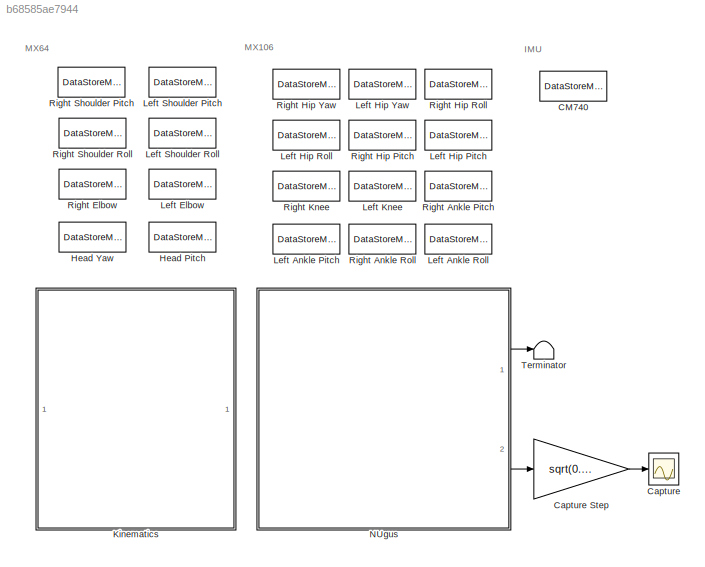
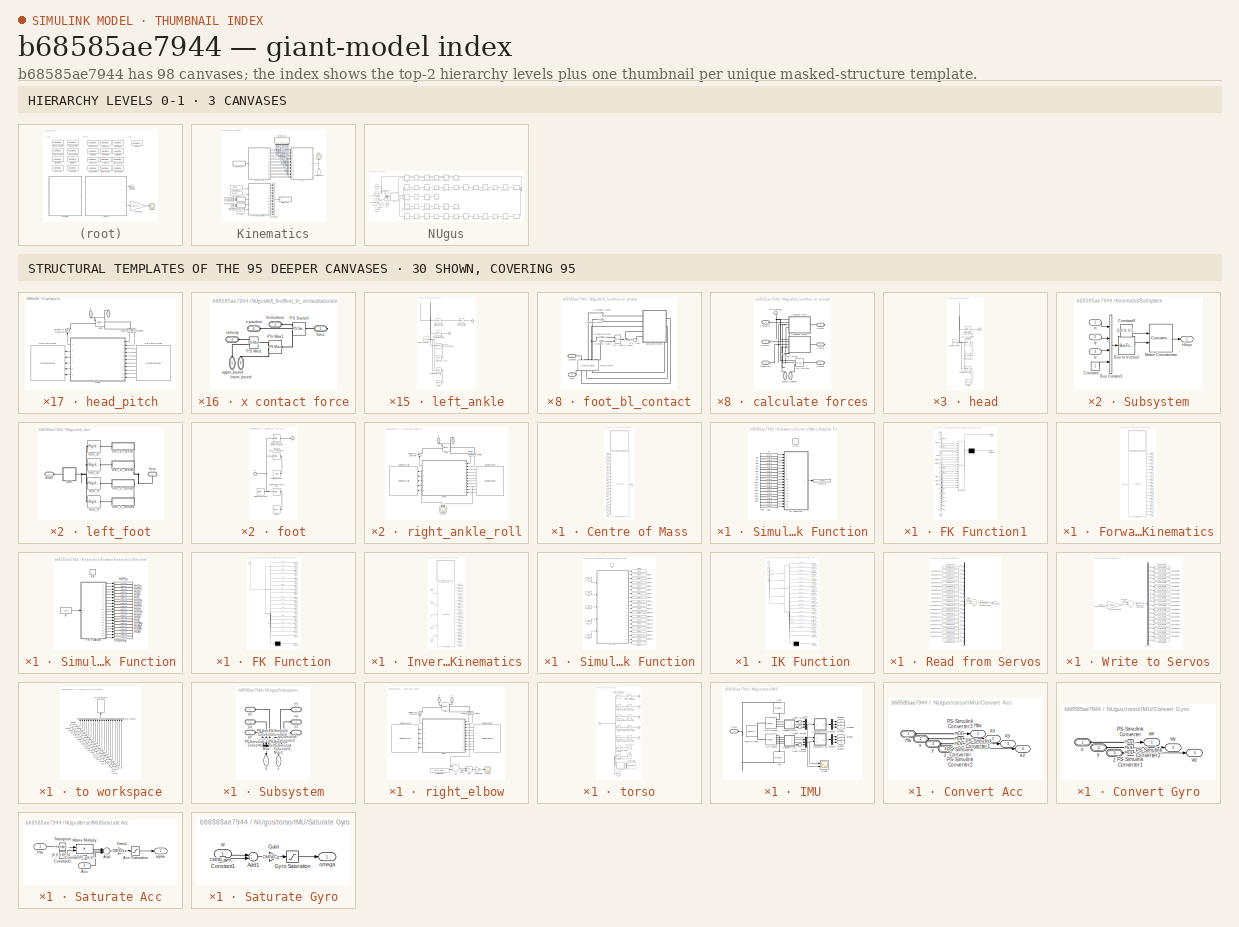
[diagram: thumbnail index - top-2 hierarchy levels (3 canvases) + 30 structural-template representatives of the remaining 95 canvases]
MODEL slx_b68585ae7944
KIND model
CONFIG AbsTol = auto
CONFIG EnableMultiTasking = off
CONFIG FixedStep = auto
CONFIG MaxStep = auto
CONFIG MinStep = auto
CONFIG RelTol = 1e-3
CONFIG SampleTimeConstraint = Unconstrained
CONFIG Solver = VariableStepAuto
CONFIG SolverName = VariableStepAuto
CONFIG StartTime = 0.0
CONFIG StopTime = inf
BLOCK [DataStoreMemory] CM740
  DataStoreName = CM740
  InitialValue = CM740_default
  OutDataTypeStr = Bus: CM740_bus
  ReadBeforeWriteMsg = warning
  ShowAdditionalParam = off
  SignalType = real
  VectorParams1D = off
  WriteAfterReadMsg = warning
  WriteAfterWriteMsg = warning
BLOCK [Scope] Capture
  Floating = off
  NumInputPorts = 1
  Ports = [1]
  ScopeSpecificationString = Simulink.scopes.TimeScopeBlockCfg('CurrentConfiguration', extmgr.ConfigurationSet(extmgr.Configuration('Core','General UI',true),extmgr.Configuration('Core','Source UI',true),extmgr.Configuration('Sources','WiredSimulink',true,'DataLoggingVariableName','ScopeData2'),extmgr.Configuration('Visuals','Time Domain',true,'SerializedDisplays',{struct('MinYLimReal','-0.18117','MaxYLimReal','0.13567','YLab...<+1778ch>
BLOCK [Gain] Capture Step
  Gain = sqrt(0.49/9.81)
  OutDataTypeStr = Inherit: Inherit via internal rule
  ParamDataTypeStr = Inherit: Inherit via internal rule
  SaturateOnIntegerOverflow = off
BLOCK [DataStoreMemory] Head Pitch
  DataStoreName = MX64_ID19
  InitialValue = MX64_default
  OutDataTypeStr = Bus: MX64_bus
  ReadBeforeWriteMsg = warning
  ShowAdditionalParam = off
  SignalType = real
  VectorParams1D = off
  WriteAfterReadMsg = warning
  WriteAfterWriteMsg = warning
BLOCK [DataStoreMemory] Head Yaw
  DataStoreName = MX64_ID18
  InitialValue = MX64_default
  OutDataTypeStr = Bus: MX64_bus
  ReadBeforeWriteMsg = warning
  ShowAdditionalParam = off
  SignalType = real
  VectorParams1D = off
  WriteAfterReadMsg = warning
  WriteAfterWriteMsg = warning
BLOCK [SubSystem] Kinematics
  Ports = []
  RequestExecContextInheritance = off
BLOCK [BusCreator] Kinematics/Bus Creator2
  DisplayOption = bar
  InheritFromInputs = on
  Inputs = 20
  Ports = [20, 1]
BLOCK [Scope] Kinematics/COM
  Floating = off
  NumInputPorts = 1
  Ports = [1]
  ScopeSpecificationString = Simulink.scopes.TimeScopeBlockCfg('CurrentConfiguration', extmgr.ConfigurationSet(extmgr.Configuration('Core','General UI',true),extmgr.Configuration('Core','Source UI',true),extmgr.Configuration('Sources','WiredSimulink',true,'DataLoggingVariableName','ScopeData1'),extmgr.Configuration('Visuals','Time Domain',true,'SerializedDisplays',{struct('MinYLimReal','-0.04097','MaxYLimReal','0.36738','YLab...<+1444ch>
BLOCK [SubSystem] Kinematics/Centre of Mass
  Ports = [20, 1]
  RequestExecContextInheritance = off
BLOCK [FunctionCaller] Kinematics/Centre of Mass/Function Caller
  FunctionPrototype = com = COM(HtRSp,HtLSp,HtRSr,HtLSr,HtRE,HtLE,HtRHy,HtLHy,HtRHr,HtLHr,HtRHp,HtLHp,HtRK,HtLK,HtRAp,HtLAp,HtRAr,HtLAr,HtHy,HtHp)
  Ports = [20, 1]
BLOCK [Inport] Kinematics/Centre of Mass/HtHp
  IconDisplay = Port number
  Port = 20
BLOCK [Inport] Kinematics/Centre of Mass/HtHy
  IconDisplay = Port number
  Port = 19
BLOCK [Inport] Kinematics/Centre of Mass/HtLAp
  IconDisplay = Port number
  Port = 16
BLOCK [Inport] Kinematics/Centre of Mass/HtLAr
  IconDisplay = Port number
  Port = 18
BLOCK [Inport] Kinematics/Centre of Mass/HtLE
  IconDisplay = Port number
  Port = 6
BLOCK [Inport] Kinematics/Centre of Mass/HtLHp
  IconDisplay = Port number
  Port = 12
BLOCK [Inport] Kinematics/Centre of Mass/HtLHr
  IconDisplay = Port number
  Port = 10
BLOCK [Inport] Kinematics/Centre of Mass/HtLHy
  IconDisplay = Port number
  Port = 8
BLOCK [Inport] Kinematics/Centre of Mass/HtLK
  IconDisplay = Port number
  Port = 14
BLOCK [Inport] Kinematics/Centre of Mass/HtLSp
  IconDisplay = Port number
  Port = 2
BLOCK [Inport] Kinematics/Centre of Mass/HtLSr
  IconDisplay = Port number
  Port = 4
BLOCK [Inport] Kinematics/Centre of Mass/HtRAp
  IconDisplay = Port number
  Port = 15
BLOCK [Inport] Kinematics/Centre of Mass/HtRAr
  IconDisplay = Port number
  Port = 17
BLOCK [Inport] Kinematics/Centre of Mass/HtRE
  IconDisplay = Port number
  Port = 5
BLOCK [Inport] Kinematics/Centre of Mass/HtRHp
  IconDisplay = Port number
  Port = 11
BLOCK [Inport] Kinematics/Centre of Mass/HtRHr
  IconDisplay = Port number
  Port = 9
BLOCK [Inport] Kinematics/Centre of Mass/HtRHy
  IconDisplay = Port number
  Port = 7
BLOCK [Inport] Kinematics/Centre of Mass/HtRK
  IconDisplay = Port number
  Port = 13
BLOCK [Inport] Kinematics/Centre of Mass/HtRSp
  IconDisplay = Port number
BLOCK [Inport] Kinematics/Centre of Mass/HtRSr
  IconDisplay = Port number
  Port = 3
BLOCK [SubSystem] Kinematics/Centre of Mass/Simulink Function
  Ports = [0, 0, 0, 1]
  RequestExecContextInheritance = off
  TreatAsAtomicUnit = on
BLOCK [TriggerPort] Kinematics/Centre of Mass/Simulink Function/COM
  FunctionName = COM
  FunctionVisibility = scoped
  IsSimulinkFunction = on
  Ports = []
  StatesWhenEnabling = held
  TriggerType = function-call
  VariantControl = (inherit)
BLOCK [SubSystem] Kinematics/Centre of Mass/Simulink Function/FK Function1
  ErrorFcn = Stateflow.Translate.translate
  PermitHierarchicalResolution = ExplicitOnly
  Ports = [20, 1]
  RequestExecContextInheritance = off
  SFBlockType = MATLAB Function
  TreatAsAtomicUnit = on
BLOCK [Demux] Kinematics/Centre of Mass/Simulink Function/FK Function1/ Demux 
  Outputs = 1
  Ports = [1, 1]
BLOCK [S-Function] Kinematics/Centre of Mass/Simulink Function/FK Function1/ SFunction 
  EnableBusSupport = on
  FunctionName = sf_sfun
  PortCounts = [20 2]
  Ports = [20, 2]
  SFcnIsStateOwnerBlock = off
  SFunctionDeploymentMode = off
  Tag = Stateflow S-Function NUgus_IK 2
BLOCK [Terminator] Kinematics/Centre of Mass/Simulink Function/FK Function1/ Terminator 
BLOCK [Inport] Kinematics/Centre of Mass/Simulink Function/FK Function1/HtHp
  IconDisplay = Port number
  Port = 20
BLOCK [Inport] Kinematics/Centre of Mass/Simulink Function/FK Function1/HtHy
  IconDisplay = Port number
  Port = 19
BLOCK [Inport] Kinematics/Centre of Mass/Simulink Function/FK Function1/HtLAp
  IconDisplay = Port number
  Port = 16
BLOCK [Inport] Kinematics/Centre of Mass/Simulink Function/FK Function1/HtLAr
  IconDisplay = Port number
  Port = 18
BLOCK [Inport] Kinematics/Centre of Mass/Simulink Function/FK Function1/HtLE
  IconDisplay = Port number
  Port = 6
BLOCK [Inport] Kinematics/Centre of Mass/Simulink Function/FK Function1/HtLHp
  IconDisplay = Port number
  Port = 12
BLOCK [Inport] Kinematics/Centre of Mass/Simulink Function/FK Function1/HtLHr
  IconDisplay = Port number
  Port = 10
BLOCK [Inport] Kinematics/Centre of Mass/Simulink Function/FK Function1/HtLHy
  IconDisplay = Port number
  Port = 8
BLOCK [Inport] Kinematics/Centre of Mass/Simulink Function/FK Function1/HtLK
  IconDisplay = Port number
  Port = 14
BLOCK [Inport] Kinematics/Centre of Mass/Simulink Function/FK Function1/HtLSp
  IconDisplay = Port number
  Port = 2
BLOCK [Inport] Kinematics/Centre of Mass/Simulink Function/FK Function1/HtLSr
  IconDisplay = Port number
  Port = 4
BLOCK [Inport] Kinematics/Centre of Mass/Simulink Function/FK Function1/HtRAp
  IconDisplay = Port number
  Port = 15
BLOCK [Inport] Kinematics/Centre of Mass/Simulink Function/FK Function1/HtRAr
  IconDisplay = Port number
  Port = 17
BLOCK [Inport] Kinematics/Centre of Mass/Simulink Function/FK Function1/HtRE
  IconDisplay = Port number
  Port = 5
BLOCK [Inport] Kinematics/Centre of Mass/Simulink Function/FK Function1/HtRHp
  IconDisplay = Port number
  Port = 11
BLOCK [Inport] Kinematics/Centre of Mass/Simulink Function/FK Function1/HtRHr
  IconDisplay = Port number
  Port = 9
BLOCK [Inport] Kinematics/Centre of Mass/Simulink Function/FK Function1/HtRHy
  IconDisplay = Port number
  Port = 7
BLOCK [Inport] Kinematics/Centre of Mass/Simulink Function/FK Function1/HtRK
  IconDisplay = Port number
  Port = 13
BLOCK [Inport] Kinematics/Centre of Mass/Simulink Function/FK Function1/HtRSp
  IconDisplay = Port number
BLOCK [Inport] Kinematics/Centre of Mass/Simulink Function/FK Function1/HtRSr
  IconDisplay = Port number
  Port = 3
BLOCK [Outport] Kinematics/Centre of Mass/Simulink Function/FK Function1/com
  IconDisplay = Port number
BLOCK [ArgOut] Kinematics/Centre of Mass/Simulink Function/HtRSp
  ArgumentName = com
  DisableCoverage = on
  PortDimensions = [1 3]
BLOCK [ArgIn] Kinematics/Centre of Mass/Simulink Function/p
  ArgumentName = HtRSp
  DisableCoverage = on
  PortDimensions = [4 4]
BLOCK [ArgIn] Kinematics/Centre of Mass/Simulink Function/p1
  ArgumentName = HtLSp
  DisableCoverage = on
  Port = 2
  PortDimensions = [4 4]
BLOCK [ArgIn] Kinematics/Centre of Mass/Simulink Function/p10
  ArgumentName = HtRHp
  DisableCoverage = on
  Port = 11
  PortDimensions = [4 4]
BLOCK [ArgIn] Kinematics/Centre of Mass/Simulink Function/p11
  ArgumentName = HtLHp
  DisableCoverage = on
  Port = 12
  PortDimensions = [4 4]
BLOCK [ArgIn] Kinematics/Centre of Mass/Simulink Function/p12
  ArgumentName = HtRK
  DisableCoverage = on
  Port = 13
  PortDimensions = [4 4]
BLOCK [ArgIn] Kinematics/Centre of Mass/Simulink Function/p13
  ArgumentName = HtLK
  DisableCoverage = on
  Port = 14
  PortDimensions = [4 4]
BLOCK [ArgIn] Kinematics/Centre of Mass/Simulink Function/p14
  ArgumentName = HtRAp
  DisableCoverage = on
  Port = 15
  PortDimensions = [4 4]
BLOCK [ArgIn] Kinematics/Centre of Mass/Simulink Function/p15
  ArgumentName = HtLAp
  DisableCoverage = on
  Port = 16
  PortDimensions = [4 4]
BLOCK [ArgIn] Kinematics/Centre of Mass/Simulink Function/p16
  ArgumentName = HtRAr
  DisableCoverage = on
  Port = 17
  PortDimensions = [4 4]
BLOCK [ArgIn] Kinematics/Centre of Mass/Simulink Function/p17
  ArgumentName = HtLAr
  DisableCoverage = on
  Port = 18
  PortDimensions = [4 4]
BLOCK [ArgIn] Kinematics/Centre of Mass/Simulink Function/p18
  ArgumentName = HtHy
  DisableCoverage = on
  Port = 19
  PortDimensions = [4 4]
BLOCK [ArgIn] Kinematics/Centre of Mass/Simulink Function/p19
  ArgumentName = HtHp
  DisableCoverage = on
  Port = 20
  PortDimensions = [4 4]
BLOCK [ArgIn] Kinematics/Centre of Mass/Simulink Function/p2
  ArgumentName = HtRSr
  DisableCoverage = on
  Port = 3
  PortDimensions = [4 4]
BLOCK [ArgIn] Kinematics/Centre of Mass/Simulink Function/p3
  ArgumentName = HtLSr
  DisableCoverage = on
  Port = 4
  PortDimensions = [4 4]
BLOCK [ArgIn] Kinematics/Centre of Mass/Simulink Function/p4
  ArgumentName = HtRE
  DisableCoverage = on
  Port = 5
  PortDimensions = [4 4]
BLOCK [ArgIn] Kinematics/Centre of Mass/Simulink Function/p5
  ArgumentName = HtLE
  DisableCoverage = on
  Port = 6
  PortDimensions = [4 4]
BLOCK [ArgIn] Kinematics/Centre of Mass/Simulink Function/p6
  ArgumentName = HtRHy
  DisableCoverage = on
  Port = 7
  PortDimensions = [4 4]
BLOCK [ArgIn] Kinematics/Centre of Mass/Simulink Function/p7
  ArgumentName = HtLHy
  DisableCoverage = on
  Port = 8
  PortDimensions = [4 4]
BLOCK [ArgIn] Kinematics/Centre of Mass/Simulink Function/p8
  ArgumentName = HtRHr
  DisableCoverage = on
  Port = 9
  PortDimensions = [4 4]
BLOCK [ArgIn] Kinematics/Centre of Mass/Simulink Function/p9
  ArgumentName = HtLHr
  DisableCoverage = on
  Port = 10
  PortDimensions = [4 4]
BLOCK [Outport] Kinematics/Centre of Mass/com
  IconDisplay = Port number
BLOCK [Constant] Kinematics/Constant1
  Value = [0.1 0.2 -0.1]
BLOCK [Constant] Kinematics/Constant10
  Value = 0.1
BLOCK [Constant] Kinematics/Constant11
  Value = -0.45
BLOCK [Constant] Kinematics/Constant12
  Value = [0.1 -0.2 -0.1]
BLOCK [Constant] Kinematics/Constant29
  Value = [1 0 0]
BLOCK [Constant] Kinematics/Constant6
  Value = 0
BLOCK [Constant] Kinematics/Constant7
  Value = -0.1
BLOCK [Constant] Kinematics/Constant8
  Value = -0.45
BLOCK [Constant] Kinematics/Constant9
  Value = 0
BLOCK [SubSystem] Kinematics/Forward Kinematics
  Ports = [1, 20]
  RequestExecContextInheritance = off
BLOCK [FunctionCaller] Kinematics/Forward Kinematics/Function Caller
  FunctionPrototype = [HtRSp,HtLSp,HtRSr,HtLSr,HtRE,HtLE,HtRHy,HtLHy,HtRHr,HtLHr,HtRHp,HtLHp,HtRK,HtLK,HtRAp,HtLAp,HtRAr,HtLAr,HtHy,HtHp] = FK(p)
  InputArgumentSpecifications = double([1 1 1 1 1 1 1 1 1 1 1 1 1 1 1 1 1 1 1 1])
  Ports = [1, 20]
BLOCK [Outport] Kinematics/Forward Kinematics/HtHp
  IconDisplay = Port number
  Port = 20
BLOCK [Outport] Kinematics/Forward Kinematics/HtHy
  IconDisplay = Port number
  Port = 19
BLOCK [Outport] Kinematics/Forward Kinematics/HtLAp
  IconDisplay = Port number
  Port = 16
BLOCK [Outport] Kinematics/Forward Kinematics/HtLAr
  IconDisplay = Port number
  Port = 18
BLOCK [Outport] Kinematics/Forward Kinematics/HtLE
  IconDisplay = Port number
  Port = 6
BLOCK [Outport] Kinematics/Forward Kinematics/HtLHp
  IconDisplay = Port number
  Port = 12
BLOCK [Outport] Kinematics/Forward Kinematics/HtLHr
  IconDisplay = Port number
  Port = 10
BLOCK [Outport] Kinematics/Forward Kinematics/HtLHy
  IconDisplay = Port number
  Port = 8
BLOCK [Outport] Kinematics/Forward Kinematics/HtLK
  IconDisplay = Port number
  Port = 14
BLOCK [Outport] Kinematics/Forward Kinematics/HtLSp
  IconDisplay = Port number
  Port = 2
BLOCK [Outport] Kinematics/Forward Kinematics/HtLSr
  IconDisplay = Port number
  Port = 4
BLOCK [Outport] Kinematics/Forward Kinematics/HtRAp
  IconDisplay = Port number
  Port = 15
BLOCK [Outport] Kinematics/Forward Kinematics/HtRAr
  IconDisplay = Port number
  Port = 17
BLOCK [Outport] Kinematics/Forward Kinematics/HtRE
  IconDisplay = Port number
  Port = 5
BLOCK [Outport] Kinematics/Forward Kinematics/HtRHp
  IconDisplay = Port number
  Port = 11
BLOCK [Outport] Kinematics/Forward Kinematics/HtRHr
  IconDisplay = Port number
  Port = 9
BLOCK [Outport] Kinematics/Forward Kinematics/HtRHy
  IconDisplay = Port number
  Port = 7
BLOCK [Outport] Kinematics/Forward Kinematics/HtRK
  IconDisplay = Port number
  Port = 13
BLOCK [Outport] Kinematics/Forward Kinematics/HtRSp
  IconDisplay = Port number
BLOCK [Outport] Kinematics/Forward Kinematics/HtRSr
  IconDisplay = Port number
  Port = 3
BLOCK [SubSystem] Kinematics/Forward Kinematics/Simulink Function
  Ports = [0, 0, 0, 1]
  RequestExecContextInheritance = off
  TreatAsAtomicUnit = on
BLOCK [TriggerPort] Kinematics/Forward Kinematics/Simulink Function/FK
  FunctionName = FK
  FunctionVisibility = scoped
  IsSimulinkFunction = on
  Ports = []
  StatesWhenEnabling = held
  TriggerType = function-call
  VariantControl = (inherit)
BLOCK [SubSystem] Kinematics/Forward Kinematics/Simulink Function/FK Function
  ErrorFcn = Stateflow.Translate.translate
  PermitHierarchicalResolution = ExplicitOnly
  Ports = [1, 20]
  RequestExecContextInheritance = off
  SFBlockType = MATLAB Function
  TreatAsAtomicUnit = on
BLOCK [Demux] Kinematics/Forward Kinematics/Simulink Function/FK Function/ Demux 
  Outputs = 1
  Ports = [1, 1]
BLOCK [S-Function] Kinematics/Forward Kinematics/Simulink Function/FK Function/ SFunction 
  EnableBusSupport = on
  FunctionName = sf_sfun
  PortCounts = [1 21]
  Ports = [1, 21]
  SFcnIsStateOwnerBlock = off
  SFunctionDeploymentMode = off
  Tag = Stateflow S-Function NUgus_IK 1
BLOCK [Terminator] Kinematics/Forward Kinematics/Simulink Function/FK Function/ Terminator 
BLOCK [Outport] Kinematics/Forward Kinematics/Simulink Function/FK Function/HtHp
  IconDisplay = Port number
  Port = 20
BLOCK [Outport] Kinematics/Forward Kinematics/Simulink Function/FK Function/HtHy
  IconDisplay = Port number
  Port = 19
BLOCK [Outport] Kinematics/Forward Kinematics/Simulink Function/FK Function/HtLAp
  IconDisplay = Port number
  Port = 16
BLOCK [Outport] Kinematics/Forward Kinematics/Simulink Function/FK Function/HtLAr
  IconDisplay = Port number
  Port = 18
BLOCK [Outport] Kinematics/Forward Kinematics/Simulink Function/FK Function/HtLE
  IconDisplay = Port number
  Port = 6
BLOCK [Outport] Kinematics/Forward Kinematics/Simulink Function/FK Function/HtLHp
  IconDisplay = Port number
  Port = 12
BLOCK [Outport] Kinematics/Forward Kinematics/Simulink Function/FK Function/HtLHr
  IconDisplay = Port number
  Port = 10
BLOCK [Outport] Kinematics/Forward Kinematics/Simulink Function/FK Function/HtLHy
  IconDisplay = Port number
  Port = 8
BLOCK [Outport] Kinematics/Forward Kinematics/Simulink Function/FK Function/HtLK
  IconDisplay = Port number
  Port = 14
BLOCK [Outport] Kinematics/Forward Kinematics/Simulink Function/FK Function/HtLSp
  IconDisplay = Port number
  Port = 2
BLOCK [Outport] Kinematics/Forward Kinematics/Simulink Function/FK Function/HtLSr
  IconDisplay = Port number
  Port = 4
BLOCK [Outport] Kinematics/Forward Kinematics/Simulink Function/FK Function/HtRAp
  IconDisplay = Port number
  Port = 15
BLOCK [Outport] Kinematics/Forward Kinematics/Simulink Function/FK Function/HtRAr
  IconDisplay = Port number
  Port = 17
BLOCK [Outport] Kinematics/Forward Kinematics/Simulink Function/FK Function/HtRE
  IconDisplay = Port number
  Port = 5
BLOCK [Outport] Kinematics/Forward Kinematics/Simulink Function/FK Function/HtRHp
  IconDisplay = Port number
  Port = 11
BLOCK [Outport] Kinematics/Forward Kinematics/Simulink Function/FK Function/HtRHr
  IconDisplay = Port number
  Port = 9
BLOCK [Outport] Kinematics/Forward Kinematics/Simulink Function/FK Function/HtRHy
  IconDisplay = Port number
  Port = 7
BLOCK [Outport] Kinematics/Forward Kinematics/Simulink Function/FK Function/HtRK
  IconDisplay = Port number
  Port = 13
BLOCK [Outport] Kinematics/Forward Kinematics/Simulink Function/FK Function/HtRSp
  IconDisplay = Port number
BLOCK [Outport] Kinematics/Forward Kinematics/Simulink Function/FK Function/HtRSr
  IconDisplay = Port number
  Port = 3
BLOCK [Inport] Kinematics/Forward Kinematics/Simulink Function/FK Function/p
  IconDisplay = Port number
BLOCK [ArgOut] Kinematics/Forward Kinematics/Simulink Function/HtHp
  ArgumentName = HtHp
  DisableCoverage = on
  Port = 20
  PortDimensions = [4 4]
BLOCK [ArgOut] Kinematics/Forward Kinematics/Simulink Function/HtHy
  ArgumentName = HtHy
  DisableCoverage = on
  Port = 19
  PortDimensions = [4 4]
BLOCK [ArgOut] Kinematics/Forward Kinematics/Simulink Function/HtLAp
  ArgumentName = HtLAp
  DisableCoverage = on
  Port = 16
  PortDimensions = [4 4]
BLOCK [ArgOut] Kinematics/Forward Kinematics/Simulink Function/HtLAr
  ArgumentName = HtLAr
  DisableCoverage = on
  Port = 18
  PortDimensions = [4 4]
BLOCK [ArgOut] Kinematics/Forward Kinematics/Simulink Function/HtLE
  ArgumentName = HtLE
  DisableCoverage = on
  Port = 6
  PortDimensions = [4 4]
BLOCK [ArgOut] Kinematics/Forward Kinematics/Simulink Function/HtLHp
  ArgumentName = HtLHp
  DisableCoverage = on
  Port = 12
  PortDimensions = [4 4]
BLOCK [ArgOut] Kinematics/Forward Kinematics/Simulink Function/HtLHr
  ArgumentName = HtLHr
  DisableCoverage = on
  Port = 10
  PortDimensions = [4 4]
BLOCK [ArgOut] Kinematics/Forward Kinematics/Simulink Function/HtLHy
  ArgumentName = HtLHy
  DisableCoverage = on
  Port = 8
  PortDimensions = [4 4]
BLOCK [ArgOut] Kinematics/Forward Kinematics/Simulink Function/HtLK
  ArgumentName = HtLK
  DisableCoverage = on
  Port = 14
  PortDimensions = [4 4]
BLOCK [ArgOut] Kinematics/Forward Kinematics/Simulink Function/HtLSp
  ArgumentName = HtLSp
  DisableCoverage = on
  Port = 2
  PortDimensions = [4 4]
BLOCK [ArgOut] Kinematics/Forward Kinematics/Simulink Function/HtLSr
  ArgumentName = HtLSr
  DisableCoverage = on
  Port = 4
  PortDimensions = [4 4]
BLOCK [ArgOut] Kinematics/Forward Kinematics/Simulink Function/HtRAp
  ArgumentName = HtRAp
  DisableCoverage = on
  Port = 15
  PortDimensions = [4 4]
BLOCK [ArgOut] Kinematics/Forward Kinematics/Simulink Function/HtRAr
  ArgumentName = HtRAr
  DisableCoverage = on
  Port = 17
  PortDimensions = [4 4]
BLOCK [ArgOut] Kinematics/Forward Kinematics/Simulink Function/HtRE
  ArgumentName = HtRE
  DisableCoverage = on
  Port = 5
  PortDimensions = [4 4]
BLOCK [ArgOut] Kinematics/Forward Kinematics/Simulink Function/HtRHp
  ArgumentName = HtRHp
  DisableCoverage = on
  Port = 11
  PortDimensions = [4 4]
BLOCK [ArgOut] Kinematics/Forward Kinematics/Simulink Function/HtRHr
  ArgumentName = HtRHr
  DisableCoverage = on
  Port = 9
  PortDimensions = [4 4]
BLOCK [ArgOut] Kinematics/Forward Kinematics/Simulink Function/HtRHy
  ArgumentName = HtRHy
  DisableCoverage = on
  Port = 7
  PortDimensions = [4 4]
BLOCK [ArgOut] Kinematics/Forward Kinematics/Simulink Function/HtRK
  ArgumentName = HtRK
  DisableCoverage = on
  Port = 13
  PortDimensions = [4 4]
BLOCK [ArgOut] Kinematics/Forward Kinematics/Simulink Function/HtRSp
  ArgumentName = HtRSp
  DisableCoverage = on
  PortDimensions = [4 4]
BLOCK [ArgOut] Kinematics/Forward Kinematics/Simulink Function/HtRSr
  ArgumentName = HtRSr
  DisableCoverage = on
  Port = 3
  PortDimensions = [4 4]
BLOCK [ArgIn] Kinematics/Forward Kinematics/Simulink Function/p
  ArgumentName = p
  DisableCoverage = on
  PortDimensions = [1 20]
BLOCK [Inport] Kinematics/Forward Kinematics/p
  IconDisplay = Port number
BLOCK [SubSystem] Kinematics/Inverse Kinematics
  Ports = [5, 20]
  RequestExecContextInheritance = off
BLOCK [FunctionCaller] Kinematics/Inverse Kinematics/Function Caller
  FunctionPrototype = [thetaTRSp,thetaTLSp,thetaTRSr,thetaTLSr,thetaTRE,thetaTLE,thetaTRHy,thetaTLHy,thetaTRHr,thetaTLHr,thetaTRHp,thetaTLHp,thetaTRK,thetaTLK,thetaTRAp,thetaTLAp,thetaTRAr,thetaTLAr,thetaTNy,thetaTNp] = IK(rTRh,rTLh,HTRl,HTLl,rCP)
  Ports = [5, 20]
BLOCK [Inport] Kinematics/Inverse Kinematics/HTLl
  IconDisplay = Port number
  Port = 4
BLOCK [Inport] Kinematics/Inverse Kinematics/HTRl
  IconDisplay = Port number
  Port = 3
BLOCK [SubSystem] Kinematics/Inverse Kinematics/Simulink Function
  Ports = [0, 0, 0, 1]
  RequestExecContextInheritance = off
  TreatAsAtomicUnit = on
BLOCK [ArgOut] Kinematics/Inverse Kinematics/Simulink Function/HtRSp
  ArgumentName = thetaTRSp
  DisableCoverage = on
BLOCK [ArgOut] Kinematics/Inverse Kinematics/Simulink Function/HtRSp1
  ArgumentName = thetaTLSp
  DisableCoverage = on
  Port = 2
BLOCK [ArgOut] Kinematics/Inverse Kinematics/Simulink Function/HtRSp10
  ArgumentName = thetaTRHp
  DisableCoverage = on
  Port = 11
BLOCK [ArgOut] Kinematics/Inverse Kinematics/Simulink Function/HtRSp11
  ArgumentName = thetaTLHp
  DisableCoverage = on
  Port = 12
BLOCK [ArgOut] Kinematics/Inverse Kinematics/Simulink Function/HtRSp12
  ArgumentName = thetaTRK
  DisableCoverage = on
  Port = 13
BLOCK [ArgOut] Kinematics/Inverse Kinematics/Simulink Function/HtRSp13
  ArgumentName = thetaTLK
  DisableCoverage = on
  Port = 14
BLOCK [ArgOut] Kinematics/Inverse Kinematics/Simulink Function/HtRSp14
  ArgumentName = thetaTRAp
  DisableCoverage = on
  Port = 15
BLOCK [ArgOut] Kinematics/Inverse Kinematics/Simulink Function/HtRSp15
  ArgumentName = thetaTLAp
  DisableCoverage = on
  Port = 16
BLOCK [ArgOut] Kinematics/Inverse Kinematics/Simulink Function/HtRSp16
  ArgumentName = thetaTRAr
  DisableCoverage = on
  Port = 17
BLOCK [ArgOut] Kinematics/Inverse Kinematics/Simulink Function/HtRSp17
  ArgumentName = thetaTLAr
  DisableCoverage = on
  Port = 18
BLOCK [ArgOut] Kinematics/Inverse Kinematics/Simulink Function/HtRSp18
  ArgumentName = thetaTNy
  DisableCoverage = on
  Port = 19
BLOCK [ArgOut] Kinematics/Inverse Kinematics/Simulink Function/HtRSp19
  ArgumentName = thetaTNp
  DisableCoverage = on
  Port = 20
BLOCK [ArgOut] Kinematics/Inverse Kinematics/Simulink Function/HtRSp2
  ArgumentName = thetaTRSr
  DisableCoverage = on
  Port = 3
BLOCK [ArgOut] Kinematics/Inverse Kinematics/Simulink Function/HtRSp3
  ArgumentName = thetaTLSr
  DisableCoverage = on
  Port = 4
BLOCK [ArgOut] Kinematics/Inverse Kinematics/Simulink Function/HtRSp4
  ArgumentName = thetaTRE
  DisableCoverage = on
  Port = 5
BLOCK [ArgOut] Kinematics/Inverse Kinematics/Simulink Function/HtRSp5
  ArgumentName = thetaTLE
  DisableCoverage = on
  Port = 6
BLOCK [ArgOut] Kinematics/Inverse Kinematics/Simulink Function/HtRSp6
  ArgumentName = thetaTRHy
  DisableCoverage = on
  Port = 7
BLOCK [ArgOut] Kinematics/Inverse Kinematics/Simulink Function/HtRSp7
  ArgumentName = thetaTLHy
  DisableCoverage = on
  Port = 8
BLOCK [ArgOut] Kinematics/Inverse Kinematics/Simulink Function/HtRSp8
  ArgumentName = thetaTRHr
  DisableCoverage = on
  Port = 9
BLOCK [ArgOut] Kinematics/Inverse Kinematics/Simulink Function/HtRSp9
  ArgumentName = thetaTLHr
  DisableCoverage = on
  Port = 10
BLOCK [TriggerPort] Kinematics/Inverse Kinematics/Simulink Function/IK
  FunctionName = IK
  FunctionVisibility = scoped
  IsSimulinkFunction = on
  Ports = []
  StatesWhenEnabling = held
  TriggerType = function-call
  VariantControl = (inherit)
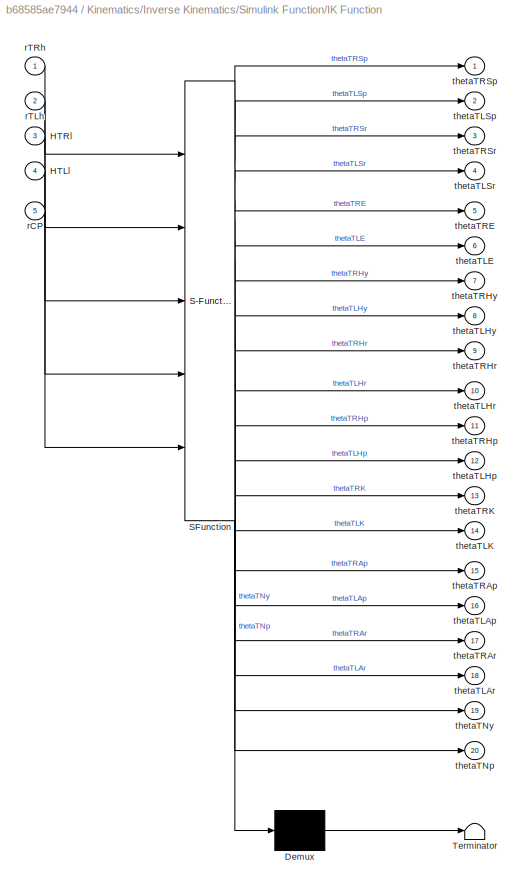
BLOCK [SubSystem] Kinematics/Inverse Kinematics/Simulink Function/IK Function
  ErrorFcn = Stateflow.Translate.translate
  PermitHierarchicalResolution = ExplicitOnly
  Ports = [5, 20]
  RequestExecContextInheritance = off
  SFBlockType = MATLAB Function
  TreatAsAtomicUnit = on
BLOCK [Demux] Kinematics/Inverse Kinematics/Simulink Function/IK Function/ Demux 
  Outputs = 1
  Ports = [1, 1]
BLOCK [S-Function] Kinematics/Inverse Kinematics/Simulink Function/IK Function/ SFunction 
  EnableBusSupport = on
  FunctionName = sf_sfun
  PortCounts = [5 21]
  Ports = [5, 21]
  SFcnIsStateOwnerBlock = off
  SFunctionDeploymentMode = off
  Tag = Stateflow S-Function NUgus_IK 4
BLOCK [Terminator] Kinematics/Inverse Kinematics/Simulink Function/IK Function/ Terminator 
BLOCK [Inport] Kinematics/Inverse Kinematics/Simulink Function/IK Function/HTLl
  IconDisplay = Port number
  Port = 4
BLOCK [Inport] Kinematics/Inverse Kinematics/Simulink Function/IK Function/HTRl
  IconDisplay = Port number
  Port = 3
BLOCK [Inport] Kinematics/Inverse Kinematics/Simulink Function/IK Function/rCP
  IconDisplay = Port number
  Port = 5
BLOCK [Inport] Kinematics/Inverse Kinematics/Simulink Function/IK Function/rTLh
  IconDisplay = Port number
  Port = 2
BLOCK [Inport] Kinematics/Inverse Kinematics/Simulink Function/IK Function/rTRh
  IconDisplay = Port number
BLOCK [Outport] Kinematics/Inverse Kinematics/Simulink Function/IK Function/thetaTLAp
  IconDisplay = Port number
  Port = 16
BLOCK [Outport] Kinematics/Inverse Kinematics/Simulink Function/IK Function/thetaTLAr
  IconDisplay = Port number
  Port = 18
BLOCK [Outport] Kinematics/Inverse Kinematics/Simulink Function/IK Function/thetaTLE
  IconDisplay = Port number
  Port = 6
BLOCK [Outport] Kinematics/Inverse Kinematics/Simulink Function/IK Function/thetaTLHp
  IconDisplay = Port number
  Port = 12
BLOCK [Outport] Kinematics/Inverse Kinematics/Simulink Function/IK Function/thetaTLHr
  IconDisplay = Port number
  Port = 10
BLOCK [Outport] Kinematics/Inverse Kinematics/Simulink Function/IK Function/thetaTLHy
  IconDisplay = Port number
  Port = 8
BLOCK [Outport] Kinematics/Inverse Kinematics/Simulink Function/IK Function/thetaTLK
  IconDisplay = Port number
  Port = 14
BLOCK [Outport] Kinematics/Inverse Kinematics/Simulink Function/IK Function/thetaTLSp
  IconDisplay = Port number
  Port = 2
BLOCK [Outport] Kinematics/Inverse Kinematics/Simulink Function/IK Function/thetaTLSr
  IconDisplay = Port number
  Port = 4
BLOCK [Outport] Kinematics/Inverse Kinematics/Simulink Function/IK Function/thetaTNp
  IconDisplay = Port number
  Port = 20
BLOCK [Outport] Kinematics/Inverse Kinematics/Simulink Function/IK Function/thetaTNy
  IconDisplay = Port number
  Port = 19
BLOCK [Outport] Kinematics/Inverse Kinematics/Simulink Function/IK Function/thetaTRAp
  IconDisplay = Port number
  Port = 15
BLOCK [Outport] Kinematics/Inverse Kinematics/Simulink Function/IK Function/thetaTRAr
  IconDisplay = Port number
  Port = 17
BLOCK [Outport] Kinematics/Inverse Kinematics/Simulink Function/IK Function/thetaTRE
  IconDisplay = Port number
  Port = 5
BLOCK [Outport] Kinematics/Inverse Kinematics/Simulink Function/IK Function/thetaTRHp
  IconDisplay = Port number
  Port = 11
BLOCK [Outport] Kinematics/Inverse Kinematics/Simulink Function/IK Function/thetaTRHr
  IconDisplay = Port number
  Port = 9
BLOCK [Outport] Kinematics/Inverse Kinematics/Simulink Function/IK Function/thetaTRHy
  IconDisplay = Port number
  Port = 7
BLOCK [Outport] Kinematics/Inverse Kinematics/Simulink Function/IK Function/thetaTRK
  IconDisplay = Port number
  Port = 13
BLOCK [Outport] Kinematics/Inverse Kinematics/Simulink Function/IK Function/thetaTRSp
  IconDisplay = Port number
BLOCK [Outport] Kinematics/Inverse Kinematics/Simulink Function/IK Function/thetaTRSr
  IconDisplay = Port number
  Port = 3
BLOCK [ArgIn] Kinematics/Inverse Kinematics/Simulink Function/p
  ArgumentName = HTRl
  DisableCoverage = on
  Port = 3
  PortDimensions = [4 4]
BLOCK [ArgIn] Kinematics/Inverse Kinematics/Simulink Function/p1
  ArgumentName = rTLh
  DisableCoverage = on
  Port = 2
  PortDimensions = [1 3]
BLOCK [ArgIn] Kinematics/Inverse Kinematics/Simulink Function/p2
  ArgumentName = rTRh
  DisableCoverage = on
  PortDimensions = [1 3]
BLOCK [ArgIn] Kinematics/Inverse Kinematics/Simulink Function/p3
  ArgumentName = HTLl
  DisableCoverage = on
  Port = 4
  PortDimensions = [4 4]
BLOCK [ArgIn] Kinematics/Inverse Kinematics/Simulink Function/p4
  ArgumentName = rCP
  DisableCoverage = on
  Port = 5
  PortDimensions = [1 3]
BLOCK [Inport] Kinematics/Inverse Kinematics/rCP
  IconDisplay = Port number
  Port = 5
BLOCK [Inport] Kinematics/Inverse Kinematics/rTLh
  IconDisplay = Port number
  Port = 2
BLOCK [Inport] Kinematics/Inverse Kinematics/rTRh
  IconDisplay = Port number
BLOCK [Outport] Kinematics/Inverse Kinematics/thetaTLAp
  IconDisplay = Port number
  Port = 16
BLOCK [Outport] Kinematics/Inverse Kinematics/thetaTLAr
  IconDisplay = Port number
  Port = 18
BLOCK [Outport] Kinematics/Inverse Kinematics/thetaTLE
  IconDisplay = Port number
  Port = 6
BLOCK [Outport] Kinematics/Inverse Kinematics/thetaTLHp
  IconDisplay = Port number
  Port = 12
BLOCK [Outport] Kinematics/Inverse Kinematics/thetaTLHr
  IconDisplay = Port number
  Port = 10
BLOCK [Outport] Kinematics/Inverse Kinematics/thetaTLHy
  IconDisplay = Port number
  Port = 8
BLOCK [Outport] Kinematics/Inverse Kinematics/thetaTLK
  IconDisplay = Port number
  Port = 14
BLOCK [Outport] Kinematics/Inverse Kinematics/thetaTLSp
  IconDisplay = Port number
  Port = 2
BLOCK [Outport] Kinematics/Inverse Kinematics/thetaTLSr
  IconDisplay = Port number
  Port = 4
BLOCK [Outport] Kinematics/Inverse Kinematics/thetaTNp
  IconDisplay = Port number
  Port = 20
BLOCK [Outport] Kinematics/Inverse Kinematics/thetaTNy
  IconDisplay = Port number
  Port = 19
BLOCK [Outport] Kinematics/Inverse Kinematics/thetaTRAp
  IconDisplay = Port number
  Port = 15
BLOCK [Outport] Kinematics/Inverse Kinematics/thetaTRAr
  IconDisplay = Port number
  Port = 17
BLOCK [Outport] Kinematics/Inverse Kinematics/thetaTRE
  IconDisplay = Port number
  Port = 5
BLOCK [Outport] Kinematics/Inverse Kinematics/thetaTRHp
  IconDisplay = Port number
  Port = 11
BLOCK [Outport] Kinematics/Inverse Kinematics/thetaTRHr
  IconDisplay = Port number
  Port = 9
BLOCK [Outport] Kinematics/Inverse Kinematics/thetaTRHy
  IconDisplay = Port number
  Port = 7
BLOCK [Outport] Kinematics/Inverse Kinematics/thetaTRK
  IconDisplay = Port number
  Port = 13
BLOCK [Outport] Kinematics/Inverse Kinematics/thetaTRSp
  IconDisplay = Port number
BLOCK [Outport] Kinematics/Inverse Kinematics/thetaTRSr
  IconDisplay = Port number
  Port = 3
BLOCK [SubSystem] Kinematics/Read from Servos
  Ports = [0, 1]
  RequestExecContextInheritance = off
BLOCK [Sum] Kinematics/Read from Servos/Add1
  InputSameDT = off
  Inputs = -+
  OutDataTypeStr = double
  Ports = [2, 1]
  SaturateOnIntegerOverflow = off
BLOCK [Constant] Kinematics/Read from Servos/Constant1
  Value = 2048
BLOCK [DataStoreRead] Kinematics/Read from Servos/Data Store Read
  DataStoreElements = MX64_ID0.present_position
  DataStoreName = MX64_ID0
  Ports = [0, 1]
BLOCK [DataStoreRead] Kinematics/Read from Servos/Data Store Read1
  DataStoreElements = MX64_ID1.present_position
  DataStoreName = MX64_ID1
  Ports = [0, 1]
BLOCK [DataStoreRead] Kinematics/Read from Servos/Data Store Read10
  DataStoreElements = MX106_ID10.present_position
  DataStoreName = MX106_ID10
  Ports = [0, 1]
BLOCK [DataStoreRead] Kinematics/Read from Servos/Data Store Read11
  DataStoreElements = MX106_ID11.present_position
  DataStoreName = MX106_ID11
  Ports = [0, 1]
BLOCK [DataStoreRead] Kinematics/Read from Servos/Data Store Read12
  DataStoreElements = MX106_ID12.present_position
  DataStoreName = MX106_ID12
  Ports = [0, 1]
BLOCK [DataStoreRead] Kinematics/Read from Servos/Data Store Read13
  DataStoreElements = MX106_ID13.present_position
  DataStoreName = MX106_ID13
  Ports = [0, 1]
BLOCK [DataStoreRead] Kinematics/Read from Servos/Data Store Read14
  DataStoreElements = MX106_ID14.present_position
  DataStoreName = MX106_ID14
  Ports = [0, 1]
BLOCK [DataStoreRead] Kinematics/Read from Servos/Data Store Read15
  DataStoreElements = MX106_ID15.present_position
  DataStoreName = MX106_ID15
  Ports = [0, 1]
BLOCK [DataStoreRead] Kinematics/Read from Servos/Data Store Read16
  DataStoreElements = MX106_ID16.present_position
  DataStoreName = MX106_ID16
  Ports = [0, 1]
BLOCK [DataStoreRead] Kinematics/Read from Servos/Data Store Read17
  DataStoreElements = MX106_ID17.present_position
  DataStoreName = MX106_ID17
  Ports = [0, 1]
BLOCK [DataStoreRead] Kinematics/Read from Servos/Data Store Read18
  DataStoreElements = MX64_ID18.present_position
  DataStoreName = MX64_ID18
  Ports = [0, 1]
BLOCK [DataStoreRead] Kinematics/Read from Servos/Data Store Read19
  DataStoreElements = MX64_ID19.present_position
  DataStoreName = MX64_ID19
  Ports = [0, 1]
BLOCK [DataStoreRead] Kinematics/Read from Servos/Data Store Read2
  DataStoreElements = MX64_ID2.present_position
  DataStoreName = MX64_ID2
  Ports = [0, 1]
BLOCK [DataStoreRead] Kinematics/Read from Servos/Data Store Read3
  DataStoreElements = MX64_ID3.present_position
  DataStoreName = MX64_ID3
  Ports = [0, 1]
BLOCK [DataStoreRead] Kinematics/Read from Servos/Data Store Read4
  DataStoreElements = MX64_ID4.present_position
  DataStoreName = MX64_ID4
  Ports = [0, 1]
BLOCK [DataStoreRead] Kinematics/Read from Servos/Data Store Read5
  DataStoreElements = MX64_ID5.present_position
  DataStoreName = MX64_ID5
  Ports = [0, 1]
BLOCK [DataStoreRead] Kinematics/Read from Servos/Data Store Read6
  DataStoreElements = MX106_ID6.present_position
  DataStoreName = MX106_ID6
  Ports = [0, 1]
BLOCK [DataStoreRead] Kinematics/Read from Servos/Data Store Read7
  DataStoreElements = MX106_ID7.present_position
  DataStoreName = MX106_ID7
  Ports = [0, 1]
BLOCK [DataStoreRead] Kinematics/Read from Servos/Data Store Read8
  DataStoreElements = MX106_ID8.present_position
  DataStoreName = MX106_ID8
  Ports = [0, 1]
BLOCK [DataStoreRead] Kinematics/Read from Servos/Data Store Read9
  DataStoreElements = MX106_ID9.present_position
  DataStoreName = MX106_ID9
  Ports = [0, 1]
BLOCK [Gain] Kinematics/Read from Servos/Discrete to Radians
  Gain = pi/2048
  ParamDataTypeStr = Inherit: Inherit via internal rule
BLOCK [Mux] Kinematics/Read from Servos/Mux
  DisplayOption = bar
  Inputs = 20
  Ports = [20, 1]
BLOCK [Outport] Kinematics/Read from Servos/servo positions
  IconDisplay = Port number
  PortDimensions = 20
BLOCK [SubSystem] Kinematics/Subsystem
  Ports = [3, 1]
  RequestExecContextInheritance = off
BLOCK [BusCreator] Kinematics/Subsystem/Bus Creator3
  DisplayOption = bar
  InheritFromInputs = on
  Inputs = 4
  Ports = [4, 1]
BLOCK [BusToVector] Kinematics/Subsystem/Bus to Vector2
BLOCK [Constant] Kinematics/Subsystem/Constant
BLOCK [Constant] Kinematics/Subsystem/Constant9
  Value = [1 0 0; 0 1 0; 0 0 1; 0 0 0]
BLOCK [Outport] Kinematics/Subsystem/Htxyz
  IconDisplay = Port number
BLOCK [Concatenate] Kinematics/Subsystem/Matrix Concatenate
  ConcatenateDimension = 2
  Mode = Multidimensional array
  Ports = [2, 1]
BLOCK [Inport] Kinematics/Subsystem/rx
  IconDisplay = Port number
BLOCK [Inport] Kinematics/Subsystem/ry
  IconDisplay = Port number
  Port = 2
BLOCK [Inport] Kinematics/Subsystem/rz
  IconDisplay = Port number
  Port = 3
BLOCK [SubSystem] Kinematics/Subsystem1
  Ports = [3, 1]
  RequestExecContextInheritance = off
BLOCK [BusCreator] Kinematics/Subsystem1/Bus Creator3
  DisplayOption = bar
  InheritFromInputs = on
  Inputs = 4
  Ports = [4, 1]
BLOCK [BusToVector] Kinematics/Subsystem1/Bus to Vector2
BLOCK [Constant] Kinematics/Subsystem1/Constant
BLOCK [Constant] Kinematics/Subsystem1/Constant9
  Value = [1 0 0; 0 1 0; 0 0 1; 0 0 0]
BLOCK [Outport] Kinematics/Subsystem1/Htxyz
  IconDisplay = Port number
BLOCK [Concatenate] Kinematics/Subsystem1/Matrix Concatenate
  ConcatenateDimension = 2
  Mode = Multidimensional array
  Ports = [2, 1]
BLOCK [Inport] Kinematics/Subsystem1/rx
  IconDisplay = Port number
BLOCK [Inport] Kinematics/Subsystem1/ry
  IconDisplay = Port number
  Port = 2
BLOCK [Inport] Kinematics/Subsystem1/rz
  IconDisplay = Port number
  Port = 3
BLOCK [ToWorkspace] Kinematics/To Workspace
  FixptAsFi = on
  MaxDataPoints = inf
  Ports = [1]
  SampleTime = -1
  Save2DSignal = 3-D array (concatenate along third dimension)
  SaveFormat = Timeseries
  VariableName = com
BLOCK [SubSystem] Kinematics/Write to Servos
  Ports = [1]
  RequestExecContextInheritance = off
BLOCK [Sum] Kinematics/Write to Servos/Add
  InputSameDT = off
  OutDataTypeStr = Inherit: Inherit via internal rule
  Ports = [2, 1]
  SaturateOnIntegerOverflow = off
BLOCK [Constant] Kinematics/Write to Servos/Constant
  Value = 2048
BLOCK [DataStoreWrite] Kinematics/Write to Servos/Data Store Write
  DataStoreElements = MX64_ID18.goal_position
  DataStoreName = MX64_ID18
  Ports = [1]
BLOCK [DataStoreWrite] Kinematics/Write to Servos/Data Store Write1
  DataStoreElements = MX64_ID19.goal_position
  DataStoreName = MX64_ID19
  Ports = [1]
BLOCK [DataStoreWrite] Kinematics/Write to Servos/Data Store Write10
  DataStoreElements = MX106_ID10.goal_position
  DataStoreName = MX106_ID10
  Ports = [1]
BLOCK [DataStoreWrite] Kinematics/Write to Servos/Data Store Write11
  DataStoreElements = MX106_ID12.goal_position
  DataStoreName = MX106_ID12
  Ports = [1]
BLOCK [DataStoreWrite] Kinematics/Write to Servos/Data Store Write12
  DataStoreElements = MX106_ID14.goal_position
  DataStoreName = MX106_ID14
  Ports = [1]
BLOCK [DataStoreWrite] Kinematics/Write to Servos/Data Store Write13
  DataStoreElements = MX106_ID16.goal_position
  DataStoreName = MX106_ID16
  Ports = [1]
BLOCK [DataStoreWrite] Kinematics/Write to Servos/Data Store Write14
  DataStoreElements = MX106_ID7.goal_position
  DataStoreName = MX106_ID7
  Ports = [1]
BLOCK [DataStoreWrite] Kinematics/Write to Servos/Data Store Write15
  DataStoreElements = MX106_ID9.goal_position
  DataStoreName = MX106_ID9
  Ports = [1]
BLOCK [DataStoreWrite] Kinematics/Write to Servos/Data Store Write16
  DataStoreElements = MX106_ID11.goal_position
  DataStoreName = MX106_ID11
  Ports = [1]
BLOCK [DataStoreWrite] Kinematics/Write to Servos/Data Store Write17
  DataStoreElements = MX106_ID13.goal_position
  DataStoreName = MX106_ID13
  Ports = [1]
BLOCK [DataStoreWrite] Kinematics/Write to Servos/Data Store Write18
  DataStoreElements = MX106_ID15.goal_position
  DataStoreName = MX106_ID15
  Ports = [1]
BLOCK [DataStoreWrite] Kinematics/Write to Servos/Data Store Write19
  DataStoreElements = MX106_ID17.goal_position
  DataStoreName = MX106_ID17
  Ports = [1]
BLOCK [DataStoreWrite] Kinematics/Write to Servos/Data Store Write2
  DataStoreElements = MX64_ID0.goal_position
  DataStoreName = MX64_ID0
  Ports = [1]
BLOCK [DataStoreWrite] Kinematics/Write to Servos/Data Store Write3
  DataStoreElements = MX64_ID2.goal_position
  DataStoreName = MX64_ID2
  Ports = [1]
BLOCK [DataStoreWrite] Kinematics/Write to Servos/Data Store Write4
  DataStoreElements = MX64_ID4.goal_position
  DataStoreName = MX64_ID4
  Ports = [1]
BLOCK [DataStoreWrite] Kinematics/Write to Servos/Data Store Write5
  DataStoreElements = MX64_ID1.goal_position
  DataStoreName = MX64_ID1
  Ports = [1]
BLOCK [DataStoreWrite] Kinematics/Write to Servos/Data Store Write6
  DataStoreElements = MX64_ID3.goal_position
  DataStoreName = MX64_ID3
  Ports = [1]
BLOCK [DataStoreWrite] Kinematics/Write to Servos/Data Store Write7
  DataStoreElements = MX64_ID5.goal_position
  DataStoreName = MX64_ID5
  Ports = [1]
BLOCK [DataStoreWrite] Kinematics/Write to Servos/Data Store Write8
  DataStoreElements = MX106_ID6.goal_position
  DataStoreName = MX106_ID6
  Ports = [1]
BLOCK [DataStoreWrite] Kinematics/Write to Servos/Data Store Write9
  DataStoreElements = MX106_ID8.goal_position
  DataStoreName = MX106_ID8
  Ports = [1]
BLOCK [DataTypeConversion] Kinematics/Write to Servos/Data Type Conversion
  OutDataTypeStr = int16
  RndMeth = Floor
  SaturateOnIntegerOverflow = off
BLOCK [Demux] Kinematics/Write to Servos/Demux
  DisplayOption = bar
  Outputs = 20
  Ports = [1, 20]
BLOCK [Gain] Kinematics/Write to Servos/Radians to Discrete
  Gain = (4096*180)/(360*pi)
  ParamDataTypeStr = Inherit: Inherit via internal rule
BLOCK [Inport] Kinematics/Write to Servos/servo commands
  IconDisplay = Port number
  PortDimensions = 20
BLOCK [SubSystem] Kinematics/to workspace
  Ports = [20]
  RequestExecContextInheritance = off
BLOCK [BusCreator] Kinematics/to workspace/Bus Creator
  DisplayOption = bar
  InheritFromInputs = on
  Inputs = 20
  Ports = [20, 1]
BLOCK [Inport] Kinematics/to workspace/HtHp
  IconDisplay = Port number
  Port = 20
BLOCK [Inport] Kinematics/to workspace/HtHy
  IconDisplay = Port number
  Port = 19
BLOCK [Inport] Kinematics/to workspace/HtLAp
  IconDisplay = Port number
  Port = 16
BLOCK [Inport] Kinematics/to workspace/HtLAr
  IconDisplay = Port number
  Port = 18
BLOCK [Inport] Kinematics/to workspace/HtLE
  IconDisplay = Port number
  Port = 6
BLOCK [Inport] Kinematics/to workspace/HtLHp
  IconDisplay = Port number
  Port = 12
BLOCK [Inport] Kinematics/to workspace/HtLHr
  IconDisplay = Port number
  Port = 10
BLOCK [Inport] Kinematics/to workspace/HtLHy
  IconDisplay = Port number
  Port = 8
BLOCK [Inport] Kinematics/to workspace/HtLK
  IconDisplay = Port number
  Port = 14
BLOCK [Inport] Kinematics/to workspace/HtLSp
  IconDisplay = Port number
  Port = 2
BLOCK [Inport] Kinematics/to workspace/HtLSr
  IconDisplay = Port number
  Port = 4
BLOCK [Inport] Kinematics/to workspace/HtRAp
  IconDisplay = Port number
  Port = 15
BLOCK [Inport] Kinematics/to workspace/HtRAr
  IconDisplay = Port number
  Port = 17
BLOCK [Inport] Kinematics/to workspace/HtRE
  IconDisplay = Port number
  Port = 5
BLOCK [Inport] Kinematics/to workspace/HtRHp
  IconDisplay = Port number
  Port = 11
BLOCK [Inport] Kinematics/to workspace/HtRHr
  IconDisplay = Port number
  Port = 9
BLOCK [Inport] Kinematics/to workspace/HtRHy
  IconDisplay = Port number
  Port = 7
BLOCK [Inport] Kinematics/to workspace/HtRK
  IconDisplay = Port number
  Port = 13
BLOCK [Inport] Kinematics/to workspace/HtRSp
  IconDisplay = Port number
BLOCK [Inport] Kinematics/to workspace/HtRSr
  IconDisplay = Port number
  Port = 3
BLOCK [ToWorkspace] Kinematics/to workspace/To Workspace
  FixptAsFi = on
  MaxDataPoints = inf
  Ports = [1]
  SampleTime = -1
  Save2DSignal = 3-D array (concatenate along third dimension)
  SaveFormat = Timeseries
  VariableName = simout
BLOCK [DataStoreMemory] Left Ankle Pitch
  DataStoreName = MX106_ID15
  InitialValue = MX106_default
  OutDataTypeStr = Bus: MX106_bus
  ReadBeforeWriteMsg = warning
  ShowAdditionalParam = off
  SignalType = real
  VectorParams1D = off
  WriteAfterReadMsg = warning
  WriteAfterWriteMsg = warning
BLOCK [DataStoreMemory] Left Ankle Roll
  DataStoreName = MX106_ID17
  InitialValue = MX106_default
  OutDataTypeStr = Bus: MX106_bus
  ReadBeforeWriteMsg = warning
  ShowAdditionalParam = off
  SignalType = real
  VectorParams1D = off
  WriteAfterReadMsg = warning
  WriteAfterWriteMsg = warning
BLOCK [DataStoreMemory] Left Elbow
  DataStoreName = MX64_ID5
  InitialValue = MX64_default
  OutDataTypeStr = Bus: MX64_bus
  ReadBeforeWriteMsg = warning
  ShowAdditionalParam = off
  SignalType = real
  VectorParams1D = off
  WriteAfterReadMsg = warning
  WriteAfterWriteMsg = warning
BLOCK [DataStoreMemory] Left Hip Pitch
  DataStoreName = MX106_ID11
  InitialValue = MX106_default
  OutDataTypeStr = Bus: MX106_bus
  ReadBeforeWriteMsg = warning
  ShowAdditionalParam = off
  SignalType = real
  VectorParams1D = off
  WriteAfterReadMsg = warning
  WriteAfterWriteMsg = warning
BLOCK [DataStoreMemory] Left Hip Roll
  DataStoreName = MX106_ID9
  InitialValue = MX106_default
  OutDataTypeStr = Bus: MX106_bus
  ReadBeforeWriteMsg = warning
  ShowAdditionalParam = off
  SignalType = real
  VectorParams1D = off
  WriteAfterReadMsg = warning
  WriteAfterWriteMsg = warning
BLOCK [DataStoreMemory] Left Hip Yaw
  DataStoreName = MX106_ID7
  InitialValue = MX106_default
  OutDataTypeStr = Bus: MX106_bus
  ReadBeforeWriteMsg = warning
  ShowAdditionalParam = off
  SignalType = real
  VectorParams1D = off
  WriteAfterReadMsg = warning
  WriteAfterWriteMsg = warning
BLOCK [DataStoreMemory] Left Knee
  DataStoreName = MX106_ID13
  InitialValue = MX106_default
  OutDataTypeStr = Bus: MX106_bus
  ReadBeforeWriteMsg = warning
  ShowAdditionalParam = off
  SignalType = real
  VectorParams1D = off
  WriteAfterReadMsg = warning
  WriteAfterWriteMsg = warning
BLOCK [DataStoreMemory] Left Shoulder Pitch
  DataStoreName = MX64_ID1
  InitialValue = MX64_default
  OutDataTypeStr = Bus: MX64_bus
  ReadBeforeWriteMsg = warning
  ShowAdditionalParam = off
  SignalType = real
  VectorParams1D = off
  WriteAfterReadMsg = warning
  WriteAfterWriteMsg = warning
BLOCK [DataStoreMemory] Left Shoulder Roll
  DataStoreName = MX64_ID3
  InitialValue = MX64_default
  OutDataTypeStr = Bus: MX64_bus
  ReadBeforeWriteMsg = warning
  ShowAdditionalParam = off
  SignalType = real
  VectorParams1D = off
  WriteAfterReadMsg = warning
  WriteAfterWriteMsg = warning
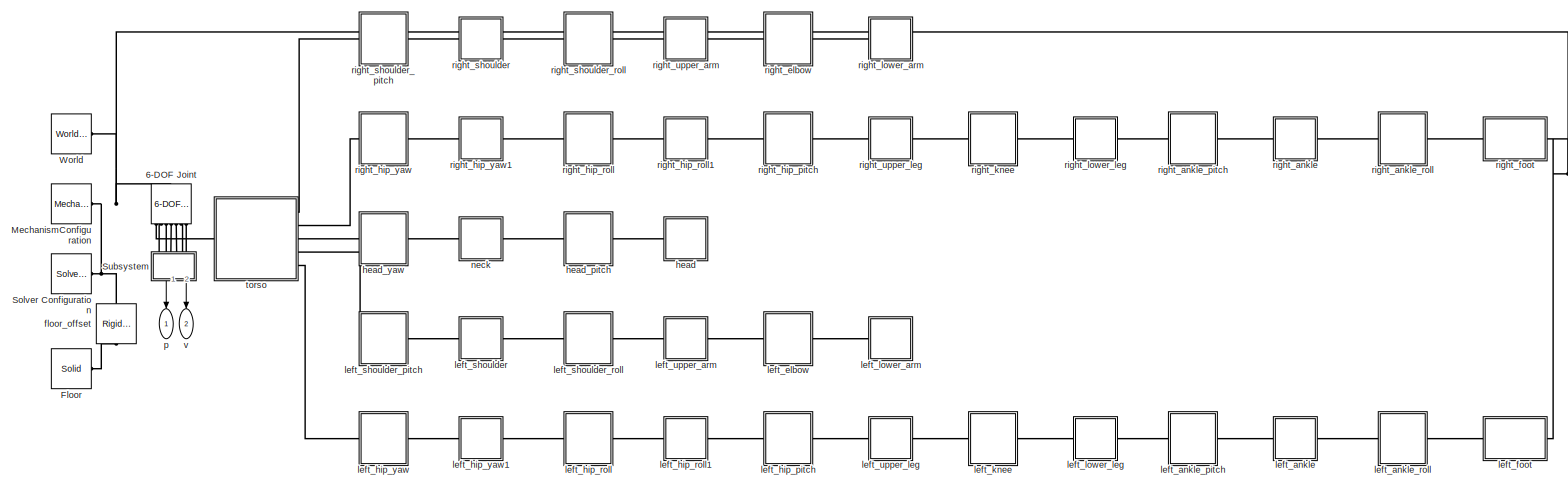
[diagram: NUgus - part 1/1, most of the canvas]
BLOCK [SubSystem] NUgus
  Ports = [0, 2]
  RequestExecContextInheritance = off
BLOCK [Reference] NUgus/6-DOF Joint  REF=sm_lib/Joints/6-DOF Joint
  Ports = [0, 0, 0, 0, 0, 1, 7]
  SourceBlock = sm_lib/Joints/6-DOF Joint
  SourceProductBaseCode = MS
  SourceProductName = Simscape Multibody
  SourceType = 6-DOF Joint
BLOCK [Reference] NUgus/Floor  REF=sm_lib/Body Elements/Solid
  Ports = [0, 0, 0, 0, 0, 0, 1]
  SourceBlock = sm_lib/Body Elements/Solid
  SourceProductBaseCode = MS
  SourceProductName = Simscape Multibody
  SourceType = Solid
BLOCK [Reference] NUgus/MechanismConfiguration  REF=sm_lib/Utilities/Mechanism
Configuration
  Ports = [0, 0, 0, 0, 0, 0, 1]
  SourceBlock = sm_lib/Utilities/Mechanism\nConfiguration
  SourceProductBaseCode = MS
  SourceProductName = Simscape Multibody
  SourceType = Mechanism\nConfiguration
BLOCK [Reference] NUgus/Solver Configuration  REF=nesl_utility/Solver
Configuration
  Ports = [0, 0, 0, 0, 0, 0, 1]
  SourceBlock = nesl_utility/Solver\nConfiguration
  SourceProductBaseCode = SS
  SourceProductName = Simscape
  SourceType = Solver\nConfiguration
BLOCK [SubSystem] NUgus/Subsystem
  Ports = [0, 2, 0, 0, 0, 6]
  RequestExecContextInheritance = off
BLOCK [Mux] NUgus/Subsystem/Mux
  DisplayOption = bar
  Inputs = 3
  Ports = [3, 1]
BLOCK [Mux] NUgus/Subsystem/Mux1
  DisplayOption = bar
  Inputs = 3
  Ports = [3, 1]
BLOCK [Reference] NUgus/Subsystem/PS-Simulink Converter  REF=nesl_utility/PS-Simulink
Converter
  Ports = [0, 1, 0, 0, 0, 1]
  SourceBlock = nesl_utility/PS-Simulink\nConverter
  SourceProductBaseCode = SS
  SourceProductName = Simscape
  SourceType = PS-Simulink\nConverter
BLOCK [Reference] NUgus/Subsystem/PS-Simulink Converter1  REF=nesl_utility/PS-Simulink
Converter
  Ports = [0, 1, 0, 0, 0, 1]
  SourceBlock = nesl_utility/PS-Simulink\nConverter
  SourceProductBaseCode = SS
  SourceProductName = Simscape
  SourceType = PS-Simulink\nConverter
BLOCK [Reference] NUgus/Subsystem/PS-Simulink Converter2  REF=nesl_utility/PS-Simulink
Converter
  Ports = [0, 1, 0, 0, 0, 1]
  SourceBlock = nesl_utility/PS-Simulink\nConverter
  SourceProductBaseCode = SS
  SourceProductName = Simscape
  SourceType = PS-Simulink\nConverter
BLOCK [Reference] NUgus/Subsystem/PS-Simulink Converter3  REF=nesl_utility/PS-Simulink
Converter
  Ports = [0, 1, 0, 0, 0, 1]
  SourceBlock = nesl_utility/PS-Simulink\nConverter
  SourceProductBaseCode = SS
  SourceProductName = Simscape
  SourceType = PS-Simulink\nConverter
BLOCK [Reference] NUgus/Subsystem/PS-Simulink Converter4  REF=nesl_utility/PS-Simulink
Converter
  Ports = [0, 1, 0, 0, 0, 1]
  SourceBlock = nesl_utility/PS-Simulink\nConverter
  SourceProductBaseCode = SS
  SourceProductName = Simscape
  SourceType = PS-Simulink\nConverter
BLOCK [Reference] NUgus/Subsystem/PS-Simulink Converter5  REF=nesl_utility/PS-Simulink
Converter
  Ports = [0, 1, 0, 0, 0, 1]
  SourceBlock = nesl_utility/PS-Simulink\nConverter
  SourceProductBaseCode = SS
  SourceProductName = Simscape
  SourceType = PS-Simulink\nConverter
BLOCK [Outport] NUgus/Subsystem/p
  IconDisplay = Port number
BLOCK [PMIOPort] NUgus/Subsystem/px
  Side = Left
BLOCK [PMIOPort] NUgus/Subsystem/py
  Port = 3
  Side = Left
BLOCK [PMIOPort] NUgus/Subsystem/pz
  Port = 5
  Side = Left
BLOCK [Outport] NUgus/Subsystem/v
  IconDisplay = Port number
  Port = 2
BLOCK [PMIOPort] NUgus/Subsystem/vx
  Port = 2
  Side = Left
BLOCK [PMIOPort] NUgus/Subsystem/vy
  Port = 4
  Side = Left
BLOCK [PMIOPort] NUgus/Subsystem/vz
  Port = 6
  Side = Left
BLOCK [Reference] NUgus/World  REF=sm_lib/Frames and
Transforms/World Frame
  Ports = [0, 0, 0, 0, 0, 0, 1]
  SourceBlock = sm_lib/Frames and\nTransforms/World Frame
  SourceProductBaseCode = MS
  SourceProductName = Simscape Multibody
  SourceType = World Frame
BLOCK [Reference] NUgus/floor_offset  REF=sm_lib/Frames and
Transforms/Rigid
Transform
  Ports = [0, 0, 0, 0, 0, 1, 1]
  SourceBlock = sm_lib/Frames and\nTransforms/Rigid\nTransform
  SourceProductBaseCode = MS
  SourceProductName = Simscape Multibody
  SourceType = Rigid\nTransform
BLOCK [SubSystem] NUgus/head
  Ports = [0, 0, 0, 0, 0, 1]
  RequestExecContextInheritance = off
BLOCK [PMIOPort] NUgus/head/F
  Side = Left
BLOCK [Reference] NUgus/head/Inertia  REF=sm_lib/Body Elements/Inertia
  Ports = [0, 0, 0, 0, 0, 0, 1]
  SourceBlock = sm_lib/Body Elements/Inertia
  SourceProductBaseCode = MS
  SourceProductName = Simscape Multibody
  SourceType = Inertia
BLOCK [Reference] NUgus/head/InertiaOriginTransform  REF=sm_lib/Frames and
Transforms/Rigid
Transform
  Ports = [0, 0, 0, 0, 0, 1, 1]
  SourceBlock = sm_lib/Frames and\nTransforms/Rigid\nTransform
  SourceProductBaseCode = MS
  SourceProductName = Simscape Multibody
  SourceType = Rigid\nTransform
BLOCK [Reference] NUgus/head/ReferenceFrame  REF=sm_lib/Frames and
Transforms/Reference
Frame
  Ports = [0, 0, 0, 0, 0, 0, 1]
  SourceBlock = sm_lib/Frames and\nTransforms/Reference\nFrame
  SourceProductBaseCode = MS
  SourceProductName = Simscape Multibody
  SourceType = Reference\nFrame
BLOCK [Reference] NUgus/head/head_pitch_AxisInvTransform  REF=sm_lib/Frames and
Transforms/Rigid
Transform
  Ports = [0, 0, 0, 0, 0, 1, 1]
  SourceBlock = sm_lib/Frames and\nTransforms/Rigid\nTransform
  SourceProductBaseCode = MS
  SourceProductName = Simscape Multibody
  SourceType = Rigid\nTransform
BLOCK [Reference] NUgus/head/head_visual  REF=sm_lib/Body Elements/Solid
  Ports = [0, 0, 0, 0, 0, 0, 1]
  SourceBlock = sm_lib/Body Elements/Solid
  SourceProductBaseCode = MS
  SourceProductName = Simscape Multibody
  SourceType = Solid
BLOCK [Reference] NUgus/head/head_visualOriginTransform  REF=sm_lib/Frames and
Transforms/Rigid
Transform
  Ports = [0, 0, 0, 0, 0, 1, 1]
  SourceBlock = sm_lib/Frames and\nTransforms/Rigid\nTransform
  SourceProductBaseCode = MS
  SourceProductName = Simscape Multibody
  SourceType = Rigid\nTransform
BLOCK [SubSystem] NUgus/head_pitch
  Ports = [0, 0, 0, 0, 0, 1, 1]
  RequestExecContextInheritance = off
BLOCK [PMIOPort] NUgus/head_pitch/B
  Side = Left
BLOCK [DataStoreRead] NUgus/head_pitch/Data Store Read
  DataStoreElements = MX64_ID19.CW_angle_limit#MX64_ID19.CCW_angle_limit#MX64_ID19.torque_enable#MX64_ID19.D_gain#MX64_ID19.I_gain#MX64_ID19.P_gain#MX64_ID19.goal_position#MX64_ID19.moving_speed#MX64_ID19.torque_limit
  DataStoreName = MX64_ID19
  Ports = [0, 9]
BLOCK [DataStoreWrite] NUgus/head_pitch/Data Store Write
  DataStoreElements = MX64_ID19.present_position#MX64_ID19.present_speed#MX64_ID19.present_load#MX64_ID19.moving#MX64_ID19.pwm
  DataStoreName = MX64_ID19
  Ports = [5]
BLOCK [PMIOPort] NUgus/head_pitch/F
  Port = 2
  Side = Right
BLOCK [Reference] NUgus/head_pitch/Joint  REF=sm_lib/Joints/Revolute Joint
  Ports = [0, 0, 0, 0, 0, 2, 3]
  SourceBlock = sm_lib/Joints/Revolute Joint
  SourceProductBaseCode = MS
  SourceProductName = Simscape Multibody
  SourceType = Revolute Joint
BLOCK [ModelReference] NUgus/head_pitch/Model
  ModelNameDialog = MX64
  ModelReferenceVersion = 1.34
  Ports = [11, 6]
BLOCK [Reference] NUgus/head_pitch/Position  REF=nesl_utility/PS-Simulink
Converter
  Ports = [0, 1, 0, 0, 0, 1]
  SourceBlock = nesl_utility/PS-Simulink\nConverter
  SourceProductBaseCode = SS
  SourceProductName = Simscape
  SourceType = PS-Simulink\nConverter
BLOCK [Reference] NUgus/head_pitch/Simulink-PS Converter  REF=nesl_utility/Simulink-PS
Converter
  Ports = [1, 0, 0, 0, 0, 0, 1]
  SourceBlock = nesl_utility/Simulink-PS\nConverter
  SourceProductBaseCode = SS
  SourceProductName = Simscape
  SourceType = Simulink-PS\nConverter
BLOCK [Reference] NUgus/head_pitch/Speed  REF=nesl_utility/PS-Simulink
Converter
  Ports = [0, 1, 0, 0, 0, 1]
  SourceBlock = nesl_utility/PS-Simulink\nConverter
  SourceProductBaseCode = SS
  SourceProductName = Simscape
  SourceType = PS-Simulink\nConverter
BLOCK [SubSystem] NUgus/head_yaw
  Ports = [0, 0, 0, 0, 0, 1, 1]
  RequestExecContextInheritance = off
BLOCK [PMIOPort] NUgus/head_yaw/B
  Side = Left
BLOCK [DataStoreRead] NUgus/head_yaw/Data Store Read
  DataStoreElements = MX64_ID18.CW_angle_limit#MX64_ID18.CCW_angle_limit#MX64_ID18.torque_enable#MX64_ID18.D_gain#MX64_ID18.I_gain#MX64_ID18.P_gain#MX64_ID18.goal_position#MX64_ID18.moving_speed#MX64_ID18.torque_limit
  DataStoreName = MX64_ID18
  Ports = [0, 9]
BLOCK [DataStoreWrite] NUgus/head_yaw/Data Store Write
  DataStoreElements = MX64_ID18.present_position#MX64_ID18.present_speed#MX64_ID18.present_load#MX64_ID18.moving#MX64_ID18.pwm
  DataStoreName = MX64_ID18
  Ports = [5]
BLOCK [PMIOPort] NUgus/head_yaw/F
  Port = 2
  Side = Right
BLOCK [Reference] NUgus/head_yaw/Joint  REF=sm_lib/Joints/Revolute Joint
  Ports = [0, 0, 0, 0, 0, 2, 3]
  SourceBlock = sm_lib/Joints/Revolute Joint
  SourceProductBaseCode = MS
  SourceProductName = Simscape Multibody
  SourceType = Revolute Joint
BLOCK [ModelReference] NUgus/head_yaw/Model
  ModelNameDialog = MX64
  ModelReferenceVersion = 1.34
  Ports = [11, 6]
BLOCK [Reference] NUgus/head_yaw/Position  REF=nesl_utility/PS-Simulink
Converter
  Ports = [0, 1, 0, 0, 0, 1]
  SourceBlock = nesl_utility/PS-Simulink\nConverter
  SourceProductBaseCode = SS
  SourceProductName = Simscape
  SourceType = PS-Simulink\nConverter
BLOCK [Reference] NUgus/head_yaw/Simulink-PS Converter  REF=nesl_utility/Simulink-PS
Converter
  Ports = [1, 0, 0, 0, 0, 0, 1]
  SourceBlock = nesl_utility/Simulink-PS\nConverter
  SourceProductBaseCode = SS
  SourceProductName = Simscape
  SourceType = Simulink-PS\nConverter
BLOCK [Reference] NUgus/head_yaw/Speed  REF=nesl_utility/PS-Simulink
Converter
  Ports = [0, 1, 0, 0, 0, 1]
  SourceBlock = nesl_utility/PS-Simulink\nConverter
  SourceProductBaseCode = SS
  SourceProductName = Simscape
  SourceType = PS-Simulink\nConverter
BLOCK [SubSystem] NUgus/left_ankle
  Ports = [0, 0, 0, 0, 0, 1, 1]
  RequestExecContextInheritance = off
BLOCK [PMIOPort] NUgus/left_ankle/F
  Side = Left
BLOCK [PMIOPort] NUgus/left_ankle/F1
  Port = 2
  Side = Right
BLOCK [Reference] NUgus/left_ankle/Inertia  REF=sm_lib/Body Elements/Inertia
  Ports = [0, 0, 0, 0, 0, 0, 1]
  SourceBlock = sm_lib/Body Elements/Inertia
  SourceProductBaseCode = MS
  SourceProductName = Simscape Multibody
  SourceType = Inertia
BLOCK [Reference] NUgus/left_ankle/InertiaOriginTransform  REF=sm_lib/Frames and
Transforms/Rigid
Transform
  Ports = [0, 0, 0, 0, 0, 1, 1]
  SourceBlock = sm_lib/Frames and\nTransforms/Rigid\nTransform
  SourceProductBaseCode = MS
  SourceProductName = Simscape Multibody
  SourceType = Rigid\nTransform
BLOCK [Reference] NUgus/left_ankle/ReferenceFrame  REF=sm_lib/Frames and
Transforms/Reference
Frame
  Ports = [0, 0, 0, 0, 0, 0, 1]
  SourceBlock = sm_lib/Frames and\nTransforms/Reference\nFrame
  SourceProductBaseCode = MS
  SourceProductName = Simscape Multibody
  SourceType = Reference\nFrame
BLOCK [Reference] NUgus/left_ankle/left_ankle_pitch_AxisInvTransform  REF=sm_lib/Frames and
Transforms/Rigid
Transform
  Ports = [0, 0, 0, 0, 0, 1, 1]
  SourceBlock = sm_lib/Frames and\nTransforms/Rigid\nTransform
  SourceProductBaseCode = MS
  SourceProductName = Simscape Multibody
  SourceType = Rigid\nTransform
BLOCK [Reference] NUgus/left_ankle/left_ankle_roll_AxisTransform  REF=sm_lib/Frames and
Transforms/Rigid
Transform
  Ports = [0, 0, 0, 0, 0, 1, 1]
  SourceBlock = sm_lib/Frames and\nTransforms/Rigid\nTransform
  SourceProductBaseCode = MS
  SourceProductName = Simscape Multibody
  SourceType = Rigid\nTransform
BLOCK [Reference] NUgus/left_ankle/left_ankle_roll_OriginTransform  REF=sm_lib/Frames and
Transforms/Rigid
Transform
  Ports = [0, 0, 0, 0, 0, 1, 1]
  SourceBlock = sm_lib/Frames and\nTransforms/Rigid\nTransform
  SourceProductBaseCode = MS
  SourceProductName = Simscape Multibody
  SourceType = Rigid\nTransform
BLOCK [Reference] NUgus/left_ankle/left_ankle_visual  REF=sm_lib/Body Elements/Solid
  Ports = [0, 0, 0, 0, 0, 0, 1]
  SourceBlock = sm_lib/Body Elements/Solid
  SourceProductBaseCode = MS
  SourceProductName = Simscape Multibody
  SourceType = Solid
BLOCK [Reference] NUgus/left_ankle/left_ankle_visualOriginTransform  REF=sm_lib/Frames and
Transforms/Rigid
Transform
  Ports = [0, 0, 0, 0, 0, 1, 1]
  SourceBlock = sm_lib/Frames and\nTransforms/Rigid\nTransform
  SourceProductBaseCode = MS
  SourceProductName = Simscape Multibody
  SourceType = Rigid\nTransform
BLOCK [SubSystem] NUgus/left_ankle_pitch
  Ports = [0, 0, 0, 0, 0, 1, 1]
  RequestExecContextInheritance = off
BLOCK [PMIOPort] NUgus/left_ankle_pitch/B
  Side = Left
BLOCK [DataStoreRead] NUgus/left_ankle_pitch/Data Store Read
  DataStoreElements = MX106_ID15.CW_angle_limit#MX106_ID15.CCW_angle_limit#MX106_ID15.torque_enable#MX106_ID15.D_gain#MX106_ID15.I_gain#MX106_ID15.P_gain#MX106_ID15.goal_position#MX106_ID15.moving_speed#MX106_ID15.torque_limit
  DataStoreName = MX106_ID15
  Ports = [0, 9]
BLOCK [DataStoreWrite] NUgus/left_ankle_pitch/Data Store Write
  DataStoreElements = MX106_ID15.present_position#MX106_ID15.present_speed#MX106_ID15.present_load#MX106_ID15.moving#MX106_ID15.pwm
  DataStoreName = MX106_ID15
  Ports = [5]
BLOCK [PMIOPort] NUgus/left_ankle_pitch/F
  Port = 2
  Side = Right
BLOCK [Reference] NUgus/left_ankle_pitch/Joint  REF=sm_lib/Joints/Revolute Joint
  Ports = [0, 0, 0, 0, 0, 2, 3]
  SourceBlock = sm_lib/Joints/Revolute Joint
  SourceProductBaseCode = MS
  SourceProductName = Simscape Multibody
  SourceType = Revolute Joint
BLOCK [ModelReference] NUgus/left_ankle_pitch/Model
  ModelNameDialog = MX106
  ModelReferenceVersion = 1.31
  Ports = [11, 6]
BLOCK [Reference] NUgus/left_ankle_pitch/Position  REF=nesl_utility/PS-Simulink
Converter
  Ports = [0, 1, 0, 0, 0, 1]
  SourceBlock = nesl_utility/PS-Simulink\nConverter
  SourceProductBaseCode = SS
  SourceProductName = Simscape
  SourceType = PS-Simulink\nConverter
BLOCK [Reference] NUgus/left_ankle_pitch/Simulink-PS Converter  REF=nesl_utility/Simulink-PS
Converter
  Ports = [1, 0, 0, 0, 0, 0, 1]
  SourceBlock = nesl_utility/Simulink-PS\nConverter
  SourceProductBaseCode = SS
  SourceProductName = Simscape
  SourceType = Simulink-PS\nConverter
BLOCK [Reference] NUgus/left_ankle_pitch/Speed  REF=nesl_utility/PS-Simulink
Converter
  Ports = [0, 1, 0, 0, 0, 1]
  SourceBlock = nesl_utility/PS-Simulink\nConverter
  SourceProductBaseCode = SS
  SourceProductName = Simscape
  SourceType = PS-Simulink\nConverter
BLOCK [SubSystem] NUgus/left_ankle_roll
  Ports = [0, 0, 0, 0, 0, 1, 1]
  RequestExecContextInheritance = off
BLOCK [PMIOPort] NUgus/left_ankle_roll/B
  Side = Left
BLOCK [DataStoreRead] NUgus/left_ankle_roll/Data Store Read
  DataStoreElements = MX106_ID17.CW_angle_limit#MX106_ID17.CCW_angle_limit#MX106_ID17.torque_enable#MX106_ID17.D_gain#MX106_ID17.I_gain#MX106_ID17.P_gain#MX106_ID17.goal_position#MX106_ID17.moving_speed#MX106_ID17.torque_limit
  DataStoreName = MX106_ID17
  Ports = [0, 9]
BLOCK [DataStoreWrite] NUgus/left_ankle_roll/Data Store Write
  DataStoreElements = MX106_ID17.present_position#MX106_ID17.present_speed#MX106_ID17.present_load#MX106_ID17.moving#MX106_ID17.pwm
  DataStoreName = MX106_ID17
  Ports = [5]
BLOCK [PMIOPort] NUgus/left_ankle_roll/F
  Port = 2
  Side = Right
BLOCK [Reference] NUgus/left_ankle_roll/Joint  REF=sm_lib/Joints/Revolute Joint
  Ports = [0, 0, 0, 0, 0, 2, 3]
  SourceBlock = sm_lib/Joints/Revolute Joint
  SourceProductBaseCode = MS
  SourceProductName = Simscape Multibody
  SourceType = Revolute Joint
BLOCK [ModelReference] NUgus/left_ankle_roll/Model
  ModelNameDialog = MX106
  ModelReferenceVersion = 1.31
  Ports = [11, 6]
BLOCK [Reference] NUgus/left_ankle_roll/Position  REF=nesl_utility/PS-Simulink
Converter
  Ports = [0, 1, 0, 0, 0, 1]
  SourceBlock = nesl_utility/PS-Simulink\nConverter
  SourceProductBaseCode = SS
  SourceProductName = Simscape
  SourceType = PS-Simulink\nConverter
BLOCK [Reference] NUgus/left_ankle_roll/Simulink-PS Converter  REF=nesl_utility/Simulink-PS
Converter
  Ports = [1, 0, 0, 0, 0, 0, 1]
  SourceBlock = nesl_utility/Simulink-PS\nConverter
  SourceProductBaseCode = SS
  SourceProductName = Simscape
  SourceType = Simulink-PS\nConverter
BLOCK [Reference] NUgus/left_ankle_roll/Speed  REF=nesl_utility/PS-Simulink
Converter
  Ports = [0, 1, 0, 0, 0, 1]
  SourceBlock = nesl_utility/PS-Simulink\nConverter
  SourceProductBaseCode = SS
  SourceProductName = Simscape
  SourceType = PS-Simulink\nConverter
BLOCK [SubSystem] NUgus/left_elbow
  Ports = [0, 0, 0, 0, 0, 1, 1]
  RequestExecContextInheritance = off
BLOCK [PMIOPort] NUgus/left_elbow/B
  Side = Left
BLOCK [DataStoreRead] NUgus/left_elbow/Data Store Read
  DataStoreElements = MX64_ID5.CW_angle_limit#MX64_ID5.CCW_angle_limit#MX64_ID5.torque_enable#MX64_ID5.D_gain#MX64_ID5.I_gain#MX64_ID5.P_gain#MX64_ID5.goal_position#MX64_ID5.moving_speed#MX64_ID5.torque_limit
  DataStoreName = MX64_ID5
  Ports = [0, 9]
BLOCK [DataStoreWrite] NUgus/left_elbow/Data Store Write
  DataStoreElements = MX64_ID5.present_position#MX64_ID5.present_speed#MX64_ID5.present_load#MX64_ID5.moving#MX64_ID5.pwm
  DataStoreName = MX64_ID5
  Ports = [5]
BLOCK [PMIOPort] NUgus/left_elbow/F
  Port = 2
  Side = Right
BLOCK [Reference] NUgus/left_elbow/Joint  REF=sm_lib/Joints/Revolute Joint
  Ports = [0, 0, 0, 0, 0, 2, 3]
  SourceBlock = sm_lib/Joints/Revolute Joint
  SourceProductBaseCode = MS
  SourceProductName = Simscape Multibody
  SourceType = Revolute Joint
BLOCK [ModelReference] NUgus/left_elbow/Model
  ModelNameDialog = MX64
  ModelReferenceVersion = 1.34
  Ports = [11, 6]
BLOCK [Reference] NUgus/left_elbow/Position  REF=nesl_utility/PS-Simulink
Converter
  Ports = [0, 1, 0, 0, 0, 1]
  SourceBlock = nesl_utility/PS-Simulink\nConverter
  SourceProductBaseCode = SS
  SourceProductName = Simscape
  SourceType = PS-Simulink\nConverter
BLOCK [Reference] NUgus/left_elbow/Simulink-PS Converter  REF=nesl_utility/Simulink-PS
Converter
  Ports = [1, 0, 0, 0, 0, 0, 1]
  SourceBlock = nesl_utility/Simulink-PS\nConverter
  SourceProductBaseCode = SS
  SourceProductName = Simscape
  SourceType = Simulink-PS\nConverter
BLOCK [Reference] NUgus/left_elbow/Speed  REF=nesl_utility/PS-Simulink
Converter
  Ports = [0, 1, 0, 0, 0, 1]
  SourceBlock = nesl_utility/PS-Simulink\nConverter
  SourceProductBaseCode = SS
  SourceProductName = Simscape
  SourceType = PS-Simulink\nConverter
BLOCK [SubSystem] NUgus/left_foot
  Ports = [0, 0, 0, 0, 0, 1, 1]
  RequestExecContextInheritance = off
BLOCK [PMIOPort] NUgus/left_foot/ankle
  Port = 2
  Side = Left
BLOCK [PMIOPort] NUgus/left_foot/floor
  Side = Right
BLOCK [SubSystem] NUgus/left_foot/foot
  Ports = [0, 0, 0, 0, 0, 1, 1]
  RequestExecContextInheritance = off
BLOCK [PMIOPort] NUgus/left_foot/foot/B
  Port = 2
  Side = Right
BLOCK [PMIOPort] NUgus/left_foot/foot/F
  Side = Left
BLOCK [Reference] NUgus/left_foot/foot/Inertia  REF=sm_lib/Body Elements/Inertia
  Ports = [0, 0, 0, 0, 0, 0, 1]
  SourceBlock = sm_lib/Body Elements/Inertia
  SourceProductBaseCode = MS
  SourceProductName = Simscape Multibody
  SourceType = Inertia
BLOCK [Reference] NUgus/left_foot/foot/InertiaOriginTransform  REF=sm_lib/Frames and
Transforms/Rigid
Transform
  Ports = [0, 0, 0, 0, 0, 1, 1]
  SourceBlock = sm_lib/Frames and\nTransforms/Rigid\nTransform
  SourceProductBaseCode = MS
  SourceProductName = Simscape Multibody
  SourceType = Rigid\nTransform
BLOCK [Reference] NUgus/left_foot/foot/ReferenceFrame  REF=sm_lib/Frames and
Transforms/Reference
Frame
  Ports = [0, 0, 0, 0, 0, 0, 1]
  SourceBlock = sm_lib/Frames and\nTransforms/Reference\nFrame
  SourceProductBaseCode = MS
  SourceProductName = Simscape Multibody
  SourceType = Reference\nFrame
BLOCK [Reference] NUgus/left_foot/foot/right_ankle_roll_AxisInvTransform  REF=sm_lib/Frames and
Transforms/Rigid
Transform
  Ports = [0, 0, 0, 0, 0, 1, 1]
  SourceBlock = sm_lib/Frames and\nTransforms/Rigid\nTransform
  SourceProductBaseCode = MS
  SourceProductName = Simscape Multibody
  SourceType = Rigid\nTransform
BLOCK [Reference] NUgus/left_foot/foot/right_foot_visual  REF=sm_lib/Body Elements/Solid
  Ports = [0, 0, 0, 0, 0, 0, 1]
  SourceBlock = sm_lib/Body Elements/Solid
  SourceProductBaseCode = MS
  SourceProductName = Simscape Multibody
  SourceType = Solid
BLOCK [Reference] NUgus/left_foot/foot/right_foot_visualOriginTransform  REF=sm_lib/Frames and
Transforms/Rigid
Transform
  Ports = [0, 0, 0, 0, 0, 1, 1]
  SourceBlock = sm_lib/Frames and\nTransforms/Rigid\nTransform
  SourceProductBaseCode = MS
  SourceProductName = Simscape Multibody
  SourceType = Rigid\nTransform
BLOCK [Reference] NUgus/left_foot/foot_bl  REF=sm_lib/Frames and
Transforms/Rigid
Transform
  Ports = [0, 0, 0, 0, 0, 1, 1]
  SourceBlock = sm_lib/Frames and\nTransforms/Rigid\nTransform
  SourceProductBaseCode = MS
  SourceProductName = Simscape Multibody
  SourceType = Rigid\nTransform
BLOCK [SubSystem] NUgus/left_foot/foot_bl_contact
  Ports = [0, 0, 0, 0, 0, 1, 1]
  RequestExecContextInheritance = off
BLOCK [Reference] NUgus/left_foot/foot_bl_contact/6-DOF Joint  REF=sm_lib/Joints/6-DOF Joint
  Ports = [0, 0, 0, 0, 0, 4, 5]
  SourceBlock = sm_lib/Joints/6-DOF Joint
  SourceProductBaseCode = MS
  SourceProductName = Simscape Multibody
  SourceType = 6-DOF Joint
BLOCK [PMIOPort] NUgus/left_foot/foot_bl_contact/Contact
  Side = Right
BLOCK [PMIOPort] NUgus/left_foot/foot_bl_contact/Floor
  Port = 2
  Side = Left
BLOCK [Reference] NUgus/left_foot/foot_bl_contact/PS Abs1  REF=fl_lib/Physical Signals/Nonlinear Operators/PS Abs
  Ports = [0, 0, 0, 0, 0, 1, 1]
  SourceBlock = fl_lib/Physical Signals/Nonlinear Operators/PS Abs
  SourceProductBaseCode = SS
  SourceProductName = Simscape
  SourceType = PS Abs
BLOCK [Reference] NUgus/left_foot/foot_bl_contact/PS Add  REF=fl_lib/Physical Signals/Functions/PS Add
  Ports = [0, 0, 0, 0, 0, 2, 1]
  SourceBlock = fl_lib/Physical Signals/Functions/PS Add
  SourceProductBaseCode = SS
  SourceProductName = Simscape
  SourceType = PS Add
BLOCK [Reference] NUgus/left_foot/foot_bl_contact/PS Gain  REF=fl_lib/Physical Signals/Functions/PS Gain
  Ports = [0, 0, 0, 0, 0, 1, 1]
  SourceBlock = fl_lib/Physical Signals/Functions/PS Gain
  SourceProductBaseCode = SS
  SourceProductName = Simscape
  SourceType = PS Gain
BLOCK [SubSystem] NUgus/left_foot/foot_bl_contact/calculate forces
  Ports = [0, 0, 0, 0, 0, 5, 3]
  RequestExecContextInheritance = off
BLOCK [Reference] NUgus/left_foot/foot_bl_contact/calculate forces/Frictionless  REF=fl_lib/Physical Signals/Sources/PS Constant
  Ports = [0, 0, 0, 0, 0, 0, 1]
  SourceBlock = fl_lib/Physical Signals/Sources/PS Constant
  SourceProductBaseCode = SS
  SourceProductName = Simscape
  SourceType = PS Constant
BLOCK [Reference] NUgus/left_foot/foot_bl_contact/calculate forces/PS Switch  REF=fl_lib/Physical Signals/Nonlinear Operators/PS Switch
  Ports = [0, 0, 0, 0, 0, 3, 1]
  SourceBlock = fl_lib/Physical Signals/Nonlinear Operators/PS Switch
  SourceProductBaseCode = SS
  SourceProductName = Simscape
  SourceType = PS Switch
BLOCK [Reference] NUgus/left_foot/foot_bl_contact/calculate forces/Unary Minus  REF=fl_lib/Physical Signals/Functions/PS Gain
  Ports = [0, 0, 0, 0, 0, 1, 1]
  SourceBlock = fl_lib/Physical Signals/Functions/PS Gain
  SourceProductBaseCode = SS
  SourceProductName = Simscape
  SourceType = PS Gain
BLOCK [PMIOPort] NUgus/left_foot/foot_bl_contact/calculate forces/bound
  Port = 5
  Side = Left
BLOCK [SubSystem] NUgus/left_foot/foot_bl_contact/calculate forces/x contact force
  Ports = [0, 0, 0, 0, 0, 5, 1]
  RequestExecContextInheritance = off
BLOCK [Reference] NUgus/left_foot/foot_bl_contact/calculate forces/x contact force/PS Max1  REF=fl_lib/Physical Signals/Nonlinear Operators/PS Max
  Ports = [0, 0, 0, 0, 0, 2, 1]
  SourceBlock = fl_lib/Physical Signals/Nonlinear Operators/PS Max
  SourceProductBaseCode = SS
  SourceProductName = Simscape
  SourceType = PS Max
BLOCK [Reference] NUgus/left_foot/foot_bl_contact/calculate forces/x contact force/PS Min1  REF=fl_lib/Physical Signals/Nonlinear Operators/PS Min
  Ports = [0, 0, 0, 0, 0, 2, 1]
  SourceBlock = fl_lib/Physical Signals/Nonlinear Operators/PS Min
  SourceProductBaseCode = SS
  SourceProductName = Simscape
  SourceType = PS Min
BLOCK [Reference] NUgus/left_foot/foot_bl_contact/calculate forces/x contact force/PS Switch  REF=fl_lib/Physical Signals/Nonlinear Operators/PS Switch
  Ports = [0, 0, 0, 0, 0, 3, 1]
  SourceBlock = fl_lib/Physical Signals/Nonlinear Operators/PS Switch
  SourceProductBaseCode = SS
  SourceProductName = Simscape
  SourceType = PS Switch
BLOCK [PMIOPort] NUgus/left_foot/foot_bl_contact/calculate forces/x contact force/force
  Port = 2
  Side = Right
BLOCK [PMIOPort] NUgus/left_foot/foot_bl_contact/calculate forces/x contact force/frictionless
  Side = Left
BLOCK [PMIOPort] NUgus/left_foot/foot_bl_contact/calculate forces/x contact force/lower_bound
  Port = 6
  Side = Left
BLOCK [PMIOPort] NUgus/left_foot/foot_bl_contact/calculate forces/x contact force/upper_bound
  Port = 5
  Side = Left
BLOCK [PMIOPort] NUgus/left_foot/foot_bl_contact/calculate forces/x contact force/velocity
  Port = 3
  Side = Left
BLOCK [PMIOPort] NUgus/left_foot/foot_bl_contact/calculate forces/x contact force/z position
  Port = 4
  Side = Left
BLOCK [PMIOPort] NUgus/left_foot/foot_bl_contact/calculate forces/x force
  Port = 6
  Side = Right
BLOCK [PMIOPort] NUgus/left_foot/foot_bl_contact/calculate forces/x velocity
  Side = Left
BLOCK [SubSystem] NUgus/left_foot/foot_bl_contact/calculate forces/y contact force
  Ports = [0, 0, 0, 0, 0, 5, 1]
  RequestExecContextInheritance = off
BLOCK [Reference] NUgus/left_foot/foot_bl_contact/calculate forces/y contact force/PS Max1  REF=fl_lib/Physical Signals/Nonlinear Operators/PS Max
  Ports = [0, 0, 0, 0, 0, 2, 1]
  SourceBlock = fl_lib/Physical Signals/Nonlinear Operators/PS Max
  SourceProductBaseCode = SS
  SourceProductName = Simscape
  SourceType = PS Max
BLOCK [Reference] NUgus/left_foot/foot_bl_contact/calculate forces/y contact force/PS Min1  REF=fl_lib/Physical Signals/Nonlinear Operators/PS Min
  Ports = [0, 0, 0, 0, 0, 2, 1]
  SourceBlock = fl_lib/Physical Signals/Nonlinear Operators/PS Min
  SourceProductBaseCode = SS
  SourceProductName = Simscape
  SourceType = PS Min
BLOCK [Reference] NUgus/left_foot/foot_bl_contact/calculate forces/y contact force/PS Switch  REF=fl_lib/Physical Signals/Nonlinear Operators/PS Switch
  Ports = [0, 0, 0, 0, 0, 3, 1]
  SourceBlock = fl_lib/Physical Signals/Nonlinear Operators/PS Switch
  SourceProductBaseCode = SS
  SourceProductName = Simscape
  SourceType = PS Switch
BLOCK [PMIOPort] NUgus/left_foot/foot_bl_contact/calculate forces/y contact force/force
  Port = 2
  Side = Right
BLOCK [PMIOPort] NUgus/left_foot/foot_bl_contact/calculate forces/y contact force/frictionless
  Side = Left
BLOCK [PMIOPort] NUgus/left_foot/foot_bl_contact/calculate forces/y contact force/lower_bound
  Port = 6
  Side = Left
BLOCK [PMIOPort] NUgus/left_foot/foot_bl_contact/calculate forces/y contact force/upper_bound
  Port = 5
  Side = Left
BLOCK [PMIOPort] NUgus/left_foot/foot_bl_contact/calculate forces/y contact force/velocity
  Port = 3
  Side = Left
BLOCK [PMIOPort] NUgus/left_foot/foot_bl_contact/calculate forces/y contact force/z position
  Port = 4
  Side = Left
BLOCK [PMIOPort] NUgus/left_foot/foot_bl_contact/calculate forces/y force
  Port = 7
  Side = Right
BLOCK [PMIOPort] NUgus/left_foot/foot_bl_contact/calculate forces/y velocity
  Port = 2
  Side = Left
BLOCK [PMIOPort] NUgus/left_foot/foot_bl_contact/calculate forces/z force
  Port = 8
  Side = Right
BLOCK [PMIOPort] NUgus/left_foot/foot_bl_contact/calculate forces/z position
  Port = 3
  Side = Left
BLOCK [PMIOPort] NUgus/left_foot/foot_bl_contact/calculate forces/z update
  Port = 4
  Side = Left
BLOCK [Reference] NUgus/left_foot/foot_bl_contact/x Velocity Gain  REF=fl_lib/Physical Signals/Functions/PS Gain
  Ports = [0, 0, 0, 0, 0, 1, 1]
  SourceBlock = fl_lib/Physical Signals/Functions/PS Gain
  SourceProductBaseCode = SS
  SourceProductName = Simscape
  SourceType = PS Gain
BLOCK [Reference] NUgus/left_foot/foot_bl_contact/y Velocity Gain  REF=fl_lib/Physical Signals/Functions/PS Gain
  Ports = [0, 0, 0, 0, 0, 1, 1]
  SourceBlock = fl_lib/Physical Signals/Functions/PS Gain
  SourceProductBaseCode = SS
  SourceProductName = Simscape
  SourceType = PS Gain
BLOCK [Reference] NUgus/left_foot/foot_bl_contact/z Position Gain  REF=fl_lib/Physical Signals/Functions/PS Gain
  Ports = [0, 0, 0, 0, 0, 1, 1]
  SourceBlock = fl_lib/Physical Signals/Functions/PS Gain
  SourceProductBaseCode = SS
  SourceProductName = Simscape
  SourceType = PS Gain
BLOCK [Reference] NUgus/left_foot/foot_bl_contact/z Velocity Gain  REF=fl_lib/Physical Signals/Functions/PS Gain
  Ports = [0, 0, 0, 0, 0, 1, 1]
  SourceBlock = fl_lib/Physical Signals/Functions/PS Gain
  SourceProductBaseCode = SS
  SourceProductName = Simscape
  SourceType = PS Gain
BLOCK [Reference] NUgus/left_foot/foot_br  REF=sm_lib/Frames and
Transforms/Rigid
Transform
  Ports = [0, 0, 0, 0, 0, 1, 1]
  SourceBlock = sm_lib/Frames and\nTransforms/Rigid\nTransform
  SourceProductBaseCode = MS
  SourceProductName = Simscape Multibody
  SourceType = Rigid\nTransform
BLOCK [SubSystem] NUgus/left_foot/foot_br_contact
  Ports = [0, 0, 0, 0, 0, 1, 1]
  RequestExecContextInheritance = off
BLOCK [Reference] NUgus/left_foot/foot_br_contact/6-DOF Joint  REF=sm_lib/Joints/6-DOF Joint
  Ports = [0, 0, 0, 0, 0, 4, 5]
  SourceBlock = sm_lib/Joints/6-DOF Joint
  SourceProductBaseCode = MS
  SourceProductName = Simscape Multibody
  SourceType = 6-DOF Joint
BLOCK [PMIOPort] NUgus/left_foot/foot_br_contact/Contact
  Side = Right
BLOCK [PMIOPort] NUgus/left_foot/foot_br_contact/Floor
  Port = 2
  Side = Left
BLOCK [Reference] NUgus/left_foot/foot_br_contact/PS Abs1  REF=fl_lib/Physical Signals/Nonlinear Operators/PS Abs
  Ports = [0, 0, 0, 0, 0, 1, 1]
  SourceBlock = fl_lib/Physical Signals/Nonlinear Operators/PS Abs
  SourceProductBaseCode = SS
  SourceProductName = Simscape
  SourceType = PS Abs
BLOCK [Reference] NUgus/left_foot/foot_br_contact/PS Add  REF=fl_lib/Physical Signals/Functions/PS Add
  Ports = [0, 0, 0, 0, 0, 2, 1]
  SourceBlock = fl_lib/Physical Signals/Functions/PS Add
  SourceProductBaseCode = SS
  SourceProductName = Simscape
  SourceType = PS Add
BLOCK [Reference] NUgus/left_foot/foot_br_contact/PS Gain  REF=fl_lib/Physical Signals/Functions/PS Gain
  Ports = [0, 0, 0, 0, 0, 1, 1]
  SourceBlock = fl_lib/Physical Signals/Functions/PS Gain
  SourceProductBaseCode = SS
  SourceProductName = Simscape
  SourceType = PS Gain
BLOCK [SubSystem] NUgus/left_foot/foot_br_contact/calculate forces
  Ports = [0, 0, 0, 0, 0, 5, 3]
  RequestExecContextInheritance = off
BLOCK [Reference] NUgus/left_foot/foot_br_contact/calculate forces/Frictionless  REF=fl_lib/Physical Signals/Sources/PS Constant
  Ports = [0, 0, 0, 0, 0, 0, 1]
  SourceBlock = fl_lib/Physical Signals/Sources/PS Constant
  SourceProductBaseCode = SS
  SourceProductName = Simscape
  SourceType = PS Constant
BLOCK [Reference] NUgus/left_foot/foot_br_contact/calculate forces/PS Switch  REF=fl_lib/Physical Signals/Nonlinear Operators/PS Switch
  Ports = [0, 0, 0, 0, 0, 3, 1]
  SourceBlock = fl_lib/Physical Signals/Nonlinear Operators/PS Switch
  SourceProductBaseCode = SS
  SourceProductName = Simscape
  SourceType = PS Switch
BLOCK [Reference] NUgus/left_foot/foot_br_contact/calculate forces/Unary Minus  REF=fl_lib/Physical Signals/Functions/PS Gain
  Ports = [0, 0, 0, 0, 0, 1, 1]
  SourceBlock = fl_lib/Physical Signals/Functions/PS Gain
  SourceProductBaseCode = SS
  SourceProductName = Simscape
  SourceType = PS Gain
BLOCK [PMIOPort] NUgus/left_foot/foot_br_contact/calculate forces/bound
  Port = 5
  Side = Left
BLOCK [SubSystem] NUgus/left_foot/foot_br_contact/calculate forces/x contact force
  Ports = [0, 0, 0, 0, 0, 5, 1]
  RequestExecContextInheritance = off
BLOCK [Reference] NUgus/left_foot/foot_br_contact/calculate forces/x contact force/PS Max1  REF=fl_lib/Physical Signals/Nonlinear Operators/PS Max
  Ports = [0, 0, 0, 0, 0, 2, 1]
  SourceBlock = fl_lib/Physical Signals/Nonlinear Operators/PS Max
  SourceProductBaseCode = SS
  SourceProductName = Simscape
  SourceType = PS Max
BLOCK [Reference] NUgus/left_foot/foot_br_contact/calculate forces/x contact force/PS Min1  REF=fl_lib/Physical Signals/Nonlinear Operators/PS Min
  Ports = [0, 0, 0, 0, 0, 2, 1]
  SourceBlock = fl_lib/Physical Signals/Nonlinear Operators/PS Min
  SourceProductBaseCode = SS
  SourceProductName = Simscape
  SourceType = PS Min
BLOCK [Reference] NUgus/left_foot/foot_br_contact/calculate forces/x contact force/PS Switch  REF=fl_lib/Physical Signals/Nonlinear Operators/PS Switch
  Ports = [0, 0, 0, 0, 0, 3, 1]
  SourceBlock = fl_lib/Physical Signals/Nonlinear Operators/PS Switch
  SourceProductBaseCode = SS
  SourceProductName = Simscape
  SourceType = PS Switch
BLOCK [PMIOPort] NUgus/left_foot/foot_br_contact/calculate forces/x contact force/force
  Port = 2
  Side = Right
BLOCK [PMIOPort] NUgus/left_foot/foot_br_contact/calculate forces/x contact force/frictionless
  Side = Left
BLOCK [PMIOPort] NUgus/left_foot/foot_br_contact/calculate forces/x contact force/lower_bound
  Port = 6
  Side = Left
BLOCK [PMIOPort] NUgus/left_foot/foot_br_contact/calculate forces/x contact force/upper_bound
  Port = 5
  Side = Left
BLOCK [PMIOPort] NUgus/left_foot/foot_br_contact/calculate forces/x contact force/velocity
  Port = 3
  Side = Left
BLOCK [PMIOPort] NUgus/left_foot/foot_br_contact/calculate forces/x contact force/z position
  Port = 4
  Side = Left
BLOCK [PMIOPort] NUgus/left_foot/foot_br_contact/calculate forces/x force
  Port = 6
  Side = Right
BLOCK [PMIOPort] NUgus/left_foot/foot_br_contact/calculate forces/x velocity
  Side = Left
BLOCK [SubSystem] NUgus/left_foot/foot_br_contact/calculate forces/y contact force
  Ports = [0, 0, 0, 0, 0, 5, 1]
  RequestExecContextInheritance = off
BLOCK [Reference] NUgus/left_foot/foot_br_contact/calculate forces/y contact force/PS Max1  REF=fl_lib/Physical Signals/Nonlinear Operators/PS Max
  Ports = [0, 0, 0, 0, 0, 2, 1]
  SourceBlock = fl_lib/Physical Signals/Nonlinear Operators/PS Max
  SourceProductBaseCode = SS
  SourceProductName = Simscape
  SourceType = PS Max
BLOCK [Reference] NUgus/left_foot/foot_br_contact/calculate forces/y contact force/PS Min1  REF=fl_lib/Physical Signals/Nonlinear Operators/PS Min
  Ports = [0, 0, 0, 0, 0, 2, 1]
  SourceBlock = fl_lib/Physical Signals/Nonlinear Operators/PS Min
  SourceProductBaseCode = SS
  SourceProductName = Simscape
  SourceType = PS Min
BLOCK [Reference] NUgus/left_foot/foot_br_contact/calculate forces/y contact force/PS Switch  REF=fl_lib/Physical Signals/Nonlinear Operators/PS Switch
  Ports = [0, 0, 0, 0, 0, 3, 1]
  SourceBlock = fl_lib/Physical Signals/Nonlinear Operators/PS Switch
  SourceProductBaseCode = SS
  SourceProductName = Simscape
  SourceType = PS Switch
BLOCK [PMIOPort] NUgus/left_foot/foot_br_contact/calculate forces/y contact force/force
  Port = 2
  Side = Right
BLOCK [PMIOPort] NUgus/left_foot/foot_br_contact/calculate forces/y contact force/frictionless
  Side = Left
BLOCK [PMIOPort] NUgus/left_foot/foot_br_contact/calculate forces/y contact force/lower_bound
  Port = 6
  Side = Left
BLOCK [PMIOPort] NUgus/left_foot/foot_br_contact/calculate forces/y contact force/upper_bound
  Port = 5
  Side = Left
BLOCK [PMIOPort] NUgus/left_foot/foot_br_contact/calculate forces/y contact force/velocity
  Port = 3
  Side = Left
BLOCK [PMIOPort] NUgus/left_foot/foot_br_contact/calculate forces/y contact force/z position
  Port = 4
  Side = Left
BLOCK [PMIOPort] NUgus/left_foot/foot_br_contact/calculate forces/y force
  Port = 7
  Side = Right
BLOCK [PMIOPort] NUgus/left_foot/foot_br_contact/calculate forces/y velocity
  Port = 2
  Side = Left
BLOCK [PMIOPort] NUgus/left_foot/foot_br_contact/calculate forces/z force
  Port = 8
  Side = Right
BLOCK [PMIOPort] NUgus/left_foot/foot_br_contact/calculate forces/z position
  Port = 3
  Side = Left
BLOCK [PMIOPort] NUgus/left_foot/foot_br_contact/calculate forces/z update
  Port = 4
  Side = Left
BLOCK [Reference] NUgus/left_foot/foot_br_contact/x Velocity Gain  REF=fl_lib/Physical Signals/Functions/PS Gain
  Ports = [0, 0, 0, 0, 0, 1, 1]
  SourceBlock = fl_lib/Physical Signals/Functions/PS Gain
  SourceProductBaseCode = SS
  SourceProductName = Simscape
  SourceType = PS Gain
BLOCK [Reference] NUgus/left_foot/foot_br_contact/y Velocity Gain  REF=fl_lib/Physical Signals/Functions/PS Gain
  Ports = [0, 0, 0, 0, 0, 1, 1]
  SourceBlock = fl_lib/Physical Signals/Functions/PS Gain
  SourceProductBaseCode = SS
  SourceProductName = Simscape
  SourceType = PS Gain
BLOCK [Reference] NUgus/left_foot/foot_br_contact/z Position Gain  REF=fl_lib/Physical Signals/Functions/PS Gain
  Ports = [0, 0, 0, 0, 0, 1, 1]
  SourceBlock = fl_lib/Physical Signals/Functions/PS Gain
  SourceProductBaseCode = SS
  SourceProductName = Simscape
  SourceType = PS Gain
BLOCK [Reference] NUgus/left_foot/foot_br_contact/z Velocity Gain  REF=fl_lib/Physical Signals/Functions/PS Gain
  Ports = [0, 0, 0, 0, 0, 1, 1]
  SourceBlock = fl_lib/Physical Signals/Functions/PS Gain
  SourceProductBaseCode = SS
  SourceProductName = Simscape
  SourceType = PS Gain
BLOCK [Reference] NUgus/left_foot/foot_fl  REF=sm_lib/Frames and
Transforms/Rigid
Transform
  Ports = [0, 0, 0, 0, 0, 1, 1]
  SourceBlock = sm_lib/Frames and\nTransforms/Rigid\nTransform
  SourceProductBaseCode = MS
  SourceProductName = Simscape Multibody
  SourceType = Rigid\nTransform
BLOCK [SubSystem] NUgus/left_foot/foot_fl_contact
  Ports = [0, 0, 0, 0, 0, 1, 1]
  RequestExecContextInheritance = off
BLOCK [Reference] NUgus/left_foot/foot_fl_contact/6-DOF Joint  REF=sm_lib/Joints/6-DOF Joint
  Ports = [0, 0, 0, 0, 0, 4, 5]
  SourceBlock = sm_lib/Joints/6-DOF Joint
  SourceProductBaseCode = MS
  SourceProductName = Simscape Multibody
  SourceType = 6-DOF Joint
BLOCK [PMIOPort] NUgus/left_foot/foot_fl_contact/Contact
  Side = Right
BLOCK [PMIOPort] NUgus/left_foot/foot_fl_contact/Floor
  Port = 2
  Side = Left
BLOCK [Reference] NUgus/left_foot/foot_fl_contact/PS Abs1  REF=fl_lib/Physical Signals/Nonlinear Operators/PS Abs
  Ports = [0, 0, 0, 0, 0, 1, 1]
  SourceBlock = fl_lib/Physical Signals/Nonlinear Operators/PS Abs
  SourceProductBaseCode = SS
  SourceProductName = Simscape
  SourceType = PS Abs
BLOCK [Reference] NUgus/left_foot/foot_fl_contact/PS Add  REF=fl_lib/Physical Signals/Functions/PS Add
  Ports = [0, 0, 0, 0, 0, 2, 1]
  SourceBlock = fl_lib/Physical Signals/Functions/PS Add
  SourceProductBaseCode = SS
  SourceProductName = Simscape
  SourceType = PS Add
BLOCK [Reference] NUgus/left_foot/foot_fl_contact/PS Gain  REF=fl_lib/Physical Signals/Functions/PS Gain
  Ports = [0, 0, 0, 0, 0, 1, 1]
  SourceBlock = fl_lib/Physical Signals/Functions/PS Gain
  SourceProductBaseCode = SS
  SourceProductName = Simscape
  SourceType = PS Gain
BLOCK [SubSystem] NUgus/left_foot/foot_fl_contact/calculate forces
  Ports = [0, 0, 0, 0, 0, 5, 3]
  RequestExecContextInheritance = off
BLOCK [Reference] NUgus/left_foot/foot_fl_contact/calculate forces/Frictionless  REF=fl_lib/Physical Signals/Sources/PS Constant
  Ports = [0, 0, 0, 0, 0, 0, 1]
  SourceBlock = fl_lib/Physical Signals/Sources/PS Constant
  SourceProductBaseCode = SS
  SourceProductName = Simscape
  SourceType = PS Constant
BLOCK [Reference] NUgus/left_foot/foot_fl_contact/calculate forces/PS Switch  REF=fl_lib/Physical Signals/Nonlinear Operators/PS Switch
  Ports = [0, 0, 0, 0, 0, 3, 1]
  SourceBlock = fl_lib/Physical Signals/Nonlinear Operators/PS Switch
  SourceProductBaseCode = SS
  SourceProductName = Simscape
  SourceType = PS Switch
BLOCK [Reference] NUgus/left_foot/foot_fl_contact/calculate forces/Unary Minus  REF=fl_lib/Physical Signals/Functions/PS Gain
  Ports = [0, 0, 0, 0, 0, 1, 1]
  SourceBlock = fl_lib/Physical Signals/Functions/PS Gain
  SourceProductBaseCode = SS
  SourceProductName = Simscape
  SourceType = PS Gain
BLOCK [PMIOPort] NUgus/left_foot/foot_fl_contact/calculate forces/bound
  Port = 5
  Side = Left
BLOCK [SubSystem] NUgus/left_foot/foot_fl_contact/calculate forces/x contact force
  Ports = [0, 0, 0, 0, 0, 5, 1]
  RequestExecContextInheritance = off
BLOCK [Reference] NUgus/left_foot/foot_fl_contact/calculate forces/x contact force/PS Max1  REF=fl_lib/Physical Signals/Nonlinear Operators/PS Max
  Ports = [0, 0, 0, 0, 0, 2, 1]
  SourceBlock = fl_lib/Physical Signals/Nonlinear Operators/PS Max
  SourceProductBaseCode = SS
  SourceProductName = Simscape
  SourceType = PS Max
BLOCK [Reference] NUgus/left_foot/foot_fl_contact/calculate forces/x contact force/PS Min1  REF=fl_lib/Physical Signals/Nonlinear Operators/PS Min
  Ports = [0, 0, 0, 0, 0, 2, 1]
  SourceBlock = fl_lib/Physical Signals/Nonlinear Operators/PS Min
  SourceProductBaseCode = SS
  SourceProductName = Simscape
  SourceType = PS Min
BLOCK [Reference] NUgus/left_foot/foot_fl_contact/calculate forces/x contact force/PS Switch  REF=fl_lib/Physical Signals/Nonlinear Operators/PS Switch
  Ports = [0, 0, 0, 0, 0, 3, 1]
  SourceBlock = fl_lib/Physical Signals/Nonlinear Operators/PS Switch
  SourceProductBaseCode = SS
  SourceProductName = Simscape
  SourceType = PS Switch
BLOCK [PMIOPort] NUgus/left_foot/foot_fl_contact/calculate forces/x contact force/force
  Port = 2
  Side = Right
BLOCK [PMIOPort] NUgus/left_foot/foot_fl_contact/calculate forces/x contact force/frictionless
  Side = Left
BLOCK [PMIOPort] NUgus/left_foot/foot_fl_contact/calculate forces/x contact force/lower_bound
  Port = 6
  Side = Left
BLOCK [PMIOPort] NUgus/left_foot/foot_fl_contact/calculate forces/x contact force/upper_bound
  Port = 5
  Side = Left
BLOCK [PMIOPort] NUgus/left_foot/foot_fl_contact/calculate forces/x contact force/velocity
  Port = 3
  Side = Left
BLOCK [PMIOPort] NUgus/left_foot/foot_fl_contact/calculate forces/x contact force/z position
  Port = 4
  Side = Left
BLOCK [PMIOPort] NUgus/left_foot/foot_fl_contact/calculate forces/x force
  Port = 6
  Side = Right
BLOCK [PMIOPort] NUgus/left_foot/foot_fl_contact/calculate forces/x velocity
  Side = Left
BLOCK [SubSystem] NUgus/left_foot/foot_fl_contact/calculate forces/y contact force
  Ports = [0, 0, 0, 0, 0, 5, 1]
  RequestExecContextInheritance = off
BLOCK [Reference] NUgus/left_foot/foot_fl_contact/calculate forces/y contact force/PS Max1  REF=fl_lib/Physical Signals/Nonlinear Operators/PS Max
  Ports = [0, 0, 0, 0, 0, 2, 1]
  SourceBlock = fl_lib/Physical Signals/Nonlinear Operators/PS Max
  SourceProductBaseCode = SS
  SourceProductName = Simscape
  SourceType = PS Max
BLOCK [Reference] NUgus/left_foot/foot_fl_contact/calculate forces/y contact force/PS Min1  REF=fl_lib/Physical Signals/Nonlinear Operators/PS Min
  Ports = [0, 0, 0, 0, 0, 2, 1]
  SourceBlock = fl_lib/Physical Signals/Nonlinear Operators/PS Min
  SourceProductBaseCode = SS
  SourceProductName = Simscape
  SourceType = PS Min
BLOCK [Reference] NUgus/left_foot/foot_fl_contact/calculate forces/y contact force/PS Switch  REF=fl_lib/Physical Signals/Nonlinear Operators/PS Switch
  Ports = [0, 0, 0, 0, 0, 3, 1]
  SourceBlock = fl_lib/Physical Signals/Nonlinear Operators/PS Switch
  SourceProductBaseCode = SS
  SourceProductName = Simscape
  SourceType = PS Switch
BLOCK [PMIOPort] NUgus/left_foot/foot_fl_contact/calculate forces/y contact force/force
  Port = 2
  Side = Right
BLOCK [PMIOPort] NUgus/left_foot/foot_fl_contact/calculate forces/y contact force/frictionless
  Side = Left
BLOCK [PMIOPort] NUgus/left_foot/foot_fl_contact/calculate forces/y contact force/lower_bound
  Port = 6
  Side = Left
BLOCK [PMIOPort] NUgus/left_foot/foot_fl_contact/calculate forces/y contact force/upper_bound
  Port = 5
  Side = Left
BLOCK [PMIOPort] NUgus/left_foot/foot_fl_contact/calculate forces/y contact force/velocity
  Port = 3
  Side = Left
BLOCK [PMIOPort] NUgus/left_foot/foot_fl_contact/calculate forces/y contact force/z position
  Port = 4
  Side = Left
BLOCK [PMIOPort] NUgus/left_foot/foot_fl_contact/calculate forces/y force
  Port = 7
  Side = Right
BLOCK [PMIOPort] NUgus/left_foot/foot_fl_contact/calculate forces/y velocity
  Port = 2
  Side = Left
BLOCK [PMIOPort] NUgus/left_foot/foot_fl_contact/calculate forces/z force
  Port = 8
  Side = Right
BLOCK [PMIOPort] NUgus/left_foot/foot_fl_contact/calculate forces/z position
  Port = 3
  Side = Left
BLOCK [PMIOPort] NUgus/left_foot/foot_fl_contact/calculate forces/z update
  Port = 4
  Side = Left
BLOCK [Reference] NUgus/left_foot/foot_fl_contact/x Velocity Gain  REF=fl_lib/Physical Signals/Functions/PS Gain
  Ports = [0, 0, 0, 0, 0, 1, 1]
  SourceBlock = fl_lib/Physical Signals/Functions/PS Gain
  SourceProductBaseCode = SS
  SourceProductName = Simscape
  SourceType = PS Gain
BLOCK [Reference] NUgus/left_foot/foot_fl_contact/y Velocity Gain  REF=fl_lib/Physical Signals/Functions/PS Gain
  Ports = [0, 0, 0, 0, 0, 1, 1]
  SourceBlock = fl_lib/Physical Signals/Functions/PS Gain
  SourceProductBaseCode = SS
  SourceProductName = Simscape
  SourceType = PS Gain
BLOCK [Reference] NUgus/left_foot/foot_fl_contact/z Position Gain  REF=fl_lib/Physical Signals/Functions/PS Gain
  Ports = [0, 0, 0, 0, 0, 1, 1]
  SourceBlock = fl_lib/Physical Signals/Functions/PS Gain
  SourceProductBaseCode = SS
  SourceProductName = Simscape
  SourceType = PS Gain
BLOCK [Reference] NUgus/left_foot/foot_fl_contact/z Velocity Gain  REF=fl_lib/Physical Signals/Functions/PS Gain
  Ports = [0, 0, 0, 0, 0, 1, 1]
  SourceBlock = fl_lib/Physical Signals/Functions/PS Gain
  SourceProductBaseCode = SS
  SourceProductName = Simscape
  SourceType = PS Gain
BLOCK [Reference] NUgus/left_foot/foot_fr  REF=sm_lib/Frames and
Transforms/Rigid
Transform
  Ports = [0, 0, 0, 0, 0, 1, 1]
  SourceBlock = sm_lib/Frames and\nTransforms/Rigid\nTransform
  SourceProductBaseCode = MS
  SourceProductName = Simscape Multibody
  SourceType = Rigid\nTransform
BLOCK [SubSystem] NUgus/left_foot/foot_fr_contact
  Ports = [0, 0, 0, 0, 0, 1, 1]
  RequestExecContextInheritance = off
BLOCK [Reference] NUgus/left_foot/foot_fr_contact/6-DOF Joint  REF=sm_lib/Joints/6-DOF Joint
  Ports = [0, 0, 0, 0, 0, 4, 5]
  SourceBlock = sm_lib/Joints/6-DOF Joint
  SourceProductBaseCode = MS
  SourceProductName = Simscape Multibody
  SourceType = 6-DOF Joint
BLOCK [PMIOPort] NUgus/left_foot/foot_fr_contact/Contact
  Side = Right
BLOCK [PMIOPort] NUgus/left_foot/foot_fr_contact/Floor
  Port = 2
  Side = Left
BLOCK [Reference] NUgus/left_foot/foot_fr_contact/PS Abs1  REF=fl_lib/Physical Signals/Nonlinear Operators/PS Abs
  Ports = [0, 0, 0, 0, 0, 1, 1]
  SourceBlock = fl_lib/Physical Signals/Nonlinear Operators/PS Abs
  SourceProductBaseCode = SS
  SourceProductName = Simscape
  SourceType = PS Abs
BLOCK [Reference] NUgus/left_foot/foot_fr_contact/PS Add  REF=fl_lib/Physical Signals/Functions/PS Add
  Ports = [0, 0, 0, 0, 0, 2, 1]
  SourceBlock = fl_lib/Physical Signals/Functions/PS Add
  SourceProductBaseCode = SS
  SourceProductName = Simscape
  SourceType = PS Add
BLOCK [Reference] NUgus/left_foot/foot_fr_contact/PS Gain  REF=fl_lib/Physical Signals/Functions/PS Gain
  Ports = [0, 0, 0, 0, 0, 1, 1]
  SourceBlock = fl_lib/Physical Signals/Functions/PS Gain
  SourceProductBaseCode = SS
  SourceProductName = Simscape
  SourceType = PS Gain
BLOCK [SubSystem] NUgus/left_foot/foot_fr_contact/calculate forces
  Ports = [0, 0, 0, 0, 0, 5, 3]
  RequestExecContextInheritance = off
BLOCK [Reference] NUgus/left_foot/foot_fr_contact/calculate forces/Frictionless  REF=fl_lib/Physical Signals/Sources/PS Constant
  Ports = [0, 0, 0, 0, 0, 0, 1]
  SourceBlock = fl_lib/Physical Signals/Sources/PS Constant
  SourceProductBaseCode = SS
  SourceProductName = Simscape
  SourceType = PS Constant
BLOCK [Reference] NUgus/left_foot/foot_fr_contact/calculate forces/PS Switch  REF=fl_lib/Physical Signals/Nonlinear Operators/PS Switch
  Ports = [0, 0, 0, 0, 0, 3, 1]
  SourceBlock = fl_lib/Physical Signals/Nonlinear Operators/PS Switch
  SourceProductBaseCode = SS
  SourceProductName = Simscape
  SourceType = PS Switch
BLOCK [Reference] NUgus/left_foot/foot_fr_contact/calculate forces/Unary Minus  REF=fl_lib/Physical Signals/Functions/PS Gain
  Ports = [0, 0, 0, 0, 0, 1, 1]
  SourceBlock = fl_lib/Physical Signals/Functions/PS Gain
  SourceProductBaseCode = SS
  SourceProductName = Simscape
  SourceType = PS Gain
BLOCK [PMIOPort] NUgus/left_foot/foot_fr_contact/calculate forces/bound
  Port = 5
  Side = Left
BLOCK [SubSystem] NUgus/left_foot/foot_fr_contact/calculate forces/x contact force
  Ports = [0, 0, 0, 0, 0, 5, 1]
  RequestExecContextInheritance = off
BLOCK [Reference] NUgus/left_foot/foot_fr_contact/calculate forces/x contact force/PS Max1  REF=fl_lib/Physical Signals/Nonlinear Operators/PS Max
  Ports = [0, 0, 0, 0, 0, 2, 1]
  SourceBlock = fl_lib/Physical Signals/Nonlinear Operators/PS Max
  SourceProductBaseCode = SS
  SourceProductName = Simscape
  SourceType = PS Max
BLOCK [Reference] NUgus/left_foot/foot_fr_contact/calculate forces/x contact force/PS Min1  REF=fl_lib/Physical Signals/Nonlinear Operators/PS Min
  Ports = [0, 0, 0, 0, 0, 2, 1]
  SourceBlock = fl_lib/Physical Signals/Nonlinear Operators/PS Min
  SourceProductBaseCode = SS
  SourceProductName = Simscape
  SourceType = PS Min
BLOCK [Reference] NUgus/left_foot/foot_fr_contact/calculate forces/x contact force/PS Switch  REF=fl_lib/Physical Signals/Nonlinear Operators/PS Switch
  Ports = [0, 0, 0, 0, 0, 3, 1]
  SourceBlock = fl_lib/Physical Signals/Nonlinear Operators/PS Switch
  SourceProductBaseCode = SS
  SourceProductName = Simscape
  SourceType = PS Switch
BLOCK [PMIOPort] NUgus/left_foot/foot_fr_contact/calculate forces/x contact force/force
  Port = 2
  Side = Right
BLOCK [PMIOPort] NUgus/left_foot/foot_fr_contact/calculate forces/x contact force/frictionless
  Side = Left
BLOCK [PMIOPort] NUgus/left_foot/foot_fr_contact/calculate forces/x contact force/lower_bound
  Port = 6
  Side = Left
BLOCK [PMIOPort] NUgus/left_foot/foot_fr_contact/calculate forces/x contact force/upper_bound
  Port = 5
  Side = Left
BLOCK [PMIOPort] NUgus/left_foot/foot_fr_contact/calculate forces/x contact force/velocity
  Port = 3
  Side = Left
BLOCK [PMIOPort] NUgus/left_foot/foot_fr_contact/calculate forces/x contact force/z position
  Port = 4
  Side = Left
BLOCK [PMIOPort] NUgus/left_foot/foot_fr_contact/calculate forces/x force
  Port = 6
  Side = Right
BLOCK [PMIOPort] NUgus/left_foot/foot_fr_contact/calculate forces/x velocity
  Side = Left
BLOCK [SubSystem] NUgus/left_foot/foot_fr_contact/calculate forces/y contact force
  Ports = [0, 0, 0, 0, 0, 5, 1]
  RequestExecContextInheritance = off
BLOCK [Reference] NUgus/left_foot/foot_fr_contact/calculate forces/y contact force/PS Max1  REF=fl_lib/Physical Signals/Nonlinear Operators/PS Max
  Ports = [0, 0, 0, 0, 0, 2, 1]
  SourceBlock = fl_lib/Physical Signals/Nonlinear Operators/PS Max
  SourceProductBaseCode = SS
  SourceProductName = Simscape
  SourceType = PS Max
BLOCK [Reference] NUgus/left_foot/foot_fr_contact/calculate forces/y contact force/PS Min1  REF=fl_lib/Physical Signals/Nonlinear Operators/PS Min
  Ports = [0, 0, 0, 0, 0, 2, 1]
  SourceBlock = fl_lib/Physical Signals/Nonlinear Operators/PS Min
  SourceProductBaseCode = SS
  SourceProductName = Simscape
  SourceType = PS Min
BLOCK [Reference] NUgus/left_foot/foot_fr_contact/calculate forces/y contact force/PS Switch  REF=fl_lib/Physical Signals/Nonlinear Operators/PS Switch
  Ports = [0, 0, 0, 0, 0, 3, 1]
  SourceBlock = fl_lib/Physical Signals/Nonlinear Operators/PS Switch
  SourceProductBaseCode = SS
  SourceProductName = Simscape
  SourceType = PS Switch
BLOCK [PMIOPort] NUgus/left_foot/foot_fr_contact/calculate forces/y contact force/force
  Port = 2
  Side = Right
BLOCK [PMIOPort] NUgus/left_foot/foot_fr_contact/calculate forces/y contact force/frictionless
  Side = Left
BLOCK [PMIOPort] NUgus/left_foot/foot_fr_contact/calculate forces/y contact force/lower_bound
  Port = 6
  Side = Left
BLOCK [PMIOPort] NUgus/left_foot/foot_fr_contact/calculate forces/y contact force/upper_bound
  Port = 5
  Side = Left
BLOCK [PMIOPort] NUgus/left_foot/foot_fr_contact/calculate forces/y contact force/velocity
  Port = 3
  Side = Left
BLOCK [PMIOPort] NUgus/left_foot/foot_fr_contact/calculate forces/y contact force/z position
  Port = 4
  Side = Left
BLOCK [PMIOPort] NUgus/left_foot/foot_fr_contact/calculate forces/y force
  Port = 7
  Side = Right
BLOCK [PMIOPort] NUgus/left_foot/foot_fr_contact/calculate forces/y velocity
  Port = 2
  Side = Left
BLOCK [PMIOPort] NUgus/left_foot/foot_fr_contact/calculate forces/z force
  Port = 8
  Side = Right
BLOCK [PMIOPort] NUgus/left_foot/foot_fr_contact/calculate forces/z position
  Port = 3
  Side = Left
BLOCK [PMIOPort] NUgus/left_foot/foot_fr_contact/calculate forces/z update
  Port = 4
  Side = Left
BLOCK [Reference] NUgus/left_foot/foot_fr_contact/x Velocity Gain  REF=fl_lib/Physical Signals/Functions/PS Gain
  Ports = [0, 0, 0, 0, 0, 1, 1]
  SourceBlock = fl_lib/Physical Signals/Functions/PS Gain
  SourceProductBaseCode = SS
  SourceProductName = Simscape
  SourceType = PS Gain
BLOCK [Reference] NUgus/left_foot/foot_fr_contact/y Velocity Gain  REF=fl_lib/Physical Signals/Functions/PS Gain
  Ports = [0, 0, 0, 0, 0, 1, 1]
  SourceBlock = fl_lib/Physical Signals/Functions/PS Gain
  SourceProductBaseCode = SS
  SourceProductName = Simscape
  SourceType = PS Gain
BLOCK [Reference] NUgus/left_foot/foot_fr_contact/z Position Gain  REF=fl_lib/Physical Signals/Functions/PS Gain
  Ports = [0, 0, 0, 0, 0, 1, 1]
  SourceBlock = fl_lib/Physical Signals/Functions/PS Gain
  SourceProductBaseCode = SS
  SourceProductName = Simscape
  SourceType = PS Gain
BLOCK [Reference] NUgus/left_foot/foot_fr_contact/z Velocity Gain  REF=fl_lib/Physical Signals/Functions/PS Gain
  Ports = [0, 0, 0, 0, 0, 1, 1]
  SourceBlock = fl_lib/Physical Signals/Functions/PS Gain
  SourceProductBaseCode = SS
  SourceProductName = Simscape
  SourceType = PS Gain
BLOCK [SubSystem] NUgus/left_hip_pitch
  Ports = [0, 0, 0, 0, 0, 1, 1]
  RequestExecContextInheritance = off
BLOCK [PMIOPort] NUgus/left_hip_pitch/B
  Side = Left
BLOCK [DataStoreRead] NUgus/left_hip_pitch/Data Store Read
  DataStoreElements = MX106_ID11.CW_angle_limit#MX106_ID11.CCW_angle_limit#MX106_ID11.torque_enable#MX106_ID11.D_gain#MX106_ID11.I_gain#MX106_ID11.P_gain#MX106_ID11.goal_position#MX106_ID11.moving_speed#MX106_ID11.torque_limit
  DataStoreName = MX106_ID11
  Ports = [0, 9]
BLOCK [DataStoreWrite] NUgus/left_hip_pitch/Data Store Write
  DataStoreElements = MX106_ID11.present_position#MX106_ID11.present_speed#MX106_ID11.present_load#MX106_ID11.moving#MX106_ID11.pwm
  DataStoreName = MX106_ID11
  Ports = [5]
BLOCK [PMIOPort] NUgus/left_hip_pitch/F
  Port = 2
  Side = Right
BLOCK [Reference] NUgus/left_hip_pitch/Joint  REF=sm_lib/Joints/Revolute Joint
  Ports = [0, 0, 0, 0, 0, 2, 3]
  SourceBlock = sm_lib/Joints/Revolute Joint
  SourceProductBaseCode = MS
  SourceProductName = Simscape Multibody
  SourceType = Revolute Joint
BLOCK [ModelReference] NUgus/left_hip_pitch/Model
  ModelNameDialog = MX106
  ModelReferenceVersion = 1.31
  Ports = [11, 6]
BLOCK [Reference] NUgus/left_hip_pitch/Position  REF=nesl_utility/PS-Simulink
Converter
  Ports = [0, 1, 0, 0, 0, 1]
  SourceBlock = nesl_utility/PS-Simulink\nConverter
  SourceProductBaseCode = SS
  SourceProductName = Simscape
  SourceType = PS-Simulink\nConverter
BLOCK [Reference] NUgus/left_hip_pitch/Simulink-PS Converter  REF=nesl_utility/Simulink-PS
Converter
  Ports = [1, 0, 0, 0, 0, 0, 1]
  SourceBlock = nesl_utility/Simulink-PS\nConverter
  SourceProductBaseCode = SS
  SourceProductName = Simscape
  SourceType = Simulink-PS\nConverter
BLOCK [Reference] NUgus/left_hip_pitch/Speed  REF=nesl_utility/PS-Simulink
Converter
  Ports = [0, 1, 0, 0, 0, 1]
  SourceBlock = nesl_utility/PS-Simulink\nConverter
  SourceProductBaseCode = SS
  SourceProductName = Simscape
  SourceType = PS-Simulink\nConverter
BLOCK [SubSystem] NUgus/left_hip_roll
  Ports = [0, 0, 0, 0, 0, 1, 1]
  RequestExecContextInheritance = off
BLOCK [PMIOPort] NUgus/left_hip_roll/B
  Side = Left
BLOCK [DataStoreRead] NUgus/left_hip_roll/Data Store Read
  DataStoreElements = MX106_ID9.CW_angle_limit#MX106_ID9.CCW_angle_limit#MX106_ID9.torque_enable#MX106_ID9.D_gain#MX106_ID9.I_gain#MX106_ID9.P_gain#MX106_ID9.goal_position#MX106_ID9.moving_speed#MX106_ID9.torque_limit
  DataStoreName = MX106_ID9
  Ports = [0, 9]
BLOCK [DataStoreWrite] NUgus/left_hip_roll/Data Store Write
  DataStoreElements = MX106_ID9.present_position#MX106_ID9.present_speed#MX106_ID9.present_load#MX106_ID9.moving#MX106_ID9.pwm
  DataStoreName = MX106_ID9
  Ports = [5]
BLOCK [PMIOPort] NUgus/left_hip_roll/F
  Port = 2
  Side = Right
BLOCK [Reference] NUgus/left_hip_roll/Joint  REF=sm_lib/Joints/Revolute Joint
  Ports = [0, 0, 0, 0, 0, 2, 3]
  SourceBlock = sm_lib/Joints/Revolute Joint
  SourceProductBaseCode = MS
  SourceProductName = Simscape Multibody
  SourceType = Revolute Joint
BLOCK [ModelReference] NUgus/left_hip_roll/Model
  ModelNameDialog = MX106
  ModelReferenceVersion = 1.31
  Ports = [11, 6]
BLOCK [Reference] NUgus/left_hip_roll/Position  REF=nesl_utility/PS-Simulink
Converter
  Ports = [0, 1, 0, 0, 0, 1]
  SourceBlock = nesl_utility/PS-Simulink\nConverter
  SourceProductBaseCode = SS
  SourceProductName = Simscape
  SourceType = PS-Simulink\nConverter
BLOCK [Reference] NUgus/left_hip_roll/Simulink-PS Converter  REF=nesl_utility/Simulink-PS
Converter
  Ports = [1, 0, 0, 0, 0, 0, 1]
  SourceBlock = nesl_utility/Simulink-PS\nConverter
  SourceProductBaseCode = SS
  SourceProductName = Simscape
  SourceType = Simulink-PS\nConverter
BLOCK [Reference] NUgus/left_hip_roll/Speed  REF=nesl_utility/PS-Simulink
Converter
  Ports = [0, 1, 0, 0, 0, 1]
  SourceBlock = nesl_utility/PS-Simulink\nConverter
  SourceProductBaseCode = SS
  SourceProductName = Simscape
  SourceType = PS-Simulink\nConverter
BLOCK [SubSystem] NUgus/left_hip_roll1
  Ports = [0, 0, 0, 0, 0, 1, 1]
  RequestExecContextInheritance = off
BLOCK [PMIOPort] NUgus/left_hip_roll1/F
  Side = Left
BLOCK [PMIOPort] NUgus/left_hip_roll1/F1
  Port = 2
  Side = Right
BLOCK [Reference] NUgus/left_hip_roll1/Inertia  REF=sm_lib/Body Elements/Inertia
  Ports = [0, 0, 0, 0, 0, 0, 1]
  SourceBlock = sm_lib/Body Elements/Inertia
  SourceProductBaseCode = MS
  SourceProductName = Simscape Multibody
  SourceType = Inertia
BLOCK [Reference] NUgus/left_hip_roll1/InertiaOriginTransform  REF=sm_lib/Frames and
Transforms/Rigid
Transform
  Ports = [0, 0, 0, 0, 0, 1, 1]
  SourceBlock = sm_lib/Frames and\nTransforms/Rigid\nTransform
  SourceProductBaseCode = MS
  SourceProductName = Simscape Multibody
  SourceType = Rigid\nTransform
BLOCK [Reference] NUgus/left_hip_roll1/ReferenceFrame  REF=sm_lib/Frames and
Transforms/Reference
Frame
  Ports = [0, 0, 0, 0, 0, 0, 1]
  SourceBlock = sm_lib/Frames and\nTransforms/Reference\nFrame
  SourceProductBaseCode = MS
  SourceProductName = Simscape Multibody
  SourceType = Reference\nFrame
BLOCK [Reference] NUgus/left_hip_roll1/left_hip_pitch_AxisTransform  REF=sm_lib/Frames and
Transforms/Rigid
Transform
  Ports = [0, 0, 0, 0, 0, 1, 1]
  SourceBlock = sm_lib/Frames and\nTransforms/Rigid\nTransform
  SourceProductBaseCode = MS
  SourceProductName = Simscape Multibody
  SourceType = Rigid\nTransform
BLOCK [Reference] NUgus/left_hip_roll1/left_hip_pitch_OriginTransform  REF=sm_lib/Frames and
Transforms/Rigid
Transform
  Ports = [0, 0, 0, 0, 0, 1, 1]
  SourceBlock = sm_lib/Frames and\nTransforms/Rigid\nTransform
  SourceProductBaseCode = MS
  SourceProductName = Simscape Multibody
  SourceType = Rigid\nTransform
BLOCK [Reference] NUgus/left_hip_roll1/left_hip_roll_AxisInvTransform  REF=sm_lib/Frames and
Transforms/Rigid
Transform
  Ports = [0, 0, 0, 0, 0, 1, 1]
  SourceBlock = sm_lib/Frames and\nTransforms/Rigid\nTransform
  SourceProductBaseCode = MS
  SourceProductName = Simscape Multibody
  SourceType = Rigid\nTransform
BLOCK [Reference] NUgus/left_hip_roll1/left_hip_roll_visual  REF=sm_lib/Body Elements/Solid
  Ports = [0, 0, 0, 0, 0, 0, 1]
  SourceBlock = sm_lib/Body Elements/Solid
  SourceProductBaseCode = MS
  SourceProductName = Simscape Multibody
  SourceType = Solid
BLOCK [Reference] NUgus/left_hip_roll1/left_hip_roll_visualOriginTransform  REF=sm_lib/Frames and
Transforms/Rigid
Transform
  Ports = [0, 0, 0, 0, 0, 1, 1]
  SourceBlock = sm_lib/Frames and\nTransforms/Rigid\nTransform
  SourceProductBaseCode = MS
  SourceProductName = Simscape Multibody
  SourceType = Rigid\nTransform
BLOCK [SubSystem] NUgus/left_hip_yaw
  Ports = [0, 0, 0, 0, 0, 1, 1]
  RequestExecContextInheritance = off
BLOCK [PMIOPort] NUgus/left_hip_yaw/B
  Side = Left
BLOCK [DataStoreRead] NUgus/left_hip_yaw/Data Store Read
  DataStoreElements = MX106_ID7.CW_angle_limit#MX106_ID7.CCW_angle_limit#MX106_ID7.torque_enable#MX106_ID7.D_gain#MX106_ID7.I_gain#MX106_ID7.P_gain#MX106_ID7.goal_position#MX106_ID7.moving_speed#MX106_ID7.torque_limit
  DataStoreName = MX106_ID7
  Ports = [0, 9]
BLOCK [DataStoreWrite] NUgus/left_hip_yaw/Data Store Write
  DataStoreElements = MX106_ID7.present_position#MX106_ID7.present_speed#MX106_ID7.present_load#MX106_ID7.moving#MX106_ID7.pwm
  DataStoreName = MX106_ID7
  Ports = [5]
BLOCK [PMIOPort] NUgus/left_hip_yaw/F
  Port = 2
  Side = Right
BLOCK [Reference] NUgus/left_hip_yaw/Joint  REF=sm_lib/Joints/Revolute Joint
  Ports = [0, 0, 0, 0, 0, 2, 3]
  SourceBlock = sm_lib/Joints/Revolute Joint
  SourceProductBaseCode = MS
  SourceProductName = Simscape Multibody
  SourceType = Revolute Joint
BLOCK [ModelReference] NUgus/left_hip_yaw/Model
  ModelNameDialog = MX106
  ModelReferenceVersion = 1.31
  Ports = [11, 6]
BLOCK [Reference] NUgus/left_hip_yaw/Position  REF=nesl_utility/PS-Simulink
Converter
  Ports = [0, 1, 0, 0, 0, 1]
  SourceBlock = nesl_utility/PS-Simulink\nConverter
  SourceProductBaseCode = SS
  SourceProductName = Simscape
  SourceType = PS-Simulink\nConverter
BLOCK [Reference] NUgus/left_hip_yaw/Simulink-PS Converter  REF=nesl_utility/Simulink-PS
Converter
  Ports = [1, 0, 0, 0, 0, 0, 1]
  SourceBlock = nesl_utility/Simulink-PS\nConverter
  SourceProductBaseCode = SS
  SourceProductName = Simscape
  SourceType = Simulink-PS\nConverter
BLOCK [Reference] NUgus/left_hip_yaw/Speed  REF=nesl_utility/PS-Simulink
Converter
  Ports = [0, 1, 0, 0, 0, 1]
  SourceBlock = nesl_utility/PS-Simulink\nConverter
  SourceProductBaseCode = SS
  SourceProductName = Simscape
  SourceType = PS-Simulink\nConverter
BLOCK [SubSystem] NUgus/left_hip_yaw1
  Ports = [0, 0, 0, 0, 0, 1, 1]
  RequestExecContextInheritance = off
BLOCK [PMIOPort] NUgus/left_hip_yaw1/F
  Side = Left
BLOCK [PMIOPort] NUgus/left_hip_yaw1/F1
  Port = 2
  Side = Right
BLOCK [Reference] NUgus/left_hip_yaw1/Inertia  REF=sm_lib/Body Elements/Inertia
  Ports = [0, 0, 0, 0, 0, 0, 1]
  SourceBlock = sm_lib/Body Elements/Inertia
  SourceProductBaseCode = MS
  SourceProductName = Simscape Multibody
  SourceType = Inertia
BLOCK [Reference] NUgus/left_hip_yaw1/InertiaOriginTransform  REF=sm_lib/Frames and
Transforms/Rigid
Transform
  Ports = [0, 0, 0, 0, 0, 1, 1]
  SourceBlock = sm_lib/Frames and\nTransforms/Rigid\nTransform
  SourceProductBaseCode = MS
  SourceProductName = Simscape Multibody
  SourceType = Rigid\nTransform
BLOCK [Reference] NUgus/left_hip_yaw1/ReferenceFrame  REF=sm_lib/Frames and
Transforms/Reference
Frame
  Ports = [0, 0, 0, 0, 0, 0, 1]
  SourceBlock = sm_lib/Frames and\nTransforms/Reference\nFrame
  SourceProductBaseCode = MS
  SourceProductName = Simscape Multibody
  SourceType = Reference\nFrame
BLOCK [Reference] NUgus/left_hip_yaw1/left_hip_roll_AxisTransform  REF=sm_lib/Frames and
Transforms/Rigid
Transform
  Ports = [0, 0, 0, 0, 0, 1, 1]
  SourceBlock = sm_lib/Frames and\nTransforms/Rigid\nTransform
  SourceProductBaseCode = MS
  SourceProductName = Simscape Multibody
  SourceType = Rigid\nTransform
BLOCK [Reference] NUgus/left_hip_yaw1/left_hip_roll_OriginTransform  REF=sm_lib/Frames and
Transforms/Rigid
Transform
  Ports = [0, 0, 0, 0, 0, 1, 1]
  SourceBlock = sm_lib/Frames and\nTransforms/Rigid\nTransform
  SourceProductBaseCode = MS
  SourceProductName = Simscape Multibody
  SourceType = Rigid\nTransform
BLOCK [Reference] NUgus/left_hip_yaw1/left_hip_yaw_AxisInvTransform  REF=sm_lib/Frames and
Transforms/Rigid
Transform
  Ports = [0, 0, 0, 0, 0, 1, 1]
  SourceBlock = sm_lib/Frames and\nTransforms/Rigid\nTransform
  SourceProductBaseCode = MS
  SourceProductName = Simscape Multibody
  SourceType = Rigid\nTransform
BLOCK [Reference] NUgus/left_hip_yaw1/left_hip_yaw_visual  REF=sm_lib/Body Elements/Solid
  Ports = [0, 0, 0, 0, 0, 0, 1]
  SourceBlock = sm_lib/Body Elements/Solid
  SourceProductBaseCode = MS
  SourceProductName = Simscape Multibody
  SourceType = Solid
BLOCK [Reference] NUgus/left_hip_yaw1/left_hip_yaw_visualOriginTransform  REF=sm_lib/Frames and
Transforms/Rigid
Transform
  Ports = [0, 0, 0, 0, 0, 1, 1]
  SourceBlock = sm_lib/Frames and\nTransforms/Rigid\nTransform
  SourceProductBaseCode = MS
  SourceProductName = Simscape Multibody
  SourceType = Rigid\nTransform
BLOCK [SubSystem] NUgus/left_knee
  Ports = [0, 0, 0, 0, 0, 1, 1]
  RequestExecContextInheritance = off
BLOCK [PMIOPort] NUgus/left_knee/B
  Side = Left
BLOCK [DataStoreRead] NUgus/left_knee/Data Store Read
  DataStoreElements = MX106_ID13.CW_angle_limit#MX106_ID13.CCW_angle_limit#MX106_ID13.torque_enable#MX106_ID13.D_gain#MX106_ID13.I_gain#MX106_ID13.P_gain#MX106_ID13.goal_position#MX106_ID13.moving_speed#MX106_ID13.torque_limit
  DataStoreName = MX106_ID13
  Ports = [0, 9]
BLOCK [DataStoreWrite] NUgus/left_knee/Data Store Write
  DataStoreElements = MX106_ID13.present_position#MX106_ID13.present_speed#MX106_ID13.present_load#MX106_ID13.moving#MX106_ID13.pwm
  DataStoreName = MX106_ID13
  Ports = [5]
BLOCK [PMIOPort] NUgus/left_knee/F
  Port = 2
  Side = Right
BLOCK [Reference] NUgus/left_knee/Joint  REF=sm_lib/Joints/Revolute Joint
  Ports = [0, 0, 0, 0, 0, 2, 3]
  SourceBlock = sm_lib/Joints/Revolute Joint
  SourceProductBaseCode = MS
  SourceProductName = Simscape Multibody
  SourceType = Revolute Joint
BLOCK [ModelReference] NUgus/left_knee/Model
  ModelNameDialog = MX106
  ModelReferenceVersion = 1.31
  Ports = [11, 6]
BLOCK [Reference] NUgus/left_knee/Position  REF=nesl_utility/PS-Simulink
Converter
  Ports = [0, 1, 0, 0, 0, 1]
  SourceBlock = nesl_utility/PS-Simulink\nConverter
  SourceProductBaseCode = SS
  SourceProductName = Simscape
  SourceType = PS-Simulink\nConverter
BLOCK [Reference] NUgus/left_knee/Simulink-PS Converter  REF=nesl_utility/Simulink-PS
Converter
  Ports = [1, 0, 0, 0, 0, 0, 1]
  SourceBlock = nesl_utility/Simulink-PS\nConverter
  SourceProductBaseCode = SS
  SourceProductName = Simscape
  SourceType = Simulink-PS\nConverter
BLOCK [Reference] NUgus/left_knee/Speed  REF=nesl_utility/PS-Simulink
Converter
  Ports = [0, 1, 0, 0, 0, 1]
  SourceBlock = nesl_utility/PS-Simulink\nConverter
  SourceProductBaseCode = SS
  SourceProductName = Simscape
  SourceType = PS-Simulink\nConverter
BLOCK [SubSystem] NUgus/left_lower_arm
  Ports = [0, 0, 0, 0, 0, 1]
  RequestExecContextInheritance = off
BLOCK [PMIOPort] NUgus/left_lower_arm/F
  Side = Left
BLOCK [Reference] NUgus/left_lower_arm/Inertia  REF=sm_lib/Body Elements/Inertia
  Ports = [0, 0, 0, 0, 0, 0, 1]
  SourceBlock = sm_lib/Body Elements/Inertia
  SourceProductBaseCode = MS
  SourceProductName = Simscape Multibody
  SourceType = Inertia
BLOCK [Reference] NUgus/left_lower_arm/InertiaOriginTransform  REF=sm_lib/Frames and
Transforms/Rigid
Transform
  Ports = [0, 0, 0, 0, 0, 1, 1]
  SourceBlock = sm_lib/Frames and\nTransforms/Rigid\nTransform
  SourceProductBaseCode = MS
  SourceProductName = Simscape Multibody
  SourceType = Rigid\nTransform
BLOCK [Reference] NUgus/left_lower_arm/ReferenceFrame  REF=sm_lib/Frames and
Transforms/Reference
Frame
  Ports = [0, 0, 0, 0, 0, 0, 1]
  SourceBlock = sm_lib/Frames and\nTransforms/Reference\nFrame
  SourceProductBaseCode = MS
  SourceProductName = Simscape Multibody
  SourceType = Reference\nFrame
BLOCK [Reference] NUgus/left_lower_arm/left_elbow_pitch_AxisInvTransform  REF=sm_lib/Frames and
Transforms/Rigid
Transform
  Ports = [0, 0, 0, 0, 0, 1, 1]
  SourceBlock = sm_lib/Frames and\nTransforms/Rigid\nTransform
  SourceProductBaseCode = MS
  SourceProductName = Simscape Multibody
  SourceType = Rigid\nTransform
BLOCK [Reference] NUgus/left_lower_arm/left_lower_arm_visual  REF=sm_lib/Body Elements/Solid
  Ports = [0, 0, 0, 0, 0, 0, 1]
  SourceBlock = sm_lib/Body Elements/Solid
  SourceProductBaseCode = MS
  SourceProductName = Simscape Multibody
  SourceType = Solid
BLOCK [Reference] NUgus/left_lower_arm/left_lower_arm_visualOriginTransform  REF=sm_lib/Frames and
Transforms/Rigid
Transform
  Ports = [0, 0, 0, 0, 0, 1, 1]
  SourceBlock = sm_lib/Frames and\nTransforms/Rigid\nTransform
  SourceProductBaseCode = MS
  SourceProductName = Simscape Multibody
  SourceType = Rigid\nTransform
BLOCK [SubSystem] NUgus/left_lower_leg
  Ports = [0, 0, 0, 0, 0, 1, 1]
  RequestExecContextInheritance = off
BLOCK [PMIOPort] NUgus/left_lower_leg/F
  Side = Left
BLOCK [PMIOPort] NUgus/left_lower_leg/F1
  Port = 2
  Side = Right
BLOCK [Reference] NUgus/left_lower_leg/Inertia  REF=sm_lib/Body Elements/Inertia
  Ports = [0, 0, 0, 0, 0, 0, 1]
  SourceBlock = sm_lib/Body Elements/Inertia
  SourceProductBaseCode = MS
  SourceProductName = Simscape Multibody
  SourceType = Inertia
BLOCK [Reference] NUgus/left_lower_leg/InertiaOriginTransform  REF=sm_lib/Frames and
Transforms/Rigid
Transform
  Ports = [0, 0, 0, 0, 0, 1, 1]
  SourceBlock = sm_lib/Frames and\nTransforms/Rigid\nTransform
  SourceProductBaseCode = MS
  SourceProductName = Simscape Multibody
  SourceType = Rigid\nTransform
BLOCK [Reference] NUgus/left_lower_leg/ReferenceFrame  REF=sm_lib/Frames and
Transforms/Reference
Frame
  Ports = [0, 0, 0, 0, 0, 0, 1]
  SourceBlock = sm_lib/Frames and\nTransforms/Reference\nFrame
  SourceProductBaseCode = MS
  SourceProductName = Simscape Multibody
  SourceType = Reference\nFrame
BLOCK [Reference] NUgus/left_lower_leg/left_ankle_pitch_AxisTransform  REF=sm_lib/Frames and
Transforms/Rigid
Transform
  Ports = [0, 0, 0, 0, 0, 1, 1]
  SourceBlock = sm_lib/Frames and\nTransforms/Rigid\nTransform
  SourceProductBaseCode = MS
  SourceProductName = Simscape Multibody
  SourceType = Rigid\nTransform
BLOCK [Reference] NUgus/left_lower_leg/left_ankle_pitch_OriginTransform  REF=sm_lib/Frames and
Transforms/Rigid
Transform
  Ports = [0, 0, 0, 0, 0, 1, 1]
  SourceBlock = sm_lib/Frames and\nTransforms/Rigid\nTransform
  SourceProductBaseCode = MS
  SourceProductName = Simscape Multibody
  SourceType = Rigid\nTransform
BLOCK [Reference] NUgus/left_lower_leg/left_knee_pitch_AxisInvTransform  REF=sm_lib/Frames and
Transforms/Rigid
Transform
  Ports = [0, 0, 0, 0, 0, 1, 1]
  SourceBlock = sm_lib/Frames and\nTransforms/Rigid\nTransform
  SourceProductBaseCode = MS
  SourceProductName = Simscape Multibody
  SourceType = Rigid\nTransform
BLOCK [Reference] NUgus/left_lower_leg/left_lower_leg_visual  REF=sm_lib/Body Elements/Solid
  Ports = [0, 0, 0, 0, 0, 0, 1]
  SourceBlock = sm_lib/Body Elements/Solid
  SourceProductBaseCode = MS
  SourceProductName = Simscape Multibody
  SourceType = Solid
BLOCK [Reference] NUgus/left_lower_leg/left_lower_leg_visualOriginTransform  REF=sm_lib/Frames and
Transforms/Rigid
Transform
  Ports = [0, 0, 0, 0, 0, 1, 1]
  SourceBlock = sm_lib/Frames and\nTransforms/Rigid\nTransform
  SourceProductBaseCode = MS
  SourceProductName = Simscape Multibody
  SourceType = Rigid\nTransform
BLOCK [SubSystem] NUgus/left_shoulder
  Ports = [0, 0, 0, 0, 0, 1, 1]
  RequestExecContextInheritance = off
BLOCK [PMIOPort] NUgus/left_shoulder/F
  Side = Left
BLOCK [PMIOPort] NUgus/left_shoulder/F1
  Port = 2
  Side = Right
BLOCK [Reference] NUgus/left_shoulder/Inertia  REF=sm_lib/Body Elements/Inertia
  Ports = [0, 0, 0, 0, 0, 0, 1]
  SourceBlock = sm_lib/Body Elements/Inertia
  SourceProductBaseCode = MS
  SourceProductName = Simscape Multibody
  SourceType = Inertia
BLOCK [Reference] NUgus/left_shoulder/InertiaOriginTransform  REF=sm_lib/Frames and
Transforms/Rigid
Transform
  Ports = [0, 0, 0, 0, 0, 1, 1]
  SourceBlock = sm_lib/Frames and\nTransforms/Rigid\nTransform
  SourceProductBaseCode = MS
  SourceProductName = Simscape Multibody
  SourceType = Rigid\nTransform
BLOCK [Reference] NUgus/left_shoulder/ReferenceFrame  REF=sm_lib/Frames and
Transforms/Reference
Frame
  Ports = [0, 0, 0, 0, 0, 0, 1]
  SourceBlock = sm_lib/Frames and\nTransforms/Reference\nFrame
  SourceProductBaseCode = MS
  SourceProductName = Simscape Multibody
  SourceType = Reference\nFrame
BLOCK [Reference] NUgus/left_shoulder/left_shoulder_pitch_AxisInvTransform  REF=sm_lib/Frames and
Transforms/Rigid
Transform
  Ports = [0, 0, 0, 0, 0, 1, 1]
  SourceBlock = sm_lib/Frames and\nTransforms/Rigid\nTransform
  SourceProductBaseCode = MS
  SourceProductName = Simscape Multibody
  SourceType = Rigid\nTransform
BLOCK [Reference] NUgus/left_shoulder/left_shoulder_roll_AxisTransform  REF=sm_lib/Frames and
Transforms/Rigid
Transform
  Ports = [0, 0, 0, 0, 0, 1, 1]
  SourceBlock = sm_lib/Frames and\nTransforms/Rigid\nTransform
  SourceProductBaseCode = MS
  SourceProductName = Simscape Multibody
  SourceType = Rigid\nTransform
BLOCK [Reference] NUgus/left_shoulder/left_shoulder_roll_OriginTransform  REF=sm_lib/Frames and
Transforms/Rigid
Transform
  Ports = [0, 0, 0, 0, 0, 1, 1]
  SourceBlock = sm_lib/Frames and\nTransforms/Rigid\nTransform
  SourceProductBaseCode = MS
  SourceProductName = Simscape Multibody
  SourceType = Rigid\nTransform
BLOCK [Reference] NUgus/left_shoulder/left_shoulder_visual  REF=sm_lib/Body Elements/Solid
  Ports = [0, 0, 0, 0, 0, 0, 1]
  SourceBlock = sm_lib/Body Elements/Solid
  SourceProductBaseCode = MS
  SourceProductName = Simscape Multibody
  SourceType = Solid
BLOCK [Reference] NUgus/left_shoulder/left_shoulder_visualOriginTransform  REF=sm_lib/Frames and
Transforms/Rigid
Transform
  Ports = [0, 0, 0, 0, 0, 1, 1]
  SourceBlock = sm_lib/Frames and\nTransforms/Rigid\nTransform
  SourceProductBaseCode = MS
  SourceProductName = Simscape Multibody
  SourceType = Rigid\nTransform
BLOCK [SubSystem] NUgus/left_shoulder_pitch
  Ports = [0, 0, 0, 0, 0, 1, 1]
  RequestExecContextInheritance = off
BLOCK [PMIOPort] NUgus/left_shoulder_pitch/B
  Side = Left
BLOCK [DataStoreRead] NUgus/left_shoulder_pitch/Data Store Read
  DataStoreElements = MX64_ID1.CW_angle_limit#MX64_ID1.CCW_angle_limit#MX64_ID1.torque_enable#MX64_ID1.D_gain#MX64_ID1.I_gain#MX64_ID1.P_gain#MX64_ID1.goal_position#MX64_ID1.moving_speed#MX64_ID1.torque_limit
  DataStoreName = MX64_ID1
  Ports = [0, 9]
BLOCK [DataStoreWrite] NUgus/left_shoulder_pitch/Data Store Write
  DataStoreElements = MX64_ID1.present_position#MX64_ID1.present_speed#MX64_ID1.present_load#MX64_ID1.moving#MX64_ID1.pwm
  DataStoreName = MX64_ID1
  Ports = [5]
BLOCK [PMIOPort] NUgus/left_shoulder_pitch/F
  Port = 2
  Side = Right
BLOCK [Reference] NUgus/left_shoulder_pitch/Joint  REF=sm_lib/Joints/Revolute Joint
  Ports = [0, 0, 0, 0, 0, 2, 3]
  SourceBlock = sm_lib/Joints/Revolute Joint
  SourceProductBaseCode = MS
  SourceProductName = Simscape Multibody
  SourceType = Revolute Joint
BLOCK [ModelReference] NUgus/left_shoulder_pitch/Model
  ModelNameDialog = MX64
  ModelReferenceVersion = 1.34
  Ports = [11, 6]
BLOCK [Reference] NUgus/left_shoulder_pitch/Position  REF=nesl_utility/PS-Simulink
Converter
  Ports = [0, 1, 0, 0, 0, 1]
  SourceBlock = nesl_utility/PS-Simulink\nConverter
  SourceProductBaseCode = SS
  SourceProductName = Simscape
  SourceType = PS-Simulink\nConverter
BLOCK [Reference] NUgus/left_shoulder_pitch/Simulink-PS Converter  REF=nesl_utility/Simulink-PS
Converter
  Ports = [1, 0, 0, 0, 0, 0, 1]
  SourceBlock = nesl_utility/Simulink-PS\nConverter
  SourceProductBaseCode = SS
  SourceProductName = Simscape
  SourceType = Simulink-PS\nConverter
BLOCK [Reference] NUgus/left_shoulder_pitch/Speed  REF=nesl_utility/PS-Simulink
Converter
  Ports = [0, 1, 0, 0, 0, 1]
  SourceBlock = nesl_utility/PS-Simulink\nConverter
  SourceProductBaseCode = SS
  SourceProductName = Simscape
  SourceType = PS-Simulink\nConverter
BLOCK [SubSystem] NUgus/left_shoulder_roll
  Ports = [0, 0, 0, 0, 0, 1, 1]
  RequestExecContextInheritance = off
BLOCK [PMIOPort] NUgus/left_shoulder_roll/B
  Side = Left
BLOCK [DataStoreRead] NUgus/left_shoulder_roll/Data Store Read
  DataStoreElements = MX64_ID3.CW_angle_limit#MX64_ID3.CCW_angle_limit#MX64_ID3.torque_enable#MX64_ID3.D_gain#MX64_ID3.I_gain#MX64_ID3.P_gain#MX64_ID3.goal_position#MX64_ID3.moving_speed#MX64_ID3.torque_limit
  DataStoreName = MX64_ID3
  Ports = [0, 9]
BLOCK [DataStoreWrite] NUgus/left_shoulder_roll/Data Store Write
  DataStoreElements = MX64_ID3.present_position#MX64_ID3.present_speed#MX64_ID3.present_load#MX64_ID3.moving#MX64_ID3.pwm
  DataStoreName = MX64_ID3
  Ports = [5]
BLOCK [PMIOPort] NUgus/left_shoulder_roll/F
  Port = 2
  Side = Right
BLOCK [Reference] NUgus/left_shoulder_roll/Joint  REF=sm_lib/Joints/Revolute Joint
  Ports = [0, 0, 0, 0, 0, 2, 3]
  SourceBlock = sm_lib/Joints/Revolute Joint
  SourceProductBaseCode = MS
  SourceProductName = Simscape Multibody
  SourceType = Revolute Joint
BLOCK [ModelReference] NUgus/left_shoulder_roll/Model
  ModelNameDialog = MX64
  ModelReferenceVersion = 1.34
  Ports = [11, 6]
BLOCK [Reference] NUgus/left_shoulder_roll/Position  REF=nesl_utility/PS-Simulink
Converter
  Ports = [0, 1, 0, 0, 0, 1]
  SourceBlock = nesl_utility/PS-Simulink\nConverter
  SourceProductBaseCode = SS
  SourceProductName = Simscape
  SourceType = PS-Simulink\nConverter
BLOCK [Reference] NUgus/left_shoulder_roll/Simulink-PS Converter  REF=nesl_utility/Simulink-PS
Converter
  Ports = [1, 0, 0, 0, 0, 0, 1]
  SourceBlock = nesl_utility/Simulink-PS\nConverter
  SourceProductBaseCode = SS
  SourceProductName = Simscape
  SourceType = Simulink-PS\nConverter
BLOCK [Reference] NUgus/left_shoulder_roll/Speed  REF=nesl_utility/PS-Simulink
Converter
  Ports = [0, 1, 0, 0, 0, 1]
  SourceBlock = nesl_utility/PS-Simulink\nConverter
  SourceProductBaseCode = SS
  SourceProductName = Simscape
  SourceType = PS-Simulink\nConverter
BLOCK [SubSystem] NUgus/left_upper_arm
  Ports = [0, 0, 0, 0, 0, 1, 1]
  RequestExecContextInheritance = off
BLOCK [PMIOPort] NUgus/left_upper_arm/F
  Side = Left
BLOCK [PMIOPort] NUgus/left_upper_arm/F1
  Port = 2
  Side = Right
BLOCK [Reference] NUgus/left_upper_arm/Inertia  REF=sm_lib/Body Elements/Inertia
  Ports = [0, 0, 0, 0, 0, 0, 1]
  SourceBlock = sm_lib/Body Elements/Inertia
  SourceProductBaseCode = MS
  SourceProductName = Simscape Multibody
  SourceType = Inertia
BLOCK [Reference] NUgus/left_upper_arm/InertiaOriginTransform  REF=sm_lib/Frames and
Transforms/Rigid
Transform
  Ports = [0, 0, 0, 0, 0, 1, 1]
  SourceBlock = sm_lib/Frames and\nTransforms/Rigid\nTransform
  SourceProductBaseCode = MS
  SourceProductName = Simscape Multibody
  SourceType = Rigid\nTransform
BLOCK [Reference] NUgus/left_upper_arm/ReferenceFrame  REF=sm_lib/Frames and
Transforms/Reference
Frame
  Ports = [0, 0, 0, 0, 0, 0, 1]
  SourceBlock = sm_lib/Frames and\nTransforms/Reference\nFrame
  SourceProductBaseCode = MS
  SourceProductName = Simscape Multibody
  SourceType = Reference\nFrame
BLOCK [Reference] NUgus/left_upper_arm/left_elbow_pitch_AxisTransform  REF=sm_lib/Frames and
Transforms/Rigid
Transform
  Ports = [0, 0, 0, 0, 0, 1, 1]
  SourceBlock = sm_lib/Frames and\nTransforms/Rigid\nTransform
  SourceProductBaseCode = MS
  SourceProductName = Simscape Multibody
  SourceType = Rigid\nTransform
BLOCK [Reference] NUgus/left_upper_arm/left_elbow_pitch_OriginTransform  REF=sm_lib/Frames and
Transforms/Rigid
Transform
  Ports = [0, 0, 0, 0, 0, 1, 1]
  SourceBlock = sm_lib/Frames and\nTransforms/Rigid\nTransform
  SourceProductBaseCode = MS
  SourceProductName = Simscape Multibody
  SourceType = Rigid\nTransform
BLOCK [Reference] NUgus/left_upper_arm/left_shoulder_roll_AxisInvTransform  REF=sm_lib/Frames and
Transforms/Rigid
Transform
  Ports = [0, 0, 0, 0, 0, 1, 1]
  SourceBlock = sm_lib/Frames and\nTransforms/Rigid\nTransform
  SourceProductBaseCode = MS
  SourceProductName = Simscape Multibody
  SourceType = Rigid\nTransform
BLOCK [Reference] NUgus/left_upper_arm/left_upper_arm_visual  REF=sm_lib/Body Elements/Solid
  Ports = [0, 0, 0, 0, 0, 0, 1]
  SourceBlock = sm_lib/Body Elements/Solid
  SourceProductBaseCode = MS
  SourceProductName = Simscape Multibody
  SourceType = Solid
BLOCK [Reference] NUgus/left_upper_arm/left_upper_arm_visualOriginTransform  REF=sm_lib/Frames and
Transforms/Rigid
Transform
  Ports = [0, 0, 0, 0, 0, 1, 1]
  SourceBlock = sm_lib/Frames and\nTransforms/Rigid\nTransform
  SourceProductBaseCode = MS
  SourceProductName = Simscape Multibody
  SourceType = Rigid\nTransform
BLOCK [SubSystem] NUgus/left_upper_leg
  Ports = [0, 0, 0, 0, 0, 1, 1]
  RequestExecContextInheritance = off
BLOCK [PMIOPort] NUgus/left_upper_leg/F
  Side = Left
BLOCK [PMIOPort] NUgus/left_upper_leg/F1
  Port = 2
  Side = Right
BLOCK [Reference] NUgus/left_upper_leg/Inertia  REF=sm_lib/Body Elements/Inertia
  Ports = [0, 0, 0, 0, 0, 0, 1]
  SourceBlock = sm_lib/Body Elements/Inertia
  SourceProductBaseCode = MS
  SourceProductName = Simscape Multibody
  SourceType = Inertia
BLOCK [Reference] NUgus/left_upper_leg/InertiaOriginTransform  REF=sm_lib/Frames and
Transforms/Rigid
Transform
  Ports = [0, 0, 0, 0, 0, 1, 1]
  SourceBlock = sm_lib/Frames and\nTransforms/Rigid\nTransform
  SourceProductBaseCode = MS
  SourceProductName = Simscape Multibody
  SourceType = Rigid\nTransform
BLOCK [Reference] NUgus/left_upper_leg/ReferenceFrame  REF=sm_lib/Frames and
Transforms/Reference
Frame
  Ports = [0, 0, 0, 0, 0, 0, 1]
  SourceBlock = sm_lib/Frames and\nTransforms/Reference\nFrame
  SourceProductBaseCode = MS
  SourceProductName = Simscape Multibody
  SourceType = Reference\nFrame
BLOCK [Reference] NUgus/left_upper_leg/left_hip_pitch_AxisInvTransform  REF=sm_lib/Frames and
Transforms/Rigid
Transform
  Ports = [0, 0, 0, 0, 0, 1, 1]
  SourceBlock = sm_lib/Frames and\nTransforms/Rigid\nTransform
  SourceProductBaseCode = MS
  SourceProductName = Simscape Multibody
  SourceType = Rigid\nTransform
BLOCK [Reference] NUgus/left_upper_leg/left_knee_pitch_AxisTransform  REF=sm_lib/Frames and
Transforms/Rigid
Transform
  Ports = [0, 0, 0, 0, 0, 1, 1]
  SourceBlock = sm_lib/Frames and\nTransforms/Rigid\nTransform
  SourceProductBaseCode = MS
  SourceProductName = Simscape Multibody
  SourceType = Rigid\nTransform
BLOCK [Reference] NUgus/left_upper_leg/left_knee_pitch_OriginTransform  REF=sm_lib/Frames and
Transforms/Rigid
Transform
  Ports = [0, 0, 0, 0, 0, 1, 1]
  SourceBlock = sm_lib/Frames and\nTransforms/Rigid\nTransform
  SourceProductBaseCode = MS
  SourceProductName = Simscape Multibody
  SourceType = Rigid\nTransform
BLOCK [Reference] NUgus/left_upper_leg/left_upper_leg_visual  REF=sm_lib/Body Elements/Solid
  Ports = [0, 0, 0, 0, 0, 0, 1]
  SourceBlock = sm_lib/Body Elements/Solid
  SourceProductBaseCode = MS
  SourceProductName = Simscape Multibody
  SourceType = Solid
BLOCK [Reference] NUgus/left_upper_leg/left_upper_leg_visualOriginTransform  REF=sm_lib/Frames and
Transforms/Rigid
Transform
  Ports = [0, 0, 0, 0, 0, 1, 1]
  SourceBlock = sm_lib/Frames and\nTransforms/Rigid\nTransform
  SourceProductBaseCode = MS
  SourceProductName = Simscape Multibody
  SourceType = Rigid\nTransform
BLOCK [SubSystem] NUgus/neck
  Ports = [0, 0, 0, 0, 0, 1, 1]
  RequestExecContextInheritance = off
BLOCK [PMIOPort] NUgus/neck/F
  Side = Left
BLOCK [PMIOPort] NUgus/neck/F1
  Port = 2
  Side = Right
BLOCK [Reference] NUgus/neck/Inertia  REF=sm_lib/Body Elements/Inertia
  Ports = [0, 0, 0, 0, 0, 0, 1]
  SourceBlock = sm_lib/Body Elements/Inertia
  SourceProductBaseCode = MS
  SourceProductName = Simscape Multibody
  SourceType = Inertia
BLOCK [Reference] NUgus/neck/InertiaOriginTransform  REF=sm_lib/Frames and
Transforms/Rigid
Transform
  Ports = [0, 0, 0, 0, 0, 1, 1]
  SourceBlock = sm_lib/Frames and\nTransforms/Rigid\nTransform
  SourceProductBaseCode = MS
  SourceProductName = Simscape Multibody
  SourceType = Rigid\nTransform
BLOCK [Reference] NUgus/neck/ReferenceFrame  REF=sm_lib/Frames and
Transforms/Reference
Frame
  Ports = [0, 0, 0, 0, 0, 0, 1]
  SourceBlock = sm_lib/Frames and\nTransforms/Reference\nFrame
  SourceProductBaseCode = MS
  SourceProductName = Simscape Multibody
  SourceType = Reference\nFrame
BLOCK [Reference] NUgus/neck/head_pitch_AxisTransform  REF=sm_lib/Frames and
Transforms/Rigid
Transform
  Ports = [0, 0, 0, 0, 0, 1, 1]
  SourceBlock = sm_lib/Frames and\nTransforms/Rigid\nTransform
  SourceProductBaseCode = MS
  SourceProductName = Simscape Multibody
  SourceType = Rigid\nTransform
BLOCK [Reference] NUgus/neck/head_pitch_OriginTransform  REF=sm_lib/Frames and
Transforms/Rigid
Transform
  Ports = [0, 0, 0, 0, 0, 1, 1]
  SourceBlock = sm_lib/Frames and\nTransforms/Rigid\nTransform
  SourceProductBaseCode = MS
  SourceProductName = Simscape Multibody
  SourceType = Rigid\nTransform
BLOCK [Reference] NUgus/neck/neck_visual  REF=sm_lib/Body Elements/Solid
  Ports = [0, 0, 0, 0, 0, 0, 1]
  SourceBlock = sm_lib/Body Elements/Solid
  SourceProductBaseCode = MS
  SourceProductName = Simscape Multibody
  SourceType = Solid
BLOCK [Reference] NUgus/neck/neck_visualOriginTransform  REF=sm_lib/Frames and
Transforms/Rigid
Transform
  Ports = [0, 0, 0, 0, 0, 1, 1]
  SourceBlock = sm_lib/Frames and\nTransforms/Rigid\nTransform
  SourceProductBaseCode = MS
  SourceProductName = Simscape Multibody
  SourceType = Rigid\nTransform
BLOCK [Reference] NUgus/neck/neck_yaw_AxisInvTransform  REF=sm_lib/Frames and
Transforms/Rigid
Transform
  Ports = [0, 0, 0, 0, 0, 1, 1]
  SourceBlock = sm_lib/Frames and\nTransforms/Rigid\nTransform
  SourceProductBaseCode = MS
  SourceProductName = Simscape Multibody
  SourceType = Rigid\nTransform
BLOCK [Outport] NUgus/p
  IconDisplay = Port number
BLOCK [SubSystem] NUgus/right_ankle
  Ports = [0, 0, 0, 0, 0, 1, 1]
  RequestExecContextInheritance = off
BLOCK [PMIOPort] NUgus/right_ankle/F
  Side = Left
BLOCK [PMIOPort] NUgus/right_ankle/F1
  Port = 2
  Side = Right
BLOCK [Reference] NUgus/right_ankle/Inertia  REF=sm_lib/Body Elements/Inertia
  Ports = [0, 0, 0, 0, 0, 0, 1]
  SourceBlock = sm_lib/Body Elements/Inertia
  SourceProductBaseCode = MS
  SourceProductName = Simscape Multibody
  SourceType = Inertia
BLOCK [Reference] NUgus/right_ankle/InertiaOriginTransform  REF=sm_lib/Frames and
Transforms/Rigid
Transform
  Ports = [0, 0, 0, 0, 0, 1, 1]
  SourceBlock = sm_lib/Frames and\nTransforms/Rigid\nTransform
  SourceProductBaseCode = MS
  SourceProductName = Simscape Multibody
  SourceType = Rigid\nTransform
BLOCK [Reference] NUgus/right_ankle/ReferenceFrame  REF=sm_lib/Frames and
Transforms/Reference
Frame
  Ports = [0, 0, 0, 0, 0, 0, 1]
  SourceBlock = sm_lib/Frames and\nTransforms/Reference\nFrame
  SourceProductBaseCode = MS
  SourceProductName = Simscape Multibody
  SourceType = Reference\nFrame
BLOCK [Reference] NUgus/right_ankle/right_ankle_pitch_AxisInvTransform  REF=sm_lib/Frames and
Transforms/Rigid
Transform
  Ports = [0, 0, 0, 0, 0, 1, 1]
  SourceBlock = sm_lib/Frames and\nTransforms/Rigid\nTransform
  SourceProductBaseCode = MS
  SourceProductName = Simscape Multibody
  SourceType = Rigid\nTransform
BLOCK [Reference] NUgus/right_ankle/right_ankle_roll_AxisTransform  REF=sm_lib/Frames and
Transforms/Rigid
Transform
  Ports = [0, 0, 0, 0, 0, 1, 1]
  SourceBlock = sm_lib/Frames and\nTransforms/Rigid\nTransform
  SourceProductBaseCode = MS
  SourceProductName = Simscape Multibody
  SourceType = Rigid\nTransform
BLOCK [Reference] NUgus/right_ankle/right_ankle_roll_OriginTransform  REF=sm_lib/Frames and
Transforms/Rigid
Transform
  Ports = [0, 0, 0, 0, 0, 1, 1]
  SourceBlock = sm_lib/Frames and\nTransforms/Rigid\nTransform
  SourceProductBaseCode = MS
  SourceProductName = Simscape Multibody
  SourceType = Rigid\nTransform
BLOCK [Reference] NUgus/right_ankle/right_ankle_visual  REF=sm_lib/Body Elements/Solid
  Ports = [0, 0, 0, 0, 0, 0, 1]
  SourceBlock = sm_lib/Body Elements/Solid
  SourceProductBaseCode = MS
  SourceProductName = Simscape Multibody
  SourceType = Solid
BLOCK [Reference] NUgus/right_ankle/right_ankle_visualOriginTransform  REF=sm_lib/Frames and
Transforms/Rigid
Transform
  Ports = [0, 0, 0, 0, 0, 1, 1]
  SourceBlock = sm_lib/Frames and\nTransforms/Rigid\nTransform
  SourceProductBaseCode = MS
  SourceProductName = Simscape Multibody
  SourceType = Rigid\nTransform
BLOCK [SubSystem] NUgus/right_ankle_pitch
  Ports = [0, 0, 0, 0, 0, 1, 1]
  RequestExecContextInheritance = off
BLOCK [PMIOPort] NUgus/right_ankle_pitch/B
  Side = Left
BLOCK [DataStoreRead] NUgus/right_ankle_pitch/Data Store Read
  DataStoreElements = MX106_ID14.CW_angle_limit#MX106_ID14.CCW_angle_limit#MX106_ID14.torque_enable#MX106_ID14.D_gain#MX106_ID14.I_gain#MX106_ID14.P_gain#MX106_ID14.goal_position#MX106_ID14.moving_speed#MX106_ID14.torque_limit
  DataStoreName = MX106_ID14
  Ports = [0, 9]
BLOCK [DataStoreWrite] NUgus/right_ankle_pitch/Data Store Write
  DataStoreElements = MX106_ID14.present_position#MX106_ID14.present_speed#MX106_ID14.present_load#MX106_ID14.moving#MX106_ID14.pwm
  DataStoreName = MX106_ID14
  Ports = [5]
BLOCK [PMIOPort] NUgus/right_ankle_pitch/F
  Port = 2
  Side = Right
BLOCK [Reference] NUgus/right_ankle_pitch/Joint  REF=sm_lib/Joints/Revolute Joint
  Ports = [0, 0, 0, 0, 0, 2, 3]
  SourceBlock = sm_lib/Joints/Revolute Joint
  SourceProductBaseCode = MS
  SourceProductName = Simscape Multibody
  SourceType = Revolute Joint
BLOCK [ModelReference] NUgus/right_ankle_pitch/Model
  ModelNameDialog = MX106
  ModelReferenceVersion = 1.31
  Ports = [11, 6]
BLOCK [Reference] NUgus/right_ankle_pitch/Position  REF=nesl_utility/PS-Simulink
Converter
  Ports = [0, 1, 0, 0, 0, 1]
  SourceBlock = nesl_utility/PS-Simulink\nConverter
  SourceProductBaseCode = SS
  SourceProductName = Simscape
  SourceType = PS-Simulink\nConverter
BLOCK [Reference] NUgus/right_ankle_pitch/Simulink-PS Converter  REF=nesl_utility/Simulink-PS
Converter
  Ports = [1, 0, 0, 0, 0, 0, 1]
  SourceBlock = nesl_utility/Simulink-PS\nConverter
  SourceProductBaseCode = SS
  SourceProductName = Simscape
  SourceType = Simulink-PS\nConverter
BLOCK [Reference] NUgus/right_ankle_pitch/Speed  REF=nesl_utility/PS-Simulink
Converter
  Ports = [0, 1, 0, 0, 0, 1]
  SourceBlock = nesl_utility/PS-Simulink\nConverter
  SourceProductBaseCode = SS
  SourceProductName = Simscape
  SourceType = PS-Simulink\nConverter
BLOCK [SubSystem] NUgus/right_ankle_roll
  Ports = [0, 0, 0, 0, 0, 1, 1]
  RequestExecContextInheritance = off
BLOCK [PMIOPort] NUgus/right_ankle_roll/B
  Side = Left
BLOCK [DataStoreRead] NUgus/right_ankle_roll/Data Store Read
  DataStoreElements = MX106_ID16.CW_angle_limit#MX106_ID16.CCW_angle_limit#MX106_ID16.torque_enable#MX106_ID16.D_gain#MX106_ID16.I_gain#MX106_ID16.P_gain#MX106_ID16.goal_position#MX106_ID16.moving_speed#MX106_ID16.torque_limit
  DataStoreName = MX106_ID16
  Ports = [0, 9]
BLOCK [DataStoreWrite] NUgus/right_ankle_roll/Data Store Write
  DataStoreElements = MX106_ID16.present_position#MX106_ID16.present_speed#MX106_ID16.present_load#MX106_ID16.moving#MX106_ID16.pwm
  DataStoreName = MX106_ID16
  Ports = [5]
BLOCK [PMIOPort] NUgus/right_ankle_roll/F
  Port = 2
  Side = Right
BLOCK [Reference] NUgus/right_ankle_roll/Joint  REF=sm_lib/Joints/Revolute Joint
  Ports = [0, 0, 0, 0, 0, 2, 3]
  SourceBlock = sm_lib/Joints/Revolute Joint
  SourceProductBaseCode = MS
  SourceProductName = Simscape Multibody
  SourceType = Revolute Joint
BLOCK [ModelReference] NUgus/right_ankle_roll/Model
  ModelNameDialog = MX106
  ModelReferenceVersion = 1.31
  Ports = [11, 6]
BLOCK [Reference] NUgus/right_ankle_roll/Position  REF=nesl_utility/PS-Simulink
Converter
  Ports = [0, 1, 0, 0, 0, 1]
  SourceBlock = nesl_utility/PS-Simulink\nConverter
  SourceProductBaseCode = SS
  SourceProductName = Simscape
  SourceType = PS-Simulink\nConverter
BLOCK [Scope] NUgus/right_ankle_roll/Scope
  Floating = off
  NumInputPorts = 2
  Ports = [2]
  ScopeSpecificationString = Simulink.scopes.TimeScopeBlockCfg('CurrentConfiguration', extmgr.ConfigurationSet(extmgr.Configuration('Core','General UI',true),extmgr.Configuration('Core','Source UI',true),extmgr.Configuration('Sources','WiredSimulink',true,'DataLoggingVariableName','ScopeData1'),extmgr.Configuration('Visuals','Time Domain',true,'SerializedDisplays',{struct('MinYLimReal','2024.00000','MaxYLimReal','2054.00000',...<+1436ch>
BLOCK [Reference] NUgus/right_ankle_roll/Simulink-PS Converter  REF=nesl_utility/Simulink-PS
Converter
  Ports = [1, 0, 0, 0, 0, 0, 1]
  SourceBlock = nesl_utility/Simulink-PS\nConverter
  SourceProductBaseCode = SS
  SourceProductName = Simscape
  SourceType = Simulink-PS\nConverter
BLOCK [Reference] NUgus/right_ankle_roll/Speed  REF=nesl_utility/PS-Simulink
Converter
  Ports = [0, 1, 0, 0, 0, 1]
  SourceBlock = nesl_utility/PS-Simulink\nConverter
  SourceProductBaseCode = SS
  SourceProductName = Simscape
  SourceType = PS-Simulink\nConverter
BLOCK [SubSystem] NUgus/right_elbow
  Ports = [0, 0, 0, 0, 0, 1, 1]
  RequestExecContextInheritance = off
BLOCK [Constant] NUgus/right_elbow/2*pi
  Value = 2*pi
BLOCK [Sum] NUgus/right_elbow/Add
  InputSameDT = off
  OutDataTypeStr = Inherit: Inherit via internal rule
  Ports = [2, 1]
  SaturateOnIntegerOverflow = off
BLOCK [PMIOPort] NUgus/right_elbow/B
  Side = Left
BLOCK [DataStoreRead] NUgus/right_elbow/Data Store Read
  DataStoreElements = MX64_ID4.CW_angle_limit#MX64_ID4.CCW_angle_limit#MX64_ID4.torque_enable#MX64_ID4.D_gain#MX64_ID4.I_gain#MX64_ID4.P_gain#MX64_ID4.goal_position#MX64_ID4.moving_speed#MX64_ID4.torque_limit
  DataStoreName = MX64_ID4
  Ports = [0, 9]
BLOCK [DataStoreWrite] NUgus/right_elbow/Data Store Write
  DataStoreElements = MX64_ID4.present_position#MX64_ID4.present_speed#MX64_ID4.present_load#MX64_ID4.moving#MX64_ID4.pwm
  DataStoreName = MX64_ID4
  Ports = [5]
BLOCK [PMIOPort] NUgus/right_elbow/F
  Port = 2
  Side = Right
BLOCK [Reference] NUgus/right_elbow/Joint  REF=sm_lib/Joints/Revolute Joint
  Ports = [0, 0, 0, 0, 0, 2, 3]
  SourceBlock = sm_lib/Joints/Revolute Joint
  SourceProductBaseCode = MS
  SourceProductName = Simscape Multibody
  SourceType = Revolute Joint
BLOCK [Math] NUgus/right_elbow/Mod
  Operator = mod
  Ports = [2, 1]
BLOCK [ModelReference] NUgus/right_elbow/Model
  ModelNameDialog = MX64
  ModelReferenceVersion = 1.34
  Ports = [11, 6]
BLOCK [Reference] NUgus/right_elbow/Position  REF=nesl_utility/PS-Simulink
Converter
  Ports = [0, 1, 0, 0, 0, 1]
  SourceBlock = nesl_utility/PS-Simulink\nConverter
  SourceProductBaseCode = SS
  SourceProductName = Simscape
  SourceType = PS-Simulink\nConverter
BLOCK [Gain] NUgus/right_elbow/Position Gain
  Gain = MX64_position_gain
  OutDataTypeStr = int16
  OutMax = 4095
  OutMin = 0
  ParamDataTypeStr = Inherit: Inherit via internal rule
  SampleTime = MX64_Te
BLOCK [Constant] NUgus/right_elbow/Position Offset
  Value = MX64_position_offset
BLOCK [Scope] NUgus/right_elbow/Scope
  Floating = off
  NumInputPorts = 1
  Ports = [1]
  ScopeSpecificationString = Simulink.scopes.TimeScopeBlockCfg('CurrentConfiguration', extmgr.ConfigurationSet(extmgr.Configuration('Core','General UI',true),extmgr.Configuration('Core','Source UI',true),extmgr.Configuration('Sources','WiredSimulink',true,'DataLoggingVariableName','ScopeData1'),extmgr.Configuration('Visuals','Time Domain',true,'SerializedDisplays',{struct('MinYLimReal','1949.875','MaxYLimReal','2931.125','YLa...<+1409ch>
BLOCK [Reference] NUgus/right_elbow/Simulink-PS Converter  REF=nesl_utility/Simulink-PS
Converter
  Ports = [1, 0, 0, 0, 0, 0, 1]
  SourceBlock = nesl_utility/Simulink-PS\nConverter
  SourceProductBaseCode = SS
  SourceProductName = Simscape
  SourceType = Simulink-PS\nConverter
BLOCK [Reference] NUgus/right_elbow/Speed  REF=nesl_utility/PS-Simulink
Converter
  Ports = [0, 1, 0, 0, 0, 1]
  SourceBlock = nesl_utility/PS-Simulink\nConverter
  SourceProductBaseCode = SS
  SourceProductName = Simscape
  SourceType = PS-Simulink\nConverter
BLOCK [SubSystem] NUgus/right_foot
  Ports = [0, 0, 0, 0, 0, 1, 1]
  RequestExecContextInheritance = off
BLOCK [PMIOPort] NUgus/right_foot/ankle
  Port = 2
  Side = Left
BLOCK [PMIOPort] NUgus/right_foot/floor
  Side = Right
BLOCK [SubSystem] NUgus/right_foot/foot
  Ports = [0, 0, 0, 0, 0, 1, 1]
  RequestExecContextInheritance = off
BLOCK [PMIOPort] NUgus/right_foot/foot/B
  Port = 2
  Side = Right
BLOCK [PMIOPort] NUgus/right_foot/foot/F
  Side = Left
BLOCK [Reference] NUgus/right_foot/foot/Inertia  REF=sm_lib/Body Elements/Inertia
  Ports = [0, 0, 0, 0, 0, 0, 1]
  SourceBlock = sm_lib/Body Elements/Inertia
  SourceProductBaseCode = MS
  SourceProductName = Simscape Multibody
  SourceType = Inertia
BLOCK [Reference] NUgus/right_foot/foot/InertiaOriginTransform  REF=sm_lib/Frames and
Transforms/Rigid
Transform
  Ports = [0, 0, 0, 0, 0, 1, 1]
  SourceBlock = sm_lib/Frames and\nTransforms/Rigid\nTransform
  SourceProductBaseCode = MS
  SourceProductName = Simscape Multibody
  SourceType = Rigid\nTransform
BLOCK [Reference] NUgus/right_foot/foot/ReferenceFrame  REF=sm_lib/Frames and
Transforms/Reference
Frame
  Ports = [0, 0, 0, 0, 0, 0, 1]
  SourceBlock = sm_lib/Frames and\nTransforms/Reference\nFrame
  SourceProductBaseCode = MS
  SourceProductName = Simscape Multibody
  SourceType = Reference\nFrame
BLOCK [Reference] NUgus/right_foot/foot/right_ankle_roll_AxisInvTransform  REF=sm_lib/Frames and
Transforms/Rigid
Transform
  Ports = [0, 0, 0, 0, 0, 1, 1]
  SourceBlock = sm_lib/Frames and\nTransforms/Rigid\nTransform
  SourceProductBaseCode = MS
  SourceProductName = Simscape Multibody
  SourceType = Rigid\nTransform
BLOCK [Reference] NUgus/right_foot/foot/right_foot_visual  REF=sm_lib/Body Elements/Solid
  Ports = [0, 0, 0, 0, 0, 0, 1]
  SourceBlock = sm_lib/Body Elements/Solid
  SourceProductBaseCode = MS
  SourceProductName = Simscape Multibody
  SourceType = Solid
BLOCK [Reference] NUgus/right_foot/foot/right_foot_visualOriginTransform  REF=sm_lib/Frames and
Transforms/Rigid
Transform
  Ports = [0, 0, 0, 0, 0, 1, 1]
  SourceBlock = sm_lib/Frames and\nTransforms/Rigid\nTransform
  SourceProductBaseCode = MS
  SourceProductName = Simscape Multibody
  SourceType = Rigid\nTransform
BLOCK [Reference] NUgus/right_foot/foot_bl  REF=sm_lib/Frames and
Transforms/Rigid
Transform
  Ports = [0, 0, 0, 0, 0, 1, 1]
  SourceBlock = sm_lib/Frames and\nTransforms/Rigid\nTransform
  SourceProductBaseCode = MS
  SourceProductName = Simscape Multibody
  SourceType = Rigid\nTransform
BLOCK [SubSystem] NUgus/right_foot/foot_bl_contact
  Ports = [0, 0, 0, 0, 0, 1, 1]
  RequestExecContextInheritance = off
BLOCK [Reference] NUgus/right_foot/foot_bl_contact/6-DOF Joint  REF=sm_lib/Joints/6-DOF Joint
  Ports = [0, 0, 0, 0, 0, 4, 5]
  SourceBlock = sm_lib/Joints/6-DOF Joint
  SourceProductBaseCode = MS
  SourceProductName = Simscape Multibody
  SourceType = 6-DOF Joint
BLOCK [PMIOPort] NUgus/right_foot/foot_bl_contact/Contact
  Side = Right
BLOCK [PMIOPort] NUgus/right_foot/foot_bl_contact/Floor
  Port = 2
  Side = Left
BLOCK [Reference] NUgus/right_foot/foot_bl_contact/PS Abs1  REF=fl_lib/Physical Signals/Nonlinear Operators/PS Abs
  Ports = [0, 0, 0, 0, 0, 1, 1]
  SourceBlock = fl_lib/Physical Signals/Nonlinear Operators/PS Abs
  SourceProductBaseCode = SS
  SourceProductName = Simscape
  SourceType = PS Abs
BLOCK [Reference] NUgus/right_foot/foot_bl_contact/PS Add  REF=fl_lib/Physical Signals/Functions/PS Add
  Ports = [0, 0, 0, 0, 0, 2, 1]
  SourceBlock = fl_lib/Physical Signals/Functions/PS Add
  SourceProductBaseCode = SS
  SourceProductName = Simscape
  SourceType = PS Add
BLOCK [Reference] NUgus/right_foot/foot_bl_contact/PS Gain  REF=fl_lib/Physical Signals/Functions/PS Gain
  Ports = [0, 0, 0, 0, 0, 1, 1]
  SourceBlock = fl_lib/Physical Signals/Functions/PS Gain
  SourceProductBaseCode = SS
  SourceProductName = Simscape
  SourceType = PS Gain
BLOCK [SubSystem] NUgus/right_foot/foot_bl_contact/calculate forces
  Ports = [0, 0, 0, 0, 0, 5, 3]
  RequestExecContextInheritance = off
BLOCK [Reference] NUgus/right_foot/foot_bl_contact/calculate forces/Frictionless  REF=fl_lib/Physical Signals/Sources/PS Constant
  Ports = [0, 0, 0, 0, 0, 0, 1]
  SourceBlock = fl_lib/Physical Signals/Sources/PS Constant
  SourceProductBaseCode = SS
  SourceProductName = Simscape
  SourceType = PS Constant
BLOCK [Reference] NUgus/right_foot/foot_bl_contact/calculate forces/PS Switch  REF=fl_lib/Physical Signals/Nonlinear Operators/PS Switch
  Ports = [0, 0, 0, 0, 0, 3, 1]
  SourceBlock = fl_lib/Physical Signals/Nonlinear Operators/PS Switch
  SourceProductBaseCode = SS
  SourceProductName = Simscape
  SourceType = PS Switch
BLOCK [Reference] NUgus/right_foot/foot_bl_contact/calculate forces/Unary Minus  REF=fl_lib/Physical Signals/Functions/PS Gain
  Ports = [0, 0, 0, 0, 0, 1, 1]
  SourceBlock = fl_lib/Physical Signals/Functions/PS Gain
  SourceProductBaseCode = SS
  SourceProductName = Simscape
  SourceType = PS Gain
BLOCK [PMIOPort] NUgus/right_foot/foot_bl_contact/calculate forces/bound
  Port = 5
  Side = Left
BLOCK [SubSystem] NUgus/right_foot/foot_bl_contact/calculate forces/x contact force
  Ports = [0, 0, 0, 0, 0, 5, 1]
  RequestExecContextInheritance = off
BLOCK [Reference] NUgus/right_foot/foot_bl_contact/calculate forces/x contact force/PS Max1  REF=fl_lib/Physical Signals/Nonlinear Operators/PS Max
  Ports = [0, 0, 0, 0, 0, 2, 1]
  SourceBlock = fl_lib/Physical Signals/Nonlinear Operators/PS Max
  SourceProductBaseCode = SS
  SourceProductName = Simscape
  SourceType = PS Max
BLOCK [Reference] NUgus/right_foot/foot_bl_contact/calculate forces/x contact force/PS Min1  REF=fl_lib/Physical Signals/Nonlinear Operators/PS Min
  Ports = [0, 0, 0, 0, 0, 2, 1]
  SourceBlock = fl_lib/Physical Signals/Nonlinear Operators/PS Min
  SourceProductBaseCode = SS
  SourceProductName = Simscape
  SourceType = PS Min
BLOCK [Reference] NUgus/right_foot/foot_bl_contact/calculate forces/x contact force/PS Switch  REF=fl_lib/Physical Signals/Nonlinear Operators/PS Switch
  Ports = [0, 0, 0, 0, 0, 3, 1]
  SourceBlock = fl_lib/Physical Signals/Nonlinear Operators/PS Switch
  SourceProductBaseCode = SS
  SourceProductName = Simscape
  SourceType = PS Switch
BLOCK [PMIOPort] NUgus/right_foot/foot_bl_contact/calculate forces/x contact force/force
  Port = 2
  Side = Right
BLOCK [PMIOPort] NUgus/right_foot/foot_bl_contact/calculate forces/x contact force/frictionless
  Side = Left
BLOCK [PMIOPort] NUgus/right_foot/foot_bl_contact/calculate forces/x contact force/lower_bound
  Port = 6
  Side = Left
BLOCK [PMIOPort] NUgus/right_foot/foot_bl_contact/calculate forces/x contact force/upper_bound
  Port = 5
  Side = Left
BLOCK [PMIOPort] NUgus/right_foot/foot_bl_contact/calculate forces/x contact force/velocity
  Port = 3
  Side = Left
BLOCK [PMIOPort] NUgus/right_foot/foot_bl_contact/calculate forces/x contact force/z position
  Port = 4
  Side = Left
BLOCK [PMIOPort] NUgus/right_foot/foot_bl_contact/calculate forces/x force
  Port = 6
  Side = Right
BLOCK [PMIOPort] NUgus/right_foot/foot_bl_contact/calculate forces/x velocity
  Side = Left
BLOCK [SubSystem] NUgus/right_foot/foot_bl_contact/calculate forces/y contact force
  Ports = [0, 0, 0, 0, 0, 5, 1]
  RequestExecContextInheritance = off
BLOCK [Reference] NUgus/right_foot/foot_bl_contact/calculate forces/y contact force/PS Max1  REF=fl_lib/Physical Signals/Nonlinear Operators/PS Max
  Ports = [0, 0, 0, 0, 0, 2, 1]
  SourceBlock = fl_lib/Physical Signals/Nonlinear Operators/PS Max
  SourceProductBaseCode = SS
  SourceProductName = Simscape
  SourceType = PS Max
BLOCK [Reference] NUgus/right_foot/foot_bl_contact/calculate forces/y contact force/PS Min1  REF=fl_lib/Physical Signals/Nonlinear Operators/PS Min
  Ports = [0, 0, 0, 0, 0, 2, 1]
  SourceBlock = fl_lib/Physical Signals/Nonlinear Operators/PS Min
  SourceProductBaseCode = SS
  SourceProductName = Simscape
  SourceType = PS Min
BLOCK [Reference] NUgus/right_foot/foot_bl_contact/calculate forces/y contact force/PS Switch  REF=fl_lib/Physical Signals/Nonlinear Operators/PS Switch
  Ports = [0, 0, 0, 0, 0, 3, 1]
  SourceBlock = fl_lib/Physical Signals/Nonlinear Operators/PS Switch
  SourceProductBaseCode = SS
  SourceProductName = Simscape
  SourceType = PS Switch
BLOCK [PMIOPort] NUgus/right_foot/foot_bl_contact/calculate forces/y contact force/force
  Port = 2
  Side = Right
BLOCK [PMIOPort] NUgus/right_foot/foot_bl_contact/calculate forces/y contact force/frictionless
  Side = Left
BLOCK [PMIOPort] NUgus/right_foot/foot_bl_contact/calculate forces/y contact force/lower_bound
  Port = 6
  Side = Left
BLOCK [PMIOPort] NUgus/right_foot/foot_bl_contact/calculate forces/y contact force/upper_bound
  Port = 5
  Side = Left
BLOCK [PMIOPort] NUgus/right_foot/foot_bl_contact/calculate forces/y contact force/velocity
  Port = 3
  Side = Left
BLOCK [PMIOPort] NUgus/right_foot/foot_bl_contact/calculate forces/y contact force/z position
  Port = 4
  Side = Left
BLOCK [PMIOPort] NUgus/right_foot/foot_bl_contact/calculate forces/y force
  Port = 7
  Side = Right
BLOCK [PMIOPort] NUgus/right_foot/foot_bl_contact/calculate forces/y velocity
  Port = 2
  Side = Left
BLOCK [PMIOPort] NUgus/right_foot/foot_bl_contact/calculate forces/z force
  Port = 8
  Side = Right
BLOCK [PMIOPort] NUgus/right_foot/foot_bl_contact/calculate forces/z position
  Port = 3
  Side = Left
BLOCK [PMIOPort] NUgus/right_foot/foot_bl_contact/calculate forces/z update
  Port = 4
  Side = Left
BLOCK [Reference] NUgus/right_foot/foot_bl_contact/x Velocity Gain  REF=fl_lib/Physical Signals/Functions/PS Gain
  Ports = [0, 0, 0, 0, 0, 1, 1]
  SourceBlock = fl_lib/Physical Signals/Functions/PS Gain
  SourceProductBaseCode = SS
  SourceProductName = Simscape
  SourceType = PS Gain
BLOCK [Reference] NUgus/right_foot/foot_bl_contact/y Velocity Gain  REF=fl_lib/Physical Signals/Functions/PS Gain
  Ports = [0, 0, 0, 0, 0, 1, 1]
  SourceBlock = fl_lib/Physical Signals/Functions/PS Gain
  SourceProductBaseCode = SS
  SourceProductName = Simscape
  SourceType = PS Gain
BLOCK [Reference] NUgus/right_foot/foot_bl_contact/z Position Gain  REF=fl_lib/Physical Signals/Functions/PS Gain
  Ports = [0, 0, 0, 0, 0, 1, 1]
  SourceBlock = fl_lib/Physical Signals/Functions/PS Gain
  SourceProductBaseCode = SS
  SourceProductName = Simscape
  SourceType = PS Gain
BLOCK [Reference] NUgus/right_foot/foot_bl_contact/z Velocity Gain  REF=fl_lib/Physical Signals/Functions/PS Gain
  Ports = [0, 0, 0, 0, 0, 1, 1]
  SourceBlock = fl_lib/Physical Signals/Functions/PS Gain
  SourceProductBaseCode = SS
  SourceProductName = Simscape
  SourceType = PS Gain
BLOCK [Reference] NUgus/right_foot/foot_br  REF=sm_lib/Frames and
Transforms/Rigid
Transform
  Ports = [0, 0, 0, 0, 0, 1, 1]
  SourceBlock = sm_lib/Frames and\nTransforms/Rigid\nTransform
  SourceProductBaseCode = MS
  SourceProductName = Simscape Multibody
  SourceType = Rigid\nTransform
BLOCK [SubSystem] NUgus/right_foot/foot_br_contact
  Ports = [0, 0, 0, 0, 0, 1, 1]
  RequestExecContextInheritance = off
BLOCK [Reference] NUgus/right_foot/foot_br_contact/6-DOF Joint  REF=sm_lib/Joints/6-DOF Joint
  Ports = [0, 0, 0, 0, 0, 4, 5]
  SourceBlock = sm_lib/Joints/6-DOF Joint
  SourceProductBaseCode = MS
  SourceProductName = Simscape Multibody
  SourceType = 6-DOF Joint
BLOCK [PMIOPort] NUgus/right_foot/foot_br_contact/Contact
  Side = Right
BLOCK [PMIOPort] NUgus/right_foot/foot_br_contact/Floor
  Port = 2
  Side = Left
BLOCK [Reference] NUgus/right_foot/foot_br_contact/PS Abs1  REF=fl_lib/Physical Signals/Nonlinear Operators/PS Abs
  Ports = [0, 0, 0, 0, 0, 1, 1]
  SourceBlock = fl_lib/Physical Signals/Nonlinear Operators/PS Abs
  SourceProductBaseCode = SS
  SourceProductName = Simscape
  SourceType = PS Abs
BLOCK [Reference] NUgus/right_foot/foot_br_contact/PS Add  REF=fl_lib/Physical Signals/Functions/PS Add
  Ports = [0, 0, 0, 0, 0, 2, 1]
  SourceBlock = fl_lib/Physical Signals/Functions/PS Add
  SourceProductBaseCode = SS
  SourceProductName = Simscape
  SourceType = PS Add
BLOCK [Reference] NUgus/right_foot/foot_br_contact/PS Gain  REF=fl_lib/Physical Signals/Functions/PS Gain
  Ports = [0, 0, 0, 0, 0, 1, 1]
  SourceBlock = fl_lib/Physical Signals/Functions/PS Gain
  SourceProductBaseCode = SS
  SourceProductName = Simscape
  SourceType = PS Gain
BLOCK [SubSystem] NUgus/right_foot/foot_br_contact/calculate forces
  Ports = [0, 0, 0, 0, 0, 5, 3]
  RequestExecContextInheritance = off
BLOCK [Reference] NUgus/right_foot/foot_br_contact/calculate forces/Frictionless  REF=fl_lib/Physical Signals/Sources/PS Constant
  Ports = [0, 0, 0, 0, 0, 0, 1]
  SourceBlock = fl_lib/Physical Signals/Sources/PS Constant
  SourceProductBaseCode = SS
  SourceProductName = Simscape
  SourceType = PS Constant
BLOCK [Reference] NUgus/right_foot/foot_br_contact/calculate forces/PS Switch  REF=fl_lib/Physical Signals/Nonlinear Operators/PS Switch
  Ports = [0, 0, 0, 0, 0, 3, 1]
  SourceBlock = fl_lib/Physical Signals/Nonlinear Operators/PS Switch
  SourceProductBaseCode = SS
  SourceProductName = Simscape
  SourceType = PS Switch
BLOCK [Reference] NUgus/right_foot/foot_br_contact/calculate forces/Unary Minus  REF=fl_lib/Physical Signals/Functions/PS Gain
  Ports = [0, 0, 0, 0, 0, 1, 1]
  SourceBlock = fl_lib/Physical Signals/Functions/PS Gain
  SourceProductBaseCode = SS
  SourceProductName = Simscape
  SourceType = PS Gain
BLOCK [PMIOPort] NUgus/right_foot/foot_br_contact/calculate forces/bound
  Port = 5
  Side = Left
BLOCK [SubSystem] NUgus/right_foot/foot_br_contact/calculate forces/x contact force
  Ports = [0, 0, 0, 0, 0, 5, 1]
  RequestExecContextInheritance = off
BLOCK [Reference] NUgus/right_foot/foot_br_contact/calculate forces/x contact force/PS Max1  REF=fl_lib/Physical Signals/Nonlinear Operators/PS Max
  Ports = [0, 0, 0, 0, 0, 2, 1]
  SourceBlock = fl_lib/Physical Signals/Nonlinear Operators/PS Max
  SourceProductBaseCode = SS
  SourceProductName = Simscape
  SourceType = PS Max
BLOCK [Reference] NUgus/right_foot/foot_br_contact/calculate forces/x contact force/PS Min1  REF=fl_lib/Physical Signals/Nonlinear Operators/PS Min
  Ports = [0, 0, 0, 0, 0, 2, 1]
  SourceBlock = fl_lib/Physical Signals/Nonlinear Operators/PS Min
  SourceProductBaseCode = SS
  SourceProductName = Simscape
  SourceType = PS Min
BLOCK [Reference] NUgus/right_foot/foot_br_contact/calculate forces/x contact force/PS Switch  REF=fl_lib/Physical Signals/Nonlinear Operators/PS Switch
  Ports = [0, 0, 0, 0, 0, 3, 1]
  SourceBlock = fl_lib/Physical Signals/Nonlinear Operators/PS Switch
  SourceProductBaseCode = SS
  SourceProductName = Simscape
  SourceType = PS Switch
BLOCK [PMIOPort] NUgus/right_foot/foot_br_contact/calculate forces/x contact force/force
  Port = 2
  Side = Right
BLOCK [PMIOPort] NUgus/right_foot/foot_br_contact/calculate forces/x contact force/frictionless
  Side = Left
BLOCK [PMIOPort] NUgus/right_foot/foot_br_contact/calculate forces/x contact force/lower_bound
  Port = 6
  Side = Left
BLOCK [PMIOPort] NUgus/right_foot/foot_br_contact/calculate forces/x contact force/upper_bound
  Port = 5
  Side = Left
BLOCK [PMIOPort] NUgus/right_foot/foot_br_contact/calculate forces/x contact force/velocity
  Port = 3
  Side = Left
BLOCK [PMIOPort] NUgus/right_foot/foot_br_contact/calculate forces/x contact force/z position
  Port = 4
  Side = Left
BLOCK [PMIOPort] NUgus/right_foot/foot_br_contact/calculate forces/x force
  Port = 6
  Side = Right
BLOCK [PMIOPort] NUgus/right_foot/foot_br_contact/calculate forces/x velocity
  Side = Left
BLOCK [SubSystem] NUgus/right_foot/foot_br_contact/calculate forces/y contact force
  Ports = [0, 0, 0, 0, 0, 5, 1]
  RequestExecContextInheritance = off
BLOCK [Reference] NUgus/right_foot/foot_br_contact/calculate forces/y contact force/PS Max1  REF=fl_lib/Physical Signals/Nonlinear Operators/PS Max
  Ports = [0, 0, 0, 0, 0, 2, 1]
  SourceBlock = fl_lib/Physical Signals/Nonlinear Operators/PS Max
  SourceProductBaseCode = SS
  SourceProductName = Simscape
  SourceType = PS Max
BLOCK [Reference] NUgus/right_foot/foot_br_contact/calculate forces/y contact force/PS Min1  REF=fl_lib/Physical Signals/Nonlinear Operators/PS Min
  Ports = [0, 0, 0, 0, 0, 2, 1]
  SourceBlock = fl_lib/Physical Signals/Nonlinear Operators/PS Min
  SourceProductBaseCode = SS
  SourceProductName = Simscape
  SourceType = PS Min
BLOCK [Reference] NUgus/right_foot/foot_br_contact/calculate forces/y contact force/PS Switch  REF=fl_lib/Physical Signals/Nonlinear Operators/PS Switch
  Ports = [0, 0, 0, 0, 0, 3, 1]
  SourceBlock = fl_lib/Physical Signals/Nonlinear Operators/PS Switch
  SourceProductBaseCode = SS
  SourceProductName = Simscape
  SourceType = PS Switch
BLOCK [PMIOPort] NUgus/right_foot/foot_br_contact/calculate forces/y contact force/force
  Port = 2
  Side = Right
BLOCK [PMIOPort] NUgus/right_foot/foot_br_contact/calculate forces/y contact force/frictionless
  Side = Left
BLOCK [PMIOPort] NUgus/right_foot/foot_br_contact/calculate forces/y contact force/lower_bound
  Port = 6
  Side = Left
BLOCK [PMIOPort] NUgus/right_foot/foot_br_contact/calculate forces/y contact force/upper_bound
  Port = 5
  Side = Left
BLOCK [PMIOPort] NUgus/right_foot/foot_br_contact/calculate forces/y contact force/velocity
  Port = 3
  Side = Left
BLOCK [PMIOPort] NUgus/right_foot/foot_br_contact/calculate forces/y contact force/z position
  Port = 4
  Side = Left
BLOCK [PMIOPort] NUgus/right_foot/foot_br_contact/calculate forces/y force
  Port = 7
  Side = Right
BLOCK [PMIOPort] NUgus/right_foot/foot_br_contact/calculate forces/y velocity
  Port = 2
  Side = Left
BLOCK [PMIOPort] NUgus/right_foot/foot_br_contact/calculate forces/z force
  Port = 8
  Side = Right
BLOCK [PMIOPort] NUgus/right_foot/foot_br_contact/calculate forces/z position
  Port = 3
  Side = Left
BLOCK [PMIOPort] NUgus/right_foot/foot_br_contact/calculate forces/z update
  Port = 4
  Side = Left
BLOCK [Reference] NUgus/right_foot/foot_br_contact/x Velocity Gain  REF=fl_lib/Physical Signals/Functions/PS Gain
  Ports = [0, 0, 0, 0, 0, 1, 1]
  SourceBlock = fl_lib/Physical Signals/Functions/PS Gain
  SourceProductBaseCode = SS
  SourceProductName = Simscape
  SourceType = PS Gain
BLOCK [Reference] NUgus/right_foot/foot_br_contact/y Velocity Gain  REF=fl_lib/Physical Signals/Functions/PS Gain
  Ports = [0, 0, 0, 0, 0, 1, 1]
  SourceBlock = fl_lib/Physical Signals/Functions/PS Gain
  SourceProductBaseCode = SS
  SourceProductName = Simscape
  SourceType = PS Gain
BLOCK [Reference] NUgus/right_foot/foot_br_contact/z Position Gain  REF=fl_lib/Physical Signals/Functions/PS Gain
  Ports = [0, 0, 0, 0, 0, 1, 1]
  SourceBlock = fl_lib/Physical Signals/Functions/PS Gain
  SourceProductBaseCode = SS
  SourceProductName = Simscape
  SourceType = PS Gain
BLOCK [Reference] NUgus/right_foot/foot_br_contact/z Velocity Gain  REF=fl_lib/Physical Signals/Functions/PS Gain
  Ports = [0, 0, 0, 0, 0, 1, 1]
  SourceBlock = fl_lib/Physical Signals/Functions/PS Gain
  SourceProductBaseCode = SS
  SourceProductName = Simscape
  SourceType = PS Gain
BLOCK [Reference] NUgus/right_foot/foot_fl  REF=sm_lib/Frames and
Transforms/Rigid
Transform
  Ports = [0, 0, 0, 0, 0, 1, 1]
  SourceBlock = sm_lib/Frames and\nTransforms/Rigid\nTransform
  SourceProductBaseCode = MS
  SourceProductName = Simscape Multibody
  SourceType = Rigid\nTransform
BLOCK [SubSystem] NUgus/right_foot/foot_fl_contact
  Ports = [0, 0, 0, 0, 0, 1, 1]
  RequestExecContextInheritance = off
BLOCK [Reference] NUgus/right_foot/foot_fl_contact/6-DOF Joint  REF=sm_lib/Joints/6-DOF Joint
  Ports = [0, 0, 0, 0, 0, 4, 5]
  SourceBlock = sm_lib/Joints/6-DOF Joint
  SourceProductBaseCode = MS
  SourceProductName = Simscape Multibody
  SourceType = 6-DOF Joint
BLOCK [PMIOPort] NUgus/right_foot/foot_fl_contact/Contact
  Side = Right
BLOCK [PMIOPort] NUgus/right_foot/foot_fl_contact/Floor
  Port = 2
  Side = Left
BLOCK [Reference] NUgus/right_foot/foot_fl_contact/PS Abs1  REF=fl_lib/Physical Signals/Nonlinear Operators/PS Abs
  Ports = [0, 0, 0, 0, 0, 1, 1]
  SourceBlock = fl_lib/Physical Signals/Nonlinear Operators/PS Abs
  SourceProductBaseCode = SS
  SourceProductName = Simscape
  SourceType = PS Abs
BLOCK [Reference] NUgus/right_foot/foot_fl_contact/PS Add  REF=fl_lib/Physical Signals/Functions/PS Add
  Ports = [0, 0, 0, 0, 0, 2, 1]
  SourceBlock = fl_lib/Physical Signals/Functions/PS Add
  SourceProductBaseCode = SS
  SourceProductName = Simscape
  SourceType = PS Add
BLOCK [Reference] NUgus/right_foot/foot_fl_contact/PS Gain  REF=fl_lib/Physical Signals/Functions/PS Gain
  Ports = [0, 0, 0, 0, 0, 1, 1]
  SourceBlock = fl_lib/Physical Signals/Functions/PS Gain
  SourceProductBaseCode = SS
  SourceProductName = Simscape
  SourceType = PS Gain
BLOCK [SubSystem] NUgus/right_foot/foot_fl_contact/calculate forces
  Ports = [0, 0, 0, 0, 0, 5, 3]
  RequestExecContextInheritance = off
BLOCK [Reference] NUgus/right_foot/foot_fl_contact/calculate forces/Frictionless  REF=fl_lib/Physical Signals/Sources/PS Constant
  Ports = [0, 0, 0, 0, 0, 0, 1]
  SourceBlock = fl_lib/Physical Signals/Sources/PS Constant
  SourceProductBaseCode = SS
  SourceProductName = Simscape
  SourceType = PS Constant
BLOCK [Reference] NUgus/right_foot/foot_fl_contact/calculate forces/PS Switch  REF=fl_lib/Physical Signals/Nonlinear Operators/PS Switch
  Ports = [0, 0, 0, 0, 0, 3, 1]
  SourceBlock = fl_lib/Physical Signals/Nonlinear Operators/PS Switch
  SourceProductBaseCode = SS
  SourceProductName = Simscape
  SourceType = PS Switch
BLOCK [Reference] NUgus/right_foot/foot_fl_contact/calculate forces/Unary Minus  REF=fl_lib/Physical Signals/Functions/PS Gain
  Ports = [0, 0, 0, 0, 0, 1, 1]
  SourceBlock = fl_lib/Physical Signals/Functions/PS Gain
  SourceProductBaseCode = SS
  SourceProductName = Simscape
  SourceType = PS Gain
BLOCK [PMIOPort] NUgus/right_foot/foot_fl_contact/calculate forces/bound
  Port = 5
  Side = Left
BLOCK [SubSystem] NUgus/right_foot/foot_fl_contact/calculate forces/x contact force
  Ports = [0, 0, 0, 0, 0, 5, 1]
  RequestExecContextInheritance = off
BLOCK [Reference] NUgus/right_foot/foot_fl_contact/calculate forces/x contact force/PS Max1  REF=fl_lib/Physical Signals/Nonlinear Operators/PS Max
  Ports = [0, 0, 0, 0, 0, 2, 1]
  SourceBlock = fl_lib/Physical Signals/Nonlinear Operators/PS Max
  SourceProductBaseCode = SS
  SourceProductName = Simscape
  SourceType = PS Max
BLOCK [Reference] NUgus/right_foot/foot_fl_contact/calculate forces/x contact force/PS Min1  REF=fl_lib/Physical Signals/Nonlinear Operators/PS Min
  Ports = [0, 0, 0, 0, 0, 2, 1]
  SourceBlock = fl_lib/Physical Signals/Nonlinear Operators/PS Min
  SourceProductBaseCode = SS
  SourceProductName = Simscape
  SourceType = PS Min
BLOCK [Reference] NUgus/right_foot/foot_fl_contact/calculate forces/x contact force/PS Switch  REF=fl_lib/Physical Signals/Nonlinear Operators/PS Switch
  Ports = [0, 0, 0, 0, 0, 3, 1]
  SourceBlock = fl_lib/Physical Signals/Nonlinear Operators/PS Switch
  SourceProductBaseCode = SS
  SourceProductName = Simscape
  SourceType = PS Switch
BLOCK [PMIOPort] NUgus/right_foot/foot_fl_contact/calculate forces/x contact force/force
  Port = 2
  Side = Right
BLOCK [PMIOPort] NUgus/right_foot/foot_fl_contact/calculate forces/x contact force/frictionless
  Side = Left
BLOCK [PMIOPort] NUgus/right_foot/foot_fl_contact/calculate forces/x contact force/lower_bound
  Port = 6
  Side = Left
BLOCK [PMIOPort] NUgus/right_foot/foot_fl_contact/calculate forces/x contact force/upper_bound
  Port = 5
  Side = Left
BLOCK [PMIOPort] NUgus/right_foot/foot_fl_contact/calculate forces/x contact force/velocity
  Port = 3
  Side = Left
BLOCK [PMIOPort] NUgus/right_foot/foot_fl_contact/calculate forces/x contact force/z position
  Port = 4
  Side = Left
BLOCK [PMIOPort] NUgus/right_foot/foot_fl_contact/calculate forces/x force
  Port = 6
  Side = Right
BLOCK [PMIOPort] NUgus/right_foot/foot_fl_contact/calculate forces/x velocity
  Side = Left
BLOCK [SubSystem] NUgus/right_foot/foot_fl_contact/calculate forces/y contact force
  Ports = [0, 0, 0, 0, 0, 5, 1]
  RequestExecContextInheritance = off
BLOCK [Reference] NUgus/right_foot/foot_fl_contact/calculate forces/y contact force/PS Max1  REF=fl_lib/Physical Signals/Nonlinear Operators/PS Max
  Ports = [0, 0, 0, 0, 0, 2, 1]
  SourceBlock = fl_lib/Physical Signals/Nonlinear Operators/PS Max
  SourceProductBaseCode = SS
  SourceProductName = Simscape
  SourceType = PS Max
BLOCK [Reference] NUgus/right_foot/foot_fl_contact/calculate forces/y contact force/PS Min1  REF=fl_lib/Physical Signals/Nonlinear Operators/PS Min
  Ports = [0, 0, 0, 0, 0, 2, 1]
  SourceBlock = fl_lib/Physical Signals/Nonlinear Operators/PS Min
  SourceProductBaseCode = SS
  SourceProductName = Simscape
  SourceType = PS Min
BLOCK [Reference] NUgus/right_foot/foot_fl_contact/calculate forces/y contact force/PS Switch  REF=fl_lib/Physical Signals/Nonlinear Operators/PS Switch
  Ports = [0, 0, 0, 0, 0, 3, 1]
  SourceBlock = fl_lib/Physical Signals/Nonlinear Operators/PS Switch
  SourceProductBaseCode = SS
  SourceProductName = Simscape
  SourceType = PS Switch
BLOCK [PMIOPort] NUgus/right_foot/foot_fl_contact/calculate forces/y contact force/force
  Port = 2
  Side = Right
BLOCK [PMIOPort] NUgus/right_foot/foot_fl_contact/calculate forces/y contact force/frictionless
  Side = Left
BLOCK [PMIOPort] NUgus/right_foot/foot_fl_contact/calculate forces/y contact force/lower_bound
  Port = 6
  Side = Left
BLOCK [PMIOPort] NUgus/right_foot/foot_fl_contact/calculate forces/y contact force/upper_bound
  Port = 5
  Side = Left
BLOCK [PMIOPort] NUgus/right_foot/foot_fl_contact/calculate forces/y contact force/velocity
  Port = 3
  Side = Left
BLOCK [PMIOPort] NUgus/right_foot/foot_fl_contact/calculate forces/y contact force/z position
  Port = 4
  Side = Left
BLOCK [PMIOPort] NUgus/right_foot/foot_fl_contact/calculate forces/y force
  Port = 7
  Side = Right
BLOCK [PMIOPort] NUgus/right_foot/foot_fl_contact/calculate forces/y velocity
  Port = 2
  Side = Left
BLOCK [PMIOPort] NUgus/right_foot/foot_fl_contact/calculate forces/z force
  Port = 8
  Side = Right
BLOCK [PMIOPort] NUgus/right_foot/foot_fl_contact/calculate forces/z position
  Port = 3
  Side = Left
BLOCK [PMIOPort] NUgus/right_foot/foot_fl_contact/calculate forces/z update
  Port = 4
  Side = Left
BLOCK [Reference] NUgus/right_foot/foot_fl_contact/x Velocity Gain  REF=fl_lib/Physical Signals/Functions/PS Gain
  Ports = [0, 0, 0, 0, 0, 1, 1]
  SourceBlock = fl_lib/Physical Signals/Functions/PS Gain
  SourceProductBaseCode = SS
  SourceProductName = Simscape
  SourceType = PS Gain
BLOCK [Reference] NUgus/right_foot/foot_fl_contact/y Velocity Gain  REF=fl_lib/Physical Signals/Functions/PS Gain
  Ports = [0, 0, 0, 0, 0, 1, 1]
  SourceBlock = fl_lib/Physical Signals/Functions/PS Gain
  SourceProductBaseCode = SS
  SourceProductName = Simscape
  SourceType = PS Gain
BLOCK [Reference] NUgus/right_foot/foot_fl_contact/z Position Gain  REF=fl_lib/Physical Signals/Functions/PS Gain
  Ports = [0, 0, 0, 0, 0, 1, 1]
  SourceBlock = fl_lib/Physical Signals/Functions/PS Gain
  SourceProductBaseCode = SS
  SourceProductName = Simscape
  SourceType = PS Gain
BLOCK [Reference] NUgus/right_foot/foot_fl_contact/z Velocity Gain  REF=fl_lib/Physical Signals/Functions/PS Gain
  Ports = [0, 0, 0, 0, 0, 1, 1]
  SourceBlock = fl_lib/Physical Signals/Functions/PS Gain
  SourceProductBaseCode = SS
  SourceProductName = Simscape
  SourceType = PS Gain
BLOCK [Reference] NUgus/right_foot/foot_fr  REF=sm_lib/Frames and
Transforms/Rigid
Transform
  Ports = [0, 0, 0, 0, 0, 1, 1]
  SourceBlock = sm_lib/Frames and\nTransforms/Rigid\nTransform
  SourceProductBaseCode = MS
  SourceProductName = Simscape Multibody
  SourceType = Rigid\nTransform
BLOCK [SubSystem] NUgus/right_foot/foot_fr_contact
  Ports = [0, 0, 0, 0, 0, 1, 1]
  RequestExecContextInheritance = off
BLOCK [Reference] NUgus/right_foot/foot_fr_contact/6-DOF Joint  REF=sm_lib/Joints/6-DOF Joint
  Ports = [0, 0, 0, 0, 0, 4, 5]
  SourceBlock = sm_lib/Joints/6-DOF Joint
  SourceProductBaseCode = MS
  SourceProductName = Simscape Multibody
  SourceType = 6-DOF Joint
BLOCK [PMIOPort] NUgus/right_foot/foot_fr_contact/Contact
  Side = Right
BLOCK [PMIOPort] NUgus/right_foot/foot_fr_contact/Floor
  Port = 2
  Side = Left
BLOCK [Reference] NUgus/right_foot/foot_fr_contact/PS Abs1  REF=fl_lib/Physical Signals/Nonlinear Operators/PS Abs
  Ports = [0, 0, 0, 0, 0, 1, 1]
  SourceBlock = fl_lib/Physical Signals/Nonlinear Operators/PS Abs
  SourceProductBaseCode = SS
  SourceProductName = Simscape
  SourceType = PS Abs
BLOCK [Reference] NUgus/right_foot/foot_fr_contact/PS Add  REF=fl_lib/Physical Signals/Functions/PS Add
  Ports = [0, 0, 0, 0, 0, 2, 1]
  SourceBlock = fl_lib/Physical Signals/Functions/PS Add
  SourceProductBaseCode = SS
  SourceProductName = Simscape
  SourceType = PS Add
BLOCK [Reference] NUgus/right_foot/foot_fr_contact/PS Gain  REF=fl_lib/Physical Signals/Functions/PS Gain
  Ports = [0, 0, 0, 0, 0, 1, 1]
  SourceBlock = fl_lib/Physical Signals/Functions/PS Gain
  SourceProductBaseCode = SS
  SourceProductName = Simscape
  SourceType = PS Gain
BLOCK [SubSystem] NUgus/right_foot/foot_fr_contact/calculate forces
  Ports = [0, 0, 0, 0, 0, 5, 3]
  RequestExecContextInheritance = off
BLOCK [Reference] NUgus/right_foot/foot_fr_contact/calculate forces/Frictionless  REF=fl_lib/Physical Signals/Sources/PS Constant
  Ports = [0, 0, 0, 0, 0, 0, 1]
  SourceBlock = fl_lib/Physical Signals/Sources/PS Constant
  SourceProductBaseCode = SS
  SourceProductName = Simscape
  SourceType = PS Constant
BLOCK [Reference] NUgus/right_foot/foot_fr_contact/calculate forces/PS Switch  REF=fl_lib/Physical Signals/Nonlinear Operators/PS Switch
  Ports = [0, 0, 0, 0, 0, 3, 1]
  SourceBlock = fl_lib/Physical Signals/Nonlinear Operators/PS Switch
  SourceProductBaseCode = SS
  SourceProductName = Simscape
  SourceType = PS Switch
BLOCK [Reference] NUgus/right_foot/foot_fr_contact/calculate forces/Unary Minus  REF=fl_lib/Physical Signals/Functions/PS Gain
  Ports = [0, 0, 0, 0, 0, 1, 1]
  SourceBlock = fl_lib/Physical Signals/Functions/PS Gain
  SourceProductBaseCode = SS
  SourceProductName = Simscape
  SourceType = PS Gain
BLOCK [PMIOPort] NUgus/right_foot/foot_fr_contact/calculate forces/bound
  Port = 5
  Side = Left
BLOCK [SubSystem] NUgus/right_foot/foot_fr_contact/calculate forces/x contact force
  Ports = [0, 0, 0, 0, 0, 5, 1]
  RequestExecContextInheritance = off
BLOCK [Reference] NUgus/right_foot/foot_fr_contact/calculate forces/x contact force/PS Max1  REF=fl_lib/Physical Signals/Nonlinear Operators/PS Max
  Ports = [0, 0, 0, 0, 0, 2, 1]
  SourceBlock = fl_lib/Physical Signals/Nonlinear Operators/PS Max
  SourceProductBaseCode = SS
  SourceProductName = Simscape
  SourceType = PS Max
BLOCK [Reference] NUgus/right_foot/foot_fr_contact/calculate forces/x contact force/PS Min1  REF=fl_lib/Physical Signals/Nonlinear Operators/PS Min
  Ports = [0, 0, 0, 0, 0, 2, 1]
  SourceBlock = fl_lib/Physical Signals/Nonlinear Operators/PS Min
  SourceProductBaseCode = SS
  SourceProductName = Simscape
  SourceType = PS Min
BLOCK [Reference] NUgus/right_foot/foot_fr_contact/calculate forces/x contact force/PS Switch  REF=fl_lib/Physical Signals/Nonlinear Operators/PS Switch
  Ports = [0, 0, 0, 0, 0, 3, 1]
  SourceBlock = fl_lib/Physical Signals/Nonlinear Operators/PS Switch
  SourceProductBaseCode = SS
  SourceProductName = Simscape
  SourceType = PS Switch
BLOCK [PMIOPort] NUgus/right_foot/foot_fr_contact/calculate forces/x contact force/force
  Port = 2
  Side = Right
BLOCK [PMIOPort] NUgus/right_foot/foot_fr_contact/calculate forces/x contact force/frictionless
  Side = Left
BLOCK [PMIOPort] NUgus/right_foot/foot_fr_contact/calculate forces/x contact force/lower_bound
  Port = 6
  Side = Left
BLOCK [PMIOPort] NUgus/right_foot/foot_fr_contact/calculate forces/x contact force/upper_bound
  Port = 5
  Side = Left
BLOCK [PMIOPort] NUgus/right_foot/foot_fr_contact/calculate forces/x contact force/velocity
  Port = 3
  Side = Left
BLOCK [PMIOPort] NUgus/right_foot/foot_fr_contact/calculate forces/x contact force/z position
  Port = 4
  Side = Left
BLOCK [PMIOPort] NUgus/right_foot/foot_fr_contact/calculate forces/x force
  Port = 6
  Side = Right
BLOCK [PMIOPort] NUgus/right_foot/foot_fr_contact/calculate forces/x velocity
  Side = Left
BLOCK [SubSystem] NUgus/right_foot/foot_fr_contact/calculate forces/y contact force
  Ports = [0, 0, 0, 0, 0, 5, 1]
  RequestExecContextInheritance = off
BLOCK [Reference] NUgus/right_foot/foot_fr_contact/calculate forces/y contact force/PS Max1  REF=fl_lib/Physical Signals/Nonlinear Operators/PS Max
  Ports = [0, 0, 0, 0, 0, 2, 1]
  SourceBlock = fl_lib/Physical Signals/Nonlinear Operators/PS Max
  SourceProductBaseCode = SS
  SourceProductName = Simscape
  SourceType = PS Max
BLOCK [Reference] NUgus/right_foot/foot_fr_contact/calculate forces/y contact force/PS Min1  REF=fl_lib/Physical Signals/Nonlinear Operators/PS Min
  Ports = [0, 0, 0, 0, 0, 2, 1]
  SourceBlock = fl_lib/Physical Signals/Nonlinear Operators/PS Min
  SourceProductBaseCode = SS
  SourceProductName = Simscape
  SourceType = PS Min
BLOCK [Reference] NUgus/right_foot/foot_fr_contact/calculate forces/y contact force/PS Switch  REF=fl_lib/Physical Signals/Nonlinear Operators/PS Switch
  Ports = [0, 0, 0, 0, 0, 3, 1]
  SourceBlock = fl_lib/Physical Signals/Nonlinear Operators/PS Switch
  SourceProductBaseCode = SS
  SourceProductName = Simscape
  SourceType = PS Switch
BLOCK [PMIOPort] NUgus/right_foot/foot_fr_contact/calculate forces/y contact force/force
  Port = 2
  Side = Right
BLOCK [PMIOPort] NUgus/right_foot/foot_fr_contact/calculate forces/y contact force/frictionless
  Side = Left
BLOCK [PMIOPort] NUgus/right_foot/foot_fr_contact/calculate forces/y contact force/lower_bound
  Port = 6
  Side = Left
BLOCK [PMIOPort] NUgus/right_foot/foot_fr_contact/calculate forces/y contact force/upper_bound
  Port = 5
  Side = Left
BLOCK [PMIOPort] NUgus/right_foot/foot_fr_contact/calculate forces/y contact force/velocity
  Port = 3
  Side = Left
BLOCK [PMIOPort] NUgus/right_foot/foot_fr_contact/calculate forces/y contact force/z position
  Port = 4
  Side = Left
BLOCK [PMIOPort] NUgus/right_foot/foot_fr_contact/calculate forces/y force
  Port = 7
  Side = Right
BLOCK [PMIOPort] NUgus/right_foot/foot_fr_contact/calculate forces/y velocity
  Port = 2
  Side = Left
BLOCK [PMIOPort] NUgus/right_foot/foot_fr_contact/calculate forces/z force
  Port = 8
  Side = Right
BLOCK [PMIOPort] NUgus/right_foot/foot_fr_contact/calculate forces/z position
  Port = 3
  Side = Left
BLOCK [PMIOPort] NUgus/right_foot/foot_fr_contact/calculate forces/z update
  Port = 4
  Side = Left
BLOCK [Reference] NUgus/right_foot/foot_fr_contact/x Velocity Gain  REF=fl_lib/Physical Signals/Functions/PS Gain
  Ports = [0, 0, 0, 0, 0, 1, 1]
  SourceBlock = fl_lib/Physical Signals/Functions/PS Gain
  SourceProductBaseCode = SS
  SourceProductName = Simscape
  SourceType = PS Gain
BLOCK [Reference] NUgus/right_foot/foot_fr_contact/y Velocity Gain  REF=fl_lib/Physical Signals/Functions/PS Gain
  Ports = [0, 0, 0, 0, 0, 1, 1]
  SourceBlock = fl_lib/Physical Signals/Functions/PS Gain
  SourceProductBaseCode = SS
  SourceProductName = Simscape
  SourceType = PS Gain
BLOCK [Reference] NUgus/right_foot/foot_fr_contact/z Position Gain  REF=fl_lib/Physical Signals/Functions/PS Gain
  Ports = [0, 0, 0, 0, 0, 1, 1]
  SourceBlock = fl_lib/Physical Signals/Functions/PS Gain
  SourceProductBaseCode = SS
  SourceProductName = Simscape
  SourceType = PS Gain
BLOCK [Reference] NUgus/right_foot/foot_fr_contact/z Velocity Gain  REF=fl_lib/Physical Signals/Functions/PS Gain
  Ports = [0, 0, 0, 0, 0, 1, 1]
  SourceBlock = fl_lib/Physical Signals/Functions/PS Gain
  SourceProductBaseCode = SS
  SourceProductName = Simscape
  SourceType = PS Gain
BLOCK [SubSystem] NUgus/right_hip_pitch
  Ports = [0, 0, 0, 0, 0, 1, 1]
  RequestExecContextInheritance = off
BLOCK [PMIOPort] NUgus/right_hip_pitch/B
  Side = Left
BLOCK [DataStoreRead] NUgus/right_hip_pitch/Data Store Read
  DataStoreElements = MX106_ID10.CW_angle_limit#MX106_ID10.CCW_angle_limit#MX106_ID10.torque_enable#MX106_ID10.D_gain#MX106_ID10.I_gain#MX106_ID10.P_gain#MX106_ID10.goal_position#MX106_ID10.moving_speed#MX106_ID10.torque_limit
  DataStoreName = MX106_ID10
  Ports = [0, 9]
BLOCK [DataStoreWrite] NUgus/right_hip_pitch/Data Store Write
  DataStoreElements = MX106_ID10.present_position#MX106_ID10.present_speed#MX106_ID10.present_load#MX106_ID10.moving#MX106_ID10.pwm
  DataStoreName = MX106_ID10
  Ports = [5]
BLOCK [PMIOPort] NUgus/right_hip_pitch/F
  Port = 2
  Side = Right
BLOCK [Reference] NUgus/right_hip_pitch/Joint  REF=sm_lib/Joints/Revolute Joint
  Ports = [0, 0, 0, 0, 0, 2, 3]
  SourceBlock = sm_lib/Joints/Revolute Joint
  SourceProductBaseCode = MS
  SourceProductName = Simscape Multibody
  SourceType = Revolute Joint
BLOCK [ModelReference] NUgus/right_hip_pitch/Model
  ModelNameDialog = MX106
  ModelReferenceVersion = 1.31
  Ports = [11, 6]
BLOCK [Reference] NUgus/right_hip_pitch/Position  REF=nesl_utility/PS-Simulink
Converter
  Ports = [0, 1, 0, 0, 0, 1]
  SourceBlock = nesl_utility/PS-Simulink\nConverter
  SourceProductBaseCode = SS
  SourceProductName = Simscape
  SourceType = PS-Simulink\nConverter
BLOCK [Reference] NUgus/right_hip_pitch/Simulink-PS Converter  REF=nesl_utility/Simulink-PS
Converter
  Ports = [1, 0, 0, 0, 0, 0, 1]
  SourceBlock = nesl_utility/Simulink-PS\nConverter
  SourceProductBaseCode = SS
  SourceProductName = Simscape
  SourceType = Simulink-PS\nConverter
BLOCK [Reference] NUgus/right_hip_pitch/Speed  REF=nesl_utility/PS-Simulink
Converter
  Ports = [0, 1, 0, 0, 0, 1]
  SourceBlock = nesl_utility/PS-Simulink\nConverter
  SourceProductBaseCode = SS
  SourceProductName = Simscape
  SourceType = PS-Simulink\nConverter
BLOCK [SubSystem] NUgus/right_hip_roll
  Ports = [0, 0, 0, 0, 0, 1, 1]
  RequestExecContextInheritance = off
BLOCK [PMIOPort] NUgus/right_hip_roll/B
  Side = Left
BLOCK [DataStoreRead] NUgus/right_hip_roll/Data Store Read
  DataStoreElements = MX106_ID8.CW_angle_limit#MX106_ID8.CCW_angle_limit#MX106_ID8.torque_enable#MX106_ID8.D_gain#MX106_ID8.I_gain#MX106_ID8.P_gain#MX106_ID8.goal_position#MX106_ID8.moving_speed#MX106_ID8.torque_limit
  DataStoreName = MX106_ID8
  Ports = [0, 9]
BLOCK [DataStoreWrite] NUgus/right_hip_roll/Data Store Write
  DataStoreElements = MX106_ID8.present_position#MX106_ID8.present_speed#MX106_ID8.present_load#MX106_ID8.moving#MX106_ID8.pwm
  DataStoreName = MX106_ID8
  Ports = [5]
BLOCK [PMIOPort] NUgus/right_hip_roll/F
  Port = 2
  Side = Right
BLOCK [Reference] NUgus/right_hip_roll/Joint  REF=sm_lib/Joints/Revolute Joint
  Ports = [0, 0, 0, 0, 0, 2, 3]
  SourceBlock = sm_lib/Joints/Revolute Joint
  SourceProductBaseCode = MS
  SourceProductName = Simscape Multibody
  SourceType = Revolute Joint
BLOCK [ModelReference] NUgus/right_hip_roll/Model
  ModelNameDialog = MX106
  ModelReferenceVersion = 1.31
  Ports = [11, 6]
BLOCK [Reference] NUgus/right_hip_roll/Position  REF=nesl_utility/PS-Simulink
Converter
  Ports = [0, 1, 0, 0, 0, 1]
  SourceBlock = nesl_utility/PS-Simulink\nConverter
  SourceProductBaseCode = SS
  SourceProductName = Simscape
  SourceType = PS-Simulink\nConverter
BLOCK [Reference] NUgus/right_hip_roll/Simulink-PS Converter  REF=nesl_utility/Simulink-PS
Converter
  Ports = [1, 0, 0, 0, 0, 0, 1]
  SourceBlock = nesl_utility/Simulink-PS\nConverter
  SourceProductBaseCode = SS
  SourceProductName = Simscape
  SourceType = Simulink-PS\nConverter
BLOCK [Reference] NUgus/right_hip_roll/Speed  REF=nesl_utility/PS-Simulink
Converter
  Ports = [0, 1, 0, 0, 0, 1]
  SourceBlock = nesl_utility/PS-Simulink\nConverter
  SourceProductBaseCode = SS
  SourceProductName = Simscape
  SourceType = PS-Simulink\nConverter
BLOCK [SubSystem] NUgus/right_hip_roll1
  Ports = [0, 0, 0, 0, 0, 1, 1]
  RequestExecContextInheritance = off
BLOCK [PMIOPort] NUgus/right_hip_roll1/F
  Side = Left
BLOCK [PMIOPort] NUgus/right_hip_roll1/F1
  Port = 2
  Side = Right
BLOCK [Reference] NUgus/right_hip_roll1/Inertia  REF=sm_lib/Body Elements/Inertia
  Ports = [0, 0, 0, 0, 0, 0, 1]
  SourceBlock = sm_lib/Body Elements/Inertia
  SourceProductBaseCode = MS
  SourceProductName = Simscape Multibody
  SourceType = Inertia
BLOCK [Reference] NUgus/right_hip_roll1/InertiaOriginTransform  REF=sm_lib/Frames and
Transforms/Rigid
Transform
  Ports = [0, 0, 0, 0, 0, 1, 1]
  SourceBlock = sm_lib/Frames and\nTransforms/Rigid\nTransform
  SourceProductBaseCode = MS
  SourceProductName = Simscape Multibody
  SourceType = Rigid\nTransform
BLOCK [Reference] NUgus/right_hip_roll1/ReferenceFrame  REF=sm_lib/Frames and
Transforms/Reference
Frame
  Ports = [0, 0, 0, 0, 0, 0, 1]
  SourceBlock = sm_lib/Frames and\nTransforms/Reference\nFrame
  SourceProductBaseCode = MS
  SourceProductName = Simscape Multibody
  SourceType = Reference\nFrame
BLOCK [Reference] NUgus/right_hip_roll1/right_hip_pitch_AxisTransform  REF=sm_lib/Frames and
Transforms/Rigid
Transform
  Ports = [0, 0, 0, 0, 0, 1, 1]
  SourceBlock = sm_lib/Frames and\nTransforms/Rigid\nTransform
  SourceProductBaseCode = MS
  SourceProductName = Simscape Multibody
  SourceType = Rigid\nTransform
BLOCK [Reference] NUgus/right_hip_roll1/right_hip_pitch_OriginTransform  REF=sm_lib/Frames and
Transforms/Rigid
Transform
  Ports = [0, 0, 0, 0, 0, 1, 1]
  SourceBlock = sm_lib/Frames and\nTransforms/Rigid\nTransform
  SourceProductBaseCode = MS
  SourceProductName = Simscape Multibody
  SourceType = Rigid\nTransform
BLOCK [Reference] NUgus/right_hip_roll1/right_hip_roll_AxisInvTransform  REF=sm_lib/Frames and
Transforms/Rigid
Transform
  Ports = [0, 0, 0, 0, 0, 1, 1]
  SourceBlock = sm_lib/Frames and\nTransforms/Rigid\nTransform
  SourceProductBaseCode = MS
  SourceProductName = Simscape Multibody
  SourceType = Rigid\nTransform
BLOCK [Reference] NUgus/right_hip_roll1/right_hip_roll_visual  REF=sm_lib/Body Elements/Solid
  Ports = [0, 0, 0, 0, 0, 0, 1]
  SourceBlock = sm_lib/Body Elements/Solid
  SourceProductBaseCode = MS
  SourceProductName = Simscape Multibody
  SourceType = Solid
BLOCK [Reference] NUgus/right_hip_roll1/right_hip_roll_visualOriginTransform  REF=sm_lib/Frames and
Transforms/Rigid
Transform
  Ports = [0, 0, 0, 0, 0, 1, 1]
  SourceBlock = sm_lib/Frames and\nTransforms/Rigid\nTransform
  SourceProductBaseCode = MS
  SourceProductName = Simscape Multibody
  SourceType = Rigid\nTransform
BLOCK [SubSystem] NUgus/right_hip_yaw
  Ports = [0, 0, 0, 0, 0, 1, 1]
  RequestExecContextInheritance = off
BLOCK [PMIOPort] NUgus/right_hip_yaw/B
  Side = Left
BLOCK [DataStoreRead] NUgus/right_hip_yaw/Data Store Read
  DataStoreElements = MX106_ID6.CW_angle_limit#MX106_ID6.CCW_angle_limit#MX106_ID6.torque_enable#MX106_ID6.D_gain#MX106_ID6.I_gain#MX106_ID6.P_gain#MX106_ID6.goal_position#MX106_ID6.moving_speed#MX106_ID6.torque_limit
  DataStoreName = MX106_ID6
  Ports = [0, 9]
BLOCK [DataStoreWrite] NUgus/right_hip_yaw/Data Store Write
  DataStoreElements = MX106_ID6.present_position#MX106_ID6.present_speed#MX106_ID6.present_load#MX106_ID6.moving#MX106_ID6.pwm
  DataStoreName = MX106_ID6
  Ports = [5]
BLOCK [PMIOPort] NUgus/right_hip_yaw/F
  Port = 2
  Side = Right
BLOCK [Reference] NUgus/right_hip_yaw/Joint  REF=sm_lib/Joints/Revolute Joint
  Ports = [0, 0, 0, 0, 0, 2, 3]
  SourceBlock = sm_lib/Joints/Revolute Joint
  SourceProductBaseCode = MS
  SourceProductName = Simscape Multibody
  SourceType = Revolute Joint
BLOCK [ModelReference] NUgus/right_hip_yaw/Model
  ModelNameDialog = MX106
  ModelReferenceVersion = 1.31
  Ports = [11, 6]
BLOCK [Reference] NUgus/right_hip_yaw/Position  REF=nesl_utility/PS-Simulink
Converter
  Ports = [0, 1, 0, 0, 0, 1]
  SourceBlock = nesl_utility/PS-Simulink\nConverter
  SourceProductBaseCode = SS
  SourceProductName = Simscape
  SourceType = PS-Simulink\nConverter
BLOCK [Reference] NUgus/right_hip_yaw/Simulink-PS Converter  REF=nesl_utility/Simulink-PS
Converter
  Ports = [1, 0, 0, 0, 0, 0, 1]
  SourceBlock = nesl_utility/Simulink-PS\nConverter
  SourceProductBaseCode = SS
  SourceProductName = Simscape
  SourceType = Simulink-PS\nConverter
BLOCK [Reference] NUgus/right_hip_yaw/Speed  REF=nesl_utility/PS-Simulink
Converter
  Ports = [0, 1, 0, 0, 0, 1]
  SourceBlock = nesl_utility/PS-Simulink\nConverter
  SourceProductBaseCode = SS
  SourceProductName = Simscape
  SourceType = PS-Simulink\nConverter
BLOCK [SubSystem] NUgus/right_hip_yaw1
  Ports = [0, 0, 0, 0, 0, 1, 1]
  RequestExecContextInheritance = off
BLOCK [PMIOPort] NUgus/right_hip_yaw1/F
  Side = Left
BLOCK [PMIOPort] NUgus/right_hip_yaw1/F1
  Port = 2
  Side = Right
BLOCK [Reference] NUgus/right_hip_yaw1/Inertia  REF=sm_lib/Body Elements/Inertia
  Ports = [0, 0, 0, 0, 0, 0, 1]
  SourceBlock = sm_lib/Body Elements/Inertia
  SourceProductBaseCode = MS
  SourceProductName = Simscape Multibody
  SourceType = Inertia
BLOCK [Reference] NUgus/right_hip_yaw1/InertiaOriginTransform  REF=sm_lib/Frames and
Transforms/Rigid
Transform
  Ports = [0, 0, 0, 0, 0, 1, 1]
  SourceBlock = sm_lib/Frames and\nTransforms/Rigid\nTransform
  SourceProductBaseCode = MS
  SourceProductName = Simscape Multibody
  SourceType = Rigid\nTransform
BLOCK [Reference] NUgus/right_hip_yaw1/ReferenceFrame  REF=sm_lib/Frames and
Transforms/Reference
Frame
  Ports = [0, 0, 0, 0, 0, 0, 1]
  SourceBlock = sm_lib/Frames and\nTransforms/Reference\nFrame
  SourceProductBaseCode = MS
  SourceProductName = Simscape Multibody
  SourceType = Reference\nFrame
BLOCK [Reference] NUgus/right_hip_yaw1/right_hip_roll_AxisTransform  REF=sm_lib/Frames and
Transforms/Rigid
Transform
  Ports = [0, 0, 0, 0, 0, 1, 1]
  SourceBlock = sm_lib/Frames and\nTransforms/Rigid\nTransform
  SourceProductBaseCode = MS
  SourceProductName = Simscape Multibody
  SourceType = Rigid\nTransform
BLOCK [Reference] NUgus/right_hip_yaw1/right_hip_roll_OriginTransform  REF=sm_lib/Frames and
Transforms/Rigid
Transform
  Ports = [0, 0, 0, 0, 0, 1, 1]
  SourceBlock = sm_lib/Frames and\nTransforms/Rigid\nTransform
  SourceProductBaseCode = MS
  SourceProductName = Simscape Multibody
  SourceType = Rigid\nTransform
BLOCK [Reference] NUgus/right_hip_yaw1/right_hip_yaw_AxisInvTransform  REF=sm_lib/Frames and
Transforms/Rigid
Transform
  Ports = [0, 0, 0, 0, 0, 1, 1]
  SourceBlock = sm_lib/Frames and\nTransforms/Rigid\nTransform
  SourceProductBaseCode = MS
  SourceProductName = Simscape Multibody
  SourceType = Rigid\nTransform
BLOCK [Reference] NUgus/right_hip_yaw1/right_hip_yaw_visual  REF=sm_lib/Body Elements/Solid
  Ports = [0, 0, 0, 0, 0, 0, 1]
  SourceBlock = sm_lib/Body Elements/Solid
  SourceProductBaseCode = MS
  SourceProductName = Simscape Multibody
  SourceType = Solid
BLOCK [Reference] NUgus/right_hip_yaw1/right_hip_yaw_visualOriginTransform  REF=sm_lib/Frames and
Transforms/Rigid
Transform
  Ports = [0, 0, 0, 0, 0, 1, 1]
  SourceBlock = sm_lib/Frames and\nTransforms/Rigid\nTransform
  SourceProductBaseCode = MS
  SourceProductName = Simscape Multibody
  SourceType = Rigid\nTransform
BLOCK [SubSystem] NUgus/right_knee
  Ports = [0, 0, 0, 0, 0, 1, 1]
  RequestExecContextInheritance = off
BLOCK [PMIOPort] NUgus/right_knee/B
  Side = Left
BLOCK [DataStoreRead] NUgus/right_knee/Data Store Read
  DataStoreElements = MX106_ID12.CW_angle_limit#MX106_ID12.CCW_angle_limit#MX106_ID12.torque_enable#MX106_ID12.D_gain#MX106_ID12.I_gain#MX106_ID12.P_gain#MX106_ID12.goal_position#MX106_ID12.moving_speed#MX106_ID12.torque_limit
  DataStoreName = MX106_ID12
  Ports = [0, 9]
BLOCK [DataStoreWrite] NUgus/right_knee/Data Store Write
  DataStoreElements = MX106_ID12.present_position#MX106_ID12.present_speed#MX106_ID12.present_load#MX106_ID12.moving#MX106_ID12.pwm
  DataStoreName = MX106_ID12
  Ports = [5]
BLOCK [PMIOPort] NUgus/right_knee/F
  Port = 2
  Side = Right
BLOCK [Reference] NUgus/right_knee/Joint  REF=sm_lib/Joints/Revolute Joint
  Ports = [0, 0, 0, 0, 0, 2, 3]
  SourceBlock = sm_lib/Joints/Revolute Joint
  SourceProductBaseCode = MS
  SourceProductName = Simscape Multibody
  SourceType = Revolute Joint
BLOCK [ModelReference] NUgus/right_knee/Model
  ModelNameDialog = MX106
  ModelReferenceVersion = 1.31
  Ports = [11, 6]
BLOCK [Reference] NUgus/right_knee/Position  REF=nesl_utility/PS-Simulink
Converter
  Ports = [0, 1, 0, 0, 0, 1]
  SourceBlock = nesl_utility/PS-Simulink\nConverter
  SourceProductBaseCode = SS
  SourceProductName = Simscape
  SourceType = PS-Simulink\nConverter
BLOCK [Reference] NUgus/right_knee/Simulink-PS Converter  REF=nesl_utility/Simulink-PS
Converter
  Ports = [1, 0, 0, 0, 0, 0, 1]
  SourceBlock = nesl_utility/Simulink-PS\nConverter
  SourceProductBaseCode = SS
  SourceProductName = Simscape
  SourceType = Simulink-PS\nConverter
BLOCK [Reference] NUgus/right_knee/Speed  REF=nesl_utility/PS-Simulink
Converter
  Ports = [0, 1, 0, 0, 0, 1]
  SourceBlock = nesl_utility/PS-Simulink\nConverter
  SourceProductBaseCode = SS
  SourceProductName = Simscape
  SourceType = PS-Simulink\nConverter
BLOCK [SubSystem] NUgus/right_lower_arm
  Ports = [0, 0, 0, 0, 0, 1]
  RequestExecContextInheritance = off
BLOCK [PMIOPort] NUgus/right_lower_arm/F
  Side = Left
BLOCK [Reference] NUgus/right_lower_arm/Inertia  REF=sm_lib/Body Elements/Inertia
  Ports = [0, 0, 0, 0, 0, 0, 1]
  SourceBlock = sm_lib/Body Elements/Inertia
  SourceProductBaseCode = MS
  SourceProductName = Simscape Multibody
  SourceType = Inertia
BLOCK [Reference] NUgus/right_lower_arm/InertiaOriginTransform  REF=sm_lib/Frames and
Transforms/Rigid
Transform
  Ports = [0, 0, 0, 0, 0, 1, 1]
  SourceBlock = sm_lib/Frames and\nTransforms/Rigid\nTransform
  SourceProductBaseCode = MS
  SourceProductName = Simscape Multibody
  SourceType = Rigid\nTransform
BLOCK [Reference] NUgus/right_lower_arm/ReferenceFrame  REF=sm_lib/Frames and
Transforms/Reference
Frame
  Ports = [0, 0, 0, 0, 0, 0, 1]
  SourceBlock = sm_lib/Frames and\nTransforms/Reference\nFrame
  SourceProductBaseCode = MS
  SourceProductName = Simscape Multibody
  SourceType = Reference\nFrame
BLOCK [Reference] NUgus/right_lower_arm/right_elbow_pitch_AxisInvTransform  REF=sm_lib/Frames and
Transforms/Rigid
Transform
  Ports = [0, 0, 0, 0, 0, 1, 1]
  SourceBlock = sm_lib/Frames and\nTransforms/Rigid\nTransform
  SourceProductBaseCode = MS
  SourceProductName = Simscape Multibody
  SourceType = Rigid\nTransform
BLOCK [Reference] NUgus/right_lower_arm/right_lower_arm_visual  REF=sm_lib/Body Elements/Solid
  Ports = [0, 0, 0, 0, 0, 0, 1]
  SourceBlock = sm_lib/Body Elements/Solid
  SourceProductBaseCode = MS
  SourceProductName = Simscape Multibody
  SourceType = Solid
BLOCK [Reference] NUgus/right_lower_arm/right_lower_arm_visualOriginTransform  REF=sm_lib/Frames and
Transforms/Rigid
Transform
  Ports = [0, 0, 0, 0, 0, 1, 1]
  SourceBlock = sm_lib/Frames and\nTransforms/Rigid\nTransform
  SourceProductBaseCode = MS
  SourceProductName = Simscape Multibody
  SourceType = Rigid\nTransform
BLOCK [SubSystem] NUgus/right_lower_leg
  Ports = [0, 0, 0, 0, 0, 1, 1]
  RequestExecContextInheritance = off
BLOCK [PMIOPort] NUgus/right_lower_leg/F
  Side = Left
BLOCK [PMIOPort] NUgus/right_lower_leg/F1
  Port = 2
  Side = Right
BLOCK [Reference] NUgus/right_lower_leg/Inertia  REF=sm_lib/Body Elements/Inertia
  Ports = [0, 0, 0, 0, 0, 0, 1]
  SourceBlock = sm_lib/Body Elements/Inertia
  SourceProductBaseCode = MS
  SourceProductName = Simscape Multibody
  SourceType = Inertia
BLOCK [Reference] NUgus/right_lower_leg/InertiaOriginTransform  REF=sm_lib/Frames and
Transforms/Rigid
Transform
  Ports = [0, 0, 0, 0, 0, 1, 1]
  SourceBlock = sm_lib/Frames and\nTransforms/Rigid\nTransform
  SourceProductBaseCode = MS
  SourceProductName = Simscape Multibody
  SourceType = Rigid\nTransform
BLOCK [Reference] NUgus/right_lower_leg/ReferenceFrame  REF=sm_lib/Frames and
Transforms/Reference
Frame
  Ports = [0, 0, 0, 0, 0, 0, 1]
  SourceBlock = sm_lib/Frames and\nTransforms/Reference\nFrame
  SourceProductBaseCode = MS
  SourceProductName = Simscape Multibody
  SourceType = Reference\nFrame
BLOCK [Reference] NUgus/right_lower_leg/right_ankle_pitch_AxisTransform  REF=sm_lib/Frames and
Transforms/Rigid
Transform
  Ports = [0, 0, 0, 0, 0, 1, 1]
  SourceBlock = sm_lib/Frames and\nTransforms/Rigid\nTransform
  SourceProductBaseCode = MS
  SourceProductName = Simscape Multibody
  SourceType = Rigid\nTransform
BLOCK [Reference] NUgus/right_lower_leg/right_ankle_pitch_OriginTransform  REF=sm_lib/Frames and
Transforms/Rigid
Transform
  Ports = [0, 0, 0, 0, 0, 1, 1]
  SourceBlock = sm_lib/Frames and\nTransforms/Rigid\nTransform
  SourceProductBaseCode = MS
  SourceProductName = Simscape Multibody
  SourceType = Rigid\nTransform
BLOCK [Reference] NUgus/right_lower_leg/right_knee_pitch_AxisInvTransform  REF=sm_lib/Frames and
Transforms/Rigid
Transform
  Ports = [0, 0, 0, 0, 0, 1, 1]
  SourceBlock = sm_lib/Frames and\nTransforms/Rigid\nTransform
  SourceProductBaseCode = MS
  SourceProductName = Simscape Multibody
  SourceType = Rigid\nTransform
BLOCK [Reference] NUgus/right_lower_leg/right_lower_leg_visual  REF=sm_lib/Body Elements/Solid
  Ports = [0, 0, 0, 0, 0, 0, 1]
  SourceBlock = sm_lib/Body Elements/Solid
  SourceProductBaseCode = MS
  SourceProductName = Simscape Multibody
  SourceType = Solid
BLOCK [Reference] NUgus/right_lower_leg/right_lower_leg_visualOriginTransform  REF=sm_lib/Frames and
Transforms/Rigid
Transform
  Ports = [0, 0, 0, 0, 0, 1, 1]
  SourceBlock = sm_lib/Frames and\nTransforms/Rigid\nTransform
  SourceProductBaseCode = MS
  SourceProductName = Simscape Multibody
  SourceType = Rigid\nTransform
BLOCK [SubSystem] NUgus/right_shoulder
  Ports = [0, 0, 0, 0, 0, 1, 1]
  RequestExecContextInheritance = off
BLOCK [PMIOPort] NUgus/right_shoulder/F
  Side = Left
BLOCK [PMIOPort] NUgus/right_shoulder/F1
  Port = 2
  Side = Right
BLOCK [Reference] NUgus/right_shoulder/Inertia  REF=sm_lib/Body Elements/Inertia
  Ports = [0, 0, 0, 0, 0, 0, 1]
  SourceBlock = sm_lib/Body Elements/Inertia
  SourceProductBaseCode = MS
  SourceProductName = Simscape Multibody
  SourceType = Inertia
BLOCK [Reference] NUgus/right_shoulder/InertiaOriginTransform  REF=sm_lib/Frames and
Transforms/Rigid
Transform
  Ports = [0, 0, 0, 0, 0, 1, 1]
  SourceBlock = sm_lib/Frames and\nTransforms/Rigid\nTransform
  SourceProductBaseCode = MS
  SourceProductName = Simscape Multibody
  SourceType = Rigid\nTransform
BLOCK [Reference] NUgus/right_shoulder/ReferenceFrame  REF=sm_lib/Frames and
Transforms/Reference
Frame
  Ports = [0, 0, 0, 0, 0, 0, 1]
  SourceBlock = sm_lib/Frames and\nTransforms/Reference\nFrame
  SourceProductBaseCode = MS
  SourceProductName = Simscape Multibody
  SourceType = Reference\nFrame
BLOCK [Reference] NUgus/right_shoulder/right_shoulder_pitch_AxisInvTransform  REF=sm_lib/Frames and
Transforms/Rigid
Transform
  Ports = [0, 0, 0, 0, 0, 1, 1]
  SourceBlock = sm_lib/Frames and\nTransforms/Rigid\nTransform
  SourceProductBaseCode = MS
  SourceProductName = Simscape Multibody
  SourceType = Rigid\nTransform
BLOCK [Reference] NUgus/right_shoulder/right_shoulder_roll_AxisTransform  REF=sm_lib/Frames and
Transforms/Rigid
Transform
  Ports = [0, 0, 0, 0, 0, 1, 1]
  SourceBlock = sm_lib/Frames and\nTransforms/Rigid\nTransform
  SourceProductBaseCode = MS
  SourceProductName = Simscape Multibody
  SourceType = Rigid\nTransform
BLOCK [Reference] NUgus/right_shoulder/right_shoulder_roll_OriginTransform  REF=sm_lib/Frames and
Transforms/Rigid
Transform
  Ports = [0, 0, 0, 0, 0, 1, 1]
  SourceBlock = sm_lib/Frames and\nTransforms/Rigid\nTransform
  SourceProductBaseCode = MS
  SourceProductName = Simscape Multibody
  SourceType = Rigid\nTransform
BLOCK [Reference] NUgus/right_shoulder/right_shoulder_visual  REF=sm_lib/Body Elements/Solid
  Ports = [0, 0, 0, 0, 0, 0, 1]
  SourceBlock = sm_lib/Body Elements/Solid
  SourceProductBaseCode = MS
  SourceProductName = Simscape Multibody
  SourceType = Solid
BLOCK [Reference] NUgus/right_shoulder/right_shoulder_visualOriginTransform  REF=sm_lib/Frames and
Transforms/Rigid
Transform
  Ports = [0, 0, 0, 0, 0, 1, 1]
  SourceBlock = sm_lib/Frames and\nTransforms/Rigid\nTransform
  SourceProductBaseCode = MS
  SourceProductName = Simscape Multibody
  SourceType = Rigid\nTransform
BLOCK [SubSystem] NUgus/right_shoulder_pitch
  Ports = [0, 0, 0, 0, 0, 1, 1]
  RequestExecContextInheritance = off
BLOCK [PMIOPort] NUgus/right_shoulder_pitch/B
  Side = Left
BLOCK [DataStoreRead] NUgus/right_shoulder_pitch/Data Store Read
  DataStoreElements = MX64_ID0.CW_angle_limit#MX64_ID0.CCW_angle_limit#MX64_ID0.torque_enable#MX64_ID0.D_gain#MX64_ID0.I_gain#MX64_ID0.P_gain#MX64_ID0.goal_position#MX64_ID0.moving_speed#MX64_ID0.torque_limit
  DataStoreName = MX64_ID0
  Ports = [0, 9]
BLOCK [DataStoreWrite] NUgus/right_shoulder_pitch/Data Store Write
  DataStoreElements = MX64_ID1.present_position#MX64_ID1.present_speed#MX64_ID1.present_load#MX64_ID1.moving#MX64_ID1.pwm
  DataStoreName = MX64_ID1
  Ports = [5]
BLOCK [PMIOPort] NUgus/right_shoulder_pitch/F
  Port = 2
  Side = Right
BLOCK [Reference] NUgus/right_shoulder_pitch/Joint  REF=sm_lib/Joints/Revolute Joint
  Ports = [0, 0, 0, 0, 0, 2, 3]
  SourceBlock = sm_lib/Joints/Revolute Joint
  SourceProductBaseCode = MS
  SourceProductName = Simscape Multibody
  SourceType = Revolute Joint
BLOCK [ModelReference] NUgus/right_shoulder_pitch/Model
  ModelNameDialog = MX64
  ModelReferenceVersion = 1.34
  Ports = [11, 6]
BLOCK [Reference] NUgus/right_shoulder_pitch/Position1  REF=nesl_utility/PS-Simulink
Converter
  Ports = [0, 1, 0, 0, 0, 1]
  SourceBlock = nesl_utility/PS-Simulink\nConverter
  SourceProductBaseCode = SS
  SourceProductName = Simscape
  SourceType = PS-Simulink\nConverter
BLOCK [Reference] NUgus/right_shoulder_pitch/Simulink-PS Converter  REF=nesl_utility/Simulink-PS
Converter
  Ports = [1, 0, 0, 0, 0, 0, 1]
  SourceBlock = nesl_utility/Simulink-PS\nConverter
  SourceProductBaseCode = SS
  SourceProductName = Simscape
  SourceType = Simulink-PS\nConverter
BLOCK [Reference] NUgus/right_shoulder_pitch/Speed  REF=nesl_utility/PS-Simulink
Converter
  Ports = [0, 1, 0, 0, 0, 1]
  SourceBlock = nesl_utility/PS-Simulink\nConverter
  SourceProductBaseCode = SS
  SourceProductName = Simscape
  SourceType = PS-Simulink\nConverter
BLOCK [SubSystem] NUgus/right_shoulder_roll
  Ports = [0, 0, 0, 0, 0, 1, 1]
  RequestExecContextInheritance = off
BLOCK [PMIOPort] NUgus/right_shoulder_roll/B
  Side = Left
BLOCK [DataStoreRead] NUgus/right_shoulder_roll/Data Store Read
  DataStoreElements = MX64_ID2.CW_angle_limit#MX64_ID2.CCW_angle_limit#MX64_ID2.torque_enable#MX64_ID2.D_gain#MX64_ID2.I_gain#MX64_ID2.P_gain#MX64_ID2.goal_position#MX64_ID2.moving_speed#MX64_ID2.torque_limit
  DataStoreName = MX64_ID2
  Ports = [0, 9]
BLOCK [DataStoreWrite] NUgus/right_shoulder_roll/Data Store Write
  DataStoreElements = MX64_ID2.present_position#MX64_ID2.present_speed#MX64_ID2.present_load#MX64_ID2.moving#MX64_ID2.pwm
  DataStoreName = MX64_ID2
  Ports = [5]
BLOCK [PMIOPort] NUgus/right_shoulder_roll/F
  Port = 2
  Side = Right
BLOCK [Reference] NUgus/right_shoulder_roll/Joint  REF=sm_lib/Joints/Revolute Joint
  Ports = [0, 0, 0, 0, 0, 2, 3]
  SourceBlock = sm_lib/Joints/Revolute Joint
  SourceProductBaseCode = MS
  SourceProductName = Simscape Multibody
  SourceType = Revolute Joint
BLOCK [ModelReference] NUgus/right_shoulder_roll/Model
  ModelNameDialog = MX64
  ModelReferenceVersion = 1.34
  Ports = [11, 6]
BLOCK [Reference] NUgus/right_shoulder_roll/Position  REF=nesl_utility/PS-Simulink
Converter
  Ports = [0, 1, 0, 0, 0, 1]
  SourceBlock = nesl_utility/PS-Simulink\nConverter
  SourceProductBaseCode = SS
  SourceProductName = Simscape
  SourceType = PS-Simulink\nConverter
BLOCK [Scope] NUgus/right_shoulder_roll/Scope
  Floating = off
  NumInputPorts = 2
  Ports = [2]
  ScopeSpecificationString = Simulink.scopes.TimeScopeBlockCfg('CurrentConfiguration', extmgr.ConfigurationSet(extmgr.Configuration('Core','General UI',true),extmgr.Configuration('Core','Source UI',true),extmgr.Configuration('Sources','WiredSimulink',true),extmgr.Configuration('Visuals','Time Domain',true,'SerializedDisplays',{struct('MinYLimReal','-5.74464','MaxYLimReal','5.0757','YLabelReal','','MinYLimMag','0.00000','MaxYL...<+1432ch>
BLOCK [Reference] NUgus/right_shoulder_roll/Simulink-PS Converter  REF=nesl_utility/Simulink-PS
Converter
  Ports = [1, 0, 0, 0, 0, 0, 1]
  SourceBlock = nesl_utility/Simulink-PS\nConverter
  SourceProductBaseCode = SS
  SourceProductName = Simscape
  SourceType = Simulink-PS\nConverter
BLOCK [Reference] NUgus/right_shoulder_roll/Speed  REF=nesl_utility/PS-Simulink
Converter
  Ports = [0, 1, 0, 0, 0, 1]
  SourceBlock = nesl_utility/PS-Simulink\nConverter
  SourceProductBaseCode = SS
  SourceProductName = Simscape
  SourceType = PS-Simulink\nConverter
BLOCK [SubSystem] NUgus/right_upper_arm
  Ports = [0, 0, 0, 0, 0, 1, 1]
  RequestExecContextInheritance = off
BLOCK [PMIOPort] NUgus/right_upper_arm/F
  Side = Left
BLOCK [PMIOPort] NUgus/right_upper_arm/F1
  Port = 2
  Side = Right
BLOCK [Reference] NUgus/right_upper_arm/Inertia  REF=sm_lib/Body Elements/Inertia
  Ports = [0, 0, 0, 0, 0, 0, 1]
  SourceBlock = sm_lib/Body Elements/Inertia
  SourceProductBaseCode = MS
  SourceProductName = Simscape Multibody
  SourceType = Inertia
BLOCK [Reference] NUgus/right_upper_arm/InertiaOriginTransform  REF=sm_lib/Frames and
Transforms/Rigid
Transform
  Ports = [0, 0, 0, 0, 0, 1, 1]
  SourceBlock = sm_lib/Frames and\nTransforms/Rigid\nTransform
  SourceProductBaseCode = MS
  SourceProductName = Simscape Multibody
  SourceType = Rigid\nTransform
BLOCK [Reference] NUgus/right_upper_arm/ReferenceFrame  REF=sm_lib/Frames and
Transforms/Reference
Frame
  Ports = [0, 0, 0, 0, 0, 0, 1]
  SourceBlock = sm_lib/Frames and\nTransforms/Reference\nFrame
  SourceProductBaseCode = MS
  SourceProductName = Simscape Multibody
  SourceType = Reference\nFrame
BLOCK [Reference] NUgus/right_upper_arm/right_elbow_pitch_AxisTransform  REF=sm_lib/Frames and
Transforms/Rigid
Transform
  Ports = [0, 0, 0, 0, 0, 1, 1]
  SourceBlock = sm_lib/Frames and\nTransforms/Rigid\nTransform
  SourceProductBaseCode = MS
  SourceProductName = Simscape Multibody
  SourceType = Rigid\nTransform
BLOCK [Reference] NUgus/right_upper_arm/right_elbow_pitch_OriginTransform  REF=sm_lib/Frames and
Transforms/Rigid
Transform
  Ports = [0, 0, 0, 0, 0, 1, 1]
  SourceBlock = sm_lib/Frames and\nTransforms/Rigid\nTransform
  SourceProductBaseCode = MS
  SourceProductName = Simscape Multibody
  SourceType = Rigid\nTransform
BLOCK [Reference] NUgus/right_upper_arm/right_shoulder_roll_AxisInvTransform  REF=sm_lib/Frames and
Transforms/Rigid
Transform
  Ports = [0, 0, 0, 0, 0, 1, 1]
  SourceBlock = sm_lib/Frames and\nTransforms/Rigid\nTransform
  SourceProductBaseCode = MS
  SourceProductName = Simscape Multibody
  SourceType = Rigid\nTransform
BLOCK [Reference] NUgus/right_upper_arm/right_upper_arm_visual  REF=sm_lib/Body Elements/Solid
  Ports = [0, 0, 0, 0, 0, 0, 1]
  SourceBlock = sm_lib/Body Elements/Solid
  SourceProductBaseCode = MS
  SourceProductName = Simscape Multibody
  SourceType = Solid
BLOCK [Reference] NUgus/right_upper_arm/right_upper_arm_visualOriginTransform  REF=sm_lib/Frames and
Transforms/Rigid
Transform
  Ports = [0, 0, 0, 0, 0, 1, 1]
  SourceBlock = sm_lib/Frames and\nTransforms/Rigid\nTransform
  SourceProductBaseCode = MS
  SourceProductName = Simscape Multibody
  SourceType = Rigid\nTransform
BLOCK [SubSystem] NUgus/right_upper_leg
  Ports = [0, 0, 0, 0, 0, 1, 1]
  RequestExecContextInheritance = off
BLOCK [PMIOPort] NUgus/right_upper_leg/F
  Side = Left
BLOCK [PMIOPort] NUgus/right_upper_leg/F1
  Port = 2
  Side = Right
BLOCK [Reference] NUgus/right_upper_leg/Inertia  REF=sm_lib/Body Elements/Inertia
  Ports = [0, 0, 0, 0, 0, 0, 1]
  SourceBlock = sm_lib/Body Elements/Inertia
  SourceProductBaseCode = MS
  SourceProductName = Simscape Multibody
  SourceType = Inertia
BLOCK [Reference] NUgus/right_upper_leg/InertiaOriginTransform  REF=sm_lib/Frames and
Transforms/Rigid
Transform
  Ports = [0, 0, 0, 0, 0, 1, 1]
  SourceBlock = sm_lib/Frames and\nTransforms/Rigid\nTransform
  SourceProductBaseCode = MS
  SourceProductName = Simscape Multibody
  SourceType = Rigid\nTransform
BLOCK [Reference] NUgus/right_upper_leg/ReferenceFrame  REF=sm_lib/Frames and
Transforms/Reference
Frame
  Ports = [0, 0, 0, 0, 0, 0, 1]
  SourceBlock = sm_lib/Frames and\nTransforms/Reference\nFrame
  SourceProductBaseCode = MS
  SourceProductName = Simscape Multibody
  SourceType = Reference\nFrame
BLOCK [Reference] NUgus/right_upper_leg/right_hip_pitch_AxisInvTransform  REF=sm_lib/Frames and
Transforms/Rigid
Transform
  Ports = [0, 0, 0, 0, 0, 1, 1]
  SourceBlock = sm_lib/Frames and\nTransforms/Rigid\nTransform
  SourceProductBaseCode = MS
  SourceProductName = Simscape Multibody
  SourceType = Rigid\nTransform
BLOCK [Reference] NUgus/right_upper_leg/right_knee_pitch_AxisTransform  REF=sm_lib/Frames and
Transforms/Rigid
Transform
  Ports = [0, 0, 0, 0, 0, 1, 1]
  SourceBlock = sm_lib/Frames and\nTransforms/Rigid\nTransform
  SourceProductBaseCode = MS
  SourceProductName = Simscape Multibody
  SourceType = Rigid\nTransform
BLOCK [Reference] NUgus/right_upper_leg/right_knee_pitch_OriginTransform  REF=sm_lib/Frames and
Transforms/Rigid
Transform
  Ports = [0, 0, 0, 0, 0, 1, 1]
  SourceBlock = sm_lib/Frames and\nTransforms/Rigid\nTransform
  SourceProductBaseCode = MS
  SourceProductName = Simscape Multibody
  SourceType = Rigid\nTransform
BLOCK [Reference] NUgus/right_upper_leg/right_upper_leg_visual  REF=sm_lib/Body Elements/Solid
  Ports = [0, 0, 0, 0, 0, 0, 1]
  SourceBlock = sm_lib/Body Elements/Solid
  SourceProductBaseCode = MS
  SourceProductName = Simscape Multibody
  SourceType = Solid
BLOCK [Reference] NUgus/right_upper_leg/right_upper_leg_visualOriginTransform  REF=sm_lib/Frames and
Transforms/Rigid
Transform
  Ports = [0, 0, 0, 0, 0, 1, 1]
  SourceBlock = sm_lib/Frames and\nTransforms/Rigid\nTransform
  SourceProductBaseCode = MS
  SourceProductName = Simscape Multibody
  SourceType = Rigid\nTransform
BLOCK [SubSystem] NUgus/torso
  Ports = [0, 0, 0, 0, 0, 1, 5]
  RequestExecContextInheritance = off
BLOCK [DataStoreWrite] NUgus/torso/Data Store Write
  DataStoreElements = CM740.acc_x#CM740.acc_y#CM740.acc_z#CM740.gyro_x#CM740.gyro_y#CM740.gyro_z
  DataStoreName = CM740
  Ports = [6]
BLOCK [PMIOPort] NUgus/torso/F
  Side = Left
BLOCK [PMIOPort] NUgus/torso/F1
  Port = 6
  Side = Right
BLOCK [PMIOPort] NUgus/torso/F2
  Port = 5
  Side = Right
BLOCK [PMIOPort] NUgus/torso/F3
  Port = 4
  Side = Right
BLOCK [PMIOPort] NUgus/torso/F4
  Port = 3
  Side = Right
BLOCK [PMIOPort] NUgus/torso/F5
  Port = 2
  Side = Right
BLOCK [Reference] NUgus/torso/Ht  REF=sm_lib/Frames and
Transforms/Reference
Frame
  Ports = [0, 0, 0, 0, 0, 0, 1]
  SourceBlock = sm_lib/Frames and\nTransforms/Reference\nFrame
  SourceProductBaseCode = MS
  SourceProductName = Simscape Multibody
  SourceType = Reference\nFrame
BLOCK [SubSystem] NUgus/torso/IMU
  Ports = [0, 6, 0, 0, 0, 1]
  RequestExecContextInheritance = off
BLOCK [Reference] NUgus/torso/IMU/Acc Sensor  REF=sm_lib/Frames and
Transforms/Transform
Sensor
  Ports = [0, 0, 0, 0, 0, 1, 5]
  SourceBlock = sm_lib/Frames and\nTransforms/Transform\nSensor
  SourceProductBaseCode = MS
  SourceProductName = Simscape Multibody
  SourceType = Transform\nSensor
BLOCK [SubSystem] NUgus/torso/IMU/Convert Acc
  Ports = [0, 4, 0, 0, 0, 4]
  RequestExecContextInheritance = off
BLOCK [PMIOPort] NUgus/torso/IMU/Convert Acc/Ha
  Side = Left
BLOCK [Outport] NUgus/torso/IMU/Convert Acc/Htw
  IconDisplay = Port number
BLOCK [Reference] NUgus/torso/IMU/Convert Acc/PS-Simulink Converter  REF=nesl_utility/PS-Simulink
Converter
  Ports = [0, 1, 0, 0, 0, 1]
  SourceBlock = nesl_utility/PS-Simulink\nConverter
  SourceProductBaseCode = SS
  SourceProductName = Simscape
  SourceType = PS-Simulink\nConverter
BLOCK [Reference] NUgus/torso/IMU/Convert Acc/PS-Simulink Converter1  REF=nesl_utility/PS-Simulink
Converter
  Ports = [0, 1, 0, 0, 0, 1]
  SourceBlock = nesl_utility/PS-Simulink\nConverter
  SourceProductBaseCode = SS
  SourceProductName = Simscape
  SourceType = PS-Simulink\nConverter
BLOCK [Reference] NUgus/torso/IMU/Convert Acc/PS-Simulink Converter2  REF=nesl_utility/PS-Simulink
Converter
  Ports = [0, 1, 0, 0, 0, 1]
  SourceBlock = nesl_utility/PS-Simulink\nConverter
  SourceProductBaseCode = SS
  SourceProductName = Simscape
  SourceType = PS-Simulink\nConverter
BLOCK [Reference] NUgus/torso/IMU/Convert Acc/PS-Simulink Converter3  REF=nesl_utility/PS-Simulink
Converter
  Ports = [0, 1, 0, 0, 0, 1]
  SourceBlock = nesl_utility/PS-Simulink\nConverter
  SourceProductBaseCode = SS
  SourceProductName = Simscape
  SourceType = PS-Simulink\nConverter
BLOCK [Outport] NUgus/torso/IMU/Convert Acc/ax
  IconDisplay = Port number
  Port = 2
BLOCK [Outport] NUgus/torso/IMU/Convert Acc/ay
  IconDisplay = Port number
  Port = 3
BLOCK [Outport] NUgus/torso/IMU/Convert Acc/az
  IconDisplay = Port number
  Port = 4
BLOCK [PMIOPort] NUgus/torso/IMU/Convert Acc/x
  Port = 2
  Side = Left
BLOCK [PMIOPort] NUgus/torso/IMU/Convert Acc/y
  Port = 3
  Side = Left
BLOCK [PMIOPort] NUgus/torso/IMU/Convert Acc/z
  Port = 4
  Side = Left
BLOCK [SubSystem] NUgus/torso/IMU/Convert Gyro
  Ports = [0, 3, 0, 0, 0, 3]
  RequestExecContextInheritance = off
BLOCK [Reference] NUgus/torso/IMU/Convert Gyro/PS-Simulink Converter  REF=nesl_utility/PS-Simulink
Converter
  Ports = [0, 1, 0, 0, 0, 1]
  SourceBlock = nesl_utility/PS-Simulink\nConverter
  SourceProductBaseCode = SS
  SourceProductName = Simscape
  SourceType = PS-Simulink\nConverter
BLOCK [Reference] NUgus/torso/IMU/Convert Gyro/PS-Simulink Converter1  REF=nesl_utility/PS-Simulink
Converter
  Ports = [0, 1, 0, 0, 0, 1]
  SourceBlock = nesl_utility/PS-Simulink\nConverter
  SourceProductBaseCode = SS
  SourceProductName = Simscape
  SourceType = PS-Simulink\nConverter
BLOCK [Reference] NUgus/torso/IMU/Convert Gyro/PS-Simulink Converter2  REF=nesl_utility/PS-Simulink
Converter
  Ports = [0, 1, 0, 0, 0, 1]
  SourceBlock = nesl_utility/PS-Simulink\nConverter
  SourceProductBaseCode = SS
  SourceProductName = Simscape
  SourceType = PS-Simulink\nConverter
BLOCK [Outport] NUgus/torso/IMU/Convert Gyro/wx
  IconDisplay = Port number
BLOCK [Outport] NUgus/torso/IMU/Convert Gyro/wy
  IconDisplay = Port number
  Port = 2
BLOCK [Outport] NUgus/torso/IMU/Convert Gyro/wz
  IconDisplay = Port number
  Port = 3
BLOCK [PMIOPort] NUgus/torso/IMU/Convert Gyro/x
  Side = Left
BLOCK [PMIOPort] NUgus/torso/IMU/Convert Gyro/y
  Port = 2
  Side = Left
BLOCK [PMIOPort] NUgus/torso/IMU/Convert Gyro/z
  Port = 3
  Side = Left
BLOCK [Demux] NUgus/torso/IMU/Demux
  DisplayOption = bar
  Outputs = 3
  Ports = [1, 3]
BLOCK [Demux] NUgus/torso/IMU/Demux1
  DisplayOption = bar
  Outputs = 3
  Ports = [1, 3]
BLOCK [Reference] NUgus/torso/IMU/Gyro Sensor  REF=sm_lib/Frames and
Transforms/Transform
Sensor
  Ports = [0, 0, 0, 0, 0, 1, 4]
  SourceBlock = sm_lib/Frames and\nTransforms/Transform\nSensor
  SourceProductBaseCode = MS
  SourceProductName = Simscape Multibody
  SourceType = Transform\nSensor
BLOCK [Reference] NUgus/torso/IMU/Hat  REF=sm_lib/Frames and
Transforms/Rigid
Transform
  Ports = [0, 0, 0, 0, 0, 1, 1]
  SourceBlock = sm_lib/Frames and\nTransforms/Rigid\nTransform
  SourceProductBaseCode = MS
  SourceProductName = Simscape Multibody
  SourceType = Rigid\nTransform
BLOCK [Reference] NUgus/torso/IMU/Hgt  REF=sm_lib/Frames and
Transforms/Rigid
Transform
  Ports = [0, 0, 0, 0, 0, 1, 1]
  SourceBlock = sm_lib/Frames and\nTransforms/Rigid\nTransform
  SourceProductBaseCode = MS
  SourceProductName = Simscape Multibody
  SourceType = Rigid\nTransform
BLOCK [Mux] NUgus/torso/IMU/Mux
  DisplayOption = bar
  Inputs = 3
  Ports = [3, 1]
BLOCK [Mux] NUgus/torso/IMU/Mux1
  DisplayOption = bar
  Inputs = 3
  Ports = [3, 1]
BLOCK [SubSystem] NUgus/torso/IMU/Saturate Acc
  Ports = [2, 1]
  RequestExecContextInheritance = off
BLOCK [Inport] NUgus/torso/IMU/Saturate Acc/Acc
  IconDisplay = Port number
  Port = 2
BLOCK [Saturate] NUgus/torso/IMU/Saturate Acc/Acc Saturation
  InputPortMap = u0
  LowerLimit = 0
  Ports = [1, 1]
  UpperLimit = 1023
BLOCK [Sum] NUgus/torso/IMU/Saturate Acc/Add
  InputSameDT = off
  Inputs = +++
  OutDataTypeStr = Inherit: Inherit via internal rule
  Ports = [3, 1]
  SaturateOnIntegerOverflow = off
BLOCK [Constant] NUgus/torso/IMU/Saturate Acc/Constant
  Value = CM740_acc_bias
BLOCK [Constant] NUgus/torso/IMU/Saturate Acc/Constant1
  Value = [0 0 9.80743]
BLOCK [Gain] NUgus/torso/IMU/Saturate Acc/Gain1
  Gain = CM740_acc_gain
  OutDataTypeStr = int16
  ParamDataTypeStr = Inherit: Inherit via internal rule
  SaturateOnIntegerOverflow = off
BLOCK [Inport] NUgus/torso/IMU/Saturate Acc/Hta
  IconDisplay = Port number
BLOCK [Product] NUgus/torso/IMU/Saturate Acc/Matrix Multiply
  InputSameDT = off
  Multiplication = Matrix(*)
  OutDataTypeStr = Inherit: Inherit via internal rule
  Ports = [2, 1]
  RndMeth = Floor
  SaturateOnIntegerOverflow = off
BLOCK [Math] NUgus/torso/IMU/Saturate Acc/Transpose
  Operator = transpose
  Ports = [1, 1]
BLOCK [Outport] NUgus/torso/IMU/Saturate Acc/alpha
  IconDisplay = Port number
BLOCK [SubSystem] NUgus/torso/IMU/Saturate Gyro
  Ports = [1, 1]
  RequestExecContextInheritance = off
BLOCK [Sum] NUgus/torso/IMU/Saturate Gyro/Add1
  InputSameDT = off
  OutDataTypeStr = Inherit: Inherit via internal rule
  Ports = [2, 1]
  SaturateOnIntegerOverflow = off
BLOCK [Constant] NUgus/torso/IMU/Saturate Gyro/Constant1
  Value = CM740_gyro_bias
BLOCK [Gain] NUgus/torso/IMU/Saturate Gyro/Gain
  Gain = CM740_gyro_gain
  OutDataTypeStr = int16
  ParamDataTypeStr = Inherit: Inherit via internal rule
  SaturateOnIntegerOverflow = off
BLOCK [Saturate] NUgus/torso/IMU/Saturate Gyro/Gyro Saturation
  InputPortMap = u0
  LowerLimit = 0
  Ports = [1, 1]
  UpperLimit = 1023
BLOCK [Outport] NUgus/torso/IMU/Saturate Gyro/omega
  IconDisplay = Port number
BLOCK [Inport] NUgus/torso/IMU/Saturate Gyro/w
  IconDisplay = Port number
BLOCK [Scope] NUgus/torso/IMU/Scope
  Floating = off
  NumInputPorts = 2
  Ports = [2]
  ScopeSpecificationString = Simulink.scopes.TimeScopeBlockCfg('CurrentConfiguration', extmgr.ConfigurationSet(extmgr.Configuration('Core','General UI',true),extmgr.Configuration('Core','Source UI',true),extmgr.Configuration('Sources','WiredSimulink',true,'DataLoggingVariableName','ScopeData1'),extmgr.Configuration('Visuals','Time Domain',true,'SerializedDisplays',{struct('MinYLimReal','-668.34613','MaxYLimReal','448.20674','...<+1542ch>
BLOCK [PMIOPort] NUgus/torso/IMU/Torso
  Side = Left
BLOCK [UnaryMinus] NUgus/torso/IMU/Unary Minus
BLOCK [UnaryMinus] NUgus/torso/IMU/Unary Minus1
BLOCK [UnaryMinus] NUgus/torso/IMU/Unary Minus2
BLOCK [Reference] NUgus/torso/IMU/World Frame  REF=sm_lib/Frames and
Transforms/World Frame
  Ports = [0, 0, 0, 0, 0, 0, 1]
  SourceBlock = sm_lib/Frames and\nTransforms/World Frame
  SourceProductBaseCode = MS
  SourceProductName = Simscape Multibody
  SourceType = World Frame
BLOCK [Outport] NUgus/torso/IMU/alphax
  IconDisplay = Port number
BLOCK [Outport] NUgus/torso/IMU/alphay
  IconDisplay = Port number
  Port = 2
BLOCK [Outport] NUgus/torso/IMU/alphaz
  IconDisplay = Port number
  Port = 3
BLOCK [Outport] NUgus/torso/IMU/omegax
  IconDisplay = Port number
  Port = 4
BLOCK [Outport] NUgus/torso/IMU/omegay
  IconDisplay = Port number
  Port = 5
BLOCK [Outport] NUgus/torso/IMU/omegaz
  IconDisplay = Port number
  Port = 6
BLOCK [Reference] NUgus/torso/Inertia  REF=sm_lib/Body Elements/Inertia
  Ports = [0, 0, 0, 0, 0, 0, 1]
  SourceBlock = sm_lib/Body Elements/Inertia
  SourceProductBaseCode = MS
  SourceProductName = Simscape Multibody
  SourceType = Inertia
BLOCK [Reference] NUgus/torso/InertiaOriginTransform  REF=sm_lib/Frames and
Transforms/Rigid
Transform
  Ports = [0, 0, 0, 0, 0, 1, 1]
  SourceBlock = sm_lib/Frames and\nTransforms/Rigid\nTransform
  SourceProductBaseCode = MS
  SourceProductName = Simscape Multibody
  SourceType = Rigid\nTransform
BLOCK [Reference] NUgus/torso/left_hip_yaw_AxisTransform  REF=sm_lib/Frames and
Transforms/Rigid
Transform
  Ports = [0, 0, 0, 0, 0, 1, 1]
  SourceBlock = sm_lib/Frames and\nTransforms/Rigid\nTransform
  SourceProductBaseCode = MS
  SourceProductName = Simscape Multibody
  SourceType = Rigid\nTransform
BLOCK [Reference] NUgus/torso/left_hip_yaw_OriginTransform  REF=sm_lib/Frames and
Transforms/Rigid
Transform
  Ports = [0, 0, 0, 0, 0, 1, 1]
  SourceBlock = sm_lib/Frames and\nTransforms/Rigid\nTransform
  SourceProductBaseCode = MS
  SourceProductName = Simscape Multibody
  SourceType = Rigid\nTransform
BLOCK [Reference] NUgus/torso/left_shoulder_pitch_AxisTransform  REF=sm_lib/Frames and
Transforms/Rigid
Transform
  Ports = [0, 0, 0, 0, 0, 1, 1]
  SourceBlock = sm_lib/Frames and\nTransforms/Rigid\nTransform
  SourceProductBaseCode = MS
  SourceProductName = Simscape Multibody
  SourceType = Rigid\nTransform
BLOCK [Reference] NUgus/torso/left_shoulder_pitch_OriginTransform  REF=sm_lib/Frames and
Transforms/Rigid
Transform
  Ports = [0, 0, 0, 0, 0, 1, 1]
  SourceBlock = sm_lib/Frames and\nTransforms/Rigid\nTransform
  SourceProductBaseCode = MS
  SourceProductName = Simscape Multibody
  SourceType = Rigid\nTransform
BLOCK [Reference] NUgus/torso/neck_yaw_AxisTransform  REF=sm_lib/Frames and
Transforms/Rigid
Transform
  Ports = [0, 0, 0, 0, 0, 1, 1]
  SourceBlock = sm_lib/Frames and\nTransforms/Rigid\nTransform
  SourceProductBaseCode = MS
  SourceProductName = Simscape Multibody
  SourceType = Rigid\nTransform
BLOCK [Reference] NUgus/torso/neck_yaw_OriginTransform  REF=sm_lib/Frames and
Transforms/Rigid
Transform
  Ports = [0, 0, 0, 0, 0, 1, 1]
  SourceBlock = sm_lib/Frames and\nTransforms/Rigid\nTransform
  SourceProductBaseCode = MS
  SourceProductName = Simscape Multibody
  SourceType = Rigid\nTransform
BLOCK [Reference] NUgus/torso/right_hip_yaw_AxisTransform  REF=sm_lib/Frames and
Transforms/Rigid
Transform
  Ports = [0, 0, 0, 0, 0, 1, 1]
  SourceBlock = sm_lib/Frames and\nTransforms/Rigid\nTransform
  SourceProductBaseCode = MS
  SourceProductName = Simscape Multibody
  SourceType = Rigid\nTransform
BLOCK [Reference] NUgus/torso/right_hip_yaw_OriginTransform  REF=sm_lib/Frames and
Transforms/Rigid
Transform
  Ports = [0, 0, 0, 0, 0, 1, 1]
  SourceBlock = sm_lib/Frames and\nTransforms/Rigid\nTransform
  SourceProductBaseCode = MS
  SourceProductName = Simscape Multibody
  SourceType = Rigid\nTransform
BLOCK [Reference] NUgus/torso/right_shoulder_pitch_AxisTransform  REF=sm_lib/Frames and
Transforms/Rigid
Transform
  Ports = [0, 0, 0, 0, 0, 1, 1]
  SourceBlock = sm_lib/Frames and\nTransforms/Rigid\nTransform
  SourceProductBaseCode = MS
  SourceProductName = Simscape Multibody
  SourceType = Rigid\nTransform
BLOCK [Reference] NUgus/torso/right_shoulder_pitch_OriginTransform  REF=sm_lib/Frames and
Transforms/Rigid
Transform
  Ports = [0, 0, 0, 0, 0, 1, 1]
  SourceBlock = sm_lib/Frames and\nTransforms/Rigid\nTransform
  SourceProductBaseCode = MS
  SourceProductName = Simscape Multibody
  SourceType = Rigid\nTransform
BLOCK [Reference] NUgus/torso/torso_visual  REF=sm_lib/Body Elements/Solid
  Ports = [0, 0, 0, 0, 0, 0, 1]
  SourceBlock = sm_lib/Body Elements/Solid
  SourceProductBaseCode = MS
  SourceProductName = Simscape Multibody
  SourceType = Solid
BLOCK [Reference] NUgus/torso/torso_visualOriginTransform  REF=sm_lib/Frames and
Transforms/Rigid
Transform
  Ports = [0, 0, 0, 0, 0, 1, 1]
  SourceBlock = sm_lib/Frames and\nTransforms/Rigid\nTransform
  SourceProductBaseCode = MS
  SourceProductName = Simscape Multibody
  SourceType = Rigid\nTransform
BLOCK [Outport] NUgus/v
  IconDisplay = Port number
  Port = 2
BLOCK [DataStoreMemory] Right Ankle Pitch
  DataStoreName = MX106_ID14
  InitialValue = MX106_default
  OutDataTypeStr = Bus: MX106_bus
  ReadBeforeWriteMsg = warning
  ShowAdditionalParam = off
  SignalType = real
  VectorParams1D = off
  WriteAfterReadMsg = warning
  WriteAfterWriteMsg = warning
BLOCK [DataStoreMemory] Right Ankle Roll
  DataStoreName = MX106_ID16
  InitialValue = MX106_default
  OutDataTypeStr = Bus: MX106_bus
  ReadBeforeWriteMsg = warning
  ShowAdditionalParam = off
  SignalType = real
  VectorParams1D = off
  WriteAfterReadMsg = warning
  WriteAfterWriteMsg = warning
BLOCK [DataStoreMemory] Right Elbow
  DataStoreName = MX64_ID4
  InitialValue = MX64_default
  OutDataTypeStr = Bus: MX64_bus
  ReadBeforeWriteMsg = warning
  ShowAdditionalParam = off
  SignalType = real
  VectorParams1D = off
  WriteAfterReadMsg = warning
  WriteAfterWriteMsg = warning
BLOCK [DataStoreMemory] Right Hip Pitch
  DataStoreName = MX106_ID10
  InitialValue = MX106_default
  OutDataTypeStr = Bus: MX106_bus
  ReadBeforeWriteMsg = warning
  ShowAdditionalParam = off
  SignalType = real
  VectorParams1D = off
  WriteAfterReadMsg = warning
  WriteAfterWriteMsg = warning
BLOCK [DataStoreMemory] Right Hip Roll
  DataStoreName = MX106_ID8
  InitialValue = MX106_default
  OutDataTypeStr = Bus: MX106_bus
  ReadBeforeWriteMsg = warning
  ShowAdditionalParam = off
  SignalType = real
  VectorParams1D = off
  WriteAfterReadMsg = warning
  WriteAfterWriteMsg = warning
BLOCK [DataStoreMemory] Right Hip Yaw
  DataStoreName = MX106_ID6
  InitialValue = MX106_default
  OutDataTypeStr = Bus: MX106_bus
  ShowAdditionalParam = off
  SignalType = real
  VectorParams1D = off
BLOCK [DataStoreMemory] Right Knee
  DataStoreName = MX106_ID12
  InitialValue = MX106_default
  OutDataTypeStr = Bus: MX106_bus
  ReadBeforeWriteMsg = warning
  ShowAdditionalParam = off
  SignalType = real
  VectorParams1D = off
  WriteAfterReadMsg = warning
  WriteAfterWriteMsg = warning
BLOCK [DataStoreMemory] Right Shoulder Pitch
  DataStoreName = MX64_ID0
  InitialValue = MX64_default
  OutDataTypeStr = Bus: MX64_bus
  ReadBeforeWriteMsg = warning
  ShowAdditionalParam = off
  SignalType = real
  VectorParams1D = off
  WriteAfterReadMsg = warning
  WriteAfterWriteMsg = warning
BLOCK [DataStoreMemory] Right Shoulder Roll
  DataStoreName = MX64_ID2
  InitialValue = MX64_default
  OutDataTypeStr = Bus: MX64_bus
  ReadBeforeWriteMsg = warning
  ShowAdditionalParam = off
  SignalType = real
  VectorParams1D = off
  WriteAfterReadMsg = warning
  WriteAfterWriteMsg = warning
BLOCK [Terminator] Terminator
ANNOTATION (root): IMU
ANNOTATION (root): MX106
ANNOTATION (root): MX64
ANNOTATION NUgus/right_hip_roll: //Spring damper to model flex
LINE Capture Step:1 -> Capture:1
LINE Kinematics/Bus Creator2:1 -> Kinematics/Write to Servos:1
LINE Kinematics/Centre of Mass/Function Caller:1 -> Kinematics/Centre of Mass/com:1
LINE Kinematics/Centre of Mass/HtHp:1 -> Kinematics/Centre of Mass/Function Caller:20
LINE Kinematics/Centre of Mass/HtHy:1 -> Kinematics/Centre of Mass/Function Caller:19
LINE Kinematics/Centre of Mass/HtLAp:1 -> Kinematics/Centre of Mass/Function Caller:16
LINE Kinematics/Centre of Mass/HtLAr:1 -> Kinematics/Centre of Mass/Function Caller:18
LINE Kinematics/Centre of Mass/HtLE:1 -> Kinematics/Centre of Mass/Function Caller:6
LINE Kinematics/Centre of Mass/HtLHp:1 -> Kinematics/Centre of Mass/Function Caller:12
LINE Kinematics/Centre of Mass/HtLHr:1 -> Kinematics/Centre of Mass/Function Caller:10
LINE Kinematics/Centre of Mass/HtLHy:1 -> Kinematics/Centre of Mass/Function Caller:8
LINE Kinematics/Centre of Mass/HtLK:1 -> Kinematics/Centre of Mass/Function Caller:14
LINE Kinematics/Centre of Mass/HtLSp:1 -> Kinematics/Centre of Mass/Function Caller:2
LINE Kinematics/Centre of Mass/HtLSr:1 -> Kinematics/Centre of Mass/Function Caller:4
LINE Kinematics/Centre of Mass/HtRAp:1 -> Kinematics/Centre of Mass/Function Caller:15
LINE Kinematics/Centre of Mass/HtRAr:1 -> Kinematics/Centre of Mass/Function Caller:17
LINE Kinematics/Centre of Mass/HtRE:1 -> Kinematics/Centre of Mass/Function Caller:5
LINE Kinematics/Centre of Mass/HtRHp:1 -> Kinematics/Centre of Mass/Function Caller:11
LINE Kinematics/Centre of Mass/HtRHr:1 -> Kinematics/Centre of Mass/Function Caller:9
LINE Kinematics/Centre of Mass/HtRHy:1 -> Kinematics/Centre of Mass/Function Caller:7
LINE Kinematics/Centre of Mass/HtRK:1 -> Kinematics/Centre of Mass/Function Caller:13
LINE Kinematics/Centre of Mass/HtRSp:1 -> Kinematics/Centre of Mass/Function Caller:1
LINE Kinematics/Centre of Mass/HtRSr:1 -> Kinematics/Centre of Mass/Function Caller:3
LINE Kinematics/Centre of Mass/Simulink Function/FK Function1:1 -> Kinematics/Centre of Mass/Simulink Function/HtRSp:1
LINE Kinematics/Centre of Mass/Simulink Function/p10:1 -> Kinematics/Centre of Mass/Simulink Function/FK Function1:11
LINE Kinematics/Centre of Mass/Simulink Function/p11:1 -> Kinematics/Centre of Mass/Simulink Function/FK Function1:12
LINE Kinematics/Centre of Mass/Simulink Function/p12:1 -> Kinematics/Centre of Mass/Simulink Function/FK Function1:13
LINE Kinematics/Centre of Mass/Simulink Function/p13:1 -> Kinematics/Centre of Mass/Simulink Function/FK Function1:14
LINE Kinematics/Centre of Mass/Simulink Function/p14:1 -> Kinematics/Centre of Mass/Simulink Function/FK Function1:15
LINE Kinematics/Centre of Mass/Simulink Function/p15:1 -> Kinematics/Centre of Mass/Simulink Function/FK Function1:16
LINE Kinematics/Centre of Mass/Simulink Function/p16:1 -> Kinematics/Centre of Mass/Simulink Function/FK Function1:17
LINE Kinematics/Centre of Mass/Simulink Function/p17:1 -> Kinematics/Centre of Mass/Simulink Function/FK Function1:18
LINE Kinematics/Centre of Mass/Simulink Function/p18:1 -> Kinematics/Centre of Mass/Simulink Function/FK Function1:19
LINE Kinematics/Centre of Mass/Simulink Function/p19:1 -> Kinematics/Centre of Mass/Simulink Function/FK Function1:20
LINE Kinematics/Centre of Mass/Simulink Function/p1:1 -> Kinematics/Centre of Mass/Simulink Function/FK Function1:2
LINE Kinematics/Centre of Mass/Simulink Function/p2:1 -> Kinematics/Centre of Mass/Simulink Function/FK Function1:3
LINE Kinematics/Centre of Mass/Simulink Function/p3:1 -> Kinematics/Centre of Mass/Simulink Function/FK Function1:4
LINE Kinematics/Centre of Mass/Simulink Function/p4:1 -> Kinematics/Centre of Mass/Simulink Function/FK Function1:5
LINE Kinematics/Centre of Mass/Simulink Function/p5:1 -> Kinematics/Centre of Mass/Simulink Function/FK Function1:6
LINE Kinematics/Centre of Mass/Simulink Function/p6:1 -> Kinematics/Centre of Mass/Simulink Function/FK Function1:7
LINE Kinematics/Centre of Mass/Simulink Function/p7:1 -> Kinematics/Centre of Mass/Simulink Function/FK Function1:8
LINE Kinematics/Centre of Mass/Simulink Function/p8:1 -> Kinematics/Centre of Mass/Simulink Function/FK Function1:9
LINE Kinematics/Centre of Mass/Simulink Function/p9:1 -> Kinematics/Centre of Mass/Simulink Function/FK Function1:10
LINE Kinematics/Centre of Mass/Simulink Function/p:1 -> Kinematics/Centre of Mass/Simulink Function/FK Function1:1
NET Kinematics/Centre of Mass:1 -> Kinematics/COM:1, Kinematics/To Workspace:1
LINE Kinematics/Constant10:1 -> Kinematics/Subsystem1:2
LINE Kinematics/Constant11:1 -> Kinematics/Subsystem1:3
LINE Kinematics/Constant12:1 -> Kinematics/Inverse Kinematics:1
LINE Kinematics/Constant1:1 -> Kinematics/Inverse Kinematics:2
LINE Kinematics/Constant29:1 -> Kinematics/Inverse Kinematics:5
LINE Kinematics/Constant6:1 -> Kinematics/Subsystem:1
LINE Kinematics/Constant7:1 -> Kinematics/Subsystem:2
LINE Kinematics/Constant8:1 -> Kinematics/Subsystem:3
LINE Kinematics/Constant9:1 -> Kinematics/Subsystem1:1
LINE Kinematics/Forward Kinematics/Function Caller:1 -> Kinematics/Forward Kinematics/HtRSp:1
LINE Kinematics/Forward Kinematics/Function Caller:10 -> Kinematics/Forward Kinematics/HtLHr:1
LINE Kinematics/Forward Kinematics/Function Caller:11 -> Kinematics/Forward Kinematics/HtRHp:1
LINE Kinematics/Forward Kinematics/Function Caller:12 -> Kinematics/Forward Kinematics/HtLHp:1
LINE Kinematics/Forward Kinematics/Function Caller:13 -> Kinematics/Forward Kinematics/HtRK:1
LINE Kinematics/Forward Kinematics/Function Caller:14 -> Kinematics/Forward Kinematics/HtLK:1
LINE Kinematics/Forward Kinematics/Function Caller:15 -> Kinematics/Forward Kinematics/HtRAp:1
LINE Kinematics/Forward Kinematics/Function Caller:16 -> Kinematics/Forward Kinematics/HtLAp:1
LINE Kinematics/Forward Kinematics/Function Caller:17 -> Kinematics/Forward Kinematics/HtRAr:1
LINE Kinematics/Forward Kinematics/Function Caller:18 -> Kinematics/Forward Kinematics/HtLAr:1
LINE Kinematics/Forward Kinematics/Function Caller:19 -> Kinematics/Forward Kinematics/HtHy:1
LINE Kinematics/Forward Kinematics/Function Caller:2 -> Kinematics/Forward Kinematics/HtLSp:1
LINE Kinematics/Forward Kinematics/Function Caller:20 -> Kinematics/Forward Kinematics/HtHp:1
LINE Kinematics/Forward Kinematics/Function Caller:3 -> Kinematics/Forward Kinematics/HtRSr:1
LINE Kinematics/Forward Kinematics/Function Caller:4 -> Kinematics/Forward Kinematics/HtLSr:1
LINE Kinematics/Forward Kinematics/Function Caller:5 -> Kinematics/Forward Kinematics/HtRE:1
LINE Kinematics/Forward Kinematics/Function Caller:6 -> Kinematics/Forward Kinematics/HtLE:1
LINE Kinematics/Forward Kinematics/Function Caller:7 -> Kinematics/Forward Kinematics/HtRHy:1
LINE Kinematics/Forward Kinematics/Function Caller:8 -> Kinematics/Forward Kinematics/HtLHy:1
LINE Kinematics/Forward Kinematics/Function Caller:9 -> Kinematics/Forward Kinematics/HtRHr:1
LINE Kinematics/Forward Kinematics/Simulink Function/FK Function:1 -> Kinematics/Forward Kinematics/Simulink Function/HtRSp:1
LINE Kinematics/Forward Kinematics/Simulink Function/FK Function:10 -> Kinematics/Forward Kinematics/Simulink Function/HtLHr:1
LINE Kinematics/Forward Kinematics/Simulink Function/FK Function:11 -> Kinematics/Forward Kinematics/Simulink Function/HtRHp:1
LINE Kinematics/Forward Kinematics/Simulink Function/FK Function:12 -> Kinematics/Forward Kinematics/Simulink Function/HtLHp:1
LINE Kinematics/Forward Kinematics/Simulink Function/FK Function:13 -> Kinematics/Forward Kinematics/Simulink Function/HtRK:1
LINE Kinematics/Forward Kinematics/Simulink Function/FK Function:14 -> Kinematics/Forward Kinematics/Simulink Function/HtLK:1
LINE Kinematics/Forward Kinematics/Simulink Function/FK Function:15 -> Kinematics/Forward Kinematics/Simulink Function/HtRAp:1
LINE Kinematics/Forward Kinematics/Simulink Function/FK Function:16 -> Kinematics/Forward Kinematics/Simulink Function/HtLAp:1
LINE Kinematics/Forward Kinematics/Simulink Function/FK Function:17 -> Kinematics/Forward Kinematics/Simulink Function/HtRAr:1
LINE Kinematics/Forward Kinematics/Simulink Function/FK Function:18 -> Kinematics/Forward Kinematics/Simulink Function/HtLAr:1
LINE Kinematics/Forward Kinematics/Simulink Function/FK Function:19 -> Kinematics/Forward Kinematics/Simulink Function/HtHy:1
LINE Kinematics/Forward Kinematics/Simulink Function/FK Function:2 -> Kinematics/Forward Kinematics/Simulink Function/HtLSp:1
LINE Kinematics/Forward Kinematics/Simulink Function/FK Function:20 -> Kinematics/Forward Kinematics/Simulink Function/HtHp:1
LINE Kinematics/Forward Kinematics/Simulink Function/FK Function:3 -> Kinematics/Forward Kinematics/Simulink Function/HtRSr:1
LINE Kinematics/Forward Kinematics/Simulink Function/FK Function:4 -> Kinematics/Forward Kinematics/Simulink Function/HtLSr:1
LINE Kinematics/Forward Kinematics/Simulink Function/FK Function:5 -> Kinematics/Forward Kinematics/Simulink Function/HtRE:1
LINE Kinematics/Forward Kinematics/Simulink Function/FK Function:6 -> Kinematics/Forward Kinematics/Simulink Function/HtLE:1
LINE Kinematics/Forward Kinematics/Simulink Function/FK Function:7 -> Kinematics/Forward Kinematics/Simulink Function/HtRHy:1
LINE Kinematics/Forward Kinematics/Simulink Function/FK Function:8 -> Kinematics/Forward Kinematics/Simulink Function/HtLHy:1
LINE Kinematics/Forward Kinematics/Simulink Function/FK Function:9 -> Kinematics/Forward Kinematics/Simulink Function/HtRHr:1
LINE Kinematics/Forward Kinematics/Simulink Function/p:1 -> Kinematics/Forward Kinematics/Simulink Function/FK Function:1
LINE Kinematics/Forward Kinematics/p:1 -> Kinematics/Forward Kinematics/Function Caller:1
NET Kinematics/Forward Kinematics:1 -> Kinematics/Centre of Mass:1, Kinematics/to workspace:1
NET Kinematics/Forward Kinematics:10 -> Kinematics/Centre of Mass:10, Kinematics/to workspace:10
NET Kinematics/Forward Kinematics:11 -> Kinematics/Centre of Mass:11, Kinematics/to workspace:11
NET Kinematics/Forward Kinematics:12 -> Kinematics/Centre of Mass:12, Kinematics/to workspace:12
NET Kinematics/Forward Kinematics:13 -> Kinematics/Centre of Mass:13, Kinematics/to workspace:13
NET Kinematics/Forward Kinematics:14 -> Kinematics/Centre of Mass:14, Kinematics/to workspace:14
NET Kinematics/Forward Kinematics:15 -> Kinematics/Centre of Mass:15, Kinematics/to workspace:15
NET Kinematics/Forward Kinematics:16 -> Kinematics/Centre of Mass:16, Kinematics/to workspace:16
NET Kinematics/Forward Kinematics:17 -> Kinematics/Centre of Mass:17, Kinematics/to workspace:17
NET Kinematics/Forward Kinematics:18 -> Kinematics/Centre of Mass:18, Kinematics/to workspace:18
NET Kinematics/Forward Kinematics:19 -> Kinematics/Centre of Mass:19, Kinematics/to workspace:19
NET Kinematics/Forward Kinematics:2 -> Kinematics/Centre of Mass:2, Kinematics/to workspace:2
NET Kinematics/Forward Kinematics:20 -> Kinematics/Centre of Mass:20, Kinematics/to workspace:20
NET Kinematics/Forward Kinematics:3 -> Kinematics/Centre of Mass:3, Kinematics/to workspace:3
NET Kinematics/Forward Kinematics:4 -> Kinematics/Centre of Mass:4, Kinematics/to workspace:4
NET Kinematics/Forward Kinematics:5 -> Kinematics/Centre of Mass:5, Kinematics/to workspace:5
NET Kinematics/Forward Kinematics:6 -> Kinematics/Centre of Mass:6, Kinematics/to workspace:6
NET Kinematics/Forward Kinematics:7 -> Kinematics/Centre of Mass:7, Kinematics/to workspace:7
NET Kinematics/Forward Kinematics:8 -> Kinematics/Centre of Mass:8, Kinematics/to workspace:8
NET Kinematics/Forward Kinematics:9 -> Kinematics/Centre of Mass:9, Kinematics/to workspace:9
LINE Kinematics/Inverse Kinematics/Function Caller:1 -> Kinematics/Inverse Kinematics/thetaTRSp:1
LINE Kinematics/Inverse Kinematics/Function Caller:10 -> Kinematics/Inverse Kinematics/thetaTLHr:1
LINE Kinematics/Inverse Kinematics/Function Caller:11 -> Kinematics/Inverse Kinematics/thetaTRHp:1
LINE Kinematics/Inverse Kinematics/Function Caller:12 -> Kinematics/Inverse Kinematics/thetaTLHp:1
LINE Kinematics/Inverse Kinematics/Function Caller:13 -> Kinematics/Inverse Kinematics/thetaTRK:1
LINE Kinematics/Inverse Kinematics/Function Caller:14 -> Kinematics/Inverse Kinematics/thetaTLK:1
LINE Kinematics/Inverse Kinematics/Function Caller:15 -> Kinematics/Inverse Kinematics/thetaTRAp:1
LINE Kinematics/Inverse Kinematics/Function Caller:16 -> Kinematics/Inverse Kinematics/thetaTLAp:1
LINE Kinematics/Inverse Kinematics/Function Caller:17 -> Kinematics/Inverse Kinematics/thetaTRAr:1
LINE Kinematics/Inverse Kinematics/Function Caller:18 -> Kinematics/Inverse Kinematics/thetaTLAr:1
LINE Kinematics/Inverse Kinematics/Function Caller:19 -> Kinematics/Inverse Kinematics/thetaTNy:1
LINE Kinematics/Inverse Kinematics/Function Caller:2 -> Kinematics/Inverse Kinematics/thetaTLSp:1
LINE Kinematics/Inverse Kinematics/Function Caller:20 -> Kinematics/Inverse Kinematics/thetaTNp:1
LINE Kinematics/Inverse Kinematics/Function Caller:3 -> Kinematics/Inverse Kinematics/thetaTRSr:1
LINE Kinematics/Inverse Kinematics/Function Caller:4 -> Kinematics/Inverse Kinematics/thetaTLSr:1
LINE Kinematics/Inverse Kinematics/Function Caller:5 -> Kinematics/Inverse Kinematics/thetaTRE:1
LINE Kinematics/Inverse Kinematics/Function Caller:6 -> Kinematics/Inverse Kinematics/thetaTLE:1
LINE Kinematics/Inverse Kinematics/Function Caller:7 -> Kinematics/Inverse Kinematics/thetaTRHy:1
LINE Kinematics/Inverse Kinematics/Function Caller:8 -> Kinematics/Inverse Kinematics/thetaTLHy:1
LINE Kinematics/Inverse Kinematics/Function Caller:9 -> Kinematics/Inverse Kinematics/thetaTRHr:1
LINE Kinematics/Inverse Kinematics/HTLl:1 -> Kinematics/Inverse Kinematics/Function Caller:4
LINE Kinematics/Inverse Kinematics/HTRl:1 -> Kinematics/Inverse Kinematics/Function Caller:3
LINE Kinematics/Inverse Kinematics/Simulink Function/IK Function:1 -> Kinematics/Inverse Kinematics/Simulink Function/HtRSp:1
LINE Kinematics/Inverse Kinematics/Simulink Function/IK Function:10 -> Kinematics/Inverse Kinematics/Simulink Function/HtRSp9:1
LINE Kinematics/Inverse Kinematics/Simulink Function/IK Function:11 -> Kinematics/Inverse Kinematics/Simulink Function/HtRSp10:1
LINE Kinematics/Inverse Kinematics/Simulink Function/IK Function:12 -> Kinematics/Inverse Kinematics/Simulink Function/HtRSp11:1
LINE Kinematics/Inverse Kinematics/Simulink Function/IK Function:13 -> Kinematics/Inverse Kinematics/Simulink Function/HtRSp12:1
LINE Kinematics/Inverse Kinematics/Simulink Function/IK Function:14 -> Kinematics/Inverse Kinematics/Simulink Function/HtRSp13:1
LINE Kinematics/Inverse Kinematics/Simulink Function/IK Function:15 -> Kinematics/Inverse Kinematics/Simulink Function/HtRSp14:1
LINE Kinematics/Inverse Kinematics/Simulink Function/IK Function:16 -> Kinematics/Inverse Kinematics/Simulink Function/HtRSp15:1
LINE Kinematics/Inverse Kinematics/Simulink Function/IK Function:17 -> Kinematics/Inverse Kinematics/Simulink Function/HtRSp16:1
LINE Kinematics/Inverse Kinematics/Simulink Function/IK Function:18 -> Kinematics/Inverse Kinematics/Simulink Function/HtRSp17:1
LINE Kinematics/Inverse Kinematics/Simulink Function/IK Function:19 -> Kinematics/Inverse Kinematics/Simulink Function/HtRSp18:1
LINE Kinematics/Inverse Kinematics/Simulink Function/IK Function:2 -> Kinematics/Inverse Kinematics/Simulink Function/HtRSp1:1
LINE Kinematics/Inverse Kinematics/Simulink Function/IK Function:20 -> Kinematics/Inverse Kinematics/Simulink Function/HtRSp19:1
LINE Kinematics/Inverse Kinematics/Simulink Function/IK Function:3 -> Kinematics/Inverse Kinematics/Simulink Function/HtRSp2:1
LINE Kinematics/Inverse Kinematics/Simulink Function/IK Function:4 -> Kinematics/Inverse Kinematics/Simulink Function/HtRSp3:1
LINE Kinematics/Inverse Kinematics/Simulink Function/IK Function:5 -> Kinematics/Inverse Kinematics/Simulink Function/HtRSp4:1
LINE Kinematics/Inverse Kinematics/Simulink Function/IK Function:6 -> Kinematics/Inverse Kinematics/Simulink Function/HtRSp5:1
LINE Kinematics/Inverse Kinematics/Simulink Function/IK Function:7 -> Kinematics/Inverse Kinematics/Simulink Function/HtRSp6:1
LINE Kinematics/Inverse Kinematics/Simulink Function/IK Function:8 -> Kinematics/Inverse Kinematics/Simulink Function/HtRSp7:1
LINE Kinematics/Inverse Kinematics/Simulink Function/IK Function:9 -> Kinematics/Inverse Kinematics/Simulink Function/HtRSp8:1
LINE Kinematics/Inverse Kinematics/Simulink Function/p1:1 -> Kinematics/Inverse Kinematics/Simulink Function/IK Function:2
LINE Kinematics/Inverse Kinematics/Simulink Function/p2:1 -> Kinematics/Inverse Kinematics/Simulink Function/IK Function:1
LINE Kinematics/Inverse Kinematics/Simulink Function/p3:1 -> Kinematics/Inverse Kinematics/Simulink Function/IK Function:4
LINE Kinematics/Inverse Kinematics/Simulink Function/p4:1 -> Kinematics/Inverse Kinematics/Simulink Function/IK Function:5
LINE Kinematics/Inverse Kinematics/Simulink Function/p:1 -> Kinematics/Inverse Kinematics/Simulink Function/IK Function:3
LINE Kinematics/Inverse Kinematics/rCP:1 -> Kinematics/Inverse Kinematics/Function Caller:5
LINE Kinematics/Inverse Kinematics/rTLh:1 -> Kinematics/Inverse Kinematics/Function Caller:2
LINE Kinematics/Inverse Kinematics/rTRh:1 -> Kinematics/Inverse Kinematics/Function Caller:1
LINE Kinematics/Inverse Kinematics:1 -> Kinematics/Bus Creator2:1
LINE Kinematics/Inverse Kinematics:10 -> Kinematics/Bus Creator2:10
LINE Kinematics/Inverse Kinematics:11 -> Kinematics/Bus Creator2:11
LINE Kinematics/Inverse Kinematics:12 -> Kinematics/Bus Creator2:12
LINE Kinematics/Inverse Kinematics:13 -> Kinematics/Bus Creator2:13
LINE Kinematics/Inverse Kinematics:14 -> Kinematics/Bus Creator2:14
LINE Kinematics/Inverse Kinematics:15 -> Kinematics/Bus Creator2:15
LINE Kinematics/Inverse Kinematics:16 -> Kinematics/Bus Creator2:16
LINE Kinematics/Inverse Kinematics:17 -> Kinematics/Bus Creator2:17
LINE Kinematics/Inverse Kinematics:18 -> Kinematics/Bus Creator2:18
LINE Kinematics/Inverse Kinematics:19 -> Kinematics/Bus Creator2:19
LINE Kinematics/Inverse Kinematics:2 -> Kinematics/Bus Creator2:2
LINE Kinematics/Inverse Kinematics:20 -> Kinematics/Bus Creator2:20
LINE Kinematics/Inverse Kinematics:3 -> Kinematics/Bus Creator2:3
LINE Kinematics/Inverse Kinematics:4 -> Kinematics/Bus Creator2:4
LINE Kinematics/Inverse Kinematics:5 -> Kinematics/Bus Creator2:5
LINE Kinematics/Inverse Kinematics:6 -> Kinematics/Bus Creator2:6
LINE Kinematics/Inverse Kinematics:7 -> Kinematics/Bus Creator2:7
LINE Kinematics/Inverse Kinematics:8 -> Kinematics/Bus Creator2:8
LINE Kinematics/Inverse Kinematics:9 -> Kinematics/Bus Creator2:9
LINE Kinematics/Read from Servos/Add1:1 -> Kinematics/Read from Servos/Discrete to Radians:1
LINE Kinematics/Read from Servos/Constant1:1 -> Kinematics/Read from Servos/Add1:1
LINE Kinematics/Read from Servos/Data Store Read10:1 -> Kinematics/Read from Servos/Mux:11
LINE Kinematics/Read from Servos/Data Store Read11:1 -> Kinematics/Read from Servos/Mux:12
LINE Kinematics/Read from Servos/Data Store Read12:1 -> Kinematics/Read from Servos/Mux:13
LINE Kinematics/Read from Servos/Data Store Read13:1 -> Kinematics/Read from Servos/Mux:14
LINE Kinematics/Read from Servos/Data Store Read14:1 -> Kinematics/Read from Servos/Mux:15
LINE Kinematics/Read from Servos/Data Store Read15:1 -> Kinematics/Read from Servos/Mux:16
LINE Kinematics/Read from Servos/Data Store Read16:1 -> Kinematics/Read from Servos/Mux:17
LINE Kinematics/Read from Servos/Data Store Read17:1 -> Kinematics/Read from Servos/Mux:18
LINE Kinematics/Read from Servos/Data Store Read18:1 -> Kinematics/Read from Servos/Mux:19
LINE Kinematics/Read from Servos/Data Store Read19:1 -> Kinematics/Read from Servos/Mux:20
LINE Kinematics/Read from Servos/Data Store Read1:1 -> Kinematics/Read from Servos/Mux:2
LINE Kinematics/Read from Servos/Data Store Read2:1 -> Kinematics/Read from Servos/Mux:3
LINE Kinematics/Read from Servos/Data Store Read3:1 -> Kinematics/Read from Servos/Mux:4
LINE Kinematics/Read from Servos/Data Store Read4:1 -> Kinematics/Read from Servos/Mux:5
LINE Kinematics/Read from Servos/Data Store Read5:1 -> Kinematics/Read from Servos/Mux:6
LINE Kinematics/Read from Servos/Data Store Read6:1 -> Kinematics/Read from Servos/Mux:7
LINE Kinematics/Read from Servos/Data Store Read7:1 -> Kinematics/Read from Servos/Mux:8
LINE Kinematics/Read from Servos/Data Store Read8:1 -> Kinematics/Read from Servos/Mux:9
LINE Kinematics/Read from Servos/Data Store Read9:1 -> Kinematics/Read from Servos/Mux:10
LINE Kinematics/Read from Servos/Data Store Read:1 -> Kinematics/Read from Servos/Mux:1
LINE Kinematics/Read from Servos/Discrete to Radians:1 -> Kinematics/Read from Servos/servo positions:1
LINE Kinematics/Read from Servos/Mux:1 -> Kinematics/Read from Servos/Add1:2
LINE Kinematics/Read from Servos:1 -> Kinematics/Forward Kinematics:1
LINE Kinematics/Subsystem/Bus Creator3:1 -> Kinematics/Subsystem/Bus to Vector2:1
LINE Kinematics/Subsystem/Bus to Vector2:1 -> Kinematics/Subsystem/Matrix Concatenate:2
LINE Kinematics/Subsystem/Constant9:1 -> Kinematics/Subsystem/Matrix Concatenate:1
LINE Kinematics/Subsystem/Constant:1 -> Kinematics/Subsystem/Bus Creator3:4
LINE Kinematics/Subsystem/Matrix Concatenate:1 -> Kinematics/Subsystem/Htxyz:1
LINE Kinematics/Subsystem/rx:1 -> Kinematics/Subsystem/Bus Creator3:1
LINE Kinematics/Subsystem/ry:1 -> Kinematics/Subsystem/Bus Creator3:2
LINE Kinematics/Subsystem/rz:1 -> Kinematics/Subsystem/Bus Creator3:3
LINE Kinematics/Subsystem1/Bus Creator3:1 -> Kinematics/Subsystem1/Bus to Vector2:1
LINE Kinematics/Subsystem1/Bus to Vector2:1 -> Kinematics/Subsystem1/Matrix Concatenate:2
LINE Kinematics/Subsystem1/Constant9:1 -> Kinematics/Subsystem1/Matrix Concatenate:1
LINE Kinematics/Subsystem1/Constant:1 -> Kinematics/Subsystem1/Bus Creator3:4
LINE Kinematics/Subsystem1/Matrix Concatenate:1 -> Kinematics/Subsystem1/Htxyz:1
LINE Kinematics/Subsystem1/rx:1 -> Kinematics/Subsystem1/Bus Creator3:1
LINE Kinematics/Subsystem1/ry:1 -> Kinematics/Subsystem1/Bus Creator3:2
LINE Kinematics/Subsystem1/rz:1 -> Kinematics/Subsystem1/Bus Creator3:3
LINE Kinematics/Subsystem1:1 -> Kinematics/Inverse Kinematics:4
LINE Kinematics/Subsystem:1 -> Kinematics/Inverse Kinematics:3
LINE Kinematics/Write to Servos/Add:1 -> Kinematics/Write to Servos/Data Type Conversion:1
LINE Kinematics/Write to Servos/Constant:1 -> Kinematics/Write to Servos/Add:1
LINE Kinematics/Write to Servos/Data Type Conversion:1 -> Kinematics/Write to Servos/Demux:1
LINE Kinematics/Write to Servos/Demux:1 -> Kinematics/Write to Servos/Data Store Write2:1
LINE Kinematics/Write to Servos/Demux:10 -> Kinematics/Write to Servos/Data Store Write15:1
LINE Kinematics/Write to Servos/Demux:11 -> Kinematics/Write to Servos/Data Store Write10:1
LINE Kinematics/Write to Servos/Demux:12 -> Kinematics/Write to Servos/Data Store Write16:1
LINE Kinematics/Write to Servos/Demux:13 -> Kinematics/Write to Servos/Data Store Write11:1
LINE Kinematics/Write to Servos/Demux:14 -> Kinematics/Write to Servos/Data Store Write17:1
LINE Kinematics/Write to Servos/Demux:15 -> Kinematics/Write to Servos/Data Store Write12:1
LINE Kinematics/Write to Servos/Demux:16 -> Kinematics/Write to Servos/Data Store Write18:1
LINE Kinematics/Write to Servos/Demux:17 -> Kinematics/Write to Servos/Data Store Write13:1
LINE Kinematics/Write to Servos/Demux:18 -> Kinematics/Write to Servos/Data Store Write19:1
LINE Kinematics/Write to Servos/Demux:19 -> Kinematics/Write to Servos/Data Store Write:1
LINE Kinematics/Write to Servos/Demux:2 -> Kinematics/Write to Servos/Data Store Write5:1
LINE Kinematics/Write to Servos/Demux:20 -> Kinematics/Write to Servos/Data Store Write1:1
LINE Kinematics/Write to Servos/Demux:3 -> Kinematics/Write to Servos/Data Store Write3:1
LINE Kinematics/Write to Servos/Demux:4 -> Kinematics/Write to Servos/Data Store Write6:1
LINE Kinematics/Write to Servos/Demux:5 -> Kinematics/Write to Servos/Data Store Write4:1
LINE Kinematics/Write to Servos/Demux:6 -> Kinematics/Write to Servos/Data Store Write7:1
LINE Kinematics/Write to Servos/Demux:7 -> Kinematics/Write to Servos/Data Store Write8:1
LINE Kinematics/Write to Servos/Demux:8 -> Kinematics/Write to Servos/Data Store Write14:1
LINE Kinematics/Write to Servos/Demux:9 -> Kinematics/Write to Servos/Data Store Write9:1
LINE Kinematics/Write to Servos/Radians to Discrete:1 -> Kinematics/Write to Servos/Add:2
LINE Kinematics/Write to Servos/servo commands:1 -> Kinematics/Write to Servos/Radians to Discrete:1
LINE Kinematics/to workspace/Bus Creator:1 -> Kinematics/to workspace/To Workspace:1
LINE Kinematics/to workspace/HtHp:1 -> Kinematics/to workspace/Bus Creator:20
LINE Kinematics/to workspace/HtHy:1 -> Kinematics/to workspace/Bus Creator:19
LINE Kinematics/to workspace/HtLAp:1 -> Kinematics/to workspace/Bus Creator:16
LINE Kinematics/to workspace/HtLAr:1 -> Kinematics/to workspace/Bus Creator:18
LINE Kinematics/to workspace/HtLE:1 -> Kinematics/to workspace/Bus Creator:6
LINE Kinematics/to workspace/HtLHp:1 -> Kinematics/to workspace/Bus Creator:12
LINE Kinematics/to workspace/HtLHr:1 -> Kinematics/to workspace/Bus Creator:10
LINE Kinematics/to workspace/HtLHy:1 -> Kinematics/to workspace/Bus Creator:8
LINE Kinematics/to workspace/HtLK:1 -> Kinematics/to workspace/Bus Creator:14
LINE Kinematics/to workspace/HtLSp:1 -> Kinematics/to workspace/Bus Creator:2
LINE Kinematics/to workspace/HtLSr:1 -> Kinematics/to workspace/Bus Creator:4
LINE Kinematics/to workspace/HtRAp:1 -> Kinematics/to workspace/Bus Creator:15
LINE Kinematics/to workspace/HtRAr:1 -> Kinematics/to workspace/Bus Creator:17
LINE Kinematics/to workspace/HtRE:1 -> Kinematics/to workspace/Bus Creator:5
LINE Kinematics/to workspace/HtRHp:1 -> Kinematics/to workspace/Bus Creator:11
LINE Kinematics/to workspace/HtRHr:1 -> Kinematics/to workspace/Bus Creator:9
LINE Kinematics/to workspace/HtRHy:1 -> Kinematics/to workspace/Bus Creator:7
LINE Kinematics/to workspace/HtRK:1 -> Kinematics/to workspace/Bus Creator:13
LINE Kinematics/to workspace/HtRSp:1 -> Kinematics/to workspace/Bus Creator:1
LINE Kinematics/to workspace/HtRSr:1 -> Kinematics/to workspace/Bus Creator:3
LINE NUgus/Subsystem/Mux1:1 -> NUgus/Subsystem/v:1
LINE NUgus/Subsystem/Mux:1 -> NUgus/Subsystem/p:1
LINE NUgus/Subsystem/PS-Simulink Converter1:1 -> NUgus/Subsystem/Mux:2
LINE NUgus/Subsystem/PS-Simulink Converter2:1 -> NUgus/Subsystem/Mux:3
LINE NUgus/Subsystem/PS-Simulink Converter3:1 -> NUgus/Subsystem/Mux1:1
LINE NUgus/Subsystem/PS-Simulink Converter4:1 -> NUgus/Subsystem/Mux1:2
LINE NUgus/Subsystem/PS-Simulink Converter5:1 -> NUgus/Subsystem/Mux1:3
LINE NUgus/Subsystem/PS-Simulink Converter:1 -> NUgus/Subsystem/Mux:1
LINE NUgus/Subsystem:1 -> NUgus/p:1
LINE NUgus/Subsystem:2 -> NUgus/v:1
LINE NUgus/head_pitch/Data Store Read:1 -> NUgus/head_pitch/Model:3
LINE NUgus/head_pitch/Data Store Read:2 -> NUgus/head_pitch/Model:4
LINE NUgus/head_pitch/Data Store Read:3 -> NUgus/head_pitch/Model:5
LINE NUgus/head_pitch/Data Store Read:4 -> NUgus/head_pitch/Model:6
LINE NUgus/head_pitch/Data Store Read:5 -> NUgus/head_pitch/Model:7
LINE NUgus/head_pitch/Data Store Read:6 -> NUgus/head_pitch/Model:8
LINE NUgus/head_pitch/Data Store Read:7 -> NUgus/head_pitch/Model:9
LINE NUgus/head_pitch/Data Store Read:8 -> NUgus/head_pitch/Model:10
LINE NUgus/head_pitch/Data Store Read:9 -> NUgus/head_pitch/Model:11
LINE NUgus/head_pitch/Model:1 -> NUgus/head_pitch/Simulink-PS Converter:1
LINE NUgus/head_pitch/Model:2 -> NUgus/head_pitch/Data Store Write:1
LINE NUgus/head_pitch/Model:3 -> NUgus/head_pitch/Data Store Write:2
LINE NUgus/head_pitch/Model:4 -> NUgus/head_pitch/Data Store Write:3
LINE NUgus/head_pitch/Model:5 -> NUgus/head_pitch/Data Store Write:4
LINE NUgus/head_pitch/Model:6 -> NUgus/head_pitch/Data Store Write:5
LINE NUgus/head_pitch/Position:1 -> NUgus/head_pitch/Model:2
LINE NUgus/head_pitch/Speed:1 -> NUgus/head_pitch/Model:1
LINE NUgus/head_yaw/Data Store Read:1 -> NUgus/head_yaw/Model:3
LINE NUgus/head_yaw/Data Store Read:2 -> NUgus/head_yaw/Model:4
LINE NUgus/head_yaw/Data Store Read:3 -> NUgus/head_yaw/Model:5
LINE NUgus/head_yaw/Data Store Read:4 -> NUgus/head_yaw/Model:6
LINE NUgus/head_yaw/Data Store Read:5 -> NUgus/head_yaw/Model:7
LINE NUgus/head_yaw/Data Store Read:6 -> NUgus/head_yaw/Model:8
LINE NUgus/head_yaw/Data Store Read:7 -> NUgus/head_yaw/Model:9
LINE NUgus/head_yaw/Data Store Read:8 -> NUgus/head_yaw/Model:10
LINE NUgus/head_yaw/Data Store Read:9 -> NUgus/head_yaw/Model:11
LINE NUgus/head_yaw/Model:1 -> NUgus/head_yaw/Simulink-PS Converter:1
LINE NUgus/head_yaw/Model:2 -> NUgus/head_yaw/Data Store Write:1
LINE NUgus/head_yaw/Model:3 -> NUgus/head_yaw/Data Store Write:2
LINE NUgus/head_yaw/Model:4 -> NUgus/head_yaw/Data Store Write:3
LINE NUgus/head_yaw/Model:5 -> NUgus/head_yaw/Data Store Write:4
LINE NUgus/head_yaw/Model:6 -> NUgus/head_yaw/Data Store Write:5
LINE NUgus/head_yaw/Position:1 -> NUgus/head_yaw/Model:2
LINE NUgus/head_yaw/Speed:1 -> NUgus/head_yaw/Model:1
LINE NUgus/left_ankle_pitch/Data Store Read:1 -> NUgus/left_ankle_pitch/Model:3
LINE NUgus/left_ankle_pitch/Data Store Read:2 -> NUgus/left_ankle_pitch/Model:4
LINE NUgus/left_ankle_pitch/Data Store Read:3 -> NUgus/left_ankle_pitch/Model:5
LINE NUgus/left_ankle_pitch/Data Store Read:4 -> NUgus/left_ankle_pitch/Model:6
LINE NUgus/left_ankle_pitch/Data Store Read:5 -> NUgus/left_ankle_pitch/Model:7
LINE NUgus/left_ankle_pitch/Data Store Read:6 -> NUgus/left_ankle_pitch/Model:8
LINE NUgus/left_ankle_pitch/Data Store Read:7 -> NUgus/left_ankle_pitch/Model:9
LINE NUgus/left_ankle_pitch/Data Store Read:8 -> NUgus/left_ankle_pitch/Model:10
LINE NUgus/left_ankle_pitch/Data Store Read:9 -> NUgus/left_ankle_pitch/Model:11
LINE NUgus/left_ankle_pitch/Model:1 -> NUgus/left_ankle_pitch/Simulink-PS Converter:1
LINE NUgus/left_ankle_pitch/Model:2 -> NUgus/left_ankle_pitch/Data Store Write:1
LINE NUgus/left_ankle_pitch/Model:3 -> NUgus/left_ankle_pitch/Data Store Write:2
LINE NUgus/left_ankle_pitch/Model:4 -> NUgus/left_ankle_pitch/Data Store Write:3
LINE NUgus/left_ankle_pitch/Model:5 -> NUgus/left_ankle_pitch/Data Store Write:4
LINE NUgus/left_ankle_pitch/Model:6 -> NUgus/left_ankle_pitch/Data Store Write:5
LINE NUgus/left_ankle_pitch/Position:1 -> NUgus/left_ankle_pitch/Model:2
LINE NUgus/left_ankle_pitch/Speed:1 -> NUgus/left_ankle_pitch/Model:1
LINE NUgus/left_ankle_roll/Data Store Read:1 -> NUgus/left_ankle_roll/Model:3
LINE NUgus/left_ankle_roll/Data Store Read:2 -> NUgus/left_ankle_roll/Model:4
LINE NUgus/left_ankle_roll/Data Store Read:3 -> NUgus/left_ankle_roll/Model:5
LINE NUgus/left_ankle_roll/Data Store Read:4 -> NUgus/left_ankle_roll/Model:6
LINE NUgus/left_ankle_roll/Data Store Read:5 -> NUgus/left_ankle_roll/Model:7
LINE NUgus/left_ankle_roll/Data Store Read:6 -> NUgus/left_ankle_roll/Model:8
LINE NUgus/left_ankle_roll/Data Store Read:7 -> NUgus/left_ankle_roll/Model:9
LINE NUgus/left_ankle_roll/Data Store Read:8 -> NUgus/left_ankle_roll/Model:10
LINE NUgus/left_ankle_roll/Data Store Read:9 -> NUgus/left_ankle_roll/Model:11
LINE NUgus/left_ankle_roll/Model:1 -> NUgus/left_ankle_roll/Simulink-PS Converter:1
LINE NUgus/left_ankle_roll/Model:2 -> NUgus/left_ankle_roll/Data Store Write:1
LINE NUgus/left_ankle_roll/Model:3 -> NUgus/left_ankle_roll/Data Store Write:2
LINE NUgus/left_ankle_roll/Model:4 -> NUgus/left_ankle_roll/Data Store Write:3
LINE NUgus/left_ankle_roll/Model:5 -> NUgus/left_ankle_roll/Data Store Write:4
LINE NUgus/left_ankle_roll/Model:6 -> NUgus/left_ankle_roll/Data Store Write:5
LINE NUgus/left_ankle_roll/Position:1 -> NUgus/left_ankle_roll/Model:2
LINE NUgus/left_ankle_roll/Speed:1 -> NUgus/left_ankle_roll/Model:1
LINE NUgus/left_elbow/Data Store Read:1 -> NUgus/left_elbow/Model:3
LINE NUgus/left_elbow/Data Store Read:2 -> NUgus/left_elbow/Model:4
LINE NUgus/left_elbow/Data Store Read:3 -> NUgus/left_elbow/Model:5
LINE NUgus/left_elbow/Data Store Read:4 -> NUgus/left_elbow/Model:6
LINE NUgus/left_elbow/Data Store Read:5 -> NUgus/left_elbow/Model:7
LINE NUgus/left_elbow/Data Store Read:6 -> NUgus/left_elbow/Model:8
LINE NUgus/left_elbow/Data Store Read:7 -> NUgus/left_elbow/Model:9
LINE NUgus/left_elbow/Data Store Read:8 -> NUgus/left_elbow/Model:10
LINE NUgus/left_elbow/Data Store Read:9 -> NUgus/left_elbow/Model:11
LINE NUgus/left_elbow/Model:1 -> NUgus/left_elbow/Simulink-PS Converter:1
LINE NUgus/left_elbow/Model:2 -> NUgus/left_elbow/Data Store Write:1
LINE NUgus/left_elbow/Model:3 -> NUgus/left_elbow/Data Store Write:2
LINE NUgus/left_elbow/Model:4 -> NUgus/left_elbow/Data Store Write:3
LINE NUgus/left_elbow/Model:5 -> NUgus/left_elbow/Data Store Write:4
LINE NUgus/left_elbow/Model:6 -> NUgus/left_elbow/Data Store Write:5
LINE NUgus/left_elbow/Position:1 -> NUgus/left_elbow/Model:2
LINE NUgus/left_elbow/Speed:1 -> NUgus/left_elbow/Model:1
LINE NUgus/left_hip_pitch/Data Store Read:1 -> NUgus/left_hip_pitch/Model:3
LINE NUgus/left_hip_pitch/Data Store Read:2 -> NUgus/left_hip_pitch/Model:4
LINE NUgus/left_hip_pitch/Data Store Read:3 -> NUgus/left_hip_pitch/Model:5
LINE NUgus/left_hip_pitch/Data Store Read:4 -> NUgus/left_hip_pitch/Model:6
LINE NUgus/left_hip_pitch/Data Store Read:5 -> NUgus/left_hip_pitch/Model:7
LINE NUgus/left_hip_pitch/Data Store Read:6 -> NUgus/left_hip_pitch/Model:8
LINE NUgus/left_hip_pitch/Data Store Read:7 -> NUgus/left_hip_pitch/Model:9
LINE NUgus/left_hip_pitch/Data Store Read:8 -> NUgus/left_hip_pitch/Model:10
LINE NUgus/left_hip_pitch/Data Store Read:9 -> NUgus/left_hip_pitch/Model:11
LINE NUgus/left_hip_pitch/Model:1 -> NUgus/left_hip_pitch/Simulink-PS Converter:1
LINE NUgus/left_hip_pitch/Model:2 -> NUgus/left_hip_pitch/Data Store Write:1
LINE NUgus/left_hip_pitch/Model:3 -> NUgus/left_hip_pitch/Data Store Write:2
LINE NUgus/left_hip_pitch/Model:4 -> NUgus/left_hip_pitch/Data Store Write:3
LINE NUgus/left_hip_pitch/Model:5 -> NUgus/left_hip_pitch/Data Store Write:4
LINE NUgus/left_hip_pitch/Model:6 -> NUgus/left_hip_pitch/Data Store Write:5
LINE NUgus/left_hip_pitch/Position:1 -> NUgus/left_hip_pitch/Model:2
LINE NUgus/left_hip_pitch/Speed:1 -> NUgus/left_hip_pitch/Model:1
LINE NUgus/left_hip_roll/Data Store Read:1 -> NUgus/left_hip_roll/Model:3
LINE NUgus/left_hip_roll/Data Store Read:2 -> NUgus/left_hip_roll/Model:4
LINE NUgus/left_hip_roll/Data Store Read:3 -> NUgus/left_hip_roll/Model:5
LINE NUgus/left_hip_roll/Data Store Read:4 -> NUgus/left_hip_roll/Model:6
LINE NUgus/left_hip_roll/Data Store Read:5 -> NUgus/left_hip_roll/Model:7
LINE NUgus/left_hip_roll/Data Store Read:6 -> NUgus/left_hip_roll/Model:8
LINE NUgus/left_hip_roll/Data Store Read:7 -> NUgus/left_hip_roll/Model:9
LINE NUgus/left_hip_roll/Data Store Read:8 -> NUgus/left_hip_roll/Model:10
LINE NUgus/left_hip_roll/Data Store Read:9 -> NUgus/left_hip_roll/Model:11
LINE NUgus/left_hip_roll/Model:1 -> NUgus/left_hip_roll/Simulink-PS Converter:1
LINE NUgus/left_hip_roll/Model:2 -> NUgus/left_hip_roll/Data Store Write:1
LINE NUgus/left_hip_roll/Model:3 -> NUgus/left_hip_roll/Data Store Write:2
LINE NUgus/left_hip_roll/Model:4 -> NUgus/left_hip_roll/Data Store Write:3
LINE NUgus/left_hip_roll/Model:5 -> NUgus/left_hip_roll/Data Store Write:4
LINE NUgus/left_hip_roll/Model:6 -> NUgus/left_hip_roll/Data Store Write:5
LINE NUgus/left_hip_roll/Position:1 -> NUgus/left_hip_roll/Model:2
LINE NUgus/left_hip_roll/Speed:1 -> NUgus/left_hip_roll/Model:1
LINE NUgus/left_hip_yaw/Data Store Read:1 -> NUgus/left_hip_yaw/Model:3
LINE NUgus/left_hip_yaw/Data Store Read:2 -> NUgus/left_hip_yaw/Model:4
LINE NUgus/left_hip_yaw/Data Store Read:3 -> NUgus/left_hip_yaw/Model:5
LINE NUgus/left_hip_yaw/Data Store Read:4 -> NUgus/left_hip_yaw/Model:6
LINE NUgus/left_hip_yaw/Data Store Read:5 -> NUgus/left_hip_yaw/Model:7
LINE NUgus/left_hip_yaw/Data Store Read:6 -> NUgus/left_hip_yaw/Model:8
LINE NUgus/left_hip_yaw/Data Store Read:7 -> NUgus/left_hip_yaw/Model:9
LINE NUgus/left_hip_yaw/Data Store Read:8 -> NUgus/left_hip_yaw/Model:10
LINE NUgus/left_hip_yaw/Data Store Read:9 -> NUgus/left_hip_yaw/Model:11
LINE NUgus/left_hip_yaw/Model:1 -> NUgus/left_hip_yaw/Simulink-PS Converter:1
LINE NUgus/left_hip_yaw/Model:2 -> NUgus/left_hip_yaw/Data Store Write:1
LINE NUgus/left_hip_yaw/Model:3 -> NUgus/left_hip_yaw/Data Store Write:2
LINE NUgus/left_hip_yaw/Model:4 -> NUgus/left_hip_yaw/Data Store Write:3
LINE NUgus/left_hip_yaw/Model:5 -> NUgus/left_hip_yaw/Data Store Write:4
LINE NUgus/left_hip_yaw/Model:6 -> NUgus/left_hip_yaw/Data Store Write:5
LINE NUgus/left_hip_yaw/Position:1 -> NUgus/left_hip_yaw/Model:2
LINE NUgus/left_hip_yaw/Speed:1 -> NUgus/left_hip_yaw/Model:1
LINE NUgus/left_knee/Data Store Read:1 -> NUgus/left_knee/Model:3
LINE NUgus/left_knee/Data Store Read:2 -> NUgus/left_knee/Model:4
LINE NUgus/left_knee/Data Store Read:3 -> NUgus/left_knee/Model:5
LINE NUgus/left_knee/Data Store Read:4 -> NUgus/left_knee/Model:6
LINE NUgus/left_knee/Data Store Read:5 -> NUgus/left_knee/Model:7
LINE NUgus/left_knee/Data Store Read:6 -> NUgus/left_knee/Model:8
LINE NUgus/left_knee/Data Store Read:7 -> NUgus/left_knee/Model:9
LINE NUgus/left_knee/Data Store Read:8 -> NUgus/left_knee/Model:10
LINE NUgus/left_knee/Data Store Read:9 -> NUgus/left_knee/Model:11
LINE NUgus/left_knee/Model:1 -> NUgus/left_knee/Simulink-PS Converter:1
LINE NUgus/left_knee/Model:2 -> NUgus/left_knee/Data Store Write:1
LINE NUgus/left_knee/Model:3 -> NUgus/left_knee/Data Store Write:2
LINE NUgus/left_knee/Model:4 -> NUgus/left_knee/Data Store Write:3
LINE NUgus/left_knee/Model:5 -> NUgus/left_knee/Data Store Write:4
LINE NUgus/left_knee/Model:6 -> NUgus/left_knee/Data Store Write:5
LINE NUgus/left_knee/Position:1 -> NUgus/left_knee/Model:2
LINE NUgus/left_knee/Speed:1 -> NUgus/left_knee/Model:1
LINE NUgus/left_shoulder_pitch/Data Store Read:1 -> NUgus/left_shoulder_pitch/Model:3
LINE NUgus/left_shoulder_pitch/Data Store Read:2 -> NUgus/left_shoulder_pitch/Model:4
LINE NUgus/left_shoulder_pitch/Data Store Read:3 -> NUgus/left_shoulder_pitch/Model:5
LINE NUgus/left_shoulder_pitch/Data Store Read:4 -> NUgus/left_shoulder_pitch/Model:6
LINE NUgus/left_shoulder_pitch/Data Store Read:5 -> NUgus/left_shoulder_pitch/Model:7
LINE NUgus/left_shoulder_pitch/Data Store Read:6 -> NUgus/left_shoulder_pitch/Model:8
LINE NUgus/left_shoulder_pitch/Data Store Read:7 -> NUgus/left_shoulder_pitch/Model:9
LINE NUgus/left_shoulder_pitch/Data Store Read:8 -> NUgus/left_shoulder_pitch/Model:10
LINE NUgus/left_shoulder_pitch/Data Store Read:9 -> NUgus/left_shoulder_pitch/Model:11
LINE NUgus/left_shoulder_pitch/Model:1 -> NUgus/left_shoulder_pitch/Simulink-PS Converter:1
LINE NUgus/left_shoulder_pitch/Model:2 -> NUgus/left_shoulder_pitch/Data Store Write:1
LINE NUgus/left_shoulder_pitch/Model:3 -> NUgus/left_shoulder_pitch/Data Store Write:2
LINE NUgus/left_shoulder_pitch/Model:4 -> NUgus/left_shoulder_pitch/Data Store Write:3
LINE NUgus/left_shoulder_pitch/Model:5 -> NUgus/left_shoulder_pitch/Data Store Write:4
LINE NUgus/left_shoulder_pitch/Model:6 -> NUgus/left_shoulder_pitch/Data Store Write:5
LINE NUgus/left_shoulder_pitch/Position:1 -> NUgus/left_shoulder_pitch/Model:2
LINE NUgus/left_shoulder_pitch/Speed:1 -> NUgus/left_shoulder_pitch/Model:1
LINE NUgus/left_shoulder_roll/Data Store Read:1 -> NUgus/left_shoulder_roll/Model:3
LINE NUgus/left_shoulder_roll/Data Store Read:2 -> NUgus/left_shoulder_roll/Model:4
LINE NUgus/left_shoulder_roll/Data Store Read:3 -> NUgus/left_shoulder_roll/Model:5
LINE NUgus/left_shoulder_roll/Data Store Read:4 -> NUgus/left_shoulder_roll/Model:6
LINE NUgus/left_shoulder_roll/Data Store Read:5 -> NUgus/left_shoulder_roll/Model:7
LINE NUgus/left_shoulder_roll/Data Store Read:6 -> NUgus/left_shoulder_roll/Model:8
LINE NUgus/left_shoulder_roll/Data Store Read:7 -> NUgus/left_shoulder_roll/Model:9
LINE NUgus/left_shoulder_roll/Data Store Read:8 -> NUgus/left_shoulder_roll/Model:10
LINE NUgus/left_shoulder_roll/Data Store Read:9 -> NUgus/left_shoulder_roll/Model:11
LINE NUgus/left_shoulder_roll/Model:1 -> NUgus/left_shoulder_roll/Simulink-PS Converter:1
LINE NUgus/left_shoulder_roll/Model:2 -> NUgus/left_shoulder_roll/Data Store Write:1
LINE NUgus/left_shoulder_roll/Model:3 -> NUgus/left_shoulder_roll/Data Store Write:2
LINE NUgus/left_shoulder_roll/Model:4 -> NUgus/left_shoulder_roll/Data Store Write:3
LINE NUgus/left_shoulder_roll/Model:5 -> NUgus/left_shoulder_roll/Data Store Write:4
LINE NUgus/left_shoulder_roll/Model:6 -> NUgus/left_shoulder_roll/Data Store Write:5
LINE NUgus/left_shoulder_roll/Position:1 -> NUgus/left_shoulder_roll/Model:2
LINE NUgus/left_shoulder_roll/Speed:1 -> NUgus/left_shoulder_roll/Model:1
LINE NUgus/right_ankle_pitch/Data Store Read:1 -> NUgus/right_ankle_pitch/Model:3
LINE NUgus/right_ankle_pitch/Data Store Read:2 -> NUgus/right_ankle_pitch/Model:4
LINE NUgus/right_ankle_pitch/Data Store Read:3 -> NUgus/right_ankle_pitch/Model:5
LINE NUgus/right_ankle_pitch/Data Store Read:4 -> NUgus/right_ankle_pitch/Model:6
LINE NUgus/right_ankle_pitch/Data Store Read:5 -> NUgus/right_ankle_pitch/Model:7
LINE NUgus/right_ankle_pitch/Data Store Read:6 -> NUgus/right_ankle_pitch/Model:8
LINE NUgus/right_ankle_pitch/Data Store Read:7 -> NUgus/right_ankle_pitch/Model:9
LINE NUgus/right_ankle_pitch/Data Store Read:8 -> NUgus/right_ankle_pitch/Model:10
LINE NUgus/right_ankle_pitch/Data Store Read:9 -> NUgus/right_ankle_pitch/Model:11
LINE NUgus/right_ankle_pitch/Model:1 -> NUgus/right_ankle_pitch/Simulink-PS Converter:1
LINE NUgus/right_ankle_pitch/Model:2 -> NUgus/right_ankle_pitch/Data Store Write:1
LINE NUgus/right_ankle_pitch/Model:3 -> NUgus/right_ankle_pitch/Data Store Write:2
LINE NUgus/right_ankle_pitch/Model:4 -> NUgus/right_ankle_pitch/Data Store Write:3
LINE NUgus/right_ankle_pitch/Model:5 -> NUgus/right_ankle_pitch/Data Store Write:4
LINE NUgus/right_ankle_pitch/Model:6 -> NUgus/right_ankle_pitch/Data Store Write:5
LINE NUgus/right_ankle_pitch/Position:1 -> NUgus/right_ankle_pitch/Model:2
LINE NUgus/right_ankle_pitch/Speed:1 -> NUgus/right_ankle_pitch/Model:1
LINE NUgus/right_ankle_roll/Data Store Read:1 -> NUgus/right_ankle_roll/Model:3
LINE NUgus/right_ankle_roll/Data Store Read:2 -> NUgus/right_ankle_roll/Model:4
LINE NUgus/right_ankle_roll/Data Store Read:3 -> NUgus/right_ankle_roll/Model:5
LINE NUgus/right_ankle_roll/Data Store Read:4 -> NUgus/right_ankle_roll/Model:6
LINE NUgus/right_ankle_roll/Data Store Read:5 -> NUgus/right_ankle_roll/Model:7
LINE NUgus/right_ankle_roll/Data Store Read:6 -> NUgus/right_ankle_roll/Model:8
NET NUgus/right_ankle_roll/Data Store Read:7 -> NUgus/right_ankle_roll/Model:9, NUgus/right_ankle_roll/Scope:2
LINE NUgus/right_ankle_roll/Data Store Read:8 -> NUgus/right_ankle_roll/Model:10
LINE NUgus/right_ankle_roll/Data Store Read:9 -> NUgus/right_ankle_roll/Model:11
LINE NUgus/right_ankle_roll/Model:1 -> NUgus/right_ankle_roll/Simulink-PS Converter:1
NET NUgus/right_ankle_roll/Model:2 -> NUgus/right_ankle_roll/Data Store Write:1, NUgus/right_ankle_roll/Scope:1
LINE NUgus/right_ankle_roll/Model:3 -> NUgus/right_ankle_roll/Data Store Write:2
LINE NUgus/right_ankle_roll/Model:4 -> NUgus/right_ankle_roll/Data Store Write:3
LINE NUgus/right_ankle_roll/Model:5 -> NUgus/right_ankle_roll/Data Store Write:4
LINE NUgus/right_ankle_roll/Model:6 -> NUgus/right_ankle_roll/Data Store Write:5
LINE NUgus/right_ankle_roll/Position:1 -> NUgus/right_ankle_roll/Model:2
LINE NUgus/right_ankle_roll/Speed:1 -> NUgus/right_ankle_roll/Model:1
LINE NUgus/right_elbow/2*pi:1 -> NUgus/right_elbow/Mod:2
LINE NUgus/right_elbow/Add:1 -> NUgus/right_elbow/Mod:1
LINE NUgus/right_elbow/Data Store Read:1 -> NUgus/right_elbow/Model:3
LINE NUgus/right_elbow/Data Store Read:2 -> NUgus/right_elbow/Model:4
LINE NUgus/right_elbow/Data Store Read:3 -> NUgus/right_elbow/Model:5
LINE NUgus/right_elbow/Data Store Read:4 -> NUgus/right_elbow/Model:6
LINE NUgus/right_elbow/Data Store Read:5 -> NUgus/right_elbow/Model:7
LINE NUgus/right_elbow/Data Store Read:6 -> NUgus/right_elbow/Model:8
LINE NUgus/right_elbow/Data Store Read:7 -> NUgus/right_elbow/Model:9
LINE NUgus/right_elbow/Data Store Read:8 -> NUgus/right_elbow/Model:10
LINE NUgus/right_elbow/Data Store Read:9 -> NUgus/right_elbow/Model:11
LINE NUgus/right_elbow/Mod:1 -> NUgus/right_elbow/Position Gain:1
LINE NUgus/right_elbow/Model:1 -> NUgus/right_elbow/Simulink-PS Converter:1
LINE NUgus/right_elbow/Model:2 -> NUgus/right_elbow/Data Store Write:1
LINE NUgus/right_elbow/Model:3 -> NUgus/right_elbow/Data Store Write:2
LINE NUgus/right_elbow/Model:4 -> NUgus/right_elbow/Data Store Write:3
LINE NUgus/right_elbow/Model:5 -> NUgus/right_elbow/Data Store Write:4
LINE NUgus/right_elbow/Model:6 -> NUgus/right_elbow/Data Store Write:5
LINE NUgus/right_elbow/Position Gain:1 -> NUgus/right_elbow/Scope:1
LINE NUgus/right_elbow/Position Offset:1 -> NUgus/right_elbow/Add:2
NET NUgus/right_elbow/Position:1 -> NUgus/right_elbow/Add:1, NUgus/right_elbow/Model:2
LINE NUgus/right_elbow/Speed:1 -> NUgus/right_elbow/Model:1
LINE NUgus/right_hip_pitch/Data Store Read:1 -> NUgus/right_hip_pitch/Model:3
LINE NUgus/right_hip_pitch/Data Store Read:2 -> NUgus/right_hip_pitch/Model:4
LINE NUgus/right_hip_pitch/Data Store Read:3 -> NUgus/right_hip_pitch/Model:5
LINE NUgus/right_hip_pitch/Data Store Read:4 -> NUgus/right_hip_pitch/Model:6
LINE NUgus/right_hip_pitch/Data Store Read:5 -> NUgus/right_hip_pitch/Model:7
LINE NUgus/right_hip_pitch/Data Store Read:6 -> NUgus/right_hip_pitch/Model:8
LINE NUgus/right_hip_pitch/Data Store Read:7 -> NUgus/right_hip_pitch/Model:9
LINE NUgus/right_hip_pitch/Data Store Read:8 -> NUgus/right_hip_pitch/Model:10
LINE NUgus/right_hip_pitch/Data Store Read:9 -> NUgus/right_hip_pitch/Model:11
LINE NUgus/right_hip_pitch/Model:1 -> NUgus/right_hip_pitch/Simulink-PS Converter:1
LINE NUgus/right_hip_pitch/Model:2 -> NUgus/right_hip_pitch/Data Store Write:1
LINE NUgus/right_hip_pitch/Model:3 -> NUgus/right_hip_pitch/Data Store Write:2
LINE NUgus/right_hip_pitch/Model:4 -> NUgus/right_hip_pitch/Data Store Write:3
LINE NUgus/right_hip_pitch/Model:5 -> NUgus/right_hip_pitch/Data Store Write:4
LINE NUgus/right_hip_pitch/Model:6 -> NUgus/right_hip_pitch/Data Store Write:5
LINE NUgus/right_hip_pitch/Position:1 -> NUgus/right_hip_pitch/Model:2
LINE NUgus/right_hip_pitch/Speed:1 -> NUgus/right_hip_pitch/Model:1
LINE NUgus/right_hip_roll/Data Store Read:1 -> NUgus/right_hip_roll/Model:3
LINE NUgus/right_hip_roll/Data Store Read:2 -> NUgus/right_hip_roll/Model:4
LINE NUgus/right_hip_roll/Data Store Read:3 -> NUgus/right_hip_roll/Model:5
LINE NUgus/right_hip_roll/Data Store Read:4 -> NUgus/right_hip_roll/Model:6
LINE NUgus/right_hip_roll/Data Store Read:5 -> NUgus/right_hip_roll/Model:7
LINE NUgus/right_hip_roll/Data Store Read:6 -> NUgus/right_hip_roll/Model:8
LINE NUgus/right_hip_roll/Data Store Read:7 -> NUgus/right_hip_roll/Model:9
LINE NUgus/right_hip_roll/Data Store Read:8 -> NUgus/right_hip_roll/Model:10
LINE NUgus/right_hip_roll/Data Store Read:9 -> NUgus/right_hip_roll/Model:11
LINE NUgus/right_hip_roll/Model:1 -> NUgus/right_hip_roll/Simulink-PS Converter:1
LINE NUgus/right_hip_roll/Model:2 -> NUgus/right_hip_roll/Data Store Write:1
LINE NUgus/right_hip_roll/Model:3 -> NUgus/right_hip_roll/Data Store Write:2
LINE NUgus/right_hip_roll/Model:4 -> NUgus/right_hip_roll/Data Store Write:3
LINE NUgus/right_hip_roll/Model:5 -> NUgus/right_hip_roll/Data Store Write:4
LINE NUgus/right_hip_roll/Model:6 -> NUgus/right_hip_roll/Data Store Write:5
LINE NUgus/right_hip_roll/Position:1 -> NUgus/right_hip_roll/Model:2
LINE NUgus/right_hip_roll/Speed:1 -> NUgus/right_hip_roll/Model:1
LINE NUgus/right_hip_yaw/Data Store Read:1 -> NUgus/right_hip_yaw/Model:3
LINE NUgus/right_hip_yaw/Data Store Read:2 -> NUgus/right_hip_yaw/Model:4
LINE NUgus/right_hip_yaw/Data Store Read:3 -> NUgus/right_hip_yaw/Model:5
LINE NUgus/right_hip_yaw/Data Store Read:4 -> NUgus/right_hip_yaw/Model:6
LINE NUgus/right_hip_yaw/Data Store Read:5 -> NUgus/right_hip_yaw/Model:7
LINE NUgus/right_hip_yaw/Data Store Read:6 -> NUgus/right_hip_yaw/Model:8
LINE NUgus/right_hip_yaw/Data Store Read:7 -> NUgus/right_hip_yaw/Model:9
LINE NUgus/right_hip_yaw/Data Store Read:8 -> NUgus/right_hip_yaw/Model:10
LINE NUgus/right_hip_yaw/Data Store Read:9 -> NUgus/right_hip_yaw/Model:11
LINE NUgus/right_hip_yaw/Model:1 -> NUgus/right_hip_yaw/Simulink-PS Converter:1
LINE NUgus/right_hip_yaw/Model:2 -> NUgus/right_hip_yaw/Data Store Write:1
LINE NUgus/right_hip_yaw/Model:3 -> NUgus/right_hip_yaw/Data Store Write:2
LINE NUgus/right_hip_yaw/Model:4 -> NUgus/right_hip_yaw/Data Store Write:3
LINE NUgus/right_hip_yaw/Model:5 -> NUgus/right_hip_yaw/Data Store Write:4
LINE NUgus/right_hip_yaw/Model:6 -> NUgus/right_hip_yaw/Data Store Write:5
LINE NUgus/right_hip_yaw/Position:1 -> NUgus/right_hip_yaw/Model:2
LINE NUgus/right_hip_yaw/Speed:1 -> NUgus/right_hip_yaw/Model:1
LINE NUgus/right_knee/Data Store Read:1 -> NUgus/right_knee/Model:3
LINE NUgus/right_knee/Data Store Read:2 -> NUgus/right_knee/Model:4
LINE NUgus/right_knee/Data Store Read:3 -> NUgus/right_knee/Model:5
LINE NUgus/right_knee/Data Store Read:4 -> NUgus/right_knee/Model:6
LINE NUgus/right_knee/Data Store Read:5 -> NUgus/right_knee/Model:7
LINE NUgus/right_knee/Data Store Read:6 -> NUgus/right_knee/Model:8
LINE NUgus/right_knee/Data Store Read:7 -> NUgus/right_knee/Model:9
LINE NUgus/right_knee/Data Store Read:8 -> NUgus/right_knee/Model:10
LINE NUgus/right_knee/Data Store Read:9 -> NUgus/right_knee/Model:11
LINE NUgus/right_knee/Model:1 -> NUgus/right_knee/Simulink-PS Converter:1
LINE NUgus/right_knee/Model:2 -> NUgus/right_knee/Data Store Write:1
LINE NUgus/right_knee/Model:3 -> NUgus/right_knee/Data Store Write:2
LINE NUgus/right_knee/Model:4 -> NUgus/right_knee/Data Store Write:3
LINE NUgus/right_knee/Model:5 -> NUgus/right_knee/Data Store Write:4
LINE NUgus/right_knee/Model:6 -> NUgus/right_knee/Data Store Write:5
LINE NUgus/right_knee/Position:1 -> NUgus/right_knee/Model:2
LINE NUgus/right_knee/Speed:1 -> NUgus/right_knee/Model:1
LINE NUgus/right_shoulder_pitch/Data Store Read:1 -> NUgus/right_shoulder_pitch/Model:3
LINE NUgus/right_shoulder_pitch/Data Store Read:2 -> NUgus/right_shoulder_pitch/Model:4
LINE NUgus/right_shoulder_pitch/Data Store Read:3 -> NUgus/right_shoulder_pitch/Model:5
LINE NUgus/right_shoulder_pitch/Data Store Read:4 -> NUgus/right_shoulder_pitch/Model:6
LINE NUgus/right_shoulder_pitch/Data Store Read:5 -> NUgus/right_shoulder_pitch/Model:7
LINE NUgus/right_shoulder_pitch/Data Store Read:6 -> NUgus/right_shoulder_pitch/Model:8
LINE NUgus/right_shoulder_pitch/Data Store Read:7 -> NUgus/right_shoulder_pitch/Model:9
LINE NUgus/right_shoulder_pitch/Data Store Read:8 -> NUgus/right_shoulder_pitch/Model:10
LINE NUgus/right_shoulder_pitch/Data Store Read:9 -> NUgus/right_shoulder_pitch/Model:11
LINE NUgus/right_shoulder_pitch/Model:1 -> NUgus/right_shoulder_pitch/Simulink-PS Converter:1
LINE NUgus/right_shoulder_pitch/Model:2 -> NUgus/right_shoulder_pitch/Data Store Write:1
LINE NUgus/right_shoulder_pitch/Model:3 -> NUgus/right_shoulder_pitch/Data Store Write:2
LINE NUgus/right_shoulder_pitch/Model:4 -> NUgus/right_shoulder_pitch/Data Store Write:3
LINE NUgus/right_shoulder_pitch/Model:5 -> NUgus/right_shoulder_pitch/Data Store Write:4
LINE NUgus/right_shoulder_pitch/Model:6 -> NUgus/right_shoulder_pitch/Data Store Write:5
LINE NUgus/right_shoulder_pitch/Position1:1 -> NUgus/right_shoulder_pitch/Model:2
LINE NUgus/right_shoulder_pitch/Speed:1 -> NUgus/right_shoulder_pitch/Model:1
LINE NUgus/right_shoulder_roll/Data Store Read:1 -> NUgus/right_shoulder_roll/Model:3
LINE NUgus/right_shoulder_roll/Data Store Read:2 -> NUgus/right_shoulder_roll/Model:4
LINE NUgus/right_shoulder_roll/Data Store Read:3 -> NUgus/right_shoulder_roll/Model:5
LINE NUgus/right_shoulder_roll/Data Store Read:4 -> NUgus/right_shoulder_roll/Model:6
LINE NUgus/right_shoulder_roll/Data Store Read:5 -> NUgus/right_shoulder_roll/Model:7
LINE NUgus/right_shoulder_roll/Data Store Read:6 -> NUgus/right_shoulder_roll/Model:8
LINE NUgus/right_shoulder_roll/Data Store Read:7 -> NUgus/right_shoulder_roll/Model:9
LINE NUgus/right_shoulder_roll/Data Store Read:8 -> NUgus/right_shoulder_roll/Model:10
LINE NUgus/right_shoulder_roll/Data Store Read:9 -> NUgus/right_shoulder_roll/Model:11
LINE NUgus/right_shoulder_roll/Model:1 -> NUgus/right_shoulder_roll/Simulink-PS Converter:1
NET NUgus/right_shoulder_roll/Model:2 -> NUgus/right_shoulder_roll/Data Store Write:1, NUgus/right_shoulder_roll/Scope:1
LINE NUgus/right_shoulder_roll/Model:3 -> NUgus/right_shoulder_roll/Data Store Write:2
LINE NUgus/right_shoulder_roll/Model:4 -> NUgus/right_shoulder_roll/Data Store Write:3
LINE NUgus/right_shoulder_roll/Model:5 -> NUgus/right_shoulder_roll/Data Store Write:4
LINE NUgus/right_shoulder_roll/Model:6 -> NUgus/right_shoulder_roll/Data Store Write:5
NET NUgus/right_shoulder_roll/Position:1 -> NUgus/right_shoulder_roll/Model:2, NUgus/right_shoulder_roll/Scope:2
LINE NUgus/right_shoulder_roll/Speed:1 -> NUgus/right_shoulder_roll/Model:1
LINE NUgus/torso/IMU/Convert Acc/PS-Simulink Converter1:1 -> NUgus/torso/IMU/Convert Acc/ay:1
LINE NUgus/torso/IMU/Convert Acc/PS-Simulink Converter2:1 -> NUgus/torso/IMU/Convert Acc/az:1
LINE NUgus/torso/IMU/Convert Acc/PS-Simulink Converter3:1 -> NUgus/torso/IMU/Convert Acc/Htw:1
LINE NUgus/torso/IMU/Convert Acc/PS-Simulink Converter:1 -> NUgus/torso/IMU/Convert Acc/ax:1
LINE NUgus/torso/IMU/Convert Acc:1 -> NUgus/torso/IMU/Saturate Acc:1
LINE NUgus/torso/IMU/Convert Acc:2 -> NUgus/torso/IMU/Mux1:1
LINE NUgus/torso/IMU/Convert Acc:3 -> NUgus/torso/IMU/Mux1:2
LINE NUgus/torso/IMU/Convert Acc:4 -> NUgus/torso/IMU/Unary Minus1:1
LINE NUgus/torso/IMU/Convert Gyro/PS-Simulink Converter1:1 -> NUgus/torso/IMU/Convert Gyro/wy:1
LINE NUgus/torso/IMU/Convert Gyro/PS-Simulink Converter2:1 -> NUgus/torso/IMU/Convert Gyro/wz:1
LINE NUgus/torso/IMU/Convert Gyro/PS-Simulink Converter:1 -> NUgus/torso/IMU/Convert Gyro/wx:1
LINE NUgus/torso/IMU/Convert Gyro:1 -> NUgus/torso/IMU/Unary Minus2:1
LINE NUgus/torso/IMU/Convert Gyro:2 -> NUgus/torso/IMU/Mux:2
LINE NUgus/torso/IMU/Convert Gyro:3 -> NUgus/torso/IMU/Unary Minus:1
LINE NUgus/torso/IMU/Demux1:1 -> NUgus/torso/IMU/alphax:1
LINE NUgus/torso/IMU/Demux1:2 -> NUgus/torso/IMU/alphay:1
LINE NUgus/torso/IMU/Demux1:3 -> NUgus/torso/IMU/alphaz:1
LINE NUgus/torso/IMU/Demux:1 -> NUgus/torso/IMU/omegax:1
LINE NUgus/torso/IMU/Demux:2 -> NUgus/torso/IMU/omegay:1
LINE NUgus/torso/IMU/Demux:3 -> NUgus/torso/IMU/omegaz:1
NET NUgus/torso/IMU/Mux1:1 -> NUgus/torso/IMU/Saturate Acc:2, NUgus/torso/IMU/Scope:1
NET NUgus/torso/IMU/Mux:1 -> NUgus/torso/IMU/Saturate Gyro:1, NUgus/torso/IMU/Scope:2
LINE NUgus/torso/IMU/Saturate Acc/Acc Saturation:1 -> NUgus/torso/IMU/Saturate Acc/alpha:1
LINE NUgus/torso/IMU/Saturate Acc/Acc:1 -> NUgus/torso/IMU/Saturate Acc/Add:3
LINE NUgus/torso/IMU/Saturate Acc/Add:1 -> NUgus/torso/IMU/Saturate Acc/Gain1:1
LINE NUgus/torso/IMU/Saturate Acc/Constant1:1 -> NUgus/torso/IMU/Saturate Acc/Matrix Multiply:2
LINE NUgus/torso/IMU/Saturate Acc/Constant:1 -> NUgus/torso/IMU/Saturate Acc/Add:2
LINE NUgus/torso/IMU/Saturate Acc/Gain1:1 -> NUgus/torso/IMU/Saturate Acc/Acc Saturation:1
LINE NUgus/torso/IMU/Saturate Acc/Hta:1 -> NUgus/torso/IMU/Saturate Acc/Transpose:1
LINE NUgus/torso/IMU/Saturate Acc/Matrix Multiply:1 -> NUgus/torso/IMU/Saturate Acc/Add:1
LINE NUgus/torso/IMU/Saturate Acc/Transpose:1 -> NUgus/torso/IMU/Saturate Acc/Matrix Multiply:1
LINE NUgus/torso/IMU/Saturate Acc:1 -> NUgus/torso/IMU/Demux1:1
LINE NUgus/torso/IMU/Saturate Gyro/Add1:1 -> NUgus/torso/IMU/Saturate Gyro/Gain:1
LINE NUgus/torso/IMU/Saturate Gyro/Constant1:1 -> NUgus/torso/IMU/Saturate Gyro/Add1:2
LINE NUgus/torso/IMU/Saturate Gyro/Gain:1 -> NUgus/torso/IMU/Saturate Gyro/Gyro Saturation:1
LINE NUgus/torso/IMU/Saturate Gyro/Gyro Saturation:1 -> NUgus/torso/IMU/Saturate Gyro/omega:1
LINE NUgus/torso/IMU/Saturate Gyro/w:1 -> NUgus/torso/IMU/Saturate Gyro/Add1:1
LINE NUgus/torso/IMU/Saturate Gyro:1 -> NUgus/torso/IMU/Demux:1
LINE NUgus/torso/IMU/Unary Minus1:1 -> NUgus/torso/IMU/Mux1:3
LINE NUgus/torso/IMU/Unary Minus2:1 -> NUgus/torso/IMU/Mux:1
LINE NUgus/torso/IMU/Unary Minus:1 -> NUgus/torso/IMU/Mux:3
LINE NUgus/torso/IMU:1 -> NUgus/torso/Data Store Write:1
LINE NUgus/torso/IMU:2 -> NUgus/torso/Data Store Write:2
LINE NUgus/torso/IMU:3 -> NUgus/torso/Data Store Write:3
LINE NUgus/torso/IMU:4 -> NUgus/torso/Data Store Write:4
LINE NUgus/torso/IMU:5 -> NUgus/torso/Data Store Write:5
LINE NUgus/torso/IMU:6 -> NUgus/torso/Data Store Write:6
LINE NUgus:1 -> Terminator:1
LINE NUgus:2 -> Capture Step:1
PNET net1: NUgus/6-DOF Joint:LConn1 -- NUgus/MechanismConfiguration:RConn1 -- NUgus/Solver Configuration:RConn1 -- NUgus/World:RConn1 -- NUgus/floor_offset:LConn1 -- NUgus/left_foot:RConn1 -- NUgus/right_foot:RConn1
PLINE NUgus/6-DOF Joint:RConn1 -- NUgus/torso:LConn1
PLINE NUgus/6-DOF Joint:RConn2 -- NUgus/Subsystem:LConn1
PLINE NUgus/6-DOF Joint:RConn3 -- NUgus/Subsystem:LConn2
PLINE NUgus/6-DOF Joint:RConn4 -- NUgus/Subsystem:LConn3
PLINE NUgus/6-DOF Joint:RConn5 -- NUgus/Subsystem:LConn4
PLINE NUgus/6-DOF Joint:RConn6 -- NUgus/Subsystem:LConn5
PLINE NUgus/6-DOF Joint:RConn7 -- NUgus/Subsystem:LConn6
PLINE NUgus/Floor:RConn1 -- NUgus/floor_offset:RConn1
PLINE NUgus/Subsystem/PS-Simulink Converter1:LConn1 -- NUgus/Subsystem/py:RConn1
PLINE NUgus/Subsystem/PS-Simulink Converter2:LConn1 -- NUgus/Subsystem/pz:RConn1
PLINE NUgus/Subsystem/PS-Simulink Converter3:LConn1 -- NUgus/Subsystem/vx:RConn1
PLINE NUgus/Subsystem/PS-Simulink Converter4:LConn1 -- NUgus/Subsystem/vy:RConn1
PLINE NUgus/Subsystem/PS-Simulink Converter5:LConn1 -- NUgus/Subsystem/vz:RConn1
PLINE NUgus/Subsystem/PS-Simulink Converter:LConn1 -- NUgus/Subsystem/px:RConn1
PLINE NUgus/head/F:RConn1 -- NUgus/head/head_pitch_AxisInvTransform:RConn1
PLINE NUgus/head/Inertia:RConn1 -- NUgus/head/InertiaOriginTransform:RConn1
PNET net2: NUgus/head/InertiaOriginTransform:LConn1 -- NUgus/head/ReferenceFrame:RConn1 -- NUgus/head/head_pitch_AxisInvTransform:LConn1 -- NUgus/head/head_visualOriginTransform:LConn1
PLINE NUgus/head/head_visual:RConn1 -- NUgus/head/head_visualOriginTransform:RConn1
PLINE NUgus/head:LConn1 -- NUgus/head_pitch:RConn1
PLINE NUgus/head_pitch/B:RConn1 -- NUgus/head_pitch/Joint:LConn1
PLINE NUgus/head_pitch/F:RConn1 -- NUgus/head_pitch/Joint:RConn1
PLINE NUgus/head_pitch/Joint:LConn2 -- NUgus/head_pitch/Simulink-PS Converter:RConn1
PLINE NUgus/head_pitch/Joint:RConn2 -- NUgus/head_pitch/Position:LConn1
PLINE NUgus/head_pitch/Joint:RConn3 -- NUgus/head_pitch/Speed:LConn1
PLINE NUgus/head_pitch:LConn1 -- NUgus/neck:RConn1
PLINE NUgus/head_yaw/B:RConn1 -- NUgus/head_yaw/Joint:LConn1
PLINE NUgus/head_yaw/F:RConn1 -- NUgus/head_yaw/Joint:RConn1
PLINE NUgus/head_yaw/Joint:LConn2 -- NUgus/head_yaw/Simulink-PS Converter:RConn1
PLINE NUgus/head_yaw/Joint:RConn2 -- NUgus/head_yaw/Position:LConn1
PLINE NUgus/head_yaw/Joint:RConn3 -- NUgus/head_yaw/Speed:LConn1
PLINE NUgus/head_yaw:LConn1 -- NUgus/torso:RConn3
PLINE NUgus/head_yaw:RConn1 -- NUgus/neck:LConn1
PLINE NUgus/left_ankle/F1:RConn1 -- NUgus/left_ankle/left_ankle_roll_AxisTransform:RConn1
PLINE NUgus/left_ankle/F:RConn1 -- NUgus/left_ankle/left_ankle_pitch_AxisInvTransform:RConn1
PLINE NUgus/left_ankle/Inertia:RConn1 -- NUgus/left_ankle/InertiaOriginTransform:RConn1
PNET net3: NUgus/left_ankle/InertiaOriginTransform:LConn1 -- NUgus/left_ankle/ReferenceFrame:RConn1 -- NUgus/left_ankle/left_ankle_pitch_AxisInvTransform:LConn1 -- NUgus/left_ankle/left_ankle_roll_OriginTransform:LConn1 -- NUgus/left_ankle/left_ankle_visualOriginTransform:LConn1
PLINE NUgus/left_ankle/left_ankle_roll_AxisTransform:LConn1 -- NUgus/left_ankle/left_ankle_roll_OriginTransform:RConn1
PLINE NUgus/left_ankle/left_ankle_visual:RConn1 -- NUgus/left_ankle/left_ankle_visualOriginTransform:RConn1
PLINE NUgus/left_ankle:LConn1 -- NUgus/left_ankle_pitch:RConn1
PLINE NUgus/left_ankle:RConn1 -- NUgus/left_ankle_roll:LConn1
PLINE NUgus/left_ankle_pitch/B:RConn1 -- NUgus/left_ankle_pitch/Joint:LConn1
PLINE NUgus/left_ankle_pitch/F:RConn1 -- NUgus/left_ankle_pitch/Joint:RConn1
PLINE NUgus/left_ankle_pitch/Joint:LConn2 -- NUgus/left_ankle_pitch/Simulink-PS Converter:RConn1
PLINE NUgus/left_ankle_pitch/Joint:RConn2 -- NUgus/left_ankle_pitch/Position:LConn1
PLINE NUgus/left_ankle_pitch/Joint:RConn3 -- NUgus/left_ankle_pitch/Speed:LConn1
PLINE NUgus/left_ankle_pitch:LConn1 -- NUgus/left_lower_leg:RConn1
PLINE NUgus/left_ankle_roll/B:RConn1 -- NUgus/left_ankle_roll/Joint:LConn1
PLINE NUgus/left_ankle_roll/F:RConn1 -- NUgus/left_ankle_roll/Joint:RConn1
PLINE NUgus/left_ankle_roll/Joint:LConn2 -- NUgus/left_ankle_roll/Simulink-PS Converter:RConn1
PLINE NUgus/left_ankle_roll/Joint:RConn2 -- NUgus/left_ankle_roll/Position:LConn1
PLINE NUgus/left_ankle_roll/Joint:RConn3 -- NUgus/left_ankle_roll/Speed:LConn1
PLINE NUgus/left_ankle_roll:RConn1 -- NUgus/left_foot:LConn1
PLINE NUgus/left_elbow/B:RConn1 -- NUgus/left_elbow/Joint:RConn1
PLINE NUgus/left_elbow/F:RConn1 -- NUgus/left_elbow/Joint:LConn1
PLINE NUgus/left_elbow/Joint:LConn2 -- NUgus/left_elbow/Simulink-PS Converter:RConn1
PLINE NUgus/left_elbow/Joint:RConn2 -- NUgus/left_elbow/Position:LConn1
PLINE NUgus/left_elbow/Joint:RConn3 -- NUgus/left_elbow/Speed:LConn1
PLINE NUgus/left_elbow:LConn1 -- NUgus/left_upper_arm:RConn1
PLINE NUgus/left_elbow:RConn1 -- NUgus/left_lower_arm:LConn1
PLINE NUgus/left_foot/ankle:RConn1 -- NUgus/left_foot/foot:LConn1
PNET net4: NUgus/left_foot/floor:RConn1 -- NUgus/left_foot/foot_bl_contact:LConn1 -- NUgus/left_foot/foot_br_contact:LConn1 -- NUgus/left_foot/foot_fl_contact:LConn1 -- NUgus/left_foot/foot_fr_contact:LConn1
PNET net5: NUgus/left_foot/foot/B:RConn1 -- NUgus/left_foot/foot/InertiaOriginTransform:LConn1 -- NUgus/left_foot/foot/ReferenceFrame:RConn1 -- NUgus/left_foot/foot/right_ankle_roll_AxisInvTransform:LConn1 -- NUgus/left_foot/foot/right_foot_visualOriginTransform:LConn1
PLINE NUgus/left_foot/foot/F:RConn1 -- NUgus/left_foot/foot/right_ankle_roll_AxisInvTransform:RConn1
PLINE NUgus/left_foot/foot/Inertia:RConn1 -- NUgus/left_foot/foot/InertiaOriginTransform:RConn1
PLINE NUgus/left_foot/foot/right_foot_visual:RConn1 -- NUgus/left_foot/foot/right_foot_visualOriginTransform:RConn1
PNET net6: NUgus/left_foot/foot:RConn1 -- NUgus/left_foot/foot_bl:LConn1 -- NUgus/left_foot/foot_br:LConn1 -- NUgus/left_foot/foot_fl:LConn1 -- NUgus/left_foot/foot_fr:LConn1
PLINE NUgus/left_foot/foot_bl:RConn1 -- NUgus/left_foot/foot_bl_contact:RConn1
PLINE NUgus/left_foot/foot_bl_contact/6-DOF Joint:LConn1 -- NUgus/left_foot/foot_bl_contact/Floor:RConn1
PLINE NUgus/left_foot/foot_bl_contact/6-DOF Joint:LConn2 -- NUgus/left_foot/foot_bl_contact/calculate forces:RConn1
PLINE NUgus/left_foot/foot_bl_contact/6-DOF Joint:LConn3 -- NUgus/left_foot/foot_bl_contact/calculate forces:RConn2
PLINE NUgus/left_foot/foot_bl_contact/6-DOF Joint:LConn4 -- NUgus/left_foot/foot_bl_contact/calculate forces:RConn3
PLINE NUgus/left_foot/foot_bl_contact/6-DOF Joint:RConn1 -- NUgus/left_foot/foot_bl_contact/Contact:RConn1
PLINE NUgus/left_foot/foot_bl_contact/6-DOF Joint:RConn2 -- NUgus/left_foot/foot_bl_contact/x Velocity Gain:LConn1
PLINE NUgus/left_foot/foot_bl_contact/6-DOF Joint:RConn3 -- NUgus/left_foot/foot_bl_contact/y Velocity Gain:LConn1
PNET net7: NUgus/left_foot/foot_bl_contact/6-DOF Joint:RConn4 -- NUgus/left_foot/foot_bl_contact/calculate forces:LConn3 -- NUgus/left_foot/foot_bl_contact/z Position Gain:LConn1
PLINE NUgus/left_foot/foot_bl_contact/6-DOF Joint:RConn5 -- NUgus/left_foot/foot_bl_contact/z Velocity Gain:LConn1
PLINE NUgus/left_foot/foot_bl_contact/PS Abs1:LConn1 -- NUgus/left_foot/foot_bl_contact/PS Gain:RConn1
PLINE NUgus/left_foot/foot_bl_contact/PS Abs1:RConn1 -- NUgus/left_foot/foot_bl_contact/calculate forces:LConn5
PLINE NUgus/left_foot/foot_bl_contact/PS Add:LConn1 -- NUgus/left_foot/foot_bl_contact/z Position Gain:RConn1
PLINE NUgus/left_foot/foot_bl_contact/PS Add:LConn2 -- NUgus/left_foot/foot_bl_contact/z Velocity Gain:RConn1
PNET net8: NUgus/left_foot/foot_bl_contact/PS Add:RConn1 -- NUgus/left_foot/foot_bl_contact/PS Gain:LConn1 -- NUgus/left_foot/foot_bl_contact/calculate forces:LConn4
PNET net9: NUgus/left_foot/foot_bl_contact/calculate forces/Frictionless:RConn1 -- NUgus/left_foot/foot_bl_contact/calculate forces/PS Switch:LConn1 -- NUgus/left_foot/foot_bl_contact/calculate forces/x contact force:LConn1 -- NUgus/left_foot/foot_bl_contact/calculate forces/y contact force:LConn1
PNET net10: NUgus/left_foot/foot_bl_contact/calculate forces/PS Switch:LConn2 -- NUgus/left_foot/foot_bl_contact/calculate forces/x contact force:LConn3 -- NUgus/left_foot/foot_bl_contact/calculate forces/y contact force:LConn3 -- NUgus/left_foot/foot_bl_contact/calculate forces/z position:RConn1
PLINE NUgus/left_foot/foot_bl_contact/calculate forces/PS Switch:LConn3 -- NUgus/left_foot/foot_bl_contact/calculate forces/z update:RConn1
PLINE NUgus/left_foot/foot_bl_contact/calculate forces/PS Switch:RConn1 -- NUgus/left_foot/foot_bl_contact/calculate forces/z force:RConn1
PNET net11: NUgus/left_foot/foot_bl_contact/calculate forces/Unary Minus:LConn1 -- NUgus/left_foot/foot_bl_contact/calculate forces/bound:RConn1 -- NUgus/left_foot/foot_bl_contact/calculate forces/x contact force:LConn4 -- NUgus/left_foot/foot_bl_contact/calculate forces/y contact force:LConn4
PNET net12: NUgus/left_foot/foot_bl_contact/calculate forces/Unary Minus:RConn1 -- NUgus/left_foot/foot_bl_contact/calculate forces/x contact force:LConn5 -- NUgus/left_foot/foot_bl_contact/calculate forces/y contact force:LConn5
PLINE NUgus/left_foot/foot_bl_contact/calculate forces/x contact force/PS Max1:LConn1 -- NUgus/left_foot/foot_bl_contact/calculate forces/x contact force/PS Min1:RConn1
PLINE NUgus/left_foot/foot_bl_contact/calculate forces/x contact force/PS Max1:LConn2 -- NUgus/left_foot/foot_bl_contact/calculate forces/x contact force/lower_bound:RConn1
PLINE NUgus/left_foot/foot_bl_contact/calculate forces/x contact force/PS Max1:RConn1 -- NUgus/left_foot/foot_bl_contact/calculate forces/x contact force/PS Switch:LConn3
PLINE NUgus/left_foot/foot_bl_contact/calculate forces/x contact force/PS Min1:LConn1 -- NUgus/left_foot/foot_bl_contact/calculate forces/x contact force/velocity:RConn1
PLINE NUgus/left_foot/foot_bl_contact/calculate forces/x contact force/PS Min1:LConn2 -- NUgus/left_foot/foot_bl_contact/calculate forces/x contact force/upper_bound:RConn1
PLINE NUgus/left_foot/foot_bl_contact/calculate forces/x contact force/PS Switch:LConn1 -- NUgus/left_foot/foot_bl_contact/calculate forces/x contact force/frictionless:RConn1
PLINE NUgus/left_foot/foot_bl_contact/calculate forces/x contact force/PS Switch:LConn2 -- NUgus/left_foot/foot_bl_contact/calculate forces/x contact force/z position:RConn1
PLINE NUgus/left_foot/foot_bl_contact/calculate forces/x contact force/PS Switch:RConn1 -- NUgus/left_foot/foot_bl_contact/calculate forces/x contact force/force:RConn1
PLINE NUgus/left_foot/foot_bl_contact/calculate forces/x contact force:LConn2 -- NUgus/left_foot/foot_bl_contact/calculate forces/x velocity:RConn1
PLINE NUgus/left_foot/foot_bl_contact/calculate forces/x contact force:RConn1 -- NUgus/left_foot/foot_bl_contact/calculate forces/x force:RConn1
PLINE NUgus/left_foot/foot_bl_contact/calculate forces/y contact force/PS Max1:LConn1 -- NUgus/left_foot/foot_bl_contact/calculate forces/y contact force/PS Min1:RConn1
PLINE NUgus/left_foot/foot_bl_contact/calculate forces/y contact force/PS Max1:LConn2 -- NUgus/left_foot/foot_bl_contact/calculate forces/y contact force/lower_bound:RConn1
PLINE NUgus/left_foot/foot_bl_contact/calculate forces/y contact force/PS Max1:RConn1 -- NUgus/left_foot/foot_bl_contact/calculate forces/y contact force/PS Switch:LConn3
PLINE NUgus/left_foot/foot_bl_contact/calculate forces/y contact force/PS Min1:LConn1 -- NUgus/left_foot/foot_bl_contact/calculate forces/y contact force/velocity:RConn1
PLINE NUgus/left_foot/foot_bl_contact/calculate forces/y contact force/PS Min1:LConn2 -- NUgus/left_foot/foot_bl_contact/calculate forces/y contact force/upper_bound:RConn1
PLINE NUgus/left_foot/foot_bl_contact/calculate forces/y contact force/PS Switch:LConn1 -- NUgus/left_foot/foot_bl_contact/calculate forces/y contact force/frictionless:RConn1
PLINE NUgus/left_foot/foot_bl_contact/calculate forces/y contact force/PS Switch:LConn2 -- NUgus/left_foot/foot_bl_contact/calculate forces/y contact force/z position:RConn1
PLINE NUgus/left_foot/foot_bl_contact/calculate forces/y contact force/PS Switch:RConn1 -- NUgus/left_foot/foot_bl_contact/calculate forces/y contact force/force:RConn1
PLINE NUgus/left_foot/foot_bl_contact/calculate forces/y contact force:LConn2 -- NUgus/left_foot/foot_bl_contact/calculate forces/y velocity:RConn1
PLINE NUgus/left_foot/foot_bl_contact/calculate forces/y contact force:RConn1 -- NUgus/left_foot/foot_bl_contact/calculate forces/y force:RConn1
PLINE NUgus/left_foot/foot_bl_contact/calculate forces:LConn1 -- NUgus/left_foot/foot_bl_contact/x Velocity Gain:RConn1
PLINE NUgus/left_foot/foot_bl_contact/calculate forces:LConn2 -- NUgus/left_foot/foot_bl_contact/y Velocity Gain:RConn1
PLINE NUgus/left_foot/foot_br:RConn1 -- NUgus/left_foot/foot_br_contact:RConn1
PLINE NUgus/left_foot/foot_br_contact/6-DOF Joint:LConn1 -- NUgus/left_foot/foot_br_contact/Floor:RConn1
PLINE NUgus/left_foot/foot_br_contact/6-DOF Joint:LConn2 -- NUgus/left_foot/foot_br_contact/calculate forces:RConn1
PLINE NUgus/left_foot/foot_br_contact/6-DOF Joint:LConn3 -- NUgus/left_foot/foot_br_contact/calculate forces:RConn2
PLINE NUgus/left_foot/foot_br_contact/6-DOF Joint:LConn4 -- NUgus/left_foot/foot_br_contact/calculate forces:RConn3
PLINE NUgus/left_foot/foot_br_contact/6-DOF Joint:RConn1 -- NUgus/left_foot/foot_br_contact/Contact:RConn1
PLINE NUgus/left_foot/foot_br_contact/6-DOF Joint:RConn2 -- NUgus/left_foot/foot_br_contact/x Velocity Gain:LConn1
PLINE NUgus/left_foot/foot_br_contact/6-DOF Joint:RConn3 -- NUgus/left_foot/foot_br_contact/y Velocity Gain:LConn1
PNET net13: NUgus/left_foot/foot_br_contact/6-DOF Joint:RConn4 -- NUgus/left_foot/foot_br_contact/calculate forces:LConn3 -- NUgus/left_foot/foot_br_contact/z Position Gain:LConn1
PLINE NUgus/left_foot/foot_br_contact/6-DOF Joint:RConn5 -- NUgus/left_foot/foot_br_contact/z Velocity Gain:LConn1
PLINE NUgus/left_foot/foot_br_contact/PS Abs1:LConn1 -- NUgus/left_foot/foot_br_contact/PS Gain:RConn1
PLINE NUgus/left_foot/foot_br_contact/PS Abs1:RConn1 -- NUgus/left_foot/foot_br_contact/calculate forces:LConn5
PLINE NUgus/left_foot/foot_br_contact/PS Add:LConn1 -- NUgus/left_foot/foot_br_contact/z Position Gain:RConn1
PLINE NUgus/left_foot/foot_br_contact/PS Add:LConn2 -- NUgus/left_foot/foot_br_contact/z Velocity Gain:RConn1
PNET net14: NUgus/left_foot/foot_br_contact/PS Add:RConn1 -- NUgus/left_foot/foot_br_contact/PS Gain:LConn1 -- NUgus/left_foot/foot_br_contact/calculate forces:LConn4
PNET net15: NUgus/left_foot/foot_br_contact/calculate forces/Frictionless:RConn1 -- NUgus/left_foot/foot_br_contact/calculate forces/PS Switch:LConn1 -- NUgus/left_foot/foot_br_contact/calculate forces/x contact force:LConn1 -- NUgus/left_foot/foot_br_contact/calculate forces/y contact force:LConn1
PNET net16: NUgus/left_foot/foot_br_contact/calculate forces/PS Switch:LConn2 -- NUgus/left_foot/foot_br_contact/calculate forces/x contact force:LConn3 -- NUgus/left_foot/foot_br_contact/calculate forces/y contact force:LConn3 -- NUgus/left_foot/foot_br_contact/calculate forces/z position:RConn1
PLINE NUgus/left_foot/foot_br_contact/calculate forces/PS Switch:LConn3 -- NUgus/left_foot/foot_br_contact/calculate forces/z update:RConn1
PLINE NUgus/left_foot/foot_br_contact/calculate forces/PS Switch:RConn1 -- NUgus/left_foot/foot_br_contact/calculate forces/z force:RConn1
PNET net17: NUgus/left_foot/foot_br_contact/calculate forces/Unary Minus:LConn1 -- NUgus/left_foot/foot_br_contact/calculate forces/bound:RConn1 -- NUgus/left_foot/foot_br_contact/calculate forces/x contact force:LConn4 -- NUgus/left_foot/foot_br_contact/calculate forces/y contact force:LConn4
PNET net18: NUgus/left_foot/foot_br_contact/calculate forces/Unary Minus:RConn1 -- NUgus/left_foot/foot_br_contact/calculate forces/x contact force:LConn5 -- NUgus/left_foot/foot_br_contact/calculate forces/y contact force:LConn5
PLINE NUgus/left_foot/foot_br_contact/calculate forces/x contact force/PS Max1:LConn1 -- NUgus/left_foot/foot_br_contact/calculate forces/x contact force/PS Min1:RConn1
PLINE NUgus/left_foot/foot_br_contact/calculate forces/x contact force/PS Max1:LConn2 -- NUgus/left_foot/foot_br_contact/calculate forces/x contact force/lower_bound:RConn1
PLINE NUgus/left_foot/foot_br_contact/calculate forces/x contact force/PS Max1:RConn1 -- NUgus/left_foot/foot_br_contact/calculate forces/x contact force/PS Switch:LConn3
PLINE NUgus/left_foot/foot_br_contact/calculate forces/x contact force/PS Min1:LConn1 -- NUgus/left_foot/foot_br_contact/calculate forces/x contact force/velocity:RConn1
PLINE NUgus/left_foot/foot_br_contact/calculate forces/x contact force/PS Min1:LConn2 -- NUgus/left_foot/foot_br_contact/calculate forces/x contact force/upper_bound:RConn1
PLINE NUgus/left_foot/foot_br_contact/calculate forces/x contact force/PS Switch:LConn1 -- NUgus/left_foot/foot_br_contact/calculate forces/x contact force/frictionless:RConn1
PLINE NUgus/left_foot/foot_br_contact/calculate forces/x contact force/PS Switch:LConn2 -- NUgus/left_foot/foot_br_contact/calculate forces/x contact force/z position:RConn1
PLINE NUgus/left_foot/foot_br_contact/calculate forces/x contact force/PS Switch:RConn1 -- NUgus/left_foot/foot_br_contact/calculate forces/x contact force/force:RConn1
PLINE NUgus/left_foot/foot_br_contact/calculate forces/x contact force:LConn2 -- NUgus/left_foot/foot_br_contact/calculate forces/x velocity:RConn1
PLINE NUgus/left_foot/foot_br_contact/calculate forces/x contact force:RConn1 -- NUgus/left_foot/foot_br_contact/calculate forces/x force:RConn1
PLINE NUgus/left_foot/foot_br_contact/calculate forces/y contact force/PS Max1:LConn1 -- NUgus/left_foot/foot_br_contact/calculate forces/y contact force/PS Min1:RConn1
PLINE NUgus/left_foot/foot_br_contact/calculate forces/y contact force/PS Max1:LConn2 -- NUgus/left_foot/foot_br_contact/calculate forces/y contact force/lower_bound:RConn1
PLINE NUgus/left_foot/foot_br_contact/calculate forces/y contact force/PS Max1:RConn1 -- NUgus/left_foot/foot_br_contact/calculate forces/y contact force/PS Switch:LConn3
PLINE NUgus/left_foot/foot_br_contact/calculate forces/y contact force/PS Min1:LConn1 -- NUgus/left_foot/foot_br_contact/calculate forces/y contact force/velocity:RConn1
PLINE NUgus/left_foot/foot_br_contact/calculate forces/y contact force/PS Min1:LConn2 -- NUgus/left_foot/foot_br_contact/calculate forces/y contact force/upper_bound:RConn1
PLINE NUgus/left_foot/foot_br_contact/calculate forces/y contact force/PS Switch:LConn1 -- NUgus/left_foot/foot_br_contact/calculate forces/y contact force/frictionless:RConn1
PLINE NUgus/left_foot/foot_br_contact/calculate forces/y contact force/PS Switch:LConn2 -- NUgus/left_foot/foot_br_contact/calculate forces/y contact force/z position:RConn1
PLINE NUgus/left_foot/foot_br_contact/calculate forces/y contact force/PS Switch:RConn1 -- NUgus/left_foot/foot_br_contact/calculate forces/y contact force/force:RConn1
PLINE NUgus/left_foot/foot_br_contact/calculate forces/y contact force:LConn2 -- NUgus/left_foot/foot_br_contact/calculate forces/y velocity:RConn1
PLINE NUgus/left_foot/foot_br_contact/calculate forces/y contact force:RConn1 -- NUgus/left_foot/foot_br_contact/calculate forces/y force:RConn1
PLINE NUgus/left_foot/foot_br_contact/calculate forces:LConn1 -- NUgus/left_foot/foot_br_contact/x Velocity Gain:RConn1
PLINE NUgus/left_foot/foot_br_contact/calculate forces:LConn2 -- NUgus/left_foot/foot_br_contact/y Velocity Gain:RConn1
PLINE NUgus/left_foot/foot_fl:RConn1 -- NUgus/left_foot/foot_fl_contact:RConn1
PLINE NUgus/left_foot/foot_fl_contact/6-DOF Joint:LConn1 -- NUgus/left_foot/foot_fl_contact/Floor:RConn1
PLINE NUgus/left_foot/foot_fl_contact/6-DOF Joint:LConn2 -- NUgus/left_foot/foot_fl_contact/calculate forces:RConn1
PLINE NUgus/left_foot/foot_fl_contact/6-DOF Joint:LConn3 -- NUgus/left_foot/foot_fl_contact/calculate forces:RConn2
PLINE NUgus/left_foot/foot_fl_contact/6-DOF Joint:LConn4 -- NUgus/left_foot/foot_fl_contact/calculate forces:RConn3
PLINE NUgus/left_foot/foot_fl_contact/6-DOF Joint:RConn1 -- NUgus/left_foot/foot_fl_contact/Contact:RConn1
PLINE NUgus/left_foot/foot_fl_contact/6-DOF Joint:RConn2 -- NUgus/left_foot/foot_fl_contact/x Velocity Gain:LConn1
PLINE NUgus/left_foot/foot_fl_contact/6-DOF Joint:RConn3 -- NUgus/left_foot/foot_fl_contact/y Velocity Gain:LConn1
PNET net19: NUgus/left_foot/foot_fl_contact/6-DOF Joint:RConn4 -- NUgus/left_foot/foot_fl_contact/calculate forces:LConn3 -- NUgus/left_foot/foot_fl_contact/z Position Gain:LConn1
PLINE NUgus/left_foot/foot_fl_contact/6-DOF Joint:RConn5 -- NUgus/left_foot/foot_fl_contact/z Velocity Gain:LConn1
PLINE NUgus/left_foot/foot_fl_contact/PS Abs1:LConn1 -- NUgus/left_foot/foot_fl_contact/PS Gain:RConn1
PLINE NUgus/left_foot/foot_fl_contact/PS Abs1:RConn1 -- NUgus/left_foot/foot_fl_contact/calculate forces:LConn5
PLINE NUgus/left_foot/foot_fl_contact/PS Add:LConn1 -- NUgus/left_foot/foot_fl_contact/z Position Gain:RConn1
PLINE NUgus/left_foot/foot_fl_contact/PS Add:LConn2 -- NUgus/left_foot/foot_fl_contact/z Velocity Gain:RConn1
PNET net20: NUgus/left_foot/foot_fl_contact/PS Add:RConn1 -- NUgus/left_foot/foot_fl_contact/PS Gain:LConn1 -- NUgus/left_foot/foot_fl_contact/calculate forces:LConn4
PNET net21: NUgus/left_foot/foot_fl_contact/calculate forces/Frictionless:RConn1 -- NUgus/left_foot/foot_fl_contact/calculate forces/PS Switch:LConn1 -- NUgus/left_foot/foot_fl_contact/calculate forces/x contact force:LConn1 -- NUgus/left_foot/foot_fl_contact/calculate forces/y contact force:LConn1
PNET net22: NUgus/left_foot/foot_fl_contact/calculate forces/PS Switch:LConn2 -- NUgus/left_foot/foot_fl_contact/calculate forces/x contact force:LConn3 -- NUgus/left_foot/foot_fl_contact/calculate forces/y contact force:LConn3 -- NUgus/left_foot/foot_fl_contact/calculate forces/z position:RConn1
PLINE NUgus/left_foot/foot_fl_contact/calculate forces/PS Switch:LConn3 -- NUgus/left_foot/foot_fl_contact/calculate forces/z update:RConn1
PLINE NUgus/left_foot/foot_fl_contact/calculate forces/PS Switch:RConn1 -- NUgus/left_foot/foot_fl_contact/calculate forces/z force:RConn1
PNET net23: NUgus/left_foot/foot_fl_contact/calculate forces/Unary Minus:LConn1 -- NUgus/left_foot/foot_fl_contact/calculate forces/bound:RConn1 -- NUgus/left_foot/foot_fl_contact/calculate forces/x contact force:LConn4 -- NUgus/left_foot/foot_fl_contact/calculate forces/y contact force:LConn4
PNET net24: NUgus/left_foot/foot_fl_contact/calculate forces/Unary Minus:RConn1 -- NUgus/left_foot/foot_fl_contact/calculate forces/x contact force:LConn5 -- NUgus/left_foot/foot_fl_contact/calculate forces/y contact force:LConn5
PLINE NUgus/left_foot/foot_fl_contact/calculate forces/x contact force/PS Max1:LConn1 -- NUgus/left_foot/foot_fl_contact/calculate forces/x contact force/PS Min1:RConn1
PLINE NUgus/left_foot/foot_fl_contact/calculate forces/x contact force/PS Max1:LConn2 -- NUgus/left_foot/foot_fl_contact/calculate forces/x contact force/lower_bound:RConn1
PLINE NUgus/left_foot/foot_fl_contact/calculate forces/x contact force/PS Max1:RConn1 -- NUgus/left_foot/foot_fl_contact/calculate forces/x contact force/PS Switch:LConn3
PLINE NUgus/left_foot/foot_fl_contact/calculate forces/x contact force/PS Min1:LConn1 -- NUgus/left_foot/foot_fl_contact/calculate forces/x contact force/velocity:RConn1
PLINE NUgus/left_foot/foot_fl_contact/calculate forces/x contact force/PS Min1:LConn2 -- NUgus/left_foot/foot_fl_contact/calculate forces/x contact force/upper_bound:RConn1
PLINE NUgus/left_foot/foot_fl_contact/calculate forces/x contact force/PS Switch:LConn1 -- NUgus/left_foot/foot_fl_contact/calculate forces/x contact force/frictionless:RConn1
PLINE NUgus/left_foot/foot_fl_contact/calculate forces/x contact force/PS Switch:LConn2 -- NUgus/left_foot/foot_fl_contact/calculate forces/x contact force/z position:RConn1
PLINE NUgus/left_foot/foot_fl_contact/calculate forces/x contact force/PS Switch:RConn1 -- NUgus/left_foot/foot_fl_contact/calculate forces/x contact force/force:RConn1
PLINE NUgus/left_foot/foot_fl_contact/calculate forces/x contact force:LConn2 -- NUgus/left_foot/foot_fl_contact/calculate forces/x velocity:RConn1
PLINE NUgus/left_foot/foot_fl_contact/calculate forces/x contact force:RConn1 -- NUgus/left_foot/foot_fl_contact/calculate forces/x force:RConn1
PLINE NUgus/left_foot/foot_fl_contact/calculate forces/y contact force/PS Max1:LConn1 -- NUgus/left_foot/foot_fl_contact/calculate forces/y contact force/PS Min1:RConn1
PLINE NUgus/left_foot/foot_fl_contact/calculate forces/y contact force/PS Max1:LConn2 -- NUgus/left_foot/foot_fl_contact/calculate forces/y contact force/lower_bound:RConn1
PLINE NUgus/left_foot/foot_fl_contact/calculate forces/y contact force/PS Max1:RConn1 -- NUgus/left_foot/foot_fl_contact/calculate forces/y contact force/PS Switch:LConn3
PLINE NUgus/left_foot/foot_fl_contact/calculate forces/y contact force/PS Min1:LConn1 -- NUgus/left_foot/foot_fl_contact/calculate forces/y contact force/velocity:RConn1
PLINE NUgus/left_foot/foot_fl_contact/calculate forces/y contact force/PS Min1:LConn2 -- NUgus/left_foot/foot_fl_contact/calculate forces/y contact force/upper_bound:RConn1
PLINE NUgus/left_foot/foot_fl_contact/calculate forces/y contact force/PS Switch:LConn1 -- NUgus/left_foot/foot_fl_contact/calculate forces/y contact force/frictionless:RConn1
PLINE NUgus/left_foot/foot_fl_contact/calculate forces/y contact force/PS Switch:LConn2 -- NUgus/left_foot/foot_fl_contact/calculate forces/y contact force/z position:RConn1
PLINE NUgus/left_foot/foot_fl_contact/calculate forces/y contact force/PS Switch:RConn1 -- NUgus/left_foot/foot_fl_contact/calculate forces/y contact force/force:RConn1
PLINE NUgus/left_foot/foot_fl_contact/calculate forces/y contact force:LConn2 -- NUgus/left_foot/foot_fl_contact/calculate forces/y velocity:RConn1
PLINE NUgus/left_foot/foot_fl_contact/calculate forces/y contact force:RConn1 -- NUgus/left_foot/foot_fl_contact/calculate forces/y force:RConn1
PLINE NUgus/left_foot/foot_fl_contact/calculate forces:LConn1 -- NUgus/left_foot/foot_fl_contact/x Velocity Gain:RConn1
PLINE NUgus/left_foot/foot_fl_contact/calculate forces:LConn2 -- NUgus/left_foot/foot_fl_contact/y Velocity Gain:RConn1
PLINE NUgus/left_foot/foot_fr:RConn1 -- NUgus/left_foot/foot_fr_contact:RConn1
PLINE NUgus/left_foot/foot_fr_contact/6-DOF Joint:LConn1 -- NUgus/left_foot/foot_fr_contact/Floor:RConn1
PLINE NUgus/left_foot/foot_fr_contact/6-DOF Joint:LConn2 -- NUgus/left_foot/foot_fr_contact/calculate forces:RConn1
PLINE NUgus/left_foot/foot_fr_contact/6-DOF Joint:LConn3 -- NUgus/left_foot/foot_fr_contact/calculate forces:RConn2
PLINE NUgus/left_foot/foot_fr_contact/6-DOF Joint:LConn4 -- NUgus/left_foot/foot_fr_contact/calculate forces:RConn3
PLINE NUgus/left_foot/foot_fr_contact/6-DOF Joint:RConn1 -- NUgus/left_foot/foot_fr_contact/Contact:RConn1
PLINE NUgus/left_foot/foot_fr_contact/6-DOF Joint:RConn2 -- NUgus/left_foot/foot_fr_contact/x Velocity Gain:LConn1
PLINE NUgus/left_foot/foot_fr_contact/6-DOF Joint:RConn3 -- NUgus/left_foot/foot_fr_contact/y Velocity Gain:LConn1
PNET net25: NUgus/left_foot/foot_fr_contact/6-DOF Joint:RConn4 -- NUgus/left_foot/foot_fr_contact/calculate forces:LConn3 -- NUgus/left_foot/foot_fr_contact/z Position Gain:LConn1
PLINE NUgus/left_foot/foot_fr_contact/6-DOF Joint:RConn5 -- NUgus/left_foot/foot_fr_contact/z Velocity Gain:LConn1
PLINE NUgus/left_foot/foot_fr_contact/PS Abs1:LConn1 -- NUgus/left_foot/foot_fr_contact/PS Gain:RConn1
PLINE NUgus/left_foot/foot_fr_contact/PS Abs1:RConn1 -- NUgus/left_foot/foot_fr_contact/calculate forces:LConn5
PLINE NUgus/left_foot/foot_fr_contact/PS Add:LConn1 -- NUgus/left_foot/foot_fr_contact/z Position Gain:RConn1
PLINE NUgus/left_foot/foot_fr_contact/PS Add:LConn2 -- NUgus/left_foot/foot_fr_contact/z Velocity Gain:RConn1
PNET net26: NUgus/left_foot/foot_fr_contact/PS Add:RConn1 -- NUgus/left_foot/foot_fr_contact/PS Gain:LConn1 -- NUgus/left_foot/foot_fr_contact/calculate forces:LConn4
PNET net27: NUgus/left_foot/foot_fr_contact/calculate forces/Frictionless:RConn1 -- NUgus/left_foot/foot_fr_contact/calculate forces/PS Switch:LConn1 -- NUgus/left_foot/foot_fr_contact/calculate forces/x contact force:LConn1 -- NUgus/left_foot/foot_fr_contact/calculate forces/y contact force:LConn1
PNET net28: NUgus/left_foot/foot_fr_contact/calculate forces/PS Switch:LConn2 -- NUgus/left_foot/foot_fr_contact/calculate forces/x contact force:LConn3 -- NUgus/left_foot/foot_fr_contact/calculate forces/y contact force:LConn3 -- NUgus/left_foot/foot_fr_contact/calculate forces/z position:RConn1
PLINE NUgus/left_foot/foot_fr_contact/calculate forces/PS Switch:LConn3 -- NUgus/left_foot/foot_fr_contact/calculate forces/z update:RConn1
PLINE NUgus/left_foot/foot_fr_contact/calculate forces/PS Switch:RConn1 -- NUgus/left_foot/foot_fr_contact/calculate forces/z force:RConn1
PNET net29: NUgus/left_foot/foot_fr_contact/calculate forces/Unary Minus:LConn1 -- NUgus/left_foot/foot_fr_contact/calculate forces/bound:RConn1 -- NUgus/left_foot/foot_fr_contact/calculate forces/x contact force:LConn4 -- NUgus/left_foot/foot_fr_contact/calculate forces/y contact force:LConn4
PNET net30: NUgus/left_foot/foot_fr_contact/calculate forces/Unary Minus:RConn1 -- NUgus/left_foot/foot_fr_contact/calculate forces/x contact force:LConn5 -- NUgus/left_foot/foot_fr_contact/calculate forces/y contact force:LConn5
PLINE NUgus/left_foot/foot_fr_contact/calculate forces/x contact force/PS Max1:LConn1 -- NUgus/left_foot/foot_fr_contact/calculate forces/x contact force/PS Min1:RConn1
PLINE NUgus/left_foot/foot_fr_contact/calculate forces/x contact force/PS Max1:LConn2 -- NUgus/left_foot/foot_fr_contact/calculate forces/x contact force/lower_bound:RConn1
PLINE NUgus/left_foot/foot_fr_contact/calculate forces/x contact force/PS Max1:RConn1 -- NUgus/left_foot/foot_fr_contact/calculate forces/x contact force/PS Switch:LConn3
PLINE NUgus/left_foot/foot_fr_contact/calculate forces/x contact force/PS Min1:LConn1 -- NUgus/left_foot/foot_fr_contact/calculate forces/x contact force/velocity:RConn1
PLINE NUgus/left_foot/foot_fr_contact/calculate forces/x contact force/PS Min1:LConn2 -- NUgus/left_foot/foot_fr_contact/calculate forces/x contact force/upper_bound:RConn1
PLINE NUgus/left_foot/foot_fr_contact/calculate forces/x contact force/PS Switch:LConn1 -- NUgus/left_foot/foot_fr_contact/calculate forces/x contact force/frictionless:RConn1
PLINE NUgus/left_foot/foot_fr_contact/calculate forces/x contact force/PS Switch:LConn2 -- NUgus/left_foot/foot_fr_contact/calculate forces/x contact force/z position:RConn1
PLINE NUgus/left_foot/foot_fr_contact/calculate forces/x contact force/PS Switch:RConn1 -- NUgus/left_foot/foot_fr_contact/calculate forces/x contact force/force:RConn1
PLINE NUgus/left_foot/foot_fr_contact/calculate forces/x contact force:LConn2 -- NUgus/left_foot/foot_fr_contact/calculate forces/x velocity:RConn1
PLINE NUgus/left_foot/foot_fr_contact/calculate forces/x contact force:RConn1 -- NUgus/left_foot/foot_fr_contact/calculate forces/x force:RConn1
PLINE NUgus/left_foot/foot_fr_contact/calculate forces/y contact force/PS Max1:LConn1 -- NUgus/left_foot/foot_fr_contact/calculate forces/y contact force/PS Min1:RConn1
PLINE NUgus/left_foot/foot_fr_contact/calculate forces/y contact force/PS Max1:LConn2 -- NUgus/left_foot/foot_fr_contact/calculate forces/y contact force/lower_bound:RConn1
PLINE NUgus/left_foot/foot_fr_contact/calculate forces/y contact force/PS Max1:RConn1 -- NUgus/left_foot/foot_fr_contact/calculate forces/y contact force/PS Switch:LConn3
PLINE NUgus/left_foot/foot_fr_contact/calculate forces/y contact force/PS Min1:LConn1 -- NUgus/left_foot/foot_fr_contact/calculate forces/y contact force/velocity:RConn1
PLINE NUgus/left_foot/foot_fr_contact/calculate forces/y contact force/PS Min1:LConn2 -- NUgus/left_foot/foot_fr_contact/calculate forces/y contact force/upper_bound:RConn1
PLINE NUgus/left_foot/foot_fr_contact/calculate forces/y contact force/PS Switch:LConn1 -- NUgus/left_foot/foot_fr_contact/calculate forces/y contact force/frictionless:RConn1
PLINE NUgus/left_foot/foot_fr_contact/calculate forces/y contact force/PS Switch:LConn2 -- NUgus/left_foot/foot_fr_contact/calculate forces/y contact force/z position:RConn1
PLINE NUgus/left_foot/foot_fr_contact/calculate forces/y contact force/PS Switch:RConn1 -- NUgus/left_foot/foot_fr_contact/calculate forces/y contact force/force:RConn1
PLINE NUgus/left_foot/foot_fr_contact/calculate forces/y contact force:LConn2 -- NUgus/left_foot/foot_fr_contact/calculate forces/y velocity:RConn1
PLINE NUgus/left_foot/foot_fr_contact/calculate forces/y contact force:RConn1 -- NUgus/left_foot/foot_fr_contact/calculate forces/y force:RConn1
PLINE NUgus/left_foot/foot_fr_contact/calculate forces:LConn1 -- NUgus/left_foot/foot_fr_contact/x Velocity Gain:RConn1
PLINE NUgus/left_foot/foot_fr_contact/calculate forces:LConn2 -- NUgus/left_foot/foot_fr_contact/y Velocity Gain:RConn1
PLINE NUgus/left_hip_pitch/B:RConn1 -- NUgus/left_hip_pitch/Joint:LConn1
PLINE NUgus/left_hip_pitch/F:RConn1 -- NUgus/left_hip_pitch/Joint:RConn1
PLINE NUgus/left_hip_pitch/Joint:LConn2 -- NUgus/left_hip_pitch/Simulink-PS Converter:RConn1
PLINE NUgus/left_hip_pitch/Joint:RConn2 -- NUgus/left_hip_pitch/Position:LConn1
PLINE NUgus/left_hip_pitch/Joint:RConn3 -- NUgus/left_hip_pitch/Speed:LConn1
PLINE NUgus/left_hip_pitch:LConn1 -- NUgus/left_hip_roll1:RConn1
PLINE NUgus/left_hip_pitch:RConn1 -- NUgus/left_upper_leg:LConn1
PLINE NUgus/left_hip_roll/B:RConn1 -- NUgus/left_hip_roll/Joint:LConn1
PLINE NUgus/left_hip_roll/F:RConn1 -- NUgus/left_hip_roll/Joint:RConn1
PLINE NUgus/left_hip_roll/Joint:LConn2 -- NUgus/left_hip_roll/Simulink-PS Converter:RConn1
PLINE NUgus/left_hip_roll/Joint:RConn2 -- NUgus/left_hip_roll/Position:LConn1
PLINE NUgus/left_hip_roll/Joint:RConn3 -- NUgus/left_hip_roll/Speed:LConn1
PLINE NUgus/left_hip_roll1/F1:RConn1 -- NUgus/left_hip_roll1/left_hip_pitch_AxisTransform:RConn1
PLINE NUgus/left_hip_roll1/F:RConn1 -- NUgus/left_hip_roll1/left_hip_roll_AxisInvTransform:RConn1
PLINE NUgus/left_hip_roll1/Inertia:RConn1 -- NUgus/left_hip_roll1/InertiaOriginTransform:RConn1
PNET net31: NUgus/left_hip_roll1/InertiaOriginTransform:LConn1 -- NUgus/left_hip_roll1/ReferenceFrame:RConn1 -- NUgus/left_hip_roll1/left_hip_pitch_OriginTransform:LConn1 -- NUgus/left_hip_roll1/left_hip_roll_AxisInvTransform:LConn1 -- NUgus/left_hip_roll1/left_hip_roll_visualOriginTransform:LConn1
PLINE NUgus/left_hip_roll1/left_hip_pitch_AxisTransform:LConn1 -- NUgus/left_hip_roll1/left_hip_pitch_OriginTransform:RConn1
PLINE NUgus/left_hip_roll1/left_hip_roll_visual:RConn1 -- NUgus/left_hip_roll1/left_hip_roll_visualOriginTransform:RConn1
PLINE NUgus/left_hip_roll1:LConn1 -- NUgus/left_hip_roll:RConn1
PLINE NUgus/left_hip_roll:LConn1 -- NUgus/left_hip_yaw1:RConn1
PLINE NUgus/left_hip_yaw/B:RConn1 -- NUgus/left_hip_yaw/Joint:LConn1
PLINE NUgus/left_hip_yaw/F:RConn1 -- NUgus/left_hip_yaw/Joint:RConn1
PLINE NUgus/left_hip_yaw/Joint:LConn2 -- NUgus/left_hip_yaw/Simulink-PS Converter:RConn1
PLINE NUgus/left_hip_yaw/Joint:RConn2 -- NUgus/left_hip_yaw/Position:LConn1
PLINE NUgus/left_hip_yaw/Joint:RConn3 -- NUgus/left_hip_yaw/Speed:LConn1
PLINE NUgus/left_hip_yaw1/F1:RConn1 -- NUgus/left_hip_yaw1/left_hip_roll_AxisTransform:RConn1
PLINE NUgus/left_hip_yaw1/F:RConn1 -- NUgus/left_hip_yaw1/left_hip_yaw_AxisInvTransform:RConn1
PLINE NUgus/left_hip_yaw1/Inertia:RConn1 -- NUgus/left_hip_yaw1/InertiaOriginTransform:RConn1
PNET net32: NUgus/left_hip_yaw1/InertiaOriginTransform:LConn1 -- NUgus/left_hip_yaw1/ReferenceFrame:RConn1 -- NUgus/left_hip_yaw1/left_hip_roll_OriginTransform:LConn1 -- NUgus/left_hip_yaw1/left_hip_yaw_AxisInvTransform:LConn1 -- NUgus/left_hip_yaw1/left_hip_yaw_visualOriginTransform:LConn1
PLINE NUgus/left_hip_yaw1/left_hip_roll_AxisTransform:LConn1 -- NUgus/left_hip_yaw1/left_hip_roll_OriginTransform:RConn1
PLINE NUgus/left_hip_yaw1/left_hip_yaw_visual:RConn1 -- NUgus/left_hip_yaw1/left_hip_yaw_visualOriginTransform:RConn1
PLINE NUgus/left_hip_yaw1:LConn1 -- NUgus/left_hip_yaw:RConn1
PLINE NUgus/left_hip_yaw:LConn1 -- NUgus/torso:RConn5
PLINE NUgus/left_knee/B:RConn1 -- NUgus/left_knee/Joint:LConn1
PLINE NUgus/left_knee/F:RConn1 -- NUgus/left_knee/Joint:RConn1
PLINE NUgus/left_knee/Joint:LConn2 -- NUgus/left_knee/Simulink-PS Converter:RConn1
PLINE NUgus/left_knee/Joint:RConn2 -- NUgus/left_knee/Position:LConn1
PLINE NUgus/left_knee/Joint:RConn3 -- NUgus/left_knee/Speed:LConn1
PLINE NUgus/left_knee:LConn1 -- NUgus/left_upper_leg:RConn1
PLINE NUgus/left_knee:RConn1 -- NUgus/left_lower_leg:LConn1
PLINE NUgus/left_lower_arm/F:RConn1 -- NUgus/left_lower_arm/left_elbow_pitch_AxisInvTransform:RConn1
PLINE NUgus/left_lower_arm/Inertia:RConn1 -- NUgus/left_lower_arm/InertiaOriginTransform:RConn1
PNET net33: NUgus/left_lower_arm/InertiaOriginTransform:LConn1 -- NUgus/left_lower_arm/ReferenceFrame:RConn1 -- NUgus/left_lower_arm/left_elbow_pitch_AxisInvTransform:LConn1 -- NUgus/left_lower_arm/left_lower_arm_visualOriginTransform:LConn1
PLINE NUgus/left_lower_arm/left_lower_arm_visual:RConn1 -- NUgus/left_lower_arm/left_lower_arm_visualOriginTransform:RConn1
PLINE NUgus/left_lower_leg/F1:RConn1 -- NUgus/left_lower_leg/left_ankle_pitch_AxisTransform:RConn1
PLINE NUgus/left_lower_leg/F:RConn1 -- NUgus/left_lower_leg/left_knee_pitch_AxisInvTransform:RConn1
PLINE NUgus/left_lower_leg/Inertia:RConn1 -- NUgus/left_lower_leg/InertiaOriginTransform:RConn1
PNET net34: NUgus/left_lower_leg/InertiaOriginTransform:LConn1 -- NUgus/left_lower_leg/ReferenceFrame:RConn1 -- NUgus/left_lower_leg/left_ankle_pitch_OriginTransform:LConn1 -- NUgus/left_lower_leg/left_knee_pitch_AxisInvTransform:LConn1 -- NUgus/left_lower_leg/left_lower_leg_visualOriginTransform:LConn1
PLINE NUgus/left_lower_leg/left_ankle_pitch_AxisTransform:LConn1 -- NUgus/left_lower_leg/left_ankle_pitch_OriginTransform:RConn1
PLINE NUgus/left_lower_leg/left_lower_leg_visual:RConn1 -- NUgus/left_lower_leg/left_lower_leg_visualOriginTransform:RConn1
PLINE NUgus/left_shoulder/F1:RConn1 -- NUgus/left_shoulder/left_shoulder_roll_AxisTransform:RConn1
PLINE NUgus/left_shoulder/F:RConn1 -- NUgus/left_shoulder/left_shoulder_pitch_AxisInvTransform:RConn1
PLINE NUgus/left_shoulder/Inertia:RConn1 -- NUgus/left_shoulder/InertiaOriginTransform:RConn1
PNET net35: NUgus/left_shoulder/InertiaOriginTransform:LConn1 -- NUgus/left_shoulder/ReferenceFrame:RConn1 -- NUgus/left_shoulder/left_shoulder_pitch_AxisInvTransform:LConn1 -- NUgus/left_shoulder/left_shoulder_roll_OriginTransform:LConn1 -- NUgus/left_shoulder/left_shoulder_visualOriginTransform:LConn1
PLINE NUgus/left_shoulder/left_shoulder_roll_AxisTransform:LConn1 -- NUgus/left_shoulder/left_shoulder_roll_OriginTransform:RConn1
PLINE NUgus/left_shoulder/left_shoulder_visual:RConn1 -- NUgus/left_shoulder/left_shoulder_visualOriginTransform:RConn1
PLINE NUgus/left_shoulder:LConn1 -- NUgus/left_shoulder_pitch:RConn1
PLINE NUgus/left_shoulder:RConn1 -- NUgus/left_shoulder_roll:LConn1
PLINE NUgus/left_shoulder_pitch/B:RConn1 -- NUgus/left_shoulder_pitch/Joint:LConn1
PLINE NUgus/left_shoulder_pitch/F:RConn1 -- NUgus/left_shoulder_pitch/Joint:RConn1
PLINE NUgus/left_shoulder_pitch/Joint:LConn2 -- NUgus/left_shoulder_pitch/Simulink-PS Converter:RConn1
PLINE NUgus/left_shoulder_pitch/Joint:RConn2 -- NUgus/left_shoulder_pitch/Position:LConn1
PLINE NUgus/left_shoulder_pitch/Joint:RConn3 -- NUgus/left_shoulder_pitch/Speed:LConn1
PLINE NUgus/left_shoulder_pitch:LConn1 -- NUgus/torso:RConn4
PLINE NUgus/left_shoulder_roll/B:RConn1 -- NUgus/left_shoulder_roll/Joint:LConn1
PLINE NUgus/left_shoulder_roll/F:RConn1 -- NUgus/left_shoulder_roll/Joint:RConn1
PLINE NUgus/left_shoulder_roll/Joint:LConn2 -- NUgus/left_shoulder_roll/Simulink-PS Converter:RConn1
PLINE NUgus/left_shoulder_roll/Joint:RConn2 -- NUgus/left_shoulder_roll/Position:LConn1
PLINE NUgus/left_shoulder_roll/Joint:RConn3 -- NUgus/left_shoulder_roll/Speed:LConn1
PLINE NUgus/left_shoulder_roll:RConn1 -- NUgus/left_upper_arm:LConn1
PLINE NUgus/left_upper_arm/F1:RConn1 -- NUgus/left_upper_arm/left_elbow_pitch_AxisTransform:RConn1
PLINE NUgus/left_upper_arm/F:RConn1 -- NUgus/left_upper_arm/left_shoulder_roll_AxisInvTransform:RConn1
PLINE NUgus/left_upper_arm/Inertia:RConn1 -- NUgus/left_upper_arm/InertiaOriginTransform:RConn1
PNET net36: NUgus/left_upper_arm/InertiaOriginTransform:LConn1 -- NUgus/left_upper_arm/ReferenceFrame:RConn1 -- NUgus/left_upper_arm/left_elbow_pitch_OriginTransform:LConn1 -- NUgus/left_upper_arm/left_shoulder_roll_AxisInvTransform:LConn1 -- NUgus/left_upper_arm/left_upper_arm_visualOriginTransform:LConn1
PLINE NUgus/left_upper_arm/left_elbow_pitch_AxisTransform:LConn1 -- NUgus/left_upper_arm/left_elbow_pitch_OriginTransform:RConn1
PLINE NUgus/left_upper_arm/left_upper_arm_visual:RConn1 -- NUgus/left_upper_arm/left_upper_arm_visualOriginTransform:RConn1
PLINE NUgus/left_upper_leg/F1:RConn1 -- NUgus/left_upper_leg/left_knee_pitch_AxisTransform:RConn1
PLINE NUgus/left_upper_leg/F:RConn1 -- NUgus/left_upper_leg/left_hip_pitch_AxisInvTransform:RConn1
PLINE NUgus/left_upper_leg/Inertia:RConn1 -- NUgus/left_upper_leg/InertiaOriginTransform:RConn1
PNET net37: NUgus/left_upper_leg/InertiaOriginTransform:LConn1 -- NUgus/left_upper_leg/ReferenceFrame:RConn1 -- NUgus/left_upper_leg/left_hip_pitch_AxisInvTransform:LConn1 -- NUgus/left_upper_leg/left_knee_pitch_OriginTransform:LConn1 -- NUgus/left_upper_leg/left_upper_leg_visualOriginTransform:LConn1
PLINE NUgus/left_upper_leg/left_knee_pitch_AxisTransform:LConn1 -- NUgus/left_upper_leg/left_knee_pitch_OriginTransform:RConn1
PLINE NUgus/left_upper_leg/left_upper_leg_visual:RConn1 -- NUgus/left_upper_leg/left_upper_leg_visualOriginTransform:RConn1
PLINE NUgus/neck/F1:RConn1 -- NUgus/neck/head_pitch_AxisTransform:RConn1
PLINE NUgus/neck/F:RConn1 -- NUgus/neck/neck_yaw_AxisInvTransform:RConn1
PLINE NUgus/neck/Inertia:RConn1 -- NUgus/neck/InertiaOriginTransform:RConn1
PNET net38: NUgus/neck/InertiaOriginTransform:LConn1 -- NUgus/neck/ReferenceFrame:RConn1 -- NUgus/neck/head_pitch_OriginTransform:LConn1 -- NUgus/neck/neck_visualOriginTransform:LConn1 -- NUgus/neck/neck_yaw_AxisInvTransform:LConn1
PLINE NUgus/neck/head_pitch_AxisTransform:LConn1 -- NUgus/neck/head_pitch_OriginTransform:RConn1
PLINE NUgus/neck/neck_visual:RConn1 -- NUgus/neck/neck_visualOriginTransform:RConn1
PLINE NUgus/right_ankle/F1:RConn1 -- NUgus/right_ankle/right_ankle_roll_AxisTransform:RConn1
PLINE NUgus/right_ankle/F:RConn1 -- NUgus/right_ankle/right_ankle_pitch_AxisInvTransform:RConn1
PLINE NUgus/right_ankle/Inertia:RConn1 -- NUgus/right_ankle/InertiaOriginTransform:RConn1
PNET net39: NUgus/right_ankle/InertiaOriginTransform:LConn1 -- NUgus/right_ankle/ReferenceFrame:RConn1 -- NUgus/right_ankle/right_ankle_pitch_AxisInvTransform:LConn1 -- NUgus/right_ankle/right_ankle_roll_OriginTransform:LConn1 -- NUgus/right_ankle/right_ankle_visualOriginTransform:LConn1
PLINE NUgus/right_ankle/right_ankle_roll_AxisTransform:LConn1 -- NUgus/right_ankle/right_ankle_roll_OriginTransform:RConn1
PLINE NUgus/right_ankle/right_ankle_visual:RConn1 -- NUgus/right_ankle/right_ankle_visualOriginTransform:RConn1
PLINE NUgus/right_ankle:LConn1 -- NUgus/right_ankle_pitch:RConn1
PLINE NUgus/right_ankle:RConn1 -- NUgus/right_ankle_roll:LConn1
PLINE NUgus/right_ankle_pitch/B:RConn1 -- NUgus/right_ankle_pitch/Joint:LConn1
PLINE NUgus/right_ankle_pitch/F:RConn1 -- NUgus/right_ankle_pitch/Joint:RConn1
PLINE NUgus/right_ankle_pitch/Joint:LConn2 -- NUgus/right_ankle_pitch/Simulink-PS Converter:RConn1
PLINE NUgus/right_ankle_pitch/Joint:RConn2 -- NUgus/right_ankle_pitch/Position:LConn1
PLINE NUgus/right_ankle_pitch/Joint:RConn3 -- NUgus/right_ankle_pitch/Speed:LConn1
PLINE NUgus/right_ankle_pitch:LConn1 -- NUgus/right_lower_leg:RConn1
PLINE NUgus/right_ankle_roll/B:RConn1 -- NUgus/right_ankle_roll/Joint:LConn1
PLINE NUgus/right_ankle_roll/F:RConn1 -- NUgus/right_ankle_roll/Joint:RConn1
PLINE NUgus/right_ankle_roll/Joint:LConn2 -- NUgus/right_ankle_roll/Simulink-PS Converter:RConn1
PLINE NUgus/right_ankle_roll/Joint:RConn2 -- NUgus/right_ankle_roll/Position:LConn1
PLINE NUgus/right_ankle_roll/Joint:RConn3 -- NUgus/right_ankle_roll/Speed:LConn1
PLINE NUgus/right_ankle_roll:RConn1 -- NUgus/right_foot:LConn1
PLINE NUgus/right_elbow/B:RConn1 -- NUgus/right_elbow/Joint:RConn1
PLINE NUgus/right_elbow/F:RConn1 -- NUgus/right_elbow/Joint:LConn1
PLINE NUgus/right_elbow/Joint:LConn2 -- NUgus/right_elbow/Simulink-PS Converter:RConn1
PLINE NUgus/right_elbow/Joint:RConn2 -- NUgus/right_elbow/Position:LConn1
PLINE NUgus/right_elbow/Joint:RConn3 -- NUgus/right_elbow/Speed:LConn1
PLINE NUgus/right_elbow:LConn1 -- NUgus/right_upper_arm:RConn1
PLINE NUgus/right_elbow:RConn1 -- NUgus/right_lower_arm:LConn1
PLINE NUgus/right_foot/ankle:RConn1 -- NUgus/right_foot/foot:LConn1
PNET net40: NUgus/right_foot/floor:RConn1 -- NUgus/right_foot/foot_bl_contact:LConn1 -- NUgus/right_foot/foot_br_contact:LConn1 -- NUgus/right_foot/foot_fl_contact:LConn1 -- NUgus/right_foot/foot_fr_contact:LConn1
PNET net41: NUgus/right_foot/foot/B:RConn1 -- NUgus/right_foot/foot/InertiaOriginTransform:LConn1 -- NUgus/right_foot/foot/ReferenceFrame:RConn1 -- NUgus/right_foot/foot/right_ankle_roll_AxisInvTransform:LConn1 -- NUgus/right_foot/foot/right_foot_visualOriginTransform:LConn1
PLINE NUgus/right_foot/foot/F:RConn1 -- NUgus/right_foot/foot/right_ankle_roll_AxisInvTransform:RConn1
PLINE NUgus/right_foot/foot/Inertia:RConn1 -- NUgus/right_foot/foot/InertiaOriginTransform:RConn1
PLINE NUgus/right_foot/foot/right_foot_visual:RConn1 -- NUgus/right_foot/foot/right_foot_visualOriginTransform:RConn1
PNET net42: NUgus/right_foot/foot:RConn1 -- NUgus/right_foot/foot_bl:LConn1 -- NUgus/right_foot/foot_br:LConn1 -- NUgus/right_foot/foot_fl:LConn1 -- NUgus/right_foot/foot_fr:LConn1
PLINE NUgus/right_foot/foot_bl:RConn1 -- NUgus/right_foot/foot_bl_contact:RConn1
PLINE NUgus/right_foot/foot_bl_contact/6-DOF Joint:LConn1 -- NUgus/right_foot/foot_bl_contact/Floor:RConn1
PLINE NUgus/right_foot/foot_bl_contact/6-DOF Joint:LConn2 -- NUgus/right_foot/foot_bl_contact/calculate forces:RConn1
PLINE NUgus/right_foot/foot_bl_contact/6-DOF Joint:LConn3 -- NUgus/right_foot/foot_bl_contact/calculate forces:RConn2
PLINE NUgus/right_foot/foot_bl_contact/6-DOF Joint:LConn4 -- NUgus/right_foot/foot_bl_contact/calculate forces:RConn3
PLINE NUgus/right_foot/foot_bl_contact/6-DOF Joint:RConn1 -- NUgus/right_foot/foot_bl_contact/Contact:RConn1
PLINE NUgus/right_foot/foot_bl_contact/6-DOF Joint:RConn2 -- NUgus/right_foot/foot_bl_contact/x Velocity Gain:LConn1
PLINE NUgus/right_foot/foot_bl_contact/6-DOF Joint:RConn3 -- NUgus/right_foot/foot_bl_contact/y Velocity Gain:LConn1
PNET net43: NUgus/right_foot/foot_bl_contact/6-DOF Joint:RConn4 -- NUgus/right_foot/foot_bl_contact/calculate forces:LConn3 -- NUgus/right_foot/foot_bl_contact/z Position Gain:LConn1
PLINE NUgus/right_foot/foot_bl_contact/6-DOF Joint:RConn5 -- NUgus/right_foot/foot_bl_contact/z Velocity Gain:LConn1
PLINE NUgus/right_foot/foot_bl_contact/PS Abs1:LConn1 -- NUgus/right_foot/foot_bl_contact/PS Gain:RConn1
PLINE NUgus/right_foot/foot_bl_contact/PS Abs1:RConn1 -- NUgus/right_foot/foot_bl_contact/calculate forces:LConn5
PLINE NUgus/right_foot/foot_bl_contact/PS Add:LConn1 -- NUgus/right_foot/foot_bl_contact/z Position Gain:RConn1
PLINE NUgus/right_foot/foot_bl_contact/PS Add:LConn2 -- NUgus/right_foot/foot_bl_contact/z Velocity Gain:RConn1
PNET net44: NUgus/right_foot/foot_bl_contact/PS Add:RConn1 -- NUgus/right_foot/foot_bl_contact/PS Gain:LConn1 -- NUgus/right_foot/foot_bl_contact/calculate forces:LConn4
PNET net45: NUgus/right_foot/foot_bl_contact/calculate forces/Frictionless:RConn1 -- NUgus/right_foot/foot_bl_contact/calculate forces/PS Switch:LConn1 -- NUgus/right_foot/foot_bl_contact/calculate forces/x contact force:LConn1 -- NUgus/right_foot/foot_bl_contact/calculate forces/y contact force:LConn1
PNET net46: NUgus/right_foot/foot_bl_contact/calculate forces/PS Switch:LConn2 -- NUgus/right_foot/foot_bl_contact/calculate forces/x contact force:LConn3 -- NUgus/right_foot/foot_bl_contact/calculate forces/y contact force:LConn3 -- NUgus/right_foot/foot_bl_contact/calculate forces/z position:RConn1
PLINE NUgus/right_foot/foot_bl_contact/calculate forces/PS Switch:LConn3 -- NUgus/right_foot/foot_bl_contact/calculate forces/z update:RConn1
PLINE NUgus/right_foot/foot_bl_contact/calculate forces/PS Switch:RConn1 -- NUgus/right_foot/foot_bl_contact/calculate forces/z force:RConn1
PNET net47: NUgus/right_foot/foot_bl_contact/calculate forces/Unary Minus:LConn1 -- NUgus/right_foot/foot_bl_contact/calculate forces/bound:RConn1 -- NUgus/right_foot/foot_bl_contact/calculate forces/x contact force:LConn4 -- NUgus/right_foot/foot_bl_contact/calculate forces/y contact force:LConn4
PNET net48: NUgus/right_foot/foot_bl_contact/calculate forces/Unary Minus:RConn1 -- NUgus/right_foot/foot_bl_contact/calculate forces/x contact force:LConn5 -- NUgus/right_foot/foot_bl_contact/calculate forces/y contact force:LConn5
PLINE NUgus/right_foot/foot_bl_contact/calculate forces/x contact force/PS Max1:LConn1 -- NUgus/right_foot/foot_bl_contact/calculate forces/x contact force/PS Min1:RConn1
PLINE NUgus/right_foot/foot_bl_contact/calculate forces/x contact force/PS Max1:LConn2 -- NUgus/right_foot/foot_bl_contact/calculate forces/x contact force/lower_bound:RConn1
PLINE NUgus/right_foot/foot_bl_contact/calculate forces/x contact force/PS Max1:RConn1 -- NUgus/right_foot/foot_bl_contact/calculate forces/x contact force/PS Switch:LConn3
PLINE NUgus/right_foot/foot_bl_contact/calculate forces/x contact force/PS Min1:LConn1 -- NUgus/right_foot/foot_bl_contact/calculate forces/x contact force/velocity:RConn1
PLINE NUgus/right_foot/foot_bl_contact/calculate forces/x contact force/PS Min1:LConn2 -- NUgus/right_foot/foot_bl_contact/calculate forces/x contact force/upper_bound:RConn1
PLINE NUgus/right_foot/foot_bl_contact/calculate forces/x contact force/PS Switch:LConn1 -- NUgus/right_foot/foot_bl_contact/calculate forces/x contact force/frictionless:RConn1
PLINE NUgus/right_foot/foot_bl_contact/calculate forces/x contact force/PS Switch:LConn2 -- NUgus/right_foot/foot_bl_contact/calculate forces/x contact force/z position:RConn1
PLINE NUgus/right_foot/foot_bl_contact/calculate forces/x contact force/PS Switch:RConn1 -- NUgus/right_foot/foot_bl_contact/calculate forces/x contact force/force:RConn1
PLINE NUgus/right_foot/foot_bl_contact/calculate forces/x contact force:LConn2 -- NUgus/right_foot/foot_bl_contact/calculate forces/x velocity:RConn1
PLINE NUgus/right_foot/foot_bl_contact/calculate forces/x contact force:RConn1 -- NUgus/right_foot/foot_bl_contact/calculate forces/x force:RConn1
PLINE NUgus/right_foot/foot_bl_contact/calculate forces/y contact force/PS Max1:LConn1 -- NUgus/right_foot/foot_bl_contact/calculate forces/y contact force/PS Min1:RConn1
PLINE NUgus/right_foot/foot_bl_contact/calculate forces/y contact force/PS Max1:LConn2 -- NUgus/right_foot/foot_bl_contact/calculate forces/y contact force/lower_bound:RConn1
PLINE NUgus/right_foot/foot_bl_contact/calculate forces/y contact force/PS Max1:RConn1 -- NUgus/right_foot/foot_bl_contact/calculate forces/y contact force/PS Switch:LConn3
PLINE NUgus/right_foot/foot_bl_contact/calculate forces/y contact force/PS Min1:LConn1 -- NUgus/right_foot/foot_bl_contact/calculate forces/y contact force/velocity:RConn1
PLINE NUgus/right_foot/foot_bl_contact/calculate forces/y contact force/PS Min1:LConn2 -- NUgus/right_foot/foot_bl_contact/calculate forces/y contact force/upper_bound:RConn1
PLINE NUgus/right_foot/foot_bl_contact/calculate forces/y contact force/PS Switch:LConn1 -- NUgus/right_foot/foot_bl_contact/calculate forces/y contact force/frictionless:RConn1
PLINE NUgus/right_foot/foot_bl_contact/calculate forces/y contact force/PS Switch:LConn2 -- NUgus/right_foot/foot_bl_contact/calculate forces/y contact force/z position:RConn1
PLINE NUgus/right_foot/foot_bl_contact/calculate forces/y contact force/PS Switch:RConn1 -- NUgus/right_foot/foot_bl_contact/calculate forces/y contact force/force:RConn1
PLINE NUgus/right_foot/foot_bl_contact/calculate forces/y contact force:LConn2 -- NUgus/right_foot/foot_bl_contact/calculate forces/y velocity:RConn1
PLINE NUgus/right_foot/foot_bl_contact/calculate forces/y contact force:RConn1 -- NUgus/right_foot/foot_bl_contact/calculate forces/y force:RConn1
PLINE NUgus/right_foot/foot_bl_contact/calculate forces:LConn1 -- NUgus/right_foot/foot_bl_contact/x Velocity Gain:RConn1
PLINE NUgus/right_foot/foot_bl_contact/calculate forces:LConn2 -- NUgus/right_foot/foot_bl_contact/y Velocity Gain:RConn1
PLINE NUgus/right_foot/foot_br:RConn1 -- NUgus/right_foot/foot_br_contact:RConn1
PLINE NUgus/right_foot/foot_br_contact/6-DOF Joint:LConn1 -- NUgus/right_foot/foot_br_contact/Floor:RConn1
PLINE NUgus/right_foot/foot_br_contact/6-DOF Joint:LConn2 -- NUgus/right_foot/foot_br_contact/calculate forces:RConn1
PLINE NUgus/right_foot/foot_br_contact/6-DOF Joint:LConn3 -- NUgus/right_foot/foot_br_contact/calculate forces:RConn2
PLINE NUgus/right_foot/foot_br_contact/6-DOF Joint:LConn4 -- NUgus/right_foot/foot_br_contact/calculate forces:RConn3
PLINE NUgus/right_foot/foot_br_contact/6-DOF Joint:RConn1 -- NUgus/right_foot/foot_br_contact/Contact:RConn1
PLINE NUgus/right_foot/foot_br_contact/6-DOF Joint:RConn2 -- NUgus/right_foot/foot_br_contact/x Velocity Gain:LConn1
PLINE NUgus/right_foot/foot_br_contact/6-DOF Joint:RConn3 -- NUgus/right_foot/foot_br_contact/y Velocity Gain:LConn1
PNET net49: NUgus/right_foot/foot_br_contact/6-DOF Joint:RConn4 -- NUgus/right_foot/foot_br_contact/calculate forces:LConn3 -- NUgus/right_foot/foot_br_contact/z Position Gain:LConn1
PLINE NUgus/right_foot/foot_br_contact/6-DOF Joint:RConn5 -- NUgus/right_foot/foot_br_contact/z Velocity Gain:LConn1
PLINE NUgus/right_foot/foot_br_contact/PS Abs1:LConn1 -- NUgus/right_foot/foot_br_contact/PS Gain:RConn1
PLINE NUgus/right_foot/foot_br_contact/PS Abs1:RConn1 -- NUgus/right_foot/foot_br_contact/calculate forces:LConn5
PLINE NUgus/right_foot/foot_br_contact/PS Add:LConn1 -- NUgus/right_foot/foot_br_contact/z Position Gain:RConn1
PLINE NUgus/right_foot/foot_br_contact/PS Add:LConn2 -- NUgus/right_foot/foot_br_contact/z Velocity Gain:RConn1
PNET net50: NUgus/right_foot/foot_br_contact/PS Add:RConn1 -- NUgus/right_foot/foot_br_contact/PS Gain:LConn1 -- NUgus/right_foot/foot_br_contact/calculate forces:LConn4
PNET net51: NUgus/right_foot/foot_br_contact/calculate forces/Frictionless:RConn1 -- NUgus/right_foot/foot_br_contact/calculate forces/PS Switch:LConn1 -- NUgus/right_foot/foot_br_contact/calculate forces/x contact force:LConn1 -- NUgus/right_foot/foot_br_contact/calculate forces/y contact force:LConn1
PNET net52: NUgus/right_foot/foot_br_contact/calculate forces/PS Switch:LConn2 -- NUgus/right_foot/foot_br_contact/calculate forces/x contact force:LConn3 -- NUgus/right_foot/foot_br_contact/calculate forces/y contact force:LConn3 -- NUgus/right_foot/foot_br_contact/calculate forces/z position:RConn1
PLINE NUgus/right_foot/foot_br_contact/calculate forces/PS Switch:LConn3 -- NUgus/right_foot/foot_br_contact/calculate forces/z update:RConn1
PLINE NUgus/right_foot/foot_br_contact/calculate forces/PS Switch:RConn1 -- NUgus/right_foot/foot_br_contact/calculate forces/z force:RConn1
PNET net53: NUgus/right_foot/foot_br_contact/calculate forces/Unary Minus:LConn1 -- NUgus/right_foot/foot_br_contact/calculate forces/bound:RConn1 -- NUgus/right_foot/foot_br_contact/calculate forces/x contact force:LConn4 -- NUgus/right_foot/foot_br_contact/calculate forces/y contact force:LConn4
PNET net54: NUgus/right_foot/foot_br_contact/calculate forces/Unary Minus:RConn1 -- NUgus/right_foot/foot_br_contact/calculate forces/x contact force:LConn5 -- NUgus/right_foot/foot_br_contact/calculate forces/y contact force:LConn5
PLINE NUgus/right_foot/foot_br_contact/calculate forces/x contact force/PS Max1:LConn1 -- NUgus/right_foot/foot_br_contact/calculate forces/x contact force/PS Min1:RConn1
PLINE NUgus/right_foot/foot_br_contact/calculate forces/x contact force/PS Max1:LConn2 -- NUgus/right_foot/foot_br_contact/calculate forces/x contact force/lower_bound:RConn1
PLINE NUgus/right_foot/foot_br_contact/calculate forces/x contact force/PS Max1:RConn1 -- NUgus/right_foot/foot_br_contact/calculate forces/x contact force/PS Switch:LConn3
PLINE NUgus/right_foot/foot_br_contact/calculate forces/x contact force/PS Min1:LConn1 -- NUgus/right_foot/foot_br_contact/calculate forces/x contact force/velocity:RConn1
PLINE NUgus/right_foot/foot_br_contact/calculate forces/x contact force/PS Min1:LConn2 -- NUgus/right_foot/foot_br_contact/calculate forces/x contact force/upper_bound:RConn1
PLINE NUgus/right_foot/foot_br_contact/calculate forces/x contact force/PS Switch:LConn1 -- NUgus/right_foot/foot_br_contact/calculate forces/x contact force/frictionless:RConn1
PLINE NUgus/right_foot/foot_br_contact/calculate forces/x contact force/PS Switch:LConn2 -- NUgus/right_foot/foot_br_contact/calculate forces/x contact force/z position:RConn1
PLINE NUgus/right_foot/foot_br_contact/calculate forces/x contact force/PS Switch:RConn1 -- NUgus/right_foot/foot_br_contact/calculate forces/x contact force/force:RConn1
PLINE NUgus/right_foot/foot_br_contact/calculate forces/x contact force:LConn2 -- NUgus/right_foot/foot_br_contact/calculate forces/x velocity:RConn1
PLINE NUgus/right_foot/foot_br_contact/calculate forces/x contact force:RConn1 -- NUgus/right_foot/foot_br_contact/calculate forces/x force:RConn1
PLINE NUgus/right_foot/foot_br_contact/calculate forces/y contact force/PS Max1:LConn1 -- NUgus/right_foot/foot_br_contact/calculate forces/y contact force/PS Min1:RConn1
PLINE NUgus/right_foot/foot_br_contact/calculate forces/y contact force/PS Max1:LConn2 -- NUgus/right_foot/foot_br_contact/calculate forces/y contact force/lower_bound:RConn1
PLINE NUgus/right_foot/foot_br_contact/calculate forces/y contact force/PS Max1:RConn1 -- NUgus/right_foot/foot_br_contact/calculate forces/y contact force/PS Switch:LConn3
PLINE NUgus/right_foot/foot_br_contact/calculate forces/y contact force/PS Min1:LConn1 -- NUgus/right_foot/foot_br_contact/calculate forces/y contact force/velocity:RConn1
PLINE NUgus/right_foot/foot_br_contact/calculate forces/y contact force/PS Min1:LConn2 -- NUgus/right_foot/foot_br_contact/calculate forces/y contact force/upper_bound:RConn1
PLINE NUgus/right_foot/foot_br_contact/calculate forces/y contact force/PS Switch:LConn1 -- NUgus/right_foot/foot_br_contact/calculate forces/y contact force/frictionless:RConn1
PLINE NUgus/right_foot/foot_br_contact/calculate forces/y contact force/PS Switch:LConn2 -- NUgus/right_foot/foot_br_contact/calculate forces/y contact force/z position:RConn1
PLINE NUgus/right_foot/foot_br_contact/calculate forces/y contact force/PS Switch:RConn1 -- NUgus/right_foot/foot_br_contact/calculate forces/y contact force/force:RConn1
PLINE NUgus/right_foot/foot_br_contact/calculate forces/y contact force:LConn2 -- NUgus/right_foot/foot_br_contact/calculate forces/y velocity:RConn1
PLINE NUgus/right_foot/foot_br_contact/calculate forces/y contact force:RConn1 -- NUgus/right_foot/foot_br_contact/calculate forces/y force:RConn1
PLINE NUgus/right_foot/foot_br_contact/calculate forces:LConn1 -- NUgus/right_foot/foot_br_contact/x Velocity Gain:RConn1
PLINE NUgus/right_foot/foot_br_contact/calculate forces:LConn2 -- NUgus/right_foot/foot_br_contact/y Velocity Gain:RConn1
PLINE NUgus/right_foot/foot_fl:RConn1 -- NUgus/right_foot/foot_fl_contact:RConn1
PLINE NUgus/right_foot/foot_fl_contact/6-DOF Joint:LConn1 -- NUgus/right_foot/foot_fl_contact/Floor:RConn1
PLINE NUgus/right_foot/foot_fl_contact/6-DOF Joint:LConn2 -- NUgus/right_foot/foot_fl_contact/calculate forces:RConn1
PLINE NUgus/right_foot/foot_fl_contact/6-DOF Joint:LConn3 -- NUgus/right_foot/foot_fl_contact/calculate forces:RConn2
PLINE NUgus/right_foot/foot_fl_contact/6-DOF Joint:LConn4 -- NUgus/right_foot/foot_fl_contact/calculate forces:RConn3
PLINE NUgus/right_foot/foot_fl_contact/6-DOF Joint:RConn1 -- NUgus/right_foot/foot_fl_contact/Contact:RConn1
PLINE NUgus/right_foot/foot_fl_contact/6-DOF Joint:RConn2 -- NUgus/right_foot/foot_fl_contact/x Velocity Gain:LConn1
PLINE NUgus/right_foot/foot_fl_contact/6-DOF Joint:RConn3 -- NUgus/right_foot/foot_fl_contact/y Velocity Gain:LConn1
PNET net55: NUgus/right_foot/foot_fl_contact/6-DOF Joint:RConn4 -- NUgus/right_foot/foot_fl_contact/calculate forces:LConn3 -- NUgus/right_foot/foot_fl_contact/z Position Gain:LConn1
PLINE NUgus/right_foot/foot_fl_contact/6-DOF Joint:RConn5 -- NUgus/right_foot/foot_fl_contact/z Velocity Gain:LConn1
PLINE NUgus/right_foot/foot_fl_contact/PS Abs1:LConn1 -- NUgus/right_foot/foot_fl_contact/PS Gain:RConn1
PLINE NUgus/right_foot/foot_fl_contact/PS Abs1:RConn1 -- NUgus/right_foot/foot_fl_contact/calculate forces:LConn5
PLINE NUgus/right_foot/foot_fl_contact/PS Add:LConn1 -- NUgus/right_foot/foot_fl_contact/z Position Gain:RConn1
PLINE NUgus/right_foot/foot_fl_contact/PS Add:LConn2 -- NUgus/right_foot/foot_fl_contact/z Velocity Gain:RConn1
PNET net56: NUgus/right_foot/foot_fl_contact/PS Add:RConn1 -- NUgus/right_foot/foot_fl_contact/PS Gain:LConn1 -- NUgus/right_foot/foot_fl_contact/calculate forces:LConn4
PNET net57: NUgus/right_foot/foot_fl_contact/calculate forces/Frictionless:RConn1 -- NUgus/right_foot/foot_fl_contact/calculate forces/PS Switch:LConn1 -- NUgus/right_foot/foot_fl_contact/calculate forces/x contact force:LConn1 -- NUgus/right_foot/foot_fl_contact/calculate forces/y contact force:LConn1
PNET net58: NUgus/right_foot/foot_fl_contact/calculate forces/PS Switch:LConn2 -- NUgus/right_foot/foot_fl_contact/calculate forces/x contact force:LConn3 -- NUgus/right_foot/foot_fl_contact/calculate forces/y contact force:LConn3 -- NUgus/right_foot/foot_fl_contact/calculate forces/z position:RConn1
PLINE NUgus/right_foot/foot_fl_contact/calculate forces/PS Switch:LConn3 -- NUgus/right_foot/foot_fl_contact/calculate forces/z update:RConn1
PLINE NUgus/right_foot/foot_fl_contact/calculate forces/PS Switch:RConn1 -- NUgus/right_foot/foot_fl_contact/calculate forces/z force:RConn1
PNET net59: NUgus/right_foot/foot_fl_contact/calculate forces/Unary Minus:LConn1 -- NUgus/right_foot/foot_fl_contact/calculate forces/bound:RConn1 -- NUgus/right_foot/foot_fl_contact/calculate forces/x contact force:LConn4 -- NUgus/right_foot/foot_fl_contact/calculate forces/y contact force:LConn4
PNET net60: NUgus/right_foot/foot_fl_contact/calculate forces/Unary Minus:RConn1 -- NUgus/right_foot/foot_fl_contact/calculate forces/x contact force:LConn5 -- NUgus/right_foot/foot_fl_contact/calculate forces/y contact force:LConn5
PLINE NUgus/right_foot/foot_fl_contact/calculate forces/x contact force/PS Max1:LConn1 -- NUgus/right_foot/foot_fl_contact/calculate forces/x contact force/PS Min1:RConn1
PLINE NUgus/right_foot/foot_fl_contact/calculate forces/x contact force/PS Max1:LConn2 -- NUgus/right_foot/foot_fl_contact/calculate forces/x contact force/lower_bound:RConn1
PLINE NUgus/right_foot/foot_fl_contact/calculate forces/x contact force/PS Max1:RConn1 -- NUgus/right_foot/foot_fl_contact/calculate forces/x contact force/PS Switch:LConn3
PLINE NUgus/right_foot/foot_fl_contact/calculate forces/x contact force/PS Min1:LConn1 -- NUgus/right_foot/foot_fl_contact/calculate forces/x contact force/velocity:RConn1
PLINE NUgus/right_foot/foot_fl_contact/calculate forces/x contact force/PS Min1:LConn2 -- NUgus/right_foot/foot_fl_contact/calculate forces/x contact force/upper_bound:RConn1
PLINE NUgus/right_foot/foot_fl_contact/calculate forces/x contact force/PS Switch:LConn1 -- NUgus/right_foot/foot_fl_contact/calculate forces/x contact force/frictionless:RConn1
PLINE NUgus/right_foot/foot_fl_contact/calculate forces/x contact force/PS Switch:LConn2 -- NUgus/right_foot/foot_fl_contact/calculate forces/x contact force/z position:RConn1
PLINE NUgus/right_foot/foot_fl_contact/calculate forces/x contact force/PS Switch:RConn1 -- NUgus/right_foot/foot_fl_contact/calculate forces/x contact force/force:RConn1
PLINE NUgus/right_foot/foot_fl_contact/calculate forces/x contact force:LConn2 -- NUgus/right_foot/foot_fl_contact/calculate forces/x velocity:RConn1
PLINE NUgus/right_foot/foot_fl_contact/calculate forces/x contact force:RConn1 -- NUgus/right_foot/foot_fl_contact/calculate forces/x force:RConn1
PLINE NUgus/right_foot/foot_fl_contact/calculate forces/y contact force/PS Max1:LConn1 -- NUgus/right_foot/foot_fl_contact/calculate forces/y contact force/PS Min1:RConn1
PLINE NUgus/right_foot/foot_fl_contact/calculate forces/y contact force/PS Max1:LConn2 -- NUgus/right_foot/foot_fl_contact/calculate forces/y contact force/lower_bound:RConn1
PLINE NUgus/right_foot/foot_fl_contact/calculate forces/y contact force/PS Max1:RConn1 -- NUgus/right_foot/foot_fl_contact/calculate forces/y contact force/PS Switch:LConn3
PLINE NUgus/right_foot/foot_fl_contact/calculate forces/y contact force/PS Min1:LConn1 -- NUgus/right_foot/foot_fl_contact/calculate forces/y contact force/velocity:RConn1
PLINE NUgus/right_foot/foot_fl_contact/calculate forces/y contact force/PS Min1:LConn2 -- NUgus/right_foot/foot_fl_contact/calculate forces/y contact force/upper_bound:RConn1
PLINE NUgus/right_foot/foot_fl_contact/calculate forces/y contact force/PS Switch:LConn1 -- NUgus/right_foot/foot_fl_contact/calculate forces/y contact force/frictionless:RConn1
PLINE NUgus/right_foot/foot_fl_contact/calculate forces/y contact force/PS Switch:LConn2 -- NUgus/right_foot/foot_fl_contact/calculate forces/y contact force/z position:RConn1
PLINE NUgus/right_foot/foot_fl_contact/calculate forces/y contact force/PS Switch:RConn1 -- NUgus/right_foot/foot_fl_contact/calculate forces/y contact force/force:RConn1
PLINE NUgus/right_foot/foot_fl_contact/calculate forces/y contact force:LConn2 -- NUgus/right_foot/foot_fl_contact/calculate forces/y velocity:RConn1
PLINE NUgus/right_foot/foot_fl_contact/calculate forces/y contact force:RConn1 -- NUgus/right_foot/foot_fl_contact/calculate forces/y force:RConn1
PLINE NUgus/right_foot/foot_fl_contact/calculate forces:LConn1 -- NUgus/right_foot/foot_fl_contact/x Velocity Gain:RConn1
PLINE NUgus/right_foot/foot_fl_contact/calculate forces:LConn2 -- NUgus/right_foot/foot_fl_contact/y Velocity Gain:RConn1
PLINE NUgus/right_foot/foot_fr:RConn1 -- NUgus/right_foot/foot_fr_contact:RConn1
PLINE NUgus/right_foot/foot_fr_contact/6-DOF Joint:LConn1 -- NUgus/right_foot/foot_fr_contact/Floor:RConn1
PLINE NUgus/right_foot/foot_fr_contact/6-DOF Joint:LConn2 -- NUgus/right_foot/foot_fr_contact/calculate forces:RConn1
PLINE NUgus/right_foot/foot_fr_contact/6-DOF Joint:LConn3 -- NUgus/right_foot/foot_fr_contact/calculate forces:RConn2
PLINE NUgus/right_foot/foot_fr_contact/6-DOF Joint:LConn4 -- NUgus/right_foot/foot_fr_contact/calculate forces:RConn3
PLINE NUgus/right_foot/foot_fr_contact/6-DOF Joint:RConn1 -- NUgus/right_foot/foot_fr_contact/Contact:RConn1
PLINE NUgus/right_foot/foot_fr_contact/6-DOF Joint:RConn2 -- NUgus/right_foot/foot_fr_contact/x Velocity Gain:LConn1
PLINE NUgus/right_foot/foot_fr_contact/6-DOF Joint:RConn3 -- NUgus/right_foot/foot_fr_contact/y Velocity Gain:LConn1
PNET net61: NUgus/right_foot/foot_fr_contact/6-DOF Joint:RConn4 -- NUgus/right_foot/foot_fr_contact/calculate forces:LConn3 -- NUgus/right_foot/foot_fr_contact/z Position Gain:LConn1
PLINE NUgus/right_foot/foot_fr_contact/6-DOF Joint:RConn5 -- NUgus/right_foot/foot_fr_contact/z Velocity Gain:LConn1
PLINE NUgus/right_foot/foot_fr_contact/PS Abs1:LConn1 -- NUgus/right_foot/foot_fr_contact/PS Gain:RConn1
PLINE NUgus/right_foot/foot_fr_contact/PS Abs1:RConn1 -- NUgus/right_foot/foot_fr_contact/calculate forces:LConn5
PLINE NUgus/right_foot/foot_fr_contact/PS Add:LConn1 -- NUgus/right_foot/foot_fr_contact/z Position Gain:RConn1
PLINE NUgus/right_foot/foot_fr_contact/PS Add:LConn2 -- NUgus/right_foot/foot_fr_contact/z Velocity Gain:RConn1
PNET net62: NUgus/right_foot/foot_fr_contact/PS Add:RConn1 -- NUgus/right_foot/foot_fr_contact/PS Gain:LConn1 -- NUgus/right_foot/foot_fr_contact/calculate forces:LConn4
PNET net63: NUgus/right_foot/foot_fr_contact/calculate forces/Frictionless:RConn1 -- NUgus/right_foot/foot_fr_contact/calculate forces/PS Switch:LConn1 -- NUgus/right_foot/foot_fr_contact/calculate forces/x contact force:LConn1 -- NUgus/right_foot/foot_fr_contact/calculate forces/y contact force:LConn1
PNET net64: NUgus/right_foot/foot_fr_contact/calculate forces/PS Switch:LConn2 -- NUgus/right_foot/foot_fr_contact/calculate forces/x contact force:LConn3 -- NUgus/right_foot/foot_fr_contact/calculate forces/y contact force:LConn3 -- NUgus/right_foot/foot_fr_contact/calculate forces/z position:RConn1
PLINE NUgus/right_foot/foot_fr_contact/calculate forces/PS Switch:LConn3 -- NUgus/right_foot/foot_fr_contact/calculate forces/z update:RConn1
PLINE NUgus/right_foot/foot_fr_contact/calculate forces/PS Switch:RConn1 -- NUgus/right_foot/foot_fr_contact/calculate forces/z force:RConn1
PNET net65: NUgus/right_foot/foot_fr_contact/calculate forces/Unary Minus:LConn1 -- NUgus/right_foot/foot_fr_contact/calculate forces/bound:RConn1 -- NUgus/right_foot/foot_fr_contact/calculate forces/x contact force:LConn4 -- NUgus/right_foot/foot_fr_contact/calculate forces/y contact force:LConn4
PNET net66: NUgus/right_foot/foot_fr_contact/calculate forces/Unary Minus:RConn1 -- NUgus/right_foot/foot_fr_contact/calculate forces/x contact force:LConn5 -- NUgus/right_foot/foot_fr_contact/calculate forces/y contact force:LConn5
PLINE NUgus/right_foot/foot_fr_contact/calculate forces/x contact force/PS Max1:LConn1 -- NUgus/right_foot/foot_fr_contact/calculate forces/x contact force/PS Min1:RConn1
PLINE NUgus/right_foot/foot_fr_contact/calculate forces/x contact force/PS Max1:LConn2 -- NUgus/right_foot/foot_fr_contact/calculate forces/x contact force/lower_bound:RConn1
PLINE NUgus/right_foot/foot_fr_contact/calculate forces/x contact force/PS Max1:RConn1 -- NUgus/right_foot/foot_fr_contact/calculate forces/x contact force/PS Switch:LConn3
PLINE NUgus/right_foot/foot_fr_contact/calculate forces/x contact force/PS Min1:LConn1 -- NUgus/right_foot/foot_fr_contact/calculate forces/x contact force/velocity:RConn1
PLINE NUgus/right_foot/foot_fr_contact/calculate forces/x contact force/PS Min1:LConn2 -- NUgus/right_foot/foot_fr_contact/calculate forces/x contact force/upper_bound:RConn1
PLINE NUgus/right_foot/foot_fr_contact/calculate forces/x contact force/PS Switch:LConn1 -- NUgus/right_foot/foot_fr_contact/calculate forces/x contact force/frictionless:RConn1
PLINE NUgus/right_foot/foot_fr_contact/calculate forces/x contact force/PS Switch:LConn2 -- NUgus/right_foot/foot_fr_contact/calculate forces/x contact force/z position:RConn1
PLINE NUgus/right_foot/foot_fr_contact/calculate forces/x contact force/PS Switch:RConn1 -- NUgus/right_foot/foot_fr_contact/calculate forces/x contact force/force:RConn1
PLINE NUgus/right_foot/foot_fr_contact/calculate forces/x contact force:LConn2 -- NUgus/right_foot/foot_fr_contact/calculate forces/x velocity:RConn1
PLINE NUgus/right_foot/foot_fr_contact/calculate forces/x contact force:RConn1 -- NUgus/right_foot/foot_fr_contact/calculate forces/x force:RConn1
PLINE NUgus/right_foot/foot_fr_contact/calculate forces/y contact force/PS Max1:LConn1 -- NUgus/right_foot/foot_fr_contact/calculate forces/y contact force/PS Min1:RConn1
PLINE NUgus/right_foot/foot_fr_contact/calculate forces/y contact force/PS Max1:LConn2 -- NUgus/right_foot/foot_fr_contact/calculate forces/y contact force/lower_bound:RConn1
PLINE NUgus/right_foot/foot_fr_contact/calculate forces/y contact force/PS Max1:RConn1 -- NUgus/right_foot/foot_fr_contact/calculate forces/y contact force/PS Switch:LConn3
PLINE NUgus/right_foot/foot_fr_contact/calculate forces/y contact force/PS Min1:LConn1 -- NUgus/right_foot/foot_fr_contact/calculate forces/y contact force/velocity:RConn1
PLINE NUgus/right_foot/foot_fr_contact/calculate forces/y contact force/PS Min1:LConn2 -- NUgus/right_foot/foot_fr_contact/calculate forces/y contact force/upper_bound:RConn1
PLINE NUgus/right_foot/foot_fr_contact/calculate forces/y contact force/PS Switch:LConn1 -- NUgus/right_foot/foot_fr_contact/calculate forces/y contact force/frictionless:RConn1
PLINE NUgus/right_foot/foot_fr_contact/calculate forces/y contact force/PS Switch:LConn2 -- NUgus/right_foot/foot_fr_contact/calculate forces/y contact force/z position:RConn1
PLINE NUgus/right_foot/foot_fr_contact/calculate forces/y contact force/PS Switch:RConn1 -- NUgus/right_foot/foot_fr_contact/calculate forces/y contact force/force:RConn1
PLINE NUgus/right_foot/foot_fr_contact/calculate forces/y contact force:LConn2 -- NUgus/right_foot/foot_fr_contact/calculate forces/y velocity:RConn1
PLINE NUgus/right_foot/foot_fr_contact/calculate forces/y contact force:RConn1 -- NUgus/right_foot/foot_fr_contact/calculate forces/y force:RConn1
PLINE NUgus/right_foot/foot_fr_contact/calculate forces:LConn1 -- NUgus/right_foot/foot_fr_contact/x Velocity Gain:RConn1
PLINE NUgus/right_foot/foot_fr_contact/calculate forces:LConn2 -- NUgus/right_foot/foot_fr_contact/y Velocity Gain:RConn1
PLINE NUgus/right_hip_pitch/B:RConn1 -- NUgus/right_hip_pitch/Joint:LConn1
PLINE NUgus/right_hip_pitch/F:RConn1 -- NUgus/right_hip_pitch/Joint:RConn1
PLINE NUgus/right_hip_pitch/Joint:LConn2 -- NUgus/right_hip_pitch/Simulink-PS Converter:RConn1
PLINE NUgus/right_hip_pitch/Joint:RConn2 -- NUgus/right_hip_pitch/Position:LConn1
PLINE NUgus/right_hip_pitch/Joint:RConn3 -- NUgus/right_hip_pitch/Speed:LConn1
PLINE NUgus/right_hip_pitch:LConn1 -- NUgus/right_hip_roll1:RConn1
PLINE NUgus/right_hip_pitch:RConn1 -- NUgus/right_upper_leg:LConn1
PLINE NUgus/right_hip_roll/B:RConn1 -- NUgus/right_hip_roll/Joint:LConn1
PLINE NUgus/right_hip_roll/F:RConn1 -- NUgus/right_hip_roll/Joint:RConn1
PLINE NUgus/right_hip_roll/Joint:LConn2 -- NUgus/right_hip_roll/Simulink-PS Converter:RConn1
PLINE NUgus/right_hip_roll/Joint:RConn2 -- NUgus/right_hip_roll/Position:LConn1
PLINE NUgus/right_hip_roll/Joint:RConn3 -- NUgus/right_hip_roll/Speed:LConn1
PLINE NUgus/right_hip_roll1/F1:RConn1 -- NUgus/right_hip_roll1/right_hip_pitch_AxisTransform:RConn1
PLINE NUgus/right_hip_roll1/F:RConn1 -- NUgus/right_hip_roll1/right_hip_roll_AxisInvTransform:RConn1
PLINE NUgus/right_hip_roll1/Inertia:RConn1 -- NUgus/right_hip_roll1/InertiaOriginTransform:RConn1
PNET net67: NUgus/right_hip_roll1/InertiaOriginTransform:LConn1 -- NUgus/right_hip_roll1/ReferenceFrame:RConn1 -- NUgus/right_hip_roll1/right_hip_pitch_OriginTransform:LConn1 -- NUgus/right_hip_roll1/right_hip_roll_AxisInvTransform:LConn1 -- NUgus/right_hip_roll1/right_hip_roll_visualOriginTransform:LConn1
PLINE NUgus/right_hip_roll1/right_hip_pitch_AxisTransform:LConn1 -- NUgus/right_hip_roll1/right_hip_pitch_OriginTransform:RConn1
PLINE NUgus/right_hip_roll1/right_hip_roll_visual:RConn1 -- NUgus/right_hip_roll1/right_hip_roll_visualOriginTransform:RConn1
PLINE NUgus/right_hip_roll1:LConn1 -- NUgus/right_hip_roll:RConn1
PLINE NUgus/right_hip_roll:LConn1 -- NUgus/right_hip_yaw1:RConn1
PLINE NUgus/right_hip_yaw/B:RConn1 -- NUgus/right_hip_yaw/Joint:LConn1
PLINE NUgus/right_hip_yaw/F:RConn1 -- NUgus/right_hip_yaw/Joint:RConn1
PLINE NUgus/right_hip_yaw/Joint:LConn2 -- NUgus/right_hip_yaw/Simulink-PS Converter:RConn1
PLINE NUgus/right_hip_yaw/Joint:RConn2 -- NUgus/right_hip_yaw/Position:LConn1
PLINE NUgus/right_hip_yaw/Joint:RConn3 -- NUgus/right_hip_yaw/Speed:LConn1
PLINE NUgus/right_hip_yaw1/F1:RConn1 -- NUgus/right_hip_yaw1/right_hip_roll_AxisTransform:RConn1
PLINE NUgus/right_hip_yaw1/F:RConn1 -- NUgus/right_hip_yaw1/right_hip_yaw_AxisInvTransform:RConn1
PLINE NUgus/right_hip_yaw1/Inertia:RConn1 -- NUgus/right_hip_yaw1/InertiaOriginTransform:RConn1
PNET net68: NUgus/right_hip_yaw1/InertiaOriginTransform:LConn1 -- NUgus/right_hip_yaw1/ReferenceFrame:RConn1 -- NUgus/right_hip_yaw1/right_hip_roll_OriginTransform:LConn1 -- NUgus/right_hip_yaw1/right_hip_yaw_AxisInvTransform:LConn1 -- NUgus/right_hip_yaw1/right_hip_yaw_visualOriginTransform:LConn1
PLINE NUgus/right_hip_yaw1/right_hip_roll_AxisTransform:LConn1 -- NUgus/right_hip_yaw1/right_hip_roll_OriginTransform:RConn1
PLINE NUgus/right_hip_yaw1/right_hip_yaw_visual:RConn1 -- NUgus/right_hip_yaw1/right_hip_yaw_visualOriginTransform:RConn1
PLINE NUgus/right_hip_yaw1:LConn1 -- NUgus/right_hip_yaw:RConn1
PLINE NUgus/right_hip_yaw:LConn1 -- NUgus/torso:RConn2
PLINE NUgus/right_knee/B:RConn1 -- NUgus/right_knee/Joint:LConn1
PLINE NUgus/right_knee/F:RConn1 -- NUgus/right_knee/Joint:RConn1
PLINE NUgus/right_knee/Joint:LConn2 -- NUgus/right_knee/Simulink-PS Converter:RConn1
PLINE NUgus/right_knee/Joint:RConn2 -- NUgus/right_knee/Position:LConn1
PLINE NUgus/right_knee/Joint:RConn3 -- NUgus/right_knee/Speed:LConn1
PLINE NUgus/right_knee:LConn1 -- NUgus/right_upper_leg:RConn1
PLINE NUgus/right_knee:RConn1 -- NUgus/right_lower_leg:LConn1
PLINE NUgus/right_lower_arm/F:RConn1 -- NUgus/right_lower_arm/right_elbow_pitch_AxisInvTransform:RConn1
PLINE NUgus/right_lower_arm/Inertia:RConn1 -- NUgus/right_lower_arm/InertiaOriginTransform:RConn1
PNET net69: NUgus/right_lower_arm/InertiaOriginTransform:LConn1 -- NUgus/right_lower_arm/ReferenceFrame:RConn1 -- NUgus/right_lower_arm/right_elbow_pitch_AxisInvTransform:LConn1 -- NUgus/right_lower_arm/right_lower_arm_visualOriginTransform:LConn1
PLINE NUgus/right_lower_arm/right_lower_arm_visual:RConn1 -- NUgus/right_lower_arm/right_lower_arm_visualOriginTransform:RConn1
PLINE NUgus/right_lower_leg/F1:RConn1 -- NUgus/right_lower_leg/right_ankle_pitch_AxisTransform:RConn1
PLINE NUgus/right_lower_leg/F:RConn1 -- NUgus/right_lower_leg/right_knee_pitch_AxisInvTransform:RConn1
PLINE NUgus/right_lower_leg/Inertia:RConn1 -- NUgus/right_lower_leg/InertiaOriginTransform:RConn1
PNET net70: NUgus/right_lower_leg/InertiaOriginTransform:LConn1 -- NUgus/right_lower_leg/ReferenceFrame:RConn1 -- NUgus/right_lower_leg/right_ankle_pitch_OriginTransform:LConn1 -- NUgus/right_lower_leg/right_knee_pitch_AxisInvTransform:LConn1 -- NUgus/right_lower_leg/right_lower_leg_visualOriginTransform:LConn1
PLINE NUgus/right_lower_leg/right_ankle_pitch_AxisTransform:LConn1 -- NUgus/right_lower_leg/right_ankle_pitch_OriginTransform:RConn1
PLINE NUgus/right_lower_leg/right_lower_leg_visual:RConn1 -- NUgus/right_lower_leg/right_lower_leg_visualOriginTransform:RConn1
PLINE NUgus/right_shoulder/F1:RConn1 -- NUgus/right_shoulder/right_shoulder_roll_AxisTransform:RConn1
PLINE NUgus/right_shoulder/F:RConn1 -- NUgus/right_shoulder/right_shoulder_pitch_AxisInvTransform:RConn1
PLINE NUgus/right_shoulder/Inertia:RConn1 -- NUgus/right_shoulder/InertiaOriginTransform:RConn1
PNET net71: NUgus/right_shoulder/InertiaOriginTransform:LConn1 -- NUgus/right_shoulder/ReferenceFrame:RConn1 -- NUgus/right_shoulder/right_shoulder_pitch_AxisInvTransform:LConn1 -- NUgus/right_shoulder/right_shoulder_roll_OriginTransform:LConn1 -- NUgus/right_shoulder/right_shoulder_visualOriginTransform:LConn1
PLINE NUgus/right_shoulder/right_shoulder_roll_AxisTransform:LConn1 -- NUgus/right_shoulder/right_shoulder_roll_OriginTransform:RConn1
PLINE NUgus/right_shoulder/right_shoulder_visual:RConn1 -- NUgus/right_shoulder/right_shoulder_visualOriginTransform:RConn1
PLINE NUgus/right_shoulder:LConn1 -- NUgus/right_shoulder_pitch:RConn1
PLINE NUgus/right_shoulder:RConn1 -- NUgus/right_shoulder_roll:LConn1
PLINE NUgus/right_shoulder_pitch/B:RConn1 -- NUgus/right_shoulder_pitch/Joint:LConn1
PLINE NUgus/right_shoulder_pitch/F:RConn1 -- NUgus/right_shoulder_pitch/Joint:RConn1
PLINE NUgus/right_shoulder_pitch/Joint:LConn2 -- NUgus/right_shoulder_pitch/Simulink-PS Converter:RConn1
PLINE NUgus/right_shoulder_pitch/Joint:RConn2 -- NUgus/right_shoulder_pitch/Position1:LConn1
PLINE NUgus/right_shoulder_pitch/Joint:RConn3 -- NUgus/right_shoulder_pitch/Speed:LConn1
PLINE NUgus/right_shoulder_pitch:LConn1 -- NUgus/torso:RConn1
PLINE NUgus/right_shoulder_roll/B:RConn1 -- NUgus/right_shoulder_roll/Joint:RConn1
PLINE NUgus/right_shoulder_roll/F:RConn1 -- NUgus/right_shoulder_roll/Joint:LConn1
PLINE NUgus/right_shoulder_roll/Joint:LConn2 -- NUgus/right_shoulder_roll/Simulink-PS Converter:RConn1
PLINE NUgus/right_shoulder_roll/Joint:RConn2 -- NUgus/right_shoulder_roll/Position:LConn1
PLINE NUgus/right_shoulder_roll/Joint:RConn3 -- NUgus/right_shoulder_roll/Speed:LConn1
PLINE NUgus/right_shoulder_roll:RConn1 -- NUgus/right_upper_arm:LConn1
PLINE NUgus/right_upper_arm/F1:RConn1 -- NUgus/right_upper_arm/right_elbow_pitch_AxisTransform:RConn1
PLINE NUgus/right_upper_arm/F:RConn1 -- NUgus/right_upper_arm/right_shoulder_roll_AxisInvTransform:RConn1
PLINE NUgus/right_upper_arm/Inertia:RConn1 -- NUgus/right_upper_arm/InertiaOriginTransform:RConn1
PNET net72: NUgus/right_upper_arm/InertiaOriginTransform:LConn1 -- NUgus/right_upper_arm/ReferenceFrame:RConn1 -- NUgus/right_upper_arm/right_elbow_pitch_OriginTransform:LConn1 -- NUgus/right_upper_arm/right_shoulder_roll_AxisInvTransform:LConn1 -- NUgus/right_upper_arm/right_upper_arm_visualOriginTransform:LConn1
PLINE NUgus/right_upper_arm/right_elbow_pitch_AxisTransform:LConn1 -- NUgus/right_upper_arm/right_elbow_pitch_OriginTransform:RConn1
PLINE NUgus/right_upper_arm/right_upper_arm_visual:RConn1 -- NUgus/right_upper_arm/right_upper_arm_visualOriginTransform:RConn1
PLINE NUgus/right_upper_leg/F1:RConn1 -- NUgus/right_upper_leg/right_knee_pitch_AxisTransform:RConn1
PLINE NUgus/right_upper_leg/F:RConn1 -- NUgus/right_upper_leg/right_hip_pitch_AxisInvTransform:RConn1
PLINE NUgus/right_upper_leg/Inertia:RConn1 -- NUgus/right_upper_leg/InertiaOriginTransform:RConn1
PNET net73: NUgus/right_upper_leg/InertiaOriginTransform:LConn1 -- NUgus/right_upper_leg/ReferenceFrame:RConn1 -- NUgus/right_upper_leg/right_hip_pitch_AxisInvTransform:LConn1 -- NUgus/right_upper_leg/right_knee_pitch_OriginTransform:LConn1 -- NUgus/right_upper_leg/right_upper_leg_visualOriginTransform:LConn1
PLINE NUgus/right_upper_leg/right_knee_pitch_AxisTransform:LConn1 -- NUgus/right_upper_leg/right_knee_pitch_OriginTransform:RConn1
PLINE NUgus/right_upper_leg/right_upper_leg_visual:RConn1 -- NUgus/right_upper_leg/right_upper_leg_visualOriginTransform:RConn1
PLINE NUgus/torso/F1:RConn1 -- NUgus/torso/left_hip_yaw_AxisTransform:RConn1
PLINE NUgus/torso/F2:RConn1 -- NUgus/torso/left_shoulder_pitch_AxisTransform:RConn1
PLINE NUgus/torso/F3:RConn1 -- NUgus/torso/neck_yaw_AxisTransform:RConn1
PLINE NUgus/torso/F4:RConn1 -- NUgus/torso/right_hip_yaw_AxisTransform:RConn1
PLINE NUgus/torso/F5:RConn1 -- NUgus/torso/right_shoulder_pitch_AxisTransform:RConn1
PNET net74: NUgus/torso/F:RConn1 -- NUgus/torso/Ht:RConn1 -- NUgus/torso/IMU:LConn1 -- NUgus/torso/InertiaOriginTransform:LConn1 -- NUgus/torso/left_hip_yaw_OriginTransform:LConn1 -- NUgus/torso/left_shoulder_pitch_OriginTransform:LConn1 -- NUgus/torso/neck_yaw_OriginTransform:LConn1 -- NUgus/torso/right_hip_yaw_OriginTransform:LConn1 -- NUgus/torso/right_shoulder_pitch_OriginTransform:LConn1 -- NUgus/torso/torso_visualOriginTransform:LConn1
PNET net75: NUgus/torso/IMU/Acc Sensor:LConn1 -- NUgus/torso/IMU/Gyro Sensor:LConn1 -- NUgus/torso/IMU/World Frame:RConn1
PLINE NUgus/torso/IMU/Acc Sensor:RConn1 -- NUgus/torso/IMU/Hat:RConn1
PLINE NUgus/torso/IMU/Acc Sensor:RConn2 -- NUgus/torso/IMU/Convert Acc:LConn1
PLINE NUgus/torso/IMU/Acc Sensor:RConn3 -- NUgus/torso/IMU/Convert Acc:LConn2
PLINE NUgus/torso/IMU/Acc Sensor:RConn4 -- NUgus/torso/IMU/Convert Acc:LConn3
PLINE NUgus/torso/IMU/Acc Sensor:RConn5 -- NUgus/torso/IMU/Convert Acc:LConn4
PLINE NUgus/torso/IMU/Convert Acc/Ha:RConn1 -- NUgus/torso/IMU/Convert Acc/PS-Simulink Converter3:LConn1
PLINE NUgus/torso/IMU/Convert Acc/PS-Simulink Converter1:LConn1 -- NUgus/torso/IMU/Convert Acc/y:RConn1
PLINE NUgus/torso/IMU/Convert Acc/PS-Simulink Converter2:LConn1 -- NUgus/torso/IMU/Convert Acc/z:RConn1
PLINE NUgus/torso/IMU/Convert Acc/PS-Simulink Converter:LConn1 -- NUgus/torso/IMU/Convert Acc/x:RConn1
PLINE NUgus/torso/IMU/Convert Gyro/PS-Simulink Converter1:LConn1 -- NUgus/torso/IMU/Convert Gyro/y:RConn1
PLINE NUgus/torso/IMU/Convert Gyro/PS-Simulink Converter2:LConn1 -- NUgus/torso/IMU/Convert Gyro/z:RConn1
PLINE NUgus/torso/IMU/Convert Gyro/PS-Simulink Converter:LConn1 -- NUgus/torso/IMU/Convert Gyro/x:RConn1
PLINE NUgus/torso/IMU/Convert Gyro:LConn1 -- NUgus/torso/IMU/Gyro Sensor:RConn2
PLINE NUgus/torso/IMU/Convert Gyro:LConn2 -- NUgus/torso/IMU/Gyro Sensor:RConn3
PLINE NUgus/torso/IMU/Convert Gyro:LConn3 -- NUgus/torso/IMU/Gyro Sensor:RConn4
PLINE NUgus/torso/IMU/Gyro Sensor:RConn1 -- NUgus/torso/IMU/Hgt:RConn1
PNET net76: NUgus/torso/IMU/Hat:LConn1 -- NUgus/torso/IMU/Hgt:LConn1 -- NUgus/torso/IMU/Torso:RConn1
PLINE NUgus/torso/Inertia:RConn1 -- NUgus/torso/InertiaOriginTransform:RConn1
PLINE NUgus/torso/left_hip_yaw_AxisTransform:LConn1 -- NUgus/torso/left_hip_yaw_OriginTransform:RConn1
PLINE NUgus/torso/left_shoulder_pitch_AxisTransform:LConn1 -- NUgus/torso/left_shoulder_pitch_OriginTransform:RConn1
PLINE NUgus/torso/neck_yaw_AxisTransform:LConn1 -- NUgus/torso/neck_yaw_OriginTransform:RConn1
PLINE NUgus/torso/right_hip_yaw_AxisTransform:LConn1 -- NUgus/torso/right_hip_yaw_OriginTransform:RConn1
PLINE NUgus/torso/right_shoulder_pitch_AxisTransform:LConn1 -- NUgus/torso/right_shoulder_pitch_OriginTransform:RConn1
PLINE NUgus/torso/torso_visual:RConn1 -- NUgus/torso/torso_visualOriginTransform:RConn1
note: NET lines group one-source signal fan-out (src -> all destinations, sorted); 1:1 wires keep LINE; PNET lines group multi-terminal physical nets as a canonical sorted terminal list (undirected conserving connections); 2-terminal nets keep the pairwise PLINE form
CHART Kinematics/Forward Kinematics/Simulink Function/FK Function states=1 transitions=1
  STATE_LABEL 'eML_blk_kernel()'
  STATE_LABEL 'SCRIPT:\nfunction [HtRSp, HtLSp, HtRSr, HtLSr, HtRE, HtLE, HtRHy, HtLHy, HtRHr, HtLHr, HtRHp, HtLHp, HtRK, HtLK, HtRAp, HtLAp, HtRAr, HtLAr, HtHy, HtHp] = FK(p)\n    model = NUgusKinematics();\n\n    kinematics = Kinematics(model);\n    \n    % Get FK for arms\n    [RSp, RSr, RE] = kinematics.armFK(p, false);\n    [LSp, LSr, LE] = kinematics.armFK(p, true);\n    % Get FK for legs\n    [RHy, RHr, RHp, RK, RA...<+587ch>'
CHART Kinematics/Centre of Mass/Simulink Function/FK Function1 states=1 transitions=1
  STATE_LABEL 'eML_blk_kernel()'
  STATE_LABEL 'SCRIPT:\nfunction com = COM(HtRSp, HtLSp, HtRSr, HtLSr, HtRE, HtLE, HtRHy, HtLHy, HtRHr, HtLHr, HtRHp, HtLHp, HtRK, HtLK, HtRAp, HtLAp, HtRAr, HtLAr, HtHy, HtHp)\n    model = NUgusKinematics();\n    \n    % Store mass particles and their transforms to multiply\n    ms = [model.mass.head, model.mass.arm_upper, model.mass.arm_upper, model.mass.arm_lower, model.mass.arm_lower, model.mass.hip_block, model....<+832ch>'
CHART Kinematics/Inverse Kinematics/Simulink Function/IK Function states=1 transitions=1
  STATE_LABEL 'eML_blk_kernel()'
  STATE_LABEL 'SCRIPT:\nfunction [thetaTRSp, thetaTLSp, thetaTRSr, thetaTLSr, thetaTRE, thetaTLE, thetaTRHy, thetaTLHy, thetaTRHr, thetaTLHr, thetaTRHp, thetaTLHp, thetaTRK, thetaTLK, thetaTRAp, thetaTLAp, thetaTRAr, thetaTLAr, thetaTNy, thetaTNp] = IK(rTRh, rTLh, HTRl, HTLl, rCP)\n    model = NUgusKinematics();\n    \n    kinematics = Kinematics(model);\n\n    % Head IK\n    [thetaTNy, thetaTNp] = kinematics.headIK(rC...<+435ch>'
